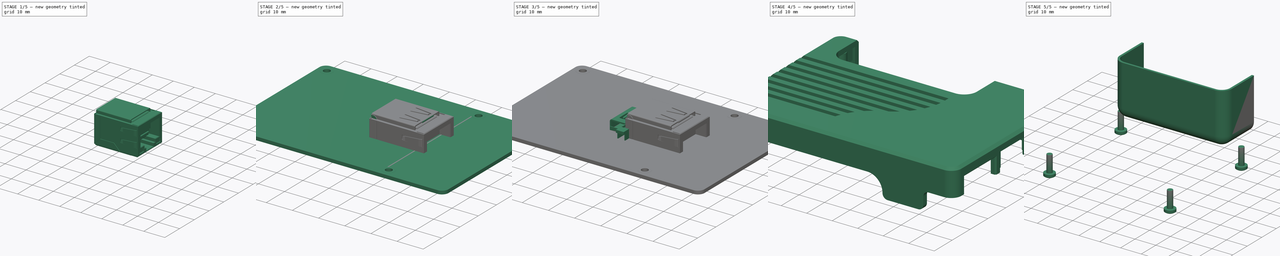
[diagram: build sequence overview — one tinted view per stage of 5, left to right]
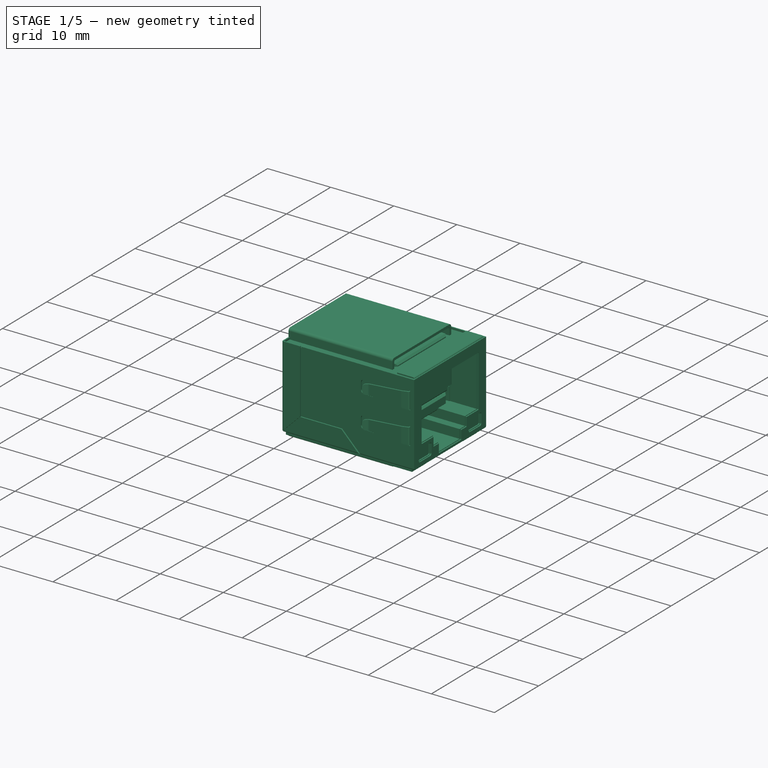
[diagram: stage 1 of 5 — iso view after this stage's code; geometry added in this stage tinted green]
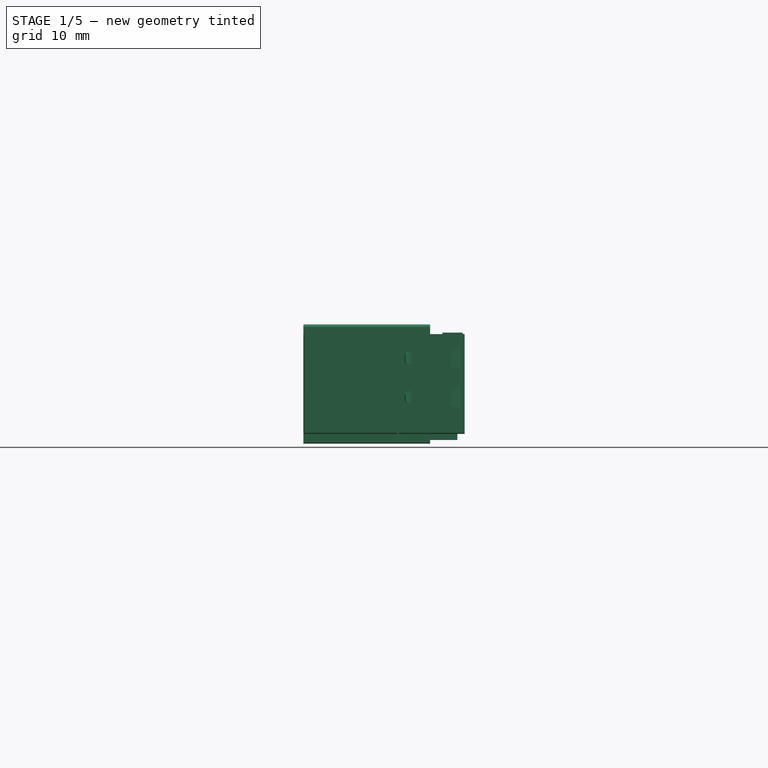
[diagram: stage 1 of 5 — front view after this stage's code; geometry added in this stage tinted green]
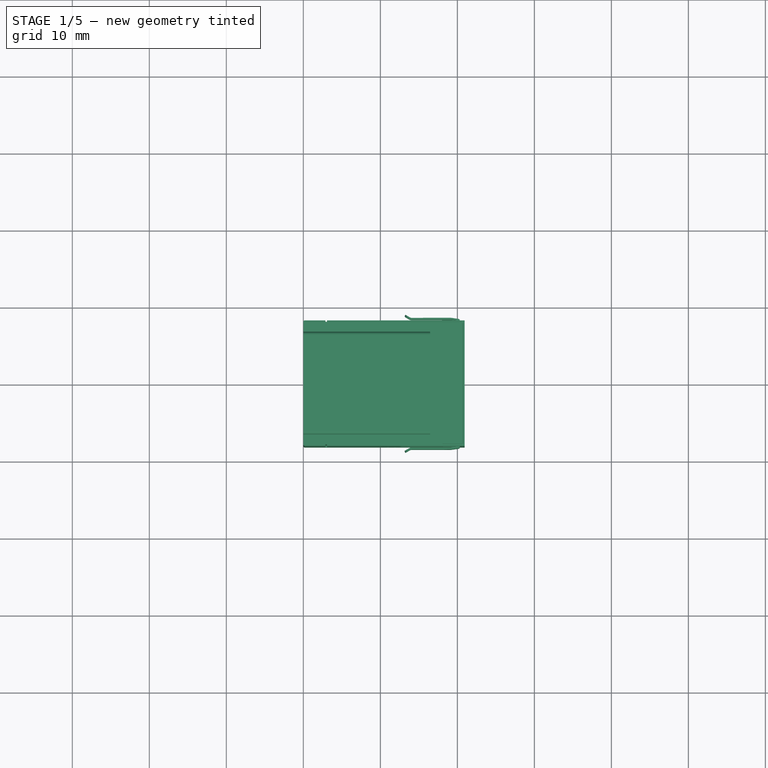
[diagram: stage 1 of 5 — top view after this stage's code; geometry added in this stage tinted green]
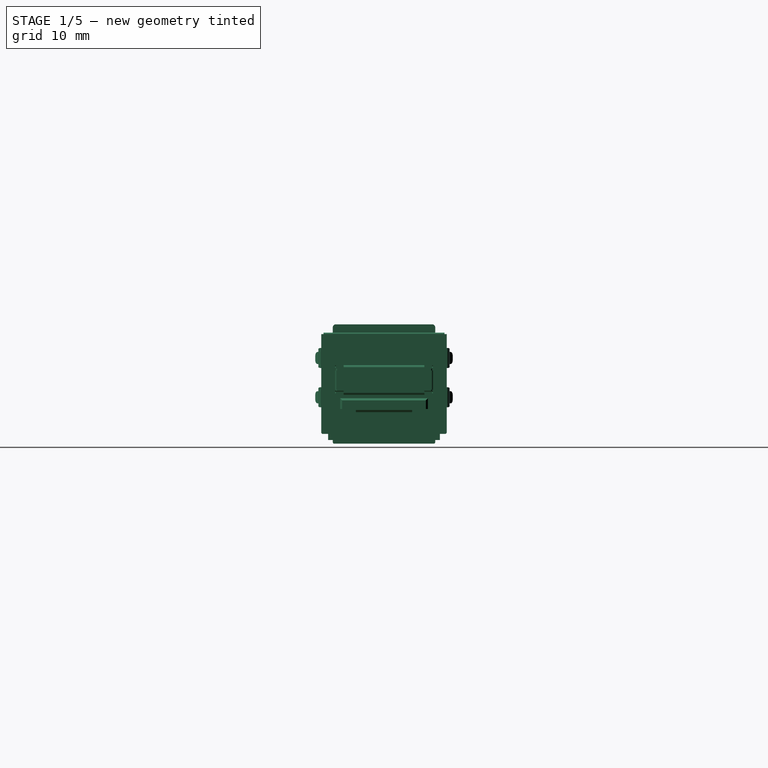
[diagram: stage 1 of 5 — right view after this stage's code; geometry added in this stage tinted green]
FCSTD DOCUMENT  (FreeCAD 2021.519R24301 +3652 (Git))
Label: RasberryPi2
License: All rights reserved
LicenseURL: http://en.wikipedia.org/wiki/All_rights_reserved
objects: Sketcher::SketchObject×102, PartDesign::Pad×70, PartDesign::Pocket×49, PartDesign::Fillet×40, PartDesign::Chamfer×19, PartDesign::Body×19, PartDesign::SubShapeBinder×19, PartDesign::Plane×11, PartDesign::Mirrored×10, PartDesign::Solid×6, PartDesign::Extrusion×4, Part::FeaturePython×4, PartDesign::Thickness×3, PartDesign::LinearPattern×2, App::Part×2, PartDesign::Split×2, PartDesign::Draft×1, PartDesign::Boolean×1
note: 761 computed .brp shape members not serialized (recipe doc carries the construction recipe); baked Part::Feature solids carry a one-line shape summary decoded from their .brp

FEATURE [PartDesign::Body] Body011  label="Usb Double"
  AutoGroupSolids = false
  ExportMode = 0
  Group = -> [Sketch036,Pad029,Pocket013,Fillet009,Fillet010,Sketch037,Pad030,Chamfer006,Sketch038,Pocket014,Sketch039,Pad031,DatumPlane,Sketch040,Pad032,Mirrored002,Pocket015,Fillet012,Sketch041,Pad033,Fillet011,Sketch042,Pad034,Sketch043,Pocket016,Fillet013,Fillet014,Sketch044,Pocket017,Sketch045,Pocket018,Sketch046,Pocket019,Fillet015,Sketch047,Pocket020,Mirrored003,Sketch048,Pad035,Sketch049,Pad036,+2 more]
  Origin = -> Origin013
  Placement = pos=(27.6,18.8,7.77) rot=(0,0,1;0rad)
  Tip = -> Fillet017
  _ExportChildren = -> [Pad029,Pocket013,Fillet009,Fillet010,Pad030,Chamfer006,Pocket014,Pad031,DatumPlane,Pad032,Mirrored002,Pocket015,Fillet012,Pad033,Fillet011,Pad034,Pocket016,Fillet013,Fillet014,Pocket017,Pocket018,Pocket019,Fillet015,Pocket020,Mirrored003,Pad035,Pad036,Fillet016,Fillet017]
  _GroupVersion = 1
FEATURE [Sketcher::SketchObject] Sketch050
  FullyConstrained = true
  MapMode = 5
  Placement = pos=(0,0,0) rot=(0.57735,0.57735,0.57735;2.0944rad)
  Support = -> [YZ_Plane013]
  sketch-geometry (4):
    g0: LineSegment StartX=-6.65 StartY=7.75 StartZ=0 EndX=6.65 EndY=7.75 EndZ=0
    g1: LineSegment StartX=6.65 StartY=7.75 StartZ=0 EndX=6.65 EndY=-7.75 EndZ=0
    g2: LineSegment StartX=6.65 StartY=-7.75 StartZ=0 EndX=-6.65 EndY=-7.75 EndZ=0
    g3: LineSegment StartX=-6.65 StartY=-7.75 StartZ=0 EndX=-6.65 EndY=7.75 EndZ=0
  constraints (11):
    c: Coincident(g0,g1)
    c: Coincident(g1,g2)
    c: Coincident(g2,g3)
    c: Coincident(g3,g0)
    c: Horizontal(g0)
    c: Horizontal(g2)
    c: Vertical(g1)
    c: Vertical(g3)
    c: Symmetric(g0,g1,g-1)
    c: DistanceX(g0,g0) = 13.3
    c: DistanceY(g1,g1) = 15.5
FEATURE [PartDesign::Pad] Pad037
  ClaimChildren = false
  Direction = (1,1,1)
  Fit = 0
  FitJoin = 0
  InnerFit = 0
  InnerFitJoin = 0
  InnerTaperAngle = 0
  InnerTaperAngleRev = 0
  Length = 16.9
  Length2 = 100
  NewSolid = false
  Placement = pos=(0,0,0) rot=(0.57735,0.57735,0.57735;2.0944rad)
  Profile = -> Sketch050
  Refine = true
  Suppress = false
  Type = 0
FEATURE [PartDesign::Pocket] Pocket021
  BaseFeature = -> Pad037
  ClaimChildren = false
  Fit = -0.4
  FitJoin = 2
  InnerFit = 0
  InnerFitJoin = 0
  InnerTaperAngle = 0
  InnerTaperAngleRev = 0
  Length = 8.3
  Length2 = 100
  NewSolid = false
  Placement = pos=(0,0,0) rot=(0.57735,0.57735,0.57735;2.0944rad)
  Profile = -> Pad037 [Face6]
  Refine = true
  Reversed = true
  Suppress = false
  Type = 0
FEATURE [PartDesign::Fillet] Fillet018
  Base = -> Pocket021 [Edge18,Edge22]
  BaseFeature = -> Pocket021
  NewSolid = false
  Placement = pos=(0,0,0) rot=(0.57735,0.57735,0.57735;2.0944rad)
  Radius = 0.2
  Refine = true
  SupportTransform = false
  Suppress = false
FEATURE [PartDesign::Fillet] Fillet019
  Base = -> Fillet018 [Edge24,Edge23]
  BaseFeature = -> Fillet018
  NewSolid = false
  Placement = pos=(0,0,0) rot=(0.57735,0.57735,0.57735;2.0944rad)
  Radius = 0.4
  Refine = true
  SupportTransform = false
  Suppress = false
FEATURE [Sketcher::SketchObject] Sketch051
  ExternalGeometry = -> [Fillet019]
  FullyConstrained = true
  MapMode = 5
  Placement = pos=(8.6,-2.3e-15,5.9e-15) rot=(0.57735,0.57735,0.57735;2.0944rad)
  Support = -> [Fillet019]
  sketch-geometry (12):
    g0: LineSegment StartX=-5.7 StartY=6.6 StartZ=0 EndX=5.7 EndY=6.6 EndZ=0
    g1: LineSegment StartX=5.7 StartY=6.6 StartZ=0 EndX=5.7 EndY=4.8 EndZ=0
    g2: LineSegment StartX=5.7 StartY=4.8 StartZ=0 EndX=-5.7 EndY=4.8 EndZ=0
    g3: LineSegment StartX=-5.7 StartY=4.8 StartZ=0 EndX=-5.7 EndY=6.6 EndZ=0
    g4: LineSegment StartX=-6.25 StartY=2 StartZ=0 EndX=6.25 EndY=2 EndZ=0
    g5: LineSegment StartX=6.25 StartY=2 StartZ=0 EndX=6.25 EndY=-1 EndZ=0
    g6: LineSegment StartX=6.25 StartY=-1 StartZ=0 EndX=-6.25 EndY=-1 EndZ=0
    g7: LineSegment StartX=-6.25 StartY=-1 StartZ=0 EndX=-6.25 EndY=2 EndZ=0
    g8: LineSegment StartX=-5.7 StartY=-1.85 StartZ=0 EndX=5.7 EndY=-1.85 EndZ=0
    g9: LineSegment StartX=5.7 StartY=-1.85 StartZ=0 EndX=5.7 EndY=-3.65 EndZ=0
    g10: LineSegment StartX=5.7 StartY=-3.65 StartZ=0 EndX=-5.7 EndY=-3.65 EndZ=0
    g11: LineSegment StartX=-5.7 StartY=-3.65 StartZ=0 EndX=-5.7 EndY=-1.85 EndZ=0
  constraints (34):
    c: Coincident(g0,g1)
    c: Coincident(g1,g2)
    c: Coincident(g2,g3)
    c: Coincident(g3,g0)
    c: Horizontal(g2)
    c: Vertical(g1)
    c: Vertical(g3)
    c: Coincident(g4,g5)
    c: Coincident(g5,g6)
    c: Coincident(g6,g7)
    c: Coincident(g7,g4)
    c: Horizontal(g4)
    c: Horizontal(g6)
    c: Vertical(g5)
    c: Vertical(g7)
    c: Coincident(g8,g9)
    c: Coincident(g9,g10)
    c: Coincident(g10,g11)
    c: Coincident(g11,g8)
    c: Horizontal(g10)
    c: Vertical(g9)
    c: Vertical(g11)
    c: PointOnObject(g4,g-4)
    c: PointOnObject(g4,g-3)
    c: Symmetric(g0,g0,g-2)
    c: Symmetric(g8,g8,g-2)
    c: Equal(g0,g8)
    c: Equal(g3,g11)
    c: DistanceX(g0,g0) = 11.4
    c: DistanceY(g3,g3) = 1.8
    c: DistanceY(g-1,g2) = 4.8
    c: DistanceY(g8,g-1) = 1.85
    c: DistanceY(g5,g5) = 3
    c: DistanceY(g-1,g4) = 2
FEATURE [PartDesign::Pad] Pad038
  BaseFeature = -> Fillet019
  ClaimChildren = false
  Direction = (1,1,1)
  Fit = 0
  FitJoin = 0
  InnerFit = 0
  InnerFitJoin = 0
  InnerTaperAngle = 0
  InnerTaperAngleRev = 0
  Length = 8
  Length2 = 100
  NewSolid = false
  Placement = pos=(0,0,0) rot=(0.57735,0.57735,0.57735;2.0944rad)
  Profile = -> Sketch051
  Refine = true
  Suppress = false
  Type = 0
FEATURE [PartDesign::Chamfer] Chamfer007
  Angle = 45
  Base = -> Pad038 [Edge59,Edge64,Edge63,Edge61,Edge72,Edge67,Edge69,Edge71]
  BaseFeature = -> Pad038
  ChamferType = 0
  FlipDirection = false
  NewSolid = false
  Placement = pos=(0,0,0) rot=(0.57735,0.57735,0.57735;2.0944rad)
  Refine = true
  Size = 0.4
  Size2 = 1
  SupportTransform = false
  Suppress = false
FEATURE [Sketcher::SketchObject] Sketch052
  ExternalGeometry = -> [Chamfer007]
  FullyConstrained = true
  MapMode = 5
  Placement = pos=(0,0,0) rot=(1,0,0;1.5708rad)
  Support = -> [XZ_Plane013]
  sketch-geometry (12):
    g0: LineSegment StartX=16.47 StartY=8 StartZ=0 EndX=17.97 EndY=8 EndZ=0
    g1: LineSegment StartX=17.97 StartY=8 StartZ=0 EndX=17.97 EndY=-8 EndZ=0
    g2: LineSegment StartX=17.97 StartY=-8 StartZ=0 EndX=16.47 EndY=-8 EndZ=0
    g3: LineSegment StartX=16.47 StartY=-8 StartZ=0 EndX=16.47 EndY=-1.18 EndZ=0
    g4: LineSegment StartX=16.47 StartY=-1.18 StartZ=0 EndX=16.13 EndY=-1.18 EndZ=0
    g5: ArcOfCircle CenterX=16.13 CenterY=-1.03 CenterZ=0 NormalX=0 NormalY=0 NormalZ=1 AngleXU=0 Radius=0.15 StartAngle=1.5708 EndAngle=4.71239
    g6: LineSegment StartX=16.13 StartY=-0.88 StartZ=0 EndX=16.9 EndY=-0.88 EndZ=0
    g7: LineSegment StartX=16.9 StartY=-0.88 StartZ=0 EndX=16.9 EndY=2.12 EndZ=0
    g8: LineSegment StartX=16.9 StartY=2.12 StartZ=0 EndX=16.13 EndY=2.12 EndZ=0
    g9: ArcOfCircle CenterX=16.13 CenterY=2.27 CenterZ=0 NormalX=0 NormalY=0 NormalZ=1 AngleXU=0 Radius=0.15 StartAngle=1.5708 EndAngle=4.71239
    g10: LineSegment StartX=16.13 StartY=2.42 StartZ=0 EndX=16.47 EndY=2.42 EndZ=0
    g11: LineSegment StartX=16.47 StartY=2.42 StartZ=0 EndX=16.47 EndY=8 EndZ=0
  constraints (33):
    c: Horizontal(g0)
    c: Coincident(g0,g1)
    c: Coincident(g1,g2)
    c: Horizontal(g2)
    c: Coincident(g2,g3)
    c: Vertical(g3)
    c: Coincident(g3,g4)
    c: Horizontal(g4)
    c: Tangent(g4,g5) = 1.5708
    c: Tangent(g5,g6) = 1.5708
    c: Coincident(g6,g7)
    c: Vertical(g7)
    c: Coincident(g7,g8)
    c: Horizontal(g8)
    c: Tangent(g8,g9) = 1.5708
    c: Tangent(g9,g10) = 1.5708
    c: Coincident(g10,g11)
    c: Coincident(g11,g0)
    c: Vertical(g11)
    c: Vertical(g8,g9)
    c: Vertical(g4,g5)
    c: Vertical(g5,g8)
    c: Equal(g5,g9)
    c: Radius(g9) = 0.15
    c: PointOnObject(g7,g-3)
    c: DistanceY(g7,g-3) = 5.23
    c: DistanceY(g-3,g6) = 6.87
    c: DistanceX(g5,g6) = 0.77
    c: Vertical(g10,g3)
    c: DistanceX(g3,g6) = 0.43
    c: DistanceX(g2,g2) = 1.5
    c: Symmetric(g0,g1,g-1)
    c: DistanceY(g1,g1) = 16
FEATURE [PartDesign::Pocket] Pocket022
  BaseFeature = -> Chamfer007
  ClaimChildren = false
  Fit = 0
  FitJoin = 0
  InnerFit = 0
  InnerFitJoin = 0
  InnerTaperAngle = 0
  InnerTaperAngleRev = 0
  Length = 5
  Length2 = 100
  Midplane = true
  NewSolid = false
  Placement = pos=(0,0,0) rot=(0.57735,0.57735,0.57735;2.0944rad)
  Profile = -> Sketch052
  Refine = true
  Suppress = false
  Type = 1
FEATURE [Sketcher::SketchObject] Sketch053
  ExternalGeometry = -> [Pocket022]
  FullyConstrained = true
  MapMode = 5
  Placement = pos=(0,0,0) rot=(1,0,0;1.5708rad)
  Support = -> [XZ_Plane013]
  sketch-geometry (12):
    g0: ArcOfCircle CenterX=16.48 CenterY=2.12 CenterZ=0 NormalX=0 NormalY=0 NormalZ=1 AngleXU=0 Radius=0.32 StartAngle=-9e-16 EndAngle=1.5708
    g1: ArcOfCircle CenterX=16.48 CenterY=2.12 CenterZ=0 NormalX=0 NormalY=0 NormalZ=1 AngleXU=0 Radius=0.12 StartAngle=-1.8e-15 EndAngle=1.5708
    g2: ArcOfCircle CenterX=16.48 CenterY=-1.08 CenterZ=0 NormalX=0 NormalY=0 NormalZ=1 AngleXU=0 Radius=0.32 StartAngle=4.71239 EndAngle=6.28318
    g3: ArcOfCircle CenterX=16.48 CenterY=-1.08 CenterZ=0 NormalX=0 NormalY=0 NormalZ=1 AngleXU=0 Radius=0.12 StartAngle=4.71239 EndAngle=6.28319
    g4: LineSegment StartX=16.6 StartY=2.12 StartZ=0 EndX=16.6 EndY=-1.08 EndZ=0
    g5: LineSegment StartX=16.8 StartY=2.12 StartZ=0 EndX=16.8 EndY=-1.08 EndZ=0
    g6: LineSegment StartX=16.48 StartY=-1.2 StartZ=0 EndX=9.2 EndY=-1.2 EndZ=0
    g7: LineSegment StartX=9.2 StartY=-1.2 StartZ=0 EndX=9.2 EndY=-1.4 EndZ=0
    g8: LineSegment StartX=9.2 StartY=-1.4 StartZ=0 EndX=16.48 EndY=-1.4 EndZ=0
    g9: LineSegment StartX=16.48 StartY=2.44 StartZ=0 EndX=9.2 EndY=2.44 EndZ=0
    g10: LineSegment StartX=9.2 StartY=2.44 StartZ=0 EndX=9.2 EndY=2.24 EndZ=0
    g11: LineSegment StartX=9.2 StartY=2.24 StartZ=0 EndX=16.48 EndY=2.24 EndZ=0
  constraints (34):
    c: Vertical(g4)
    c: Coincident(g5,g2)
    c: Vertical(g5)
    c: Tangent(g5,g2)
    c: PointOnObject(g-3,g4)
    c: DistanceX(g-4,g2) = 0.2
    c: Horizontal(g6)
    c: Coincident(g6,g7)
    c: Vertical(g7)
    c: Coincident(g7,g8)
    c: Horizontal(g8)
    c: Coincident(g0,g9)
    c: Horizontal(g9)
    c: Coincident(g9,g10)
    c: Vertical(g10)
    c: Coincident(g10,g11)
    c: Horizontal(g11)
    c: Equal(g10,g7)
    c: DistanceY(g10,g10) = 0.2
    c: Vertical(g6,g10)
    c: DistanceY(g-1,g10) = 2.24
    c: DistanceX(g-1,g10) = 9.2
    c: DistanceY(g6,g-1) = 1.2
    c: Tangent(g9,g0,g0) = -1.5708
    c: Tangent(g11,g1) = 1.5708
    c: Tangent(g5,g0) = 1.5708
    c: DistanceX(g9,g9) = 7.28
    c: Vertical(g0,g1)
    c: Tangent(g4,g1) = 1.5708
    c: Tangent(g8,g2) = -1.5708
    c: Vertical(g1,g2)
    c: Vertical(g2,g3)
    c: Tangent(g4,g3) = 1.5708
    c: Tangent(g3,g6) = 1.5708
FEATURE [PartDesign::Pad] Pad039
  BaseFeature = -> Pocket022
  ClaimChildren = false
  Direction = (1,1,1)
  Fit = 0
  FitJoin = 0
  InnerFit = 0
  InnerFitJoin = 0
  InnerTaperAngle = 0
  InnerTaperAngleRev = 0
  Length = 10.5
  Length2 = 100
  Midplane = true
  NewSolid = false
  Placement = pos=(0,0,0) rot=(0.57735,0.57735,0.57735;2.0944rad)
  Profile = -> Sketch053
  Refine = true
  Suppress = false
  Type = 0
FEATURE [PartDesign::Plane] DatumPlane001
  Length = 16.515
  MapMode = 45
  MinimumLength = 10
  MinimumWidth = 10
  Placement = pos=(16.515,-5.37e-14,2.12) rot=(0,0,1;0rad)
  ResizeMode = 0
  Support = -> [Pad039]
  Width = 10
FEATURE [Sketcher::SketchObject] Sketch054
  ExternalGeometry = -> [Pad039]
  FullyConstrained = true
  MapMode = 5
  Placement = pos=(16.515,-5.37e-14,2.12) rot=(0,0,1;0rad)
  Support = -> [DatumPlane001]
  sketch-geometry (8):
    g0: ArcOfCircle CenterX=0.585 CenterY=-6.87 CenterZ=0 NormalX=0 NormalY=0 NormalZ=1 AngleXU=0 Radius=0.22 StartAngle=2e-15 EndAngle=1.5708
    g1: ArcOfCircle CenterX=0.585 CenterY=-6.87 CenterZ=0 NormalX=0 NormalY=0 NormalZ=1 AngleXU=0 Radius=0.42 StartAngle=1e-16 EndAngle=1.5708
    g2: LineSegment StartX=0.805 StartY=-6.87 StartZ=0 EndX=0.805 EndY=-7.5 EndZ=0
    g3: LineSegment StartX=0.805 StartY=-7.5 StartZ=0 EndX=1.005 EndY=-7.5 EndZ=0
    g4: LineSegment StartX=1.005 StartY=-7.5 StartZ=0 EndX=1.005 EndY=-6.87 EndZ=0
    g5: LineSegment StartX=0.585 StartY=-6.65 StartZ=0 EndX=0.385 EndY=-6.65 EndZ=0
    g6: LineSegment StartX=0.385 StartY=-6.65 StartZ=0 EndX=0.385 EndY=-6.45 EndZ=0
    g7: LineSegment StartX=0.385 StartY=-6.45 StartZ=0 EndX=0.585 EndY=-6.45 EndZ=0
  constraints (20):
    c: Coincident(g1,g0)
    c: Tangent(g0,g2) = 1.5708
    c: Coincident(g2,g3)
    c: Horizontal(g3)
    c: Coincident(g3,g4)
    c: Vertical(g4)
    c: Tangent(g0,g5) = -1.5708
    c: Coincident(g5,g6)
    c: Vertical(g6)
    c: Coincident(g6,g7)
    c: Coincident(g5,g-3)
    c: Horizontal(g7)
    c: DistanceY(g6,g6) = 0.2
    c: Tangent(g7,g1) = 1.5708
    c: Tangent(g4,g1) = -1.5708
    c: Horizontal(g5)
    c: Equal(g3,g6)
    c: DistanceX(g5,g2) = 0.42
    c: DistanceY(g2,g5) = 0.85
    c: DistanceX(g5,g5) = 0.2
FEATURE [PartDesign::Pad] Pad040
  BaseFeature = -> Pad039
  ClaimChildren = false
  Direction = (1,1,1)
  Fit = 0
  FitJoin = 0
  InnerFit = 0
  InnerFitJoin = 0
  InnerTaperAngle = 0
  InnerTaperAngleRev = 0
  Length = 3
  Length2 = 100
  NewSolid = false
  Placement = pos=(0,0,0) rot=(0.57735,0.57735,0.57735;2.0944rad)
  Profile = -> Sketch054
  Refine = true
  Reversed = true
  Suppress = false
  Type = 0
FEATURE [PartDesign::Mirrored] Mirrored004
  BaseFeature = -> Pad040
  CopyShape = false
  MirrorPlane = -> XZ_Plane013
  NewSolid = false
  OriginalSubs = -> [Pad040]
  Originals = -> [Pad040]
  ParallelTransform = true
  Placement = pos=(0,0,0) rot=(0.57735,0.57735,0.57735;2.0944rad)
  Refine = true
  SubTransform = true
  Suppress = false
FEATURE [PartDesign::Pocket] Pocket023
  BaseFeature = -> Mirrored004
  ClaimChildren = false
  Fit = 0
  FitJoin = 0
  InnerFit = 0
  InnerFitJoin = 0
  InnerTaperAngle = 0
  InnerTaperAngleRev = 0
  Length = 1
  Length2 = 100
  NewSolid = false
  Placement = pos=(0,0,0) rot=(0.57735,0.57735,0.57735;2.0944rad)
  Profile = -> Mirrored004 [Face12,Face24]
  Refine = true
  Suppress = false
  Type = 0
FEATURE [Sketcher::SketchObject] Sketch055
  AttachmentOffset = pos=(0,0.5,0) rot=(1,0,0;1.5708rad)
  ExternalGeometry = -> [Pocket023]
  FullyConstrained = true
  MapMode = 5
  Placement = pos=(16.8,1e-16,0.5) rot=(0.707107,0.707107,0;3.14159rad)
  Support = -> [Pocket023]
  sketch-geometry (8):
    g0: LineSegment StartX=-6.43 StartY=0 StartZ=0 EndX=6.43 EndY=0 EndZ=0
    g1: LineSegment StartX=6.43 StartY=0 StartZ=0 EndX=6.43 EndY=-0.9 EndZ=0
    g2: LineSegment StartX=6.43 StartY=-0.9 StartZ=0 EndX=6.25 EndY=-0.9 EndZ=0
    g3: LineSegment StartX=6.25 StartY=-0.9 StartZ=0 EndX=6.25 EndY=-0.18 EndZ=0
    g4: LineSegment StartX=6.25 StartY=-0.18 StartZ=0 EndX=-6.25 EndY=-0.18 EndZ=0
    g5: LineSegment StartX=-6.25 StartY=-0.18 StartZ=0 EndX=-6.25 EndY=-0.9 EndZ=0
    g6: LineSegment StartX=-6.25 StartY=-0.9 StartZ=0 EndX=-6.43 EndY=-0.9 EndZ=0
    g7: LineSegment StartX=-6.43 StartY=-0.9 StartZ=0 EndX=-6.43 EndY=0 EndZ=0
  constraints (22):
    c: PointOnObject(g0,g-1)
    c: PointOnObject(g0,g-1)
    c: Coincident(g0,g1)
    c: Coincident(g1,g2)
    c: Coincident(g2,g3)
    c: Vertical(g3)
    c: Coincident(g3,g4)
    c: Horizontal(g4)
    c: Coincident(g4,g5)
    c: Coincident(g5,g6)
    c: Coincident(g6,g7)
    c: Coincident(g7,g0)
    c: Vertical(g7)
    c: Horizontal(g6)
    c: Vertical(g5)
    c: Vertical(g1)
    c: Horizontal(g2)
    c: Equal(g6,g2)
    c: DistanceX(g2,g2) = 0.18
    c: Coincident(g5,g-4)
    c: Coincident(g2,g-3)
    c: DistanceY(g3,g0) = 0.18
FEATURE [PartDesign::Fillet] Fillet021
  Base = -> Pocket023 [Edge156,Edge129]
  BaseFeature = -> Pocket023
  NewSolid = false
  Placement = pos=(0,0,0) rot=(0.57735,0.57735,0.57735;2.0944rad)
  Radius = 0.2
  Refine = true
  SupportTransform = false
  Suppress = false
FEATURE [PartDesign::Pad] Pad041
  BaseFeature = -> Fillet021
  ClaimChildren = false
  Direction = (1,1,1)
  Fit = 0
  FitJoin = 0
  InnerFit = 0
  InnerFitJoin = 0
  InnerTaperAngle = 0
  InnerTaperAngleRev = 0
  Length = 2.5
  Length2 = 100
  Midplane = true
  NewSolid = false
  Placement = pos=(0,0,0) rot=(0.57735,0.57735,0.57735;2.0944rad)
  Profile = -> Sketch055
  Refine = true
  Suppress = false
  Type = 0
FEATURE [PartDesign::Fillet] Fillet020
  Base = -> Pad041 [Edge161,Edge245]
  BaseFeature = -> Pad041
  NewSolid = false
  Placement = pos=(0,0,0) rot=(0.57735,0.57735,0.57735;2.0944rad)
  Radius = 0.3
  Refine = true
  SupportTransform = false
  Suppress = false
FEATURE [Sketcher::SketchObject] Sketch056
  ExternalGeometry = -> [Fillet020]
  FullyConstrained = true
  MapMode = 5
  Placement = pos=(8.6,-2.3e-15,5.9e-15) rot=(0.57735,0.57735,0.57735;2.0944rad)
  Support = -> [Fillet020]
  sketch-geometry (4):
    g0: LineSegment StartX=-6.25 StartY=-6.35 StartZ=0 EndX=6.25 EndY=-6.35 EndZ=0
    g1: LineSegment StartX=6.25 StartY=-6.35 StartZ=0 EndX=6.25 EndY=-7.35 EndZ=0
    g2: LineSegment StartX=6.25 StartY=-7.35 StartZ=0 EndX=-6.25 EndY=-7.35 EndZ=0
    g3: LineSegment StartX=-6.25 StartY=-7.35 StartZ=0 EndX=-6.25 EndY=-6.35 EndZ=0
  constraints (10):
    c: Coincident(g0,g1)
    c: Coincident(g1,g2)
    c: Coincident(g2,g3)
    c: Coincident(g3,g0)
    c: Horizontal(g0)
    c: Vertical(g1)
    c: Vertical(g3)
    c: Coincident(g2,g-3)
    c: Coincident(g1,g-3)
    c: DistanceY(g1,g1) = 1
FEATURE [PartDesign::Pad] Pad042
  BaseFeature = -> Fillet020
  ClaimChildren = false
  Direction = (1,1,1)
  Fit = 0
  FitJoin = 0
  InnerFit = 0
  InnerFitJoin = 0
  InnerTaperAngle = 0
  InnerTaperAngleRev = 0
  Length = 10
  Length2 = 100
  NewSolid = false
  Placement = pos=(0,0,0) rot=(0.57735,0.57735,0.57735;2.0944rad)
  Profile = -> Sketch056
  Refine = true
  Suppress = false
  Type = 3
  UpToFace = -> Fillet020 [Face81]
FEATURE [Sketcher::SketchObject] Sketch057
  ExternalGeometry = -> [Pad042]
  FullyConstrained = true
  MapMode = 5
  Placement = pos=(16.47,-3.1e-15,4.18e-14) rot=(0.57735,0.57735,0.57735;2.0944rad)
  Support = -> [Pad042]
  sketch-geometry (16):
    g0: LineSegment StartX=-4.45 StartY=-6.55 StartZ=0 EndX=-1.55 EndY=-6.55 EndZ=0
    g1: LineSegment StartX=-1.55 StartY=-6.55 StartZ=0 EndX=-1.55 EndY=-7.95 EndZ=0
    g2: LineSegment StartX=-1.55 StartY=-7.95 StartZ=0 EndX=1.55 EndY=-7.95 EndZ=0
    g3: LineSegment StartX=1.55 StartY=-7.95 StartZ=0 EndX=1.55 EndY=-6.55 EndZ=0
    g4: LineSegment StartX=1.55 StartY=-6.55 StartZ=0 EndX=4.45 EndY=-6.55 EndZ=0
    g5: LineSegment StartX=4.45 StartY=-6.55 StartZ=0 EndX=4.45 EndY=-9.55 EndZ=0
    g6: LineSegment StartX=4.45 StartY=-9.55 StartZ=0 EndX=-4.45 EndY=-9.55 EndZ=0
    g7: LineSegment StartX=-4.45 StartY=-9.55 StartZ=0 EndX=-4.45 EndY=-6.55 EndZ=0
    g8: LineSegment StartX=-5.45 StartY=-7.05 StartZ=0 EndX=-5.05 EndY=-7.05 EndZ=0
    g9: LineSegment StartX=-5.05 StartY=-7.05 StartZ=0 EndX=-5.05 EndY=-9.55 EndZ=0
    g10: LineSegment StartX=-5.05 StartY=-9.55 StartZ=0 EndX=-5.45 EndY=-9.55 EndZ=0
    g11: LineSegment StartX=-5.45 StartY=-9.55 StartZ=0 EndX=-5.45 EndY=-7.05 EndZ=0
    g12: LineSegment StartX=5.05 StartY=-7.05 StartZ=0 EndX=5.45 EndY=-7.05 EndZ=0
    g13: LineSegment StartX=5.45 StartY=-7.05 StartZ=0 EndX=5.45 EndY=-9.55 EndZ=0
    g14: LineSegment StartX=5.45 StartY=-9.55 StartZ=0 EndX=5.05 EndY=-9.55 EndZ=0
    g15: LineSegment StartX=5.05 StartY=-9.55 StartZ=0 EndX=5.05 EndY=-7.05 EndZ=0
  constraints (46):
    c: Horizontal(g0)
    c: Coincident(g0,g1)
    c: Vertical(g1)
    c: Coincident(g1,g2)
    c: Horizontal(g2)
    c: Coincident(g2,g3)
    c: Vertical(g3)
    c: Coincident(g3,g4)
    c: Coincident(g4,g5)
    c: Vertical(g5)
    c: Coincident(g5,g6)
    c: Horizontal(g6)
    c: Coincident(g6,g7)
    c: Coincident(g7,g0)
    c: Vertical(g7)
    c: DistanceY(g4,g-3) = 0.2
    c: Symmetric(g0,g3,g-2)
    c: Symmetric(g0,g4,g-2)
    c: DistanceX(g4,g-3) = 1.8
    c: DistanceY(g3,g3) = 1.4
    c: DistanceX(g4,g4) = 2.9
    c: DistanceY(g5,g5) = 3
    c: Coincident(g8,g9)
    c: Coincident(g9,g10)
    c: Coincident(g10,g11)
    c: Coincident(g11,g8)
    c: Horizontal(g8)
    c: Horizontal(g10)
    c: Vertical(g9)
    c: Vertical(g11)
    c: Coincident(g12,g13)
    c: Coincident(g13,g14)
    c: Coincident(g14,g15)
    c: Coincident(g15,g12)
    c: Horizontal(g12)
    c: Horizontal(g14)
    c: Vertical(g13)
    c: Vertical(g15)
    c: Equal(g10,g14)
    c: Equal(g15,g11)
    c: Horizontal(g9,g6)
    c: Horizontal(g6,g14)
    c: DistanceX(g10,g10) = 0.4
    c: DistanceX(g9,g6) = 0.6
    c: DistanceY(g15,g15) = 2.5
    c: DistanceX(g5,g14) = 0.6
FEATURE [PartDesign::Pocket] Pocket024
  BaseFeature = -> Pad042
  ClaimChildren = false
  Fit = 0
  FitJoin = 0
  InnerFit = 0
  InnerFitJoin = 0
  InnerTaperAngle = 0
  InnerTaperAngleRev = 0
  Length = 5
  Length2 = 100
  NewSolid = false
  Placement = pos=(0,0,0) rot=(0.57735,0.57735,0.57735;2.0944rad)
  Profile = -> Sketch057
  Refine = true
  Suppress = false
  Type = 0
FEATURE [PartDesign::Fillet] Fillet022
  Base = -> Pocket024 [Edge249,Edge187,Edge263,Edge218]
  BaseFeature = -> Pocket024
  NewSolid = false
  Placement = pos=(0,0,0) rot=(0.57735,0.57735,0.57735;2.0944rad)
  Radius = 0.2
  Refine = true
  SupportTransform = false
  Suppress = false
FEATURE [PartDesign::Fillet] Fillet023
  Base = -> Fillet022 [Edge121,Edge115]
  BaseFeature = -> Fillet022
  NewSolid = false
  Placement = pos=(0,0,0) rot=(0.57735,0.57735,0.57735;2.0944rad)
  Radius = 0.2
  Refine = true
  SupportTransform = false
  Suppress = false
FEATURE [Sketcher::SketchObject] Sketch058
  FullyConstrained = true
  MapMode = 5
  Placement = pos=(9.1e-15,-7e-16,-6.35) rot=(0,0,-1;1.5708rad)
  Support = -> [Fillet023]
  sketch-geometry (18):
    g0: LineSegment StartX=-3.45 StartY=15 StartZ=0 EndX=-2.55 EndY=15 EndZ=0
    g1: LineSegment StartX=-2.55 StartY=15 StartZ=0 EndX=-1.74813 EndY=9.17274 EndZ=0
    g2: ArcOfCircle CenterX=-1.55 CenterY=9.2 CenterZ=0 NormalX=0 NormalY=0 NormalZ=1 AngleXU=0 Radius=0.2 StartAngle=3.27834 EndAngle=6.40778
    g3: LineSegment StartX=-1.35155 StartY=9.22485 StartZ=0 EndX=-2.15 EndY=15.6 EndZ=0
    g4: LineSegment StartX=-2.15 StartY=15.6 StartZ=0 EndX=-3.85 EndY=15.6 EndZ=0
    g5: LineSegment StartX=-3.85 StartY=15.6 StartZ=0 EndX=-4.64845 EndY=9.22485 EndZ=0
    g6: ArcOfCircle CenterX=-4.45 CenterY=9.2 CenterZ=0 NormalX=0 NormalY=0 NormalZ=1 AngleXU=0 Radius=0.2 StartAngle=3.017 EndAngle=6.14644
    g7: LineSegment StartX=-4.25187 StartY=9.17274 StartZ=0 EndX=-3.45 EndY=15 EndZ=0
    g8: LineSegment [constr] StartX=-3 StartY=15.6 StartZ=0 EndX=-3 EndY=9.2 EndZ=0
    g9: LineSegment StartX=3.45 StartY=15 StartZ=0 EndX=2.55 EndY=15 EndZ=0
    g10: LineSegment StartX=2.55 StartY=15 StartZ=0 EndX=1.74813 EndY=9.17274 EndZ=0
    g11: ArcOfCircle CenterX=1.55 CenterY=9.2 CenterZ=0 NormalX=0 NormalY=0 NormalZ=1 AngleXU=0 Radius=0.2 StartAngle=3.017 EndAngle=6.14644
    g12: LineSegment StartX=1.35155 StartY=9.22485 StartZ=0 EndX=2.15 EndY=15.6 EndZ=0
    g13: LineSegment StartX=2.15 StartY=15.6 StartZ=0 EndX=3.85 EndY=15.6 EndZ=0
    g14: LineSegment StartX=3.85 StartY=15.6 StartZ=0 EndX=4.64845 EndY=9.22485 EndZ=0
    g15: ArcOfCircle CenterX=4.45 CenterY=9.2 CenterZ=0 NormalX=0 NormalY=0 NormalZ=1 AngleXU=0 Radius=0.2 StartAngle=3.27834 EndAngle=6.40778
    g16: LineSegment StartX=4.25187 StartY=9.17274 StartZ=0 EndX=3.45 EndY=15 EndZ=0
    g17: LineSegment [constr] StartX=3 StartY=15.6 StartZ=0 EndX=3 EndY=9.2 EndZ=0
  constraints (45):
    c: Coincident(g0,g1)
    c: Tangent(g1,g2) = -1.5708
    c: Coincident(g3,g4)
    c: Horizontal(g4)
    c: Coincident(g4,g5)
    c: Tangent(g5,g6) = -1.5708
    c: Tangent(g6,g7) = -1.5708
    c: Coincident(g7,g0)
    c: Horizontal(g0)
    c: Symmetric(g4,g3,g8)
    c: Symmetric(g6,g2,g8)
    c: Tangent(g2,g3) = -1.5708
    c: Equal(g6,g2)
    c: Radius(g6) = 0.2
    c: Symmetric(g0,g0,g8)
    c: DistanceY(g8,g8) = 6.4
    c: DistanceX(g8,g-1) = 3
    c: DistanceY(g8,g-1) = -15.6
    c: DistanceX(g0,g0) = 0.9
    c: DistanceX(g4,g4) = 1.7
    c: DistanceY(g0,g3) = 0.6
    c: Horizontal(g8,g2)
    c: DistanceX(g8,g2) = 1.45
    c: Coincident(g9,g10)
    c: Tangent(g10,g11) = 1.5708
    c: Coincident(g12,g13)
    c: Horizontal(g13)
    c: Coincident(g13,g14)
    c: Tangent(g14,g15) = 1.5708
    c: Tangent(g15,g16) = 1.5708
    c: Coincident(g16,g9)
    c: Horizontal(g9)
    c: Symmetric(g13,g12,g17)
    c: Symmetric(g15,g11,g17)
    c: Tangent(g11,g12) = 1.5708
    c: Equal(g15,g11)
    c: Radius(g15) = 0.2
    c: Symmetric(g9,g9,g17)
    c: DistanceX(g13,g13) = 1.7
    c: DistanceX(g9,g9) = 0.9
    c: DistanceY(g17,g17) = 6.4
    c: DistanceX(g17,g15) = 1.45
    c: Symmetric(g17,g8,g-2)
    c: DistanceY(g9,g13) = 0.6
    c: Horizontal(g17,g15)
FEATURE [PartDesign::Pocket] Pocket025
  BaseFeature = -> Fillet023
  ClaimChildren = false
  Fit = 0
  FitJoin = 0
  InnerFit = 0
  InnerFitJoin = 0
  InnerTaperAngle = 0
  InnerTaperAngleRev = 0
  Length = 0.2
  Length2 = 100
  NewSolid = false
  Placement = pos=(0,0,0) rot=(0.57735,0.57735,0.57735;2.0944rad)
  Profile = -> Sketch058
  Refine = true
  Suppress = false
  Type = 0
FEATURE [Sketcher::SketchObject] Sketch059
  FullyConstrained = true
  MapMode = 5
  Placement = pos=(0,0,2.44) rot=(0,0,-1;1.5708rad)
  Support = -> [Pocket025]
  expr: .Constraints[13] = Sketch058.Constraints[13]
  expr: .Constraints[15] = Sketch058.Constraints[15]
  expr: .Constraints[16] = Sketch058.Constraints[16]
  expr: .Constraints[17] = Sketch058.Constraints[17]
  expr: .Constraints[18] = Sketch058.Constraints[18]
  expr: .Constraints[19] = Sketch058.Constraints[19]
  expr: .Constraints[20] = Sketch058.Constraints[20]
  expr: .Constraints[22] = Sketch058.Constraints[22]
  expr: .Constraints[36] = Sketch058.Constraints[36]
  expr: .Constraints[38] = Sketch058.Constraints[38]
  expr: .Constraints[39] = Sketch058.Constraints[39]
  expr: .Constraints[40] = Sketch058.Constraints[40]
  expr: .Constraints[41] = Sketch058.Constraints[41]
  expr: .Constraints[43] = Sketch058.Constraints[43]
  sketch-geometry (18):
    g0: LineSegment StartX=-3.45 StartY=15 StartZ=0 EndX=-2.55 EndY=15 EndZ=0
    g1: LineSegment StartX=-2.55 StartY=15 StartZ=0 EndX=-1.74813 EndY=9.17274 EndZ=0
    g2: ArcOfCircle CenterX=-1.55 CenterY=9.2 CenterZ=0 NormalX=0 NormalY=0 NormalZ=1 AngleXU=0 Radius=0.2 StartAngle=3.27834 EndAngle=6.40778
    g3: LineSegment StartX=-1.35155 StartY=9.22485 StartZ=0 EndX=-2.15 EndY=15.6 EndZ=0
    g4: LineSegment StartX=-2.15 StartY=15.6 StartZ=0 EndX=-3.85 EndY=15.6 EndZ=0
    g5: LineSegment StartX=-3.85 StartY=15.6 StartZ=0 EndX=-4.64845 EndY=9.22485 EndZ=0
    g6: ArcOfCircle CenterX=-4.45 CenterY=9.2 CenterZ=0 NormalX=0 NormalY=0 NormalZ=1 AngleXU=0 Radius=0.2 StartAngle=3.017 EndAngle=6.14644
    g7: LineSegment StartX=-4.25187 StartY=9.17274 StartZ=0 EndX=-3.45 EndY=15 EndZ=0
    g8: LineSegment [constr] StartX=-3 StartY=15.6 StartZ=0 EndX=-3 EndY=9.2 EndZ=0
    g9: LineSegment StartX=3.45 StartY=15 StartZ=0 EndX=2.55 EndY=15 EndZ=0
    g10: LineSegment StartX=2.55 StartY=15 StartZ=0 EndX=1.74813 EndY=9.17274 EndZ=0
    g11: ArcOfCircle CenterX=1.55 CenterY=9.2 CenterZ=0 NormalX=0 NormalY=0 NormalZ=1 AngleXU=0 Radius=0.2 StartAngle=3.017 EndAngle=6.14644
    g12: LineSegment StartX=1.35155 StartY=9.22485 StartZ=0 EndX=2.15 EndY=15.6 EndZ=0
    g13: LineSegment StartX=2.15 StartY=15.6 StartZ=0 EndX=3.85 EndY=15.6 EndZ=0
    g14: LineSegment StartX=3.85 StartY=15.6 StartZ=0 EndX=4.64845 EndY=9.22485 EndZ=0
    g15: ArcOfCircle CenterX=4.45 CenterY=9.2 CenterZ=0 NormalX=0 NormalY=0 NormalZ=1 AngleXU=0 Radius=0.2 StartAngle=3.27834 EndAngle=6.40778
    g16: LineSegment StartX=4.25187 StartY=9.17274 StartZ=0 EndX=3.45 EndY=15 EndZ=0
    g17: LineSegment [constr] StartX=3 StartY=15.6 StartZ=0 EndX=3 EndY=9.2 EndZ=0
  constraints (45):
    c: Coincident(g0,g1)
    c: Tangent(g1,g2) = -1.5708
    c: Coincident(g3,g4)
    c: Horizontal(g4)
    c: Coincident(g4,g5)
    c: Tangent(g5,g6) = -1.5708
    c: Tangent(g6,g7) = -1.5708
    c: Coincident(g7,g0)
    c: Horizontal(g0)
    c: Symmetric(g4,g3,g8)
    c: Symmetric(g6,g2,g8)
    c: Tangent(g2,g3) = -1.5708
    c: Equal(g6,g2)
    c: Radius(g6) = 0.2
    c: Symmetric(g0,g0,g8)
    c: DistanceY(g8,g8) = 6.4
    c: DistanceX(g8,g-1) = 3
    c: DistanceY(g8,g-1) = -15.6
    c: DistanceX(g0,g0) = 0.9
    c: DistanceX(g4,g4) = 1.7
    c: DistanceY(g0,g3) = 0.6
    c: Horizontal(g8,g2)
    c: DistanceX(g8,g2) = 1.45
    c: Coincident(g9,g10)
    c: Tangent(g10,g11) = 1.5708
    c: Coincident(g12,g13)
    c: Horizontal(g13)
    c: Coincident(g13,g14)
    c: Tangent(g14,g15) = 1.5708
    c: Tangent(g15,g16) = 1.5708
    c: Coincident(g16,g9)
    c: Horizontal(g9)
    c: Symmetric(g13,g12,g17)
    c: Symmetric(g15,g11,g17)
    c: Tangent(g11,g12) = 1.5708
    c: Equal(g15,g11)
    c: Radius(g15) = 0.2
    c: Symmetric(g9,g9,g17)
    c: DistanceX(g13,g13) = 1.7
    c: DistanceX(g9,g9) = 0.9
    c: DistanceY(g17,g17) = 6.4
    c: DistanceX(g17,g15) = 1.45
    c: Symmetric(g17,g8,g-2)
    c: DistanceY(g9,g13) = 0.6
    c: Horizontal(g17,g15)
FEATURE [PartDesign::Pocket] Pocket026
  BaseFeature = -> Pocket025
  ClaimChildren = false
  Fit = 0
  FitJoin = 0
  InnerFit = 0
  InnerFitJoin = 0
  InnerTaperAngle = 0
  InnerTaperAngleRev = 0
  Length = 0.2
  Length2 = 100
  NewSolid = false
  Placement = pos=(0,0,0) rot=(0.57735,0.57735,0.57735;2.0944rad)
  Profile = -> Sketch059
  Refine = true
  Suppress = false
  Type = 0
FEATURE [PartDesign::Body] Body012  label="Usb Double001"
  AutoGroupSolids = false
  ExportMode = 0
  Group = -> [Sketch050,Pad037,Pocket021,Fillet018,Fillet019,Sketch051,Pad038,Chamfer007,Sketch052,Pocket022,Sketch053,Pad039,DatumPlane001,Sketch054,Pad040,Mirrored004,Pocket023,Fillet021,Sketch055,Pad041,Fillet020,Sketch056,Pad042,Sketch057,Pocket024,Fillet022,Fillet023,Sketch058,Pocket025,Sketch059,Pocket026,Sketch060,Pocket027,Fillet024,Sketch061,Pocket028,Mirrored005,Sketch062,Pad043,Sketch063,Pad044,+2 more]
  Origin = -> Origin014
  Placement = pos=(27.6,1.3,7.77) rot=(0,0,1;0rad)
  Tip = -> Fillet026
  _ExportChildren = -> [Pad037,Pocket021,Fillet018,Fillet019,Pad038,Chamfer007,Pocket022,Pad039,DatumPlane001,Pad040,Mirrored004,Pocket023,Fillet021,Pad041,Fillet020,Pad042,Pocket024,Fillet022,Fillet023,Pocket025,Pocket026,Pocket027,Fillet024,Pocket028,Mirrored005,Pad043,Pad044,Fillet025,Fillet026]
  _GroupVersion = 1
FEATURE [Sketcher::SketchObject] Sketch064
  FullyConstrained = true
  MapMode = 5
  Placement = pos=(0,0,0) rot=(0.57735,0.57735,0.57735;2.0944rad)
  Support = -> [YZ_Plane014]
  sketch-geometry (4):
    g0: LineSegment StartX=-8.15 StartY=6.475 StartZ=0 EndX=8.15 EndY=6.475 EndZ=0
    g1: LineSegment StartX=8.15 StartY=6.475 StartZ=0 EndX=8.15 EndY=-6.475 EndZ=0
    g2: LineSegment StartX=8.15 StartY=-6.475 StartZ=0 EndX=-8.15 EndY=-6.475 EndZ=0
    g3: LineSegment StartX=-8.15 StartY=-6.475 StartZ=0 EndX=-8.15 EndY=6.475 EndZ=0
  constraints (11):
    c: Coincident(g0,g1)
    c: Coincident(g1,g2)
    c: Coincident(g2,g3)
    c: Coincident(g3,g0)
    c: Horizontal(g0)
    c: Horizontal(g2)
    c: Vertical(g1)
    c: Vertical(g3)
    c: Symmetric(g0,g1,g-1)
    c: DistanceX(g0,g0) = 16.3
    c: DistanceY(g1,g1) = 12.95
FEATURE [PartDesign::Pad] Pad045
  ClaimChildren = false
  Direction = (1,1,1)
  Fit = 0
  FitJoin = 0
  InnerFit = 0
  InnerFitJoin = 0
  InnerTaperAngle = 0
  InnerTaperAngleRev = 0
  Length = 20.75
  Length2 = 100
  NewSolid = false
  Placement = pos=(0,0,0) rot=(0.57735,0.57735,0.57735;2.0944rad)
  Profile = -> Sketch064
  Refine = true
  Suppress = false
  Type = 0
FEATURE [Sketcher::SketchObject] Sketch065
  AttachmentOffset = pos=(0,0,9) rot=(0,0,1;0rad)
  FullyConstrained = true
  MapMode = 5
  Placement = pos=(9,-3e-15,3e-15) rot=(0.57735,0.57735,0.57735;2.0944rad)
  Support = -> [YZ_Plane014]
  sketch-geometry (12):
    g0: LineSegment StartX=-6.35 StartY=4.75 StartZ=0 EndX=6.35 EndY=4.75 EndZ=0
    g1: LineSegment StartX=6.35 StartY=4.75 StartZ=0 EndX=6.35 EndY=-3.25 EndZ=0
    g2: LineSegment StartX=6.35 StartY=-3.25 StartZ=0 EndX=3.65 EndY=-3.25 EndZ=0
    g3: LineSegment StartX=3.65 StartY=-3.25 StartZ=0 EndX=3.65 EndY=-4.65 EndZ=0
    g4: LineSegment StartX=3.65 StartY=-4.65 StartZ=0 EndX=2.45 EndY=-4.65 EndZ=0
    g5: LineSegment StartX=2.45 StartY=-4.65 StartZ=0 EndX=2.45 EndY=-6.05 EndZ=0
    g6: LineSegment StartX=2.45 StartY=-6.05 StartZ=0 EndX=-2.45 EndY=-6.05 EndZ=0
    g7: LineSegment StartX=-2.45 StartY=-6.05 StartZ=0 EndX=-2.45 EndY=-4.65 EndZ=0
    g8: LineSegment StartX=-2.45 StartY=-4.65 StartZ=0 EndX=-3.65 EndY=-4.65 EndZ=0
    g9: LineSegment StartX=-3.65 StartY=-4.65 StartZ=0 EndX=-3.65 EndY=-3.25 EndZ=0
    g10: LineSegment StartX=-3.65 StartY=-3.25 StartZ=0 EndX=-6.35 EndY=-3.25 EndZ=0
    g11: LineSegment StartX=-6.35 StartY=-3.25 StartZ=0 EndX=-6.35 EndY=4.75 EndZ=0
  constraints (33):
    c: Horizontal(g0)
    c: Coincident(g0,g1)
    c: Vertical(g1)
    c: Coincident(g1,g2)
    c: Horizontal(g2)
    c: Coincident(g2,g3)
    c: Vertical(g3)
    c: Coincident(g3,g4)
    c: Horizontal(g4)
    c: Coincident(g4,g5)
    c: Coincident(g5,g6)
    c: Coincident(g6,g7)
    c: Coincident(g7,g8)
    c: Coincident(g8,g9)
    c: Vertical(g9)
    c: Coincident(g9,g10)
    c: Coincident(g10,g11)
    c: Coincident(g11,g0)
    c: Vertical(g11)
    c: Horizontal(g10)
    c: Vertical(g7)
    c: Vertical(g5)
    c: Horizontal(g8)
    c: Symmetric(g6,g5,g-2)
    c: Symmetric(g8,g3,g-2)
    c: Symmetric(g1,g10,g-2)
    c: DistanceX(g0,g0) = 12.7
    c: DistanceY(g1,g1) = 8
    c: DistanceX(g2,g2) = 2.7
    c: DistanceY(g3,g3) = 1.4
    c: DistanceX(g4,g4) = 1.2
    c: DistanceY(g5,g5) = 1.4
    c: DistanceY(g0) = 4.75
FEATURE [PartDesign::Pocket] Pocket029
  BaseFeature = -> Pad045
  ClaimChildren = false
  Fit = 0
  FitJoin = 0
  InnerFit = 0
  InnerFitJoin = 0
  InnerTaperAngle = 0
  InnerTaperAngleRev = 0
  Length = 5
  Length2 = 100
  NewSolid = false
  Placement = pos=(0,0,0) rot=(0.57735,0.57735,0.57735;2.0944rad)
  Profile = -> Sketch065
  Refine = true
  Reversed = true
  Suppress = false
  Type = 1
FEATURE [PartDesign::Pocket] Pocket030
  BaseFeature = -> Pocket029
  ClaimChildren = false
  Fit = -0.2
  FitJoin = 2
  InnerFit = 0
  InnerFitJoin = 0
  InnerTaperAngle = 0
  InnerTaperAngleRev = 0
  Length = 0.3
  Length2 = 100
  NewSolid = false
  Placement = pos=(0,0,0) rot=(0.57735,0.57735,0.57735;2.0944rad)
  Profile = -> Pocket029 [Face1]
  Refine = true
  Suppress = false
  Type = 0
FEATURE [PartDesign::Fillet] Fillet027
  Base = -> Pocket030 [Edge10,Edge9,Edge28,Edge12,Edge13]
  BaseFeature = -> Pocket030
  NewSolid = false
  Placement = pos=(0,0,0) rot=(0.57735,0.57735,0.57735;2.0944rad)
  Radius = 0.2
  Refine = true
  SupportTransform = false
  Suppress = false
FEATURE [Sketcher::SketchObject] Sketch066
  FullyConstrained = true
  MapMode = 5
  Placement = pos=(20.75,-4.6e-15,4.6e-15) rot=(0.57735,0.57735,0.57735;2.0944rad)
  Support = -> [Fillet027]
  sketch-geometry (8):
    g0: LineSegment StartX=-7 StartY=-4 StartZ=0 EndX=-4.3 EndY=-4 EndZ=0
    g1: LineSegment StartX=-4.3 StartY=-4 StartZ=0 EndX=-4.3 EndY=-5.7 EndZ=0
    g2: LineSegment StartX=-4.3 StartY=-5.7 StartZ=0 EndX=-7 EndY=-5.7 EndZ=0
    g3: LineSegment StartX=-7 StartY=-5.7 StartZ=0 EndX=-7 EndY=-4 EndZ=0
    g4: LineSegment StartX=4.3 StartY=-4 StartZ=0 EndX=7 EndY=-4 EndZ=0
    g5: LineSegment StartX=7 StartY=-4 StartZ=0 EndX=7 EndY=-5.7 EndZ=0
    g6: LineSegment StartX=7 StartY=-5.7 StartZ=0 EndX=4.3 EndY=-5.7 EndZ=0
    g7: LineSegment StartX=4.3 StartY=-5.7 StartZ=0 EndX=4.3 EndY=-4 EndZ=0
  constraints (23):
    c: Coincident(g0,g1)
    c: Coincident(g1,g2)
    c: Coincident(g2,g3)
    c: Coincident(g3,g0)
    c: Horizontal(g0)
    c: Horizontal(g2)
    c: Vertical(g1)
    c: Vertical(g3)
    c: Coincident(g4,g5)
    c: Coincident(g5,g6)
    c: Coincident(g6,g7)
    c: Coincident(g7,g4)
    c: Horizontal(g4)
    c: Horizontal(g6)
    c: Vertical(g5)
    c: Vertical(g7)
    c: Equal(g0,g4)
    c: Equal(g7,g1)
    c: Symmetric(g0,g4,g-2)
    c: DistanceX(g0,g0) = 2.7
    c: DistanceY(g1,g1) = 1.7
    c: DistanceY(g0,g-1) = 4
    c: DistanceX(g0,g-1) = 4.3
FEATURE [PartDesign::Pocket] Pocket031
  BaseFeature = -> Fillet027
  ClaimChildren = false
  Fit = 0
  FitJoin = 0
  InnerFit = 0
  InnerFitJoin = 0
  InnerTaperAngle = 0
  InnerTaperAngleRev = 0
  Length = 0.2
  Length2 = 100
  NewSolid = false
  Placement = pos=(0,0,0) rot=(0.57735,0.57735,0.57735;2.0944rad)
  Profile = -> Sketch066
  Refine = true
  Suppress = false
  Type = 0
FEATURE [PartDesign::Fillet] Fillet028
  Base = -> Pocket031 [Edge63,Edge65,Edge61,Edge60,Edge97,Edge95,Edge92,Edge93]
  BaseFeature = -> Pocket031
  NewSolid = false
  Placement = pos=(0,0,0) rot=(0.57735,0.57735,0.57735;2.0944rad)
  Radius = 0.2
  Refine = true
  SupportTransform = false
  Suppress = false
FEATURE [Sketcher::SketchObject] Sketch067
  FullyConstrained = false
  MapMode = 5
  Placement = pos=(-3.6e-15,-8.15,1.8e-15) rot=(0.57735,0.57735,-0.57735;2.0944rad)
  Support = -> [Fillet028]
  sketch-geometry (13):
    g0: LineSegment StartX=6.52287 StartY=12.2639 StartZ=0 EndX=3.63037 EndY=9.40628 EndZ=0
    g1: LineSegment StartX=3.63037 StartY=9.40628 StartZ=0 EndX=3.63037 EndY=2.90237 EndZ=0
    g2: LineSegment StartX=3.63037 StartY=2.90237 StartZ=0 EndX=7.47901 EndY=-0.946281 EndZ=0
    g3: LineSegment StartX=7.47901 StartY=-0.946281 StartZ=0 EndX=7.44366 EndY=-0.981637 EndZ=0
    g4: LineSegment StartX=7.44366 StartY=-0.981637 StartZ=0 EndX=3.59501 EndY=2.86701 EndZ=0
    g5: LineSegment StartX=3.59501 StartY=2.86701 StartZ=0 EndX=-6.81098 EndY=2.86701 EndZ=0
    g6: LineSegment StartX=-6.81098 StartY=2.86701 StartZ=0 EndX=-6.81098 EndY=3.06701 EndZ=0
    g7: LineSegment StartX=-6.81098 StartY=3.06701 StartZ=0 EndX=3.44375 EndY=3.06701 EndZ=0
    g8: LineSegment StartX=3.44375 StartY=3.06701 StartZ=0 EndX=3.44375 EndY=9.4782 EndZ=0
    g9: LineSegment StartX=3.44375 StartY=9.4782 StartZ=0 EndX=6.52287 EndY=12.5201 EndZ=0
    g10: LineSegment StartX=6.52287 StartY=12.5201 StartZ=0 EndX=6.52287 EndY=12.2639 EndZ=0
    g11: LineSegment [constr] StartX=3.59501 StartY=2.86701 StartZ=0 EndX=3.63037 EndY=2.90237 EndZ=0
    g12: LineSegment [constr] StartX=3.44375 StartY=9.4782 StartZ=0 EndX=3.63037 EndY=9.40628 EndZ=0
  constraints (31):
    c: Coincident(g0,g1)
    c: Vertical(g1)
    c: Coincident(g1,g2)
    c: Coincident(g2,g3)
    c: Coincident(g3,g4)
    c: Coincident(g4,g5)
    c: Horizontal(g5)
    c: Coincident(g5,g6)
    c: Vertical(g6)
    c: Coincident(g6,g7)
    c: Horizontal(g7)
    c: Coincident(g7,g8)
    c: Vertical(g8)
    c: Coincident(g8,g9)
    c: Coincident(g9,g10)
    c: Coincident(g10,g0)
    c: Perpendicular(g3,g2)
    c: Angle(g2,g1) = 2.35619
    c: Parallel(g4,g2)
    c: Coincident(g11,g4)
    c: Coincident(g11,g1)
    c: Perpendicular(g2,g11)
    c: Distance(g11) = 0.05
    c: Coincident(g12,g8)
    c: Coincident(g12,g0)
    c: Distance(g12) = 0.2
    c: DistanceY(g6,g6) = 0.2
    c: DistanceX(g7,g-1) = -3.44375
    c: DistanceY(g7,g-1) = -3.06701
    c: Parallel(g0,g9)
    c: Vertical(g10)
FEATURE [PartDesign::Pocket] Pocket032
  BaseFeature = -> Fillet028
  ClaimChildren = false
  Fit = 0
  FitJoin = 0
  InnerFit = 0
  InnerFitJoin = 0
  InnerTaperAngle = 0
  InnerTaperAngleRev = 0
  Length = 0.2
  Length2 = 100
  NewSolid = false
  Placement = pos=(0,0,0) rot=(0.57735,0.57735,0.57735;2.0944rad)
  Profile = -> Sketch067
  Refine = true
  Suppress = false
  Type = 0
FEATURE [PartDesign::Mirrored] Mirrored006
  BaseFeature = -> Pocket032
  CopyShape = false
  MirrorPlane = -> XZ_Plane014
  NewSolid = false
  OriginalSubs = -> [Pocket032]
  Originals = -> [Pocket032]
  ParallelTransform = true
  Placement = pos=(0,0,0) rot=(0.57735,0.57735,0.57735;2.0944rad)
  Refine = true
  SubTransform = true
  Suppress = false
FEATURE [Sketcher::SketchObject] Sketch068
  ExternalGeometry = -> [Mirrored006]
  FullyConstrained = true
  MapMode = 5
  Placement = pos=(0,0,0) rot=(1,0,0;1.5708rad)
  Support = -> [XZ_Plane014]
  sketch-geometry (4):
    g0: LineSegment StartX=18.05 StartY=6.675 StartZ=0 EndX=20.75 EndY=6.675 EndZ=0
    g1: LineSegment StartX=20.75 StartY=6.675 StartZ=0 EndX=20.75 EndY=6.475 EndZ=0
    g2: LineSegment StartX=20.75 StartY=6.475 StartZ=0 EndX=18.05 EndY=6.475 EndZ=0
    g3: LineSegment StartX=18.05 StartY=6.475 StartZ=0 EndX=18.05 EndY=6.675 EndZ=0
  constraints (11):
    c: Coincident(g0,g1)
    c: Coincident(g1,g2)
    c: Coincident(g2,g3)
    c: Coincident(g3,g0)
    c: Horizontal(g0)
    c: Horizontal(g2)
    c: Vertical(g1)
    c: Vertical(g3)
    c: Coincident(g1,g-3)
    c: DistanceY(g1,g1) = 0.2
    c: DistanceX(g0,g0) = 2.7
FEATURE [PartDesign::Pad] Pad046
  BaseFeature = -> Mirrored006
  ClaimChildren = false
  Direction = (1,1,1)
  Fit = 0
  FitJoin = 0
  InnerFit = 0
  InnerFitJoin = 0
  InnerTaperAngle = 0
  InnerTaperAngleRev = 0
  Length = 15.7
  Length2 = 100
  Midplane = true
  NewSolid = false
  Placement = pos=(0,0,0) rot=(0.57735,0.57735,0.57735;2.0944rad)
  Profile = -> Sketch068
  Refine = true
  Suppress = false
  Type = 0
FEATURE [PartDesign::Fillet] Fillet029
  Base = -> Pad046 [Edge51]
  BaseFeature = -> Pad046
  NewSolid = false
  Placement = pos=(0,0,0) rot=(0.57735,0.57735,0.57735;2.0944rad)
  Radius = 0.2
  Refine = true
  SupportTransform = false
  Suppress = false
FEATURE [PartDesign::Pad] Pad047
  BaseFeature = -> Fillet029
  ClaimChildren = false
  Direction = (1,1,1)
  Fit = 0
  FitJoin = 1
  InnerFit = 0.1
  InnerFitJoin = 0
  InnerTaperAngle = 0
  InnerTaperAngleRev = 0
  Length = 0.2
  Length2 = 100
  NewSolid = false
  Placement = pos=(0,0,0) rot=(0.57735,0.57735,0.57735;2.0944rad)
  Profile = -> Fillet029 [Face8]
  Refine = true
  Suppress = false
  Type = 0
FEATURE [Sketcher::SketchObject] Sketch069
  FullyConstrained = true
  MapMode = 5
  Placement = pos=(-1.62e-14,-8.15,6.6e-15) rot=(-0.57735,-0.57735,0.57735;4.18879rad)
  Support = -> [Pad047]
  sketch-geometry (10):
    g0: LineSegment StartX=-4.77871 StartY=20.3193 StartZ=0 EndX=-1.97871 EndY=20.3193 EndZ=0
    g1: LineSegment StartX=-1.97871 StartY=20.3193 StartZ=0 EndX=-2.40371 EndY=12.5193 EndZ=0
    g2: LineSegment StartX=-2.40371 StartY=12.5193 StartZ=0 EndX=-4.35371 EndY=12.5193 EndZ=0
    g3: LineSegment StartX=-4.35371 StartY=12.5193 StartZ=0 EndX=-4.77871 EndY=20.3193 EndZ=0
    g4: LineSegment [constr] StartX=-3.37871 StartY=20.3193 StartZ=0 EndX=-3.37871 EndY=12.5193 EndZ=0
    g5: LineSegment StartX=3.12129 StartY=20.3193 StartZ=0 EndX=0.321289 EndY=20.3193 EndZ=0
    g6: LineSegment StartX=0.321289 StartY=20.3193 StartZ=0 EndX=0.746289 EndY=12.5193 EndZ=0
    g7: LineSegment StartX=0.746289 StartY=12.5193 StartZ=0 EndX=2.69629 EndY=12.5193 EndZ=0
    g8: LineSegment StartX=2.69629 StartY=12.5193 StartZ=0 EndX=3.12129 EndY=20.3193 EndZ=0
    g9: LineSegment [constr] StartX=1.72129 StartY=20.3193 StartZ=0 EndX=1.72129 EndY=12.5193 EndZ=0
  constraints (28):
    c: Horizontal(g0)
    c: Coincident(g0,g1)
    c: Coincident(g1,g2)
    c: Horizontal(g2)
    c: Coincident(g2,g3)
    c: Coincident(g3,g0)
    c: Vertical(g4)
    c: Symmetric(g0,g0,g4)
    c: Symmetric(g2,g1,g4)
    c: DistanceY(g4,g4) = 7.8
    c: DistanceX(g0,g0) = 2.8
    c: DistanceX(g2,g2) = 1.95
    c: Horizontal(g5)
    c: Coincident(g5,g6)
    c: Coincident(g6,g7)
    c: Horizontal(g7)
    c: Coincident(g7,g8)
    c: Coincident(g8,g5)
    c: Vertical(g9)
    c: Symmetric(g5,g5,g9)
    c: Symmetric(g7,g6,g9)
    c: Horizontal(g0,g5)
    c: DistanceX(g0,g5) = 2.3
    c: Equal(g9,g4)
    c: Equal(g5,g0)
    c: Equal(g7,g2)
    c: DistanceX(g6) = 0.746289
    c: DistanceY(g6) = 12.5193
FEATURE [PartDesign::Pocket] Pocket033
  BaseFeature = -> Pad047
  ClaimChildren = false
  Fit = 0
  FitJoin = 0
  InnerFit = 0
  InnerFitJoin = 0
  InnerTaperAngle = 0
  InnerTaperAngleRev = 0
  Length = 0.2
  Length2 = 100
  NewSolid = false
  Placement = pos=(0,0,0) rot=(0.57735,0.57735,0.57735;2.0944rad)
  Profile = -> Sketch069
  Refine = true
  Suppress = false
  Type = 0
FEATURE [PartDesign::Mirrored] Mirrored007
  BaseFeature = -> Pocket033
  CopyShape = false
  MirrorPlane = -> XZ_Plane014
  NewSolid = false
  OriginalSubs = -> [Pocket033]
  Originals = -> [Pocket033]
  ParallelTransform = true
  Placement = pos=(0,0,0) rot=(0.57735,0.57735,0.57735;2.0944rad)
  Refine = true
  SubTransform = true
  Suppress = false
FEATURE [PartDesign::Fillet] Fillet030
  Base = -> Mirrored007 [Edge205,Edge202,Edge213,Edge215,Edge188,Edge186,Edge194,Edge191]
  BaseFeature = -> Mirrored007
  NewSolid = false
  Placement = pos=(0,0,0) rot=(0.57735,0.57735,0.57735;2.0944rad)
  Radius = 0.5
  Refine = true
  SupportTransform = false
  Suppress = false
FEATURE [PartDesign::Plane] DatumPlane002
  AttachmentOffset = pos=(0,0,0) rot=(0,1,0;1.5708rad)
  Length = 20.3193
  MapMode = 45
  MinimumLength = 10
  MinimumWidth = 10
  Placement = pos=(20.3193,0,3.37871) rot=(0,0,1;3.14159rad)
  ResizeMode = 0
  Support = -> [Fillet030]
  Width = 10
FEATURE [Sketcher::SketchObject] Sketch070
  ExternalGeometry = -> [Fillet030]
  FullyConstrained = false
  MapMode = 5
  Placement = pos=(20.3193,0,3.37871) rot=(0,0,1;3.14159rad)
  Support = -> [DatumPlane002]
  sketch-geometry (28):
    g0: LineSegment StartX=1.8e-15 StartY=8.15 StartZ=0 EndX=-1.8e-15 EndY=7.95 EndZ=0
    g1: LineSegment StartX=-1.8e-15 StartY=7.95 StartZ=0 EndX=0.2 EndY=7.95 EndZ=0
    g2: LineSegment StartX=0.2 StartY=7.95 StartZ=0 EndX=0.2 EndY=8.15 EndZ=0
    g3: LineSegment StartX=0.2 StartY=8.15 StartZ=0 EndX=1.16363 EndY=8.32092 EndZ=0
    g4: LineSegment StartX=1.16363 StartY=8.32092 StartZ=0 EndX=6.23647 EndY=8.32092 EndZ=0
    g5: ArcOfCircle CenterX=6.23647 CenterY=9.03661 CenterZ=0 NormalX=0 NormalY=0 NormalZ=1 AngleXU=0 Radius=0.715689 StartAngle=4.71239 EndAngle=5.24464
    g6: LineSegment StartX=6.59966 StartY=8.41992 StartZ=0 EndX=7.15984 EndY=8.74984 EndZ=0
    g7: LineSegment StartX=7.15984 StartY=8.74984 StartZ=0 EndX=7.05835 EndY=8.92217 EndZ=0
    g8: LineSegment StartX=7.05835 StartY=8.92217 StartZ=0 EndX=6.49817 EndY=8.59226 EndZ=0
    g9: ArcOfCircle CenterX=6.23647 CenterY=9.03661 CenterZ=0 NormalX=0 NormalY=0 NormalZ=1 AngleXU=0 Radius=0.515689 StartAngle=4.71239 EndAngle=5.24464
    g10: LineSegment StartX=6.23647 StartY=8.52092 StartZ=0 EndX=1.24819 EndY=8.52092 EndZ=0
    g11: ArcOfCircle CenterX=1.24819 CenterY=6.87539 CenterZ=0 NormalX=0 NormalY=0 NormalZ=1 AngleXU=0 Radius=1.64553 StartAngle=1.5708 EndAngle=1.72173
    g12: LineSegment StartX=1.00076 StartY=8.50221 StartZ=0 EndX=1.8e-15 EndY=8.35 EndZ=0
    g13: LineSegment StartX=1.8e-15 StartY=8.35 StartZ=0 EndX=1.8e-15 EndY=8.15 EndZ=0
    g14: LineSegment StartX=1.8e-15 StartY=-8.15 StartZ=0 EndX=-1.8e-15 EndY=-7.95 EndZ=0
    g15: LineSegment StartX=-1.8e-15 StartY=-7.95 StartZ=0 EndX=0.2 EndY=-7.95 EndZ=0
    g16: LineSegment StartX=0.2 StartY=-7.95 StartZ=0 EndX=0.2 EndY=-8.15 EndZ=0
    g17: LineSegment StartX=0.2 StartY=-8.15 StartZ=0 EndX=1.16363 EndY=-8.32092 EndZ=0
    g18: LineSegment StartX=1.16363 StartY=-8.32092 StartZ=0 EndX=6.23647 EndY=-8.32092 EndZ=0
    g19: ArcOfCircle CenterX=6.23647 CenterY=-9.03661 CenterZ=0 NormalX=0 NormalY=0 NormalZ=1 AngleXU=0 Radius=0.715689 StartAngle=1.03854 EndAngle=1.5708
    g20: LineSegment StartX=6.59966 StartY=-8.41992 StartZ=0 EndX=7.15984 EndY=-8.74984 EndZ=0
    g21: LineSegment StartX=7.15984 StartY=-8.74984 StartZ=0 EndX=7.05835 EndY=-8.92217 EndZ=0
    g22: LineSegment StartX=7.05835 StartY=-8.92217 StartZ=0 EndX=6.49817 EndY=-8.59226 EndZ=0
    g23: ArcOfCircle CenterX=6.23647 CenterY=-9.03661 CenterZ=0 NormalX=0 NormalY=0 NormalZ=1 AngleXU=0 Radius=0.515689 StartAngle=1.03854 EndAngle=1.5708
    g24: LineSegment StartX=6.23647 StartY=-8.52092 StartZ=0 EndX=1.24819 EndY=-8.52092 EndZ=0
    g25: ArcOfCircle CenterX=1.24819 CenterY=-6.87539 CenterZ=0 NormalX=0 NormalY=0 NormalZ=1 AngleXU=0 Radius=1.64553 StartAngle=4.56145 EndAngle=4.71239
    g26: LineSegment StartX=1.00076 StartY=-8.50221 StartZ=0 EndX=1.8e-15 EndY=-8.35 EndZ=0
    g27: LineSegment StartX=1.8e-15 StartY=-8.35 StartZ=0 EndX=1.8e-15 EndY=-8.15 EndZ=0
  constraints (54):
    c: Coincident(g0,g-3)
    c: Coincident(g0,g-5)
    c: Coincident(g0,g1)
    c: Horizontal(g1)
    c: Coincident(g1,g2)
    c: Vertical(g2)
    c: Coincident(g2,g3)
    c: Coincident(g3,g4)
    c: Horizontal(g4)
    c: Tangent(g4,g5) = -1.5708
    c: Tangent(g5,g6) = -1.5708
    c: Coincident(g6,g7)
    c: Coincident(g7,g8)
    c: Tangent(g8,g9) = 1.5708
    c: Horizontal(g10)
    c: Tangent(g10,g11) = -1.5708
    c: Tangent(g11,g12) = -1.5708
    c: Coincident(g12,g13)
    c: Coincident(g13,g0)
    c: Vertical(g13)
    c: Equal(g1,g2)
    c: Equal(g2,g0)
    c: Equal(g0,g13)
    c: Equal(g13,g7)
    c: Perpendicular(g7,g6)
    c: Tangent(g9,g10) = 1.5708
    c: Coincident(g9,g5)
    c: Perpendicular(g7,g8)
    c: Coincident(g14,g15)
    c: Horizontal(g15)
    c: Coincident(g15,g16)
    c: Vertical(g16)
    c: Coincident(g16,g17)
    c: Coincident(g17,g18)
    c: Horizontal(g18)
    c: Tangent(g18,g19) = 1.5708
    c: Tangent(g19,g20) = 1.5708
    c: Coincident(g20,g21)
    c: Coincident(g21,g22)
    c: Tangent(g22,g23) = -1.5708
    c: Horizontal(g24)
    c: Tangent(g24,g25) = 1.5708
    c: Tangent(g25,g26) = 1.5708
    c: Coincident(g26,g27)
    c: Coincident(g27,g14)
    c: Vertical(g27)
    c: Equal(g15,g16)
    c: Equal(g16,g14)
    c: Equal(g14,g27)
    c: Equal(g27,g21)
    c: Perpendicular(g21,g20)
    c: Tangent(g23,g24) = -1.5708
    c: Coincident(g23,g19)
    c: Perpendicular(g21,g22)
FEATURE [PartDesign::Pad] Pad048
  BaseFeature = -> Fillet030
  ClaimChildren = false
  Direction = (1,1,1)
  Fit = 0
  FitJoin = 0
  InnerFit = 0
  InnerFitJoin = 0
  InnerTaperAngle = 0
  InnerTaperAngleRev = 0
  Length = 2.7
  Length2 = 100
  Midplane = true
  NewSolid = false
  Placement = pos=(0,0,0) rot=(0.57735,0.57735,0.57735;2.0944rad)
  Profile = -> Sketch070
  Refine = true
  Suppress = false
  Type = 0
FEATURE [PartDesign::Fillet] Fillet031
  Base = -> Pad048 [Edge313,Edge30]
  BaseFeature = -> Pad048
  NewSolid = false
  Placement = pos=(0,0,0) rot=(0.57735,0.57735,0.57735;2.0944rad)
  Radius = 0.2
  Refine = true
  SupportTransform = false
  Suppress = false
FEATURE [PartDesign::Draft] Draft
  Angle = 4.5
  Base = -> Fillet031 [Face136,Face137]
  BaseFeature = -> Fillet031
  NeutralPlane = -> Fillet031 [Face27]
  NewSolid = false
  Placement = pos=(0,0,0) rot=(0.57735,0.57735,0.57735;2.0944rad)
  Refine = true
  Reversed = true
  SupportTransform = false
  Suppress = false
FEATURE [PartDesign::Fillet] Fillet032
  Base = -> Draft [Edge409,Edge424]
  BaseFeature = -> Draft
  NewSolid = false
  Placement = pos=(0,0,0) rot=(0.57735,0.57735,0.57735;2.0944rad)
  Radius = 0.5
  Refine = true
  SupportTransform = false
  Suppress = false
FEATURE [PartDesign::Mirrored] Mirrored008
  BaseFeature = -> Fillet032
  CopyShape = false
  MirrorPlane = -> XZ_Plane014
  NewSolid = false
  OriginalSubs = -> [Fillet032,Fillet031,Draft]
  Originals = -> [Fillet032,Fillet031,Draft]
  ParallelTransform = true
  Placement = pos=(0,0,0) rot=(0.57735,0.57735,0.57735;2.0944rad)
  Refine = true
  SubTransform = true
  Suppress = false
FEATURE [PartDesign::Plane] DatumPlane003
  AttachmentOffset = pos=(0,0,0) rot=(0,1,0;1.5708rad)
  Length = 20.3193
  MapMode = 45
  MinimumLength = 10
  MinimumWidth = 10
  Placement = pos=(20.3193,0.1,0.828711) rot=(0,0,1;3.14159rad)
  ResizeMode = 0
  Support = -> [Mirrored008]
  Width = 10
FEATURE [PartDesign::Mirrored] Mirrored009
  BaseFeature = -> Mirrored008
  CopyShape = false
  MirrorPlane = -> DatumPlane003
  NewSolid = false
  OriginalSubs = -> [Mirrored008,Fillet032,Draft,Fillet031,Pad048]
  Originals = -> [Mirrored008,Fillet032,Draft,Fillet031,Pad048]
  ParallelTransform = true
  Placement = pos=(0,0,0) rot=(0.57735,0.57735,0.57735;2.0944rad)
  Refine = true
  SubTransform = true
  Suppress = false
FEATURE [Sketcher::SketchObject] Sketch071
  ExternalGeometry = -> [Mirrored009]
  FullyConstrained = true
  MapMode = 5
  Placement = pos=(0,0,0) rot=(0.57735,0.57735,0.57735;2.0944rad)
  Support = -> [YZ_Plane014]
  sketch-geometry (8):
    g0: LineSegment StartX=-7.25 StartY=-6.475 StartZ=0 EndX=-4.25 EndY=-6.475 EndZ=0
    g1: LineSegment StartX=-4.25 StartY=-6.475 StartZ=0 EndX=-4.25 EndY=-7.275 EndZ=0
    g2: LineSegment StartX=-4.25 StartY=-7.275 StartZ=0 EndX=-7.25 EndY=-7.275 EndZ=0
    g3: LineSegment StartX=-7.25 StartY=-7.275 StartZ=0 EndX=-7.25 EndY=-6.475 EndZ=0
    g4: LineSegment StartX=4.25 StartY=-6.475 StartZ=0 EndX=7.25 EndY=-6.475 EndZ=0
    g5: LineSegment StartX=7.25 StartY=-6.475 StartZ=0 EndX=7.25 EndY=-7.275 EndZ=0
    g6: LineSegment StartX=7.25 StartY=-7.275 StartZ=0 EndX=4.25 EndY=-7.275 EndZ=0
    g7: LineSegment StartX=4.25 StartY=-7.275 StartZ=0 EndX=4.25 EndY=-6.475 EndZ=0
  constraints (23):
    c: Coincident(g0,g1)
    c: Coincident(g1,g2)
    c: Coincident(g2,g3)
    c: Coincident(g3,g0)
    c: Horizontal(g0)
    c: Horizontal(g2)
    c: Vertical(g1)
    c: Vertical(g3)
    c: Coincident(g4,g5)
    c: Coincident(g5,g6)
    c: Coincident(g6,g7)
    c: Coincident(g7,g4)
    c: Horizontal(g4)
    c: Horizontal(g6)
    c: Vertical(g5)
    c: Vertical(g7)
    c: Equal(g0,g4)
    c: Equal(g7,g1)
    c: Symmetric(g1,g6,g-2)
    c: PointOnObject(g4,g-3)
    c: DistanceY(g3,g3) = 0.8
    c: DistanceX(g4,g4) = 3
    c: DistanceX(g4,g-3) = 0.7
FEATURE [PartDesign::Pad] Pad049
  BaseFeature = -> Mirrored009
  ClaimChildren = false
  Direction = (1,1,1)
  Fit = 0
  FitJoin = 0
  InnerFit = 0
  InnerFitJoin = 0
  InnerTaperAngle = 0
  InnerTaperAngleRev = 0
  Length = 20
  Length2 = 100
  NewSolid = false
  Placement = pos=(0,0,0) rot=(0.57735,0.57735,0.57735;2.0944rad)
  Profile = -> Sketch071
  Refine = true
  Suppress = false
  Type = 0
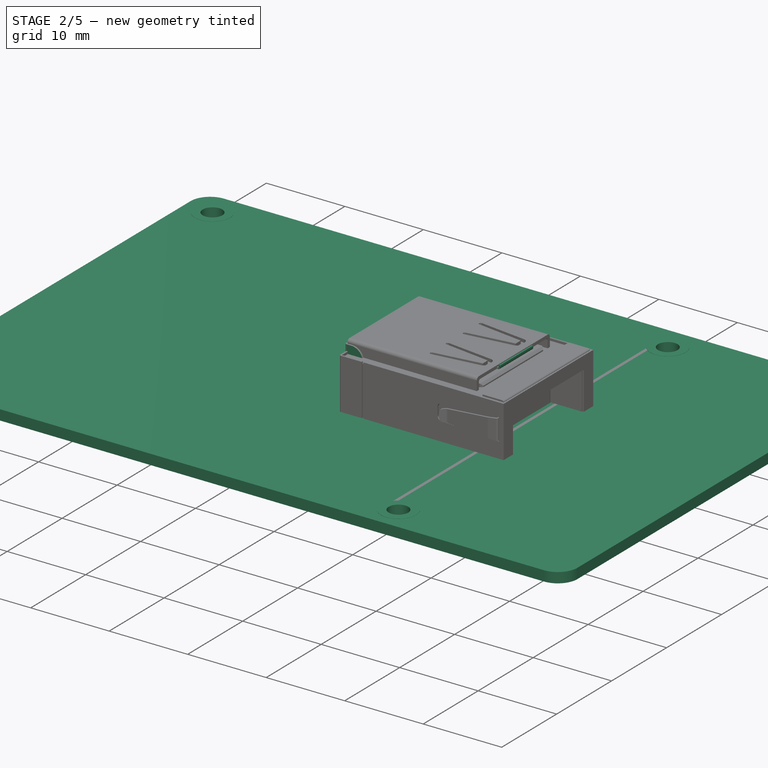
[diagram: stage 2 of 5 — iso view after this stage's code; geometry added in this stage tinted green]
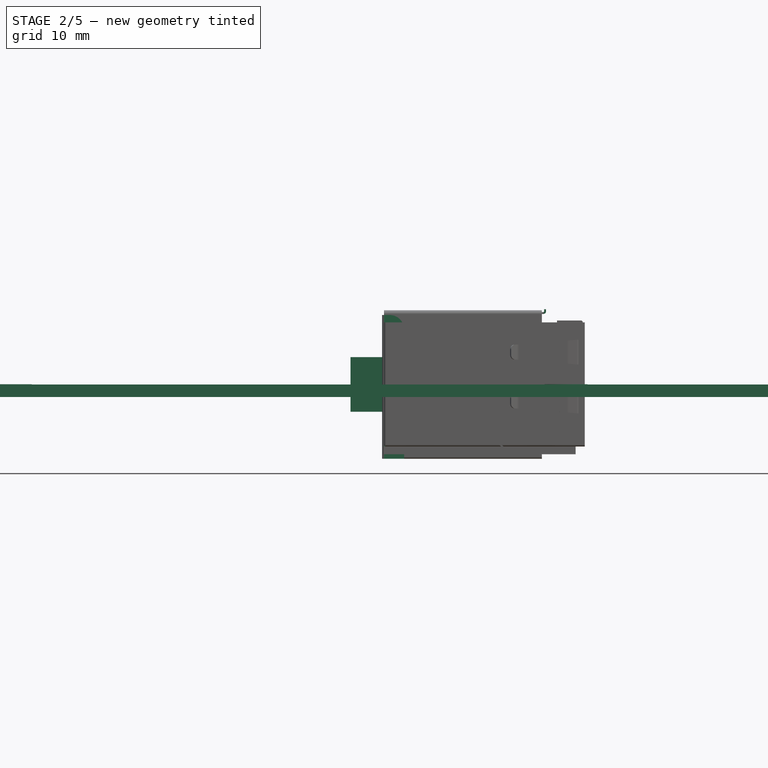
[diagram: stage 2 of 5 — front view after this stage's code; geometry added in this stage tinted green]
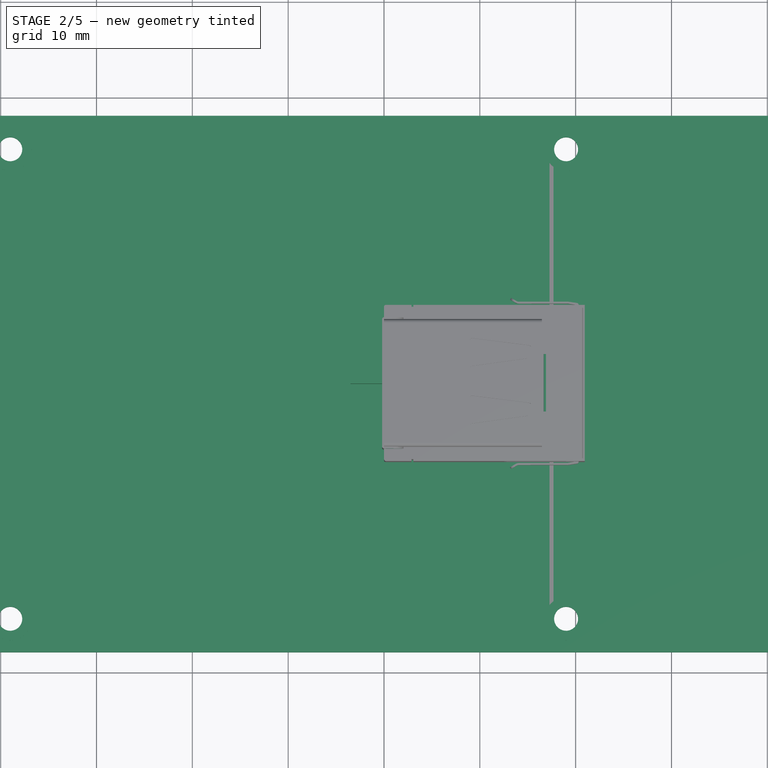
[diagram: stage 2 of 5 — top view after this stage's code; geometry added in this stage tinted green]
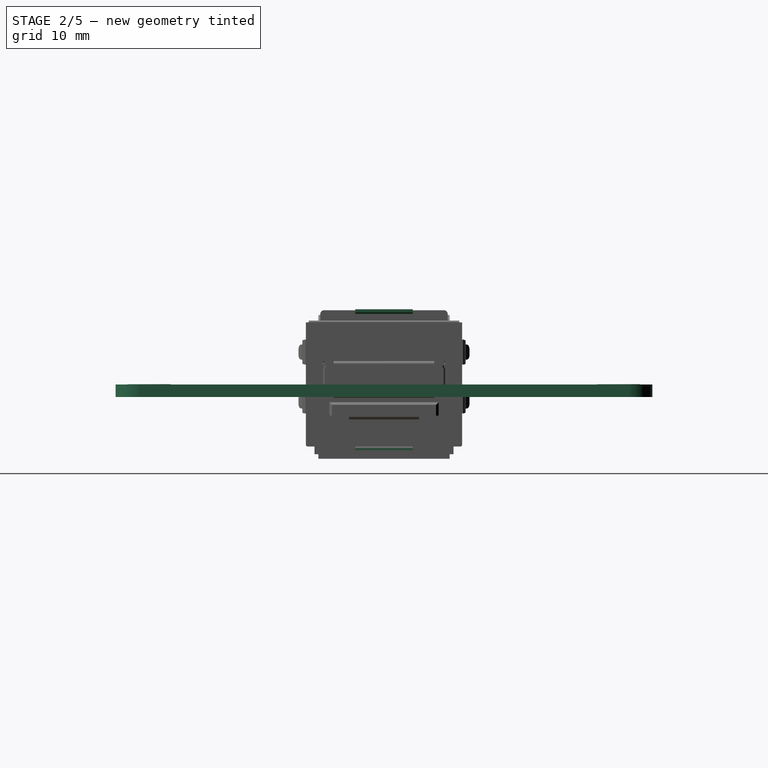
[diagram: stage 2 of 5 — right view after this stage's code; geometry added in this stage tinted green]
FEATURE [Sketcher::SketchObject] Sketch
  FullyConstrained = true
  MapMode = 5
  Support = -> [XY_Plane]
  sketch-geometry (12):
    g0: LineSegment StartX=-42.5 StartY=28 StartZ=0 EndX=42.5 EndY=28 EndZ=0
    g1: LineSegment StartX=42.5 StartY=28 StartZ=0 EndX=42.5 EndY=-28 EndZ=0
    g2: LineSegment StartX=42.5 StartY=-28 StartZ=0 EndX=-42.5 EndY=-28 EndZ=0
    g3: LineSegment StartX=-42.5 StartY=-28 StartZ=0 EndX=-42.5 EndY=28 EndZ=0
    g4: LineSegment [constr] StartX=-39 StartY=24.5 StartZ=0 EndX=19 EndY=24.5 EndZ=0
    g5: LineSegment [constr] StartX=19 StartY=24.5 StartZ=0 EndX=19 EndY=-24.5 EndZ=0
    g6: LineSegment [constr] StartX=19 StartY=-24.5 StartZ=0 EndX=-39 EndY=-24.5 EndZ=0
    g7: LineSegment [constr] StartX=-39 StartY=-24.5 StartZ=0 EndX=-39 EndY=24.5 EndZ=0
    g8: Circle CenterX=-39 CenterY=24.5 CenterZ=0 NormalX=0 NormalY=0 NormalZ=1 AngleXU=0 Radius=1.25
    g9: Circle CenterX=19 CenterY=24.5 CenterZ=0 NormalX=0 NormalY=0 NormalZ=1 AngleXU=0 Radius=1.25
    g10: Circle CenterX=19 CenterY=-24.5 CenterZ=0 NormalX=0 NormalY=0 NormalZ=1 AngleXU=0 Radius=1.25
    g11: Circle CenterX=-39 CenterY=-24.5 CenterZ=0 NormalX=0 NormalY=0 NormalZ=1 AngleXU=0 Radius=1.25
  constraints (31):
    c: Coincident(g0,g1)
    c: Coincident(g1,g2)
    c: Coincident(g2,g3)
    c: Coincident(g3,g0)
    c: Horizontal(g0)
    c: Horizontal(g2)
    c: Vertical(g1)
    c: Vertical(g3)
    c: Symmetric(g0,g1,g-1)
    c: DistanceX(g2,g2) = 85
    c: DistanceY(g1,g1) = 56
    c: Coincident(g4,g5)
    c: Coincident(g5,g6)
    c: Coincident(g6,g7)
    c: Coincident(g7,g4)
    c: Horizontal(g4)
    c: Horizontal(g6)
    c: Vertical(g5)
    c: Vertical(g7)
    c: DistanceX(g4,g4) = 58
    c: DistanceY(g7,g7) = 49
    c: DistanceY(g4,g0) = 3.5
    c: DistanceX(g0,g4) = 3.5
    c: Coincident(g8,g4)
    c: Coincident(g9,g4)
    c: Coincident(g10,g5)
    c: Coincident(g11,g6)
    c: Equal(g11,g10)
    c: Equal(g10,g9)
    c: Equal(g9,g8)
    c: Radius(g8) = 1.25
FEATURE [PartDesign::Pad] Pad
  ClaimChildren = false
  Direction = (1,1,1)
  Fit = 0
  FitJoin = 0
  InnerFit = 0
  InnerFitJoin = 0
  InnerTaperAngle = 0
  InnerTaperAngleRev = 0
  Length = 1.3
  Length2 = 100
  NewSolid = false
  Profile = -> Sketch
  Refine = true
  Reversed = true
  Suppress = false
  Type = 0
FEATURE [PartDesign::Fillet] Fillet
  Base = -> Pad [Edge5,Edge2,Edge1,Edge8]
  BaseFeature = -> Pad
  NewSolid = false
  Radius = 2.5
  Refine = true
  SupportTransform = false
  Suppress = false
FEATURE [PartDesign::Body] Body007  label="RAM"
  AutoGroupSolids = false
  ExportMode = 0
  Group = -> [Sketch020,Pad016,Chamfer004]
  Origin = -> Origin009
  Placement = pos=(0.5,6,0) rot=(0,0,1;0rad)
  Tip = -> Chamfer004
  _ExportChildren = -> [Pad016,Chamfer004]
  _GroupVersion = 1
FEATURE [Sketcher::SketchObject] Sketch021
  FullyConstrained = true
  MapMode = 5
  Placement = pos=(0,0,0) rot=(1,0,0;1.5708rad)
  Support = -> [XZ_Plane009]
  sketch-geometry (4):
    g0: LineSegment StartX=-3.5 StartY=2.85 StartZ=0 EndX=3.5 EndY=2.85 EndZ=0
    g1: LineSegment StartX=3.5 StartY=2.85 StartZ=0 EndX=3.5 EndY=-2.85 EndZ=0
    g2: LineSegment StartX=3.5 StartY=-2.85 StartZ=0 EndX=-3.5 EndY=-2.85 EndZ=0
    g3: LineSegment StartX=-3.5 StartY=-2.85 StartZ=0 EndX=-3.5 EndY=2.85 EndZ=0
  constraints (11):
    c: Coincident(g0,g1)
    c: Coincident(g1,g2)
    c: Coincident(g2,g3)
    c: Coincident(g3,g0)
    c: Horizontal(g0)
    c: Horizontal(g2)
    c: Vertical(g1)
    c: Vertical(g3)
    c: Symmetric(g0,g1,g-1)
    c: DistanceX(g0,g0) = 7
    c: DistanceY(g1,g1) = 5.7
FEATURE [PartDesign::Pad] Pad017
  ClaimChildren = false
  Direction = (1,1,1)
  Fit = 0
  FitJoin = 0
  InnerFit = 0
  InnerFitJoin = 0
  InnerTaperAngle = 0
  InnerTaperAngleRev = 0
  Length = 0.3
  Length2 = 100
  NewSolid = false
  Placement = pos=(0,0,0) rot=(1,0,0;1.5708rad)
  Profile = -> Sketch021
  Refine = true
  Reversed = true
  Suppress = false
  Type = 0
FEATURE [PartDesign::Body] Body008  label="Audio"
  AutoGroupSolids = false
  ExportMode = 0
  Group = -> [Sketch021,Pad017,Sketch022,Pad018,Sketch023,Pad019,Sketch024,Pad020,Pocket011]
  Origin = -> Origin010
  Placement = pos=(10.9,-28,2.85) rot=(0,0,1;0rad)
  Tip = -> Pocket011
  _ExportChildren = -> [Pad017,Pad018,Pad019,Pad020,Pocket011]
  _GroupVersion = 1
FEATURE [PartDesign::SubShapeBinder] Binder  label="Binder(Fillet)..."
  BindCopyOnChange = 0
  BindMode = 0
  ClaimChildren = false
  Context = -> Part [Part001.Body.Binder.]
  FillStyle = 0
  Fuse = false
  MakeFace = true
  PartialLoad = false
  Relative = true
  Support = -> [Fillet[Edge12,Edge15,Edge14,Edge13]]
  _Version = 7
FEATURE [PartDesign::Pad] Pad028
  BaseFeature = -> Fillet
  ClaimChildren = false
  Direction = (1,1,1)
  Fit = 1
  FitJoin = 0
  InnerFit = 0
  InnerFitJoin = 0
  InnerTaperAngle = 0
  InnerTaperAngleRev = 0
  Length = 0.02
  Length2 = 100
  NewSolid = false
  Profile = -> Binder
  Refine = true
  Suppress = false
  Type = 0
FEATURE [PartDesign::Pocket] Pocket012
  BaseFeature = -> Pad028
  ClaimChildren = false
  ColoredElements = -> Pocket012 [Face15,Face16,Face17,Face18]
  Fit = 0
  FitJoin = 0
  InnerFit = 0
  InnerFitJoin = 0
  InnerTaperAngle = 0
  InnerTaperAngleRev = 0
  Length = 5
  Length2 = 100
  NewSolid = false
  Profile = -> Binder
  Refine = true
  Reversed = true
  Suppress = false
  Type = 0
FEATURE [PartDesign::Body] Body  label="Mainboard"
  AutoGroupSolids = false
  ExportMode = 0
  Group = -> [Sketch,Pad,Fillet,Binder,Pad028,Pocket012]
  Origin = -> Origin002
  Tip = -> Pocket012
  _ExportChildren = -> [Pad,Fillet,Pad028,Pocket012]
  _GroupVersion = 1
FEATURE [Sketcher::SketchObject] Sketch036
  FullyConstrained = true
  MapMode = 5
  Placement = pos=(0,0,0) rot=(0.57735,0.57735,0.57735;2.0944rad)
  Support = -> [YZ_Plane012]
  sketch-geometry (4):
    g0: LineSegment StartX=-6.65 StartY=7.75 StartZ=0 EndX=6.65 EndY=7.75 EndZ=0
    g1: LineSegment StartX=6.65 StartY=7.75 StartZ=0 EndX=6.65 EndY=-7.75 EndZ=0
    g2: LineSegment StartX=6.65 StartY=-7.75 StartZ=0 EndX=-6.65 EndY=-7.75 EndZ=0
    g3: LineSegment StartX=-6.65 StartY=-7.75 StartZ=0 EndX=-6.65 EndY=7.75 EndZ=0
  constraints (11):
    c: Coincident(g0,g1)
    c: Coincident(g1,g2)
    c: Coincident(g2,g3)
    c: Coincident(g3,g0)
    c: Horizontal(g0)
    c: Horizontal(g2)
    c: Vertical(g1)
    c: Vertical(g3)
    c: Symmetric(g0,g1,g-1)
    c: DistanceX(g0,g0) = 13.3
    c: DistanceY(g1,g1) = 15.5
FEATURE [PartDesign::Pad] Pad029
  ClaimChildren = false
  Direction = (1,1,1)
  Fit = 0
  FitJoin = 0
  InnerFit = 0
  InnerFitJoin = 0
  InnerTaperAngle = 0
  InnerTaperAngleRev = 0
  Length = 16.9
  Length2 = 100
  NewSolid = false
  Placement = pos=(0,0,0) rot=(0.57735,0.57735,0.57735;2.0944rad)
  Profile = -> Sketch036
  Refine = true
  Suppress = false
  Type = 0
FEATURE [PartDesign::Pocket] Pocket013
  BaseFeature = -> Pad029
  ClaimChildren = false
  Fit = -0.4
  FitJoin = 2
  InnerFit = 0
  InnerFitJoin = 0
  InnerTaperAngle = 0
  InnerTaperAngleRev = 0
  Length = 8.3
  Length2 = 100
  NewSolid = false
  Placement = pos=(0,0,0) rot=(0.57735,0.57735,0.57735;2.0944rad)
  Profile = -> Pad029 [Face6]
  Refine = true
  Reversed = true
  Suppress = false
  Type = 0
FEATURE [PartDesign::Fillet] Fillet009
  Base = -> Pocket013 [Edge18,Edge22]
  BaseFeature = -> Pocket013
  NewSolid = false
  Placement = pos=(0,0,0) rot=(0.57735,0.57735,0.57735;2.0944rad)
  Radius = 0.2
  Refine = true
  SupportTransform = false
  Suppress = false
FEATURE [PartDesign::Fillet] Fillet010
  Base = -> Fillet009 [Edge24,Edge23]
  BaseFeature = -> Fillet009
  NewSolid = false
  Placement = pos=(0,0,0) rot=(0.57735,0.57735,0.57735;2.0944rad)
  Radius = 0.4
  Refine = true
  SupportTransform = false
  Suppress = false
FEATURE [Sketcher::SketchObject] Sketch037
  ExternalGeometry = -> [Fillet010]
  FullyConstrained = true
  MapMode = 5
  Placement = pos=(8.6,-2.3e-15,5.9e-15) rot=(0.57735,0.57735,0.57735;2.0944rad)
  Support = -> [Fillet010]
  sketch-geometry (12):
    g0: LineSegment StartX=-5.7 StartY=6.6 StartZ=0 EndX=5.7 EndY=6.6 EndZ=0
    g1: LineSegment StartX=5.7 StartY=6.6 StartZ=0 EndX=5.7 EndY=4.8 EndZ=0
    g2: LineSegment StartX=5.7 StartY=4.8 StartZ=0 EndX=-5.7 EndY=4.8 EndZ=0
    g3: LineSegment StartX=-5.7 StartY=4.8 StartZ=0 EndX=-5.7 EndY=6.6 EndZ=0
    g4: LineSegment StartX=-6.25 StartY=2 StartZ=0 EndX=6.25 EndY=2 EndZ=0
    g5: LineSegment StartX=6.25 StartY=2 StartZ=0 EndX=6.25 EndY=-1 EndZ=0
    g6: LineSegment StartX=6.25 StartY=-1 StartZ=0 EndX=-6.25 EndY=-1 EndZ=0
    g7: LineSegment StartX=-6.25 StartY=-1 StartZ=0 EndX=-6.25 EndY=2 EndZ=0
    g8: LineSegment StartX=-5.7 StartY=-1.85 StartZ=0 EndX=5.7 EndY=-1.85 EndZ=0
    g9: LineSegment StartX=5.7 StartY=-1.85 StartZ=0 EndX=5.7 EndY=-3.65 EndZ=0
    g10: LineSegment StartX=5.7 StartY=-3.65 StartZ=0 EndX=-5.7 EndY=-3.65 EndZ=0
    g11: LineSegment StartX=-5.7 StartY=-3.65 StartZ=0 EndX=-5.7 EndY=-1.85 EndZ=0
  constraints (34):
    c: Coincident(g0,g1)
    c: Coincident(g1,g2)
    c: Coincident(g2,g3)
    c: Coincident(g3,g0)
    c: Horizontal(g2)
    c: Vertical(g1)
    c: Vertical(g3)
    c: Coincident(g4,g5)
    c: Coincident(g5,g6)
    c: Coincident(g6,g7)
    c: Coincident(g7,g4)
    c: Horizontal(g4)
    c: Horizontal(g6)
    c: Vertical(g5)
    c: Vertical(g7)
    c: Coincident(g8,g9)
    c: Coincident(g9,g10)
    c: Coincident(g10,g11)
    c: Coincident(g11,g8)
    c: Horizontal(g10)
    c: Vertical(g9)
    c: Vertical(g11)
    c: PointOnObject(g4,g-4)
    c: PointOnObject(g4,g-3)
    c: Symmetric(g0,g0,g-2)
    c: Symmetric(g8,g8,g-2)
    c: Equal(g0,g8)
    c: Equal(g3,g11)
    c: DistanceX(g0,g0) = 11.4
    c: DistanceY(g3,g3) = 1.8
    c: DistanceY(g-1,g2) = 4.8
    c: DistanceY(g8,g-1) = 1.85
    c: DistanceY(g5,g5) = 3
    c: DistanceY(g-1,g4) = 2
FEATURE [PartDesign::Pad] Pad030
  BaseFeature = -> Fillet010
  ClaimChildren = false
  Direction = (1,1,1)
  Fit = 0
  FitJoin = 0
  InnerFit = 0
  InnerFitJoin = 0
  InnerTaperAngle = 0
  InnerTaperAngleRev = 0
  Length = 8
  Length2 = 100
  NewSolid = false
  Placement = pos=(0,0,0) rot=(0.57735,0.57735,0.57735;2.0944rad)
  Profile = -> Sketch037
  Refine = true
  Suppress = false
  Type = 0
FEATURE [PartDesign::Chamfer] Chamfer006
  Angle = 45
  Base = -> Pad030 [Edge59,Edge64,Edge63,Edge61,Edge72,Edge67,Edge69,Edge71]
  BaseFeature = -> Pad030
  ChamferType = 0
  FlipDirection = false
  NewSolid = false
  Placement = pos=(0,0,0) rot=(0.57735,0.57735,0.57735;2.0944rad)
  Refine = true
  Size = 0.4
  Size2 = 1
  SupportTransform = false
  Suppress = false
FEATURE [Sketcher::SketchObject] Sketch038
  ExternalGeometry = -> [Chamfer006]
  FullyConstrained = true
  MapMode = 5
  Placement = pos=(0,0,0) rot=(1,0,0;1.5708rad)
  Support = -> [XZ_Plane012]
  sketch-geometry (12):
    g0: LineSegment StartX=16.47 StartY=8 StartZ=0 EndX=17.97 EndY=8 EndZ=0
    g1: LineSegment StartX=17.97 StartY=8 StartZ=0 EndX=17.97 EndY=-8 EndZ=0
    g2: LineSegment StartX=17.97 StartY=-8 StartZ=0 EndX=16.47 EndY=-8 EndZ=0
    g3: LineSegment StartX=16.47 StartY=-8 StartZ=0 EndX=16.47 EndY=-1.18 EndZ=0
    g4: LineSegment StartX=16.47 StartY=-1.18 StartZ=0 EndX=16.13 EndY=-1.18 EndZ=0
    g5: ArcOfCircle CenterX=16.13 CenterY=-1.03 CenterZ=0 NormalX=0 NormalY=0 NormalZ=1 AngleXU=0 Radius=0.15 StartAngle=1.5708 EndAngle=4.71239
    g6: LineSegment StartX=16.13 StartY=-0.88 StartZ=0 EndX=16.9 EndY=-0.88 EndZ=0
    g7: LineSegment StartX=16.9 StartY=-0.88 StartZ=0 EndX=16.9 EndY=2.12 EndZ=0
    g8: LineSegment StartX=16.9 StartY=2.12 StartZ=0 EndX=16.13 EndY=2.12 EndZ=0
    g9: ArcOfCircle CenterX=16.13 CenterY=2.27 CenterZ=0 NormalX=0 NormalY=0 NormalZ=1 AngleXU=0 Radius=0.15 StartAngle=1.5708 EndAngle=4.71239
    g10: LineSegment StartX=16.13 StartY=2.42 StartZ=0 EndX=16.47 EndY=2.42 EndZ=0
    g11: LineSegment StartX=16.47 StartY=2.42 StartZ=0 EndX=16.47 EndY=8 EndZ=0
  constraints (33):
    c: Horizontal(g0)
    c: Coincident(g0,g1)
    c: Coincident(g1,g2)
    c: Horizontal(g2)
    c: Coincident(g2,g3)
    c: Vertical(g3)
    c: Coincident(g3,g4)
    c: Horizontal(g4)
    c: Tangent(g4,g5) = 1.5708
    c: Tangent(g5,g6) = 1.5708
    c: Coincident(g6,g7)
    c: Vertical(g7)
    c: Coincident(g7,g8)
    c: Horizontal(g8)
    c: Tangent(g8,g9) = 1.5708
    c: Tangent(g9,g10) = 1.5708
    c: Coincident(g10,g11)
    c: Coincident(g11,g0)
    c: Vertical(g11)
    c: Vertical(g8,g9)
    c: Vertical(g4,g5)
    c: Vertical(g5,g8)
    c: Equal(g5,g9)
    c: Radius(g9) = 0.15
    c: PointOnObject(g7,g-3)
    c: DistanceY(g7,g-3) = 5.23
    c: DistanceY(g-3,g6) = 6.87
    c: DistanceX(g5,g6) = 0.77
    c: Vertical(g10,g3)
    c: DistanceX(g3,g6) = 0.43
    c: DistanceX(g2,g2) = 1.5
    c: Symmetric(g0,g1,g-1)
    c: DistanceY(g1,g1) = 16
FEATURE [PartDesign::Pocket] Pocket014
  BaseFeature = -> Chamfer006
  ClaimChildren = false
  Fit = 0
  FitJoin = 0
  InnerFit = 0
  InnerFitJoin = 0
  InnerTaperAngle = 0
  InnerTaperAngleRev = 0
  Length = 5
  Length2 = 100
  Midplane = true
  NewSolid = false
  Placement = pos=(0,0,0) rot=(0.57735,0.57735,0.57735;2.0944rad)
  Profile = -> Sketch038
  Refine = true
  Suppress = false
  Type = 1
FEATURE [Sketcher::SketchObject] Sketch039
  ExternalGeometry = -> [Pocket014]
  FullyConstrained = true
  MapMode = 5
  Placement = pos=(0,0,0) rot=(1,0,0;1.5708rad)
  Support = -> [XZ_Plane012]
  sketch-geometry (12):
    g0: ArcOfCircle CenterX=16.48 CenterY=2.12 CenterZ=0 NormalX=0 NormalY=0 NormalZ=1 AngleXU=0 Radius=0.32 StartAngle=-9e-16 EndAngle=1.5708
    g1: ArcOfCircle CenterX=16.48 CenterY=2.12 CenterZ=0 NormalX=0 NormalY=0 NormalZ=1 AngleXU=0 Radius=0.12 StartAngle=-1.8e-15 EndAngle=1.5708
    g2: ArcOfCircle CenterX=16.48 CenterY=-1.08 CenterZ=0 NormalX=0 NormalY=0 NormalZ=1 AngleXU=0 Radius=0.32 StartAngle=4.71239 EndAngle=6.28318
    g3: ArcOfCircle CenterX=16.48 CenterY=-1.08 CenterZ=0 NormalX=0 NormalY=0 NormalZ=1 AngleXU=0 Radius=0.12 StartAngle=4.71239 EndAngle=6.28319
    g4: LineSegment StartX=16.6 StartY=2.12 StartZ=0 EndX=16.6 EndY=-1.08 EndZ=0
    g5: LineSegment StartX=16.8 StartY=2.12 StartZ=0 EndX=16.8 EndY=-1.08 EndZ=0
    g6: LineSegment StartX=16.48 StartY=-1.2 StartZ=0 EndX=9.2 EndY=-1.2 EndZ=0
    g7: LineSegment StartX=9.2 StartY=-1.2 StartZ=0 EndX=9.2 EndY=-1.4 EndZ=0
    g8: LineSegment StartX=9.2 StartY=-1.4 StartZ=0 EndX=16.48 EndY=-1.4 EndZ=0
    g9: LineSegment StartX=16.48 StartY=2.44 StartZ=0 EndX=9.2 EndY=2.44 EndZ=0
    g10: LineSegment StartX=9.2 StartY=2.44 StartZ=0 EndX=9.2 EndY=2.24 EndZ=0
    g11: LineSegment StartX=9.2 StartY=2.24 StartZ=0 EndX=16.48 EndY=2.24 EndZ=0
  constraints (34):
    c: Vertical(g4)
    c: Coincident(g5,g2)
    c: Vertical(g5)
    c: Tangent(g5,g2)
    c: PointOnObject(g-3,g4)
    c: DistanceX(g-4,g2) = 0.2
    c: Horizontal(g6)
    c: Coincident(g6,g7)
    c: Vertical(g7)
    c: Coincident(g7,g8)
    c: Horizontal(g8)
    c: Coincident(g0,g9)
    c: Horizontal(g9)
    c: Coincident(g9,g10)
    c: Vertical(g10)
    c: Coincident(g10,g11)
    c: Horizontal(g11)
    c: Equal(g10,g7)
    c: DistanceY(g10,g10) = 0.2
    c: Vertical(g6,g10)
    c: DistanceY(g-1,g10) = 2.24
    c: DistanceX(g-1,g10) = 9.2
    c: DistanceY(g6,g-1) = 1.2
    c: Tangent(g9,g0,g0) = -1.5708
    c: Tangent(g11,g1) = 1.5708
    c: Tangent(g5,g0) = 1.5708
    c: DistanceX(g9,g9) = 7.28
    c: Vertical(g0,g1)
    c: Tangent(g4,g1) = 1.5708
    c: Tangent(g8,g2) = -1.5708
    c: Vertical(g1,g2)
    c: Vertical(g2,g3)
    c: Tangent(g4,g3) = 1.5708
    c: Tangent(g3,g6) = 1.5708
FEATURE [PartDesign::Pad] Pad031
  BaseFeature = -> Pocket014
  ClaimChildren = false
  Direction = (1,1,1)
  Fit = 0
  FitJoin = 0
  InnerFit = 0
  InnerFitJoin = 0
  InnerTaperAngle = 0
  InnerTaperAngleRev = 0
  Length = 10.5
  Length2 = 100
  Midplane = true
  NewSolid = false
  Placement = pos=(0,0,0) rot=(0.57735,0.57735,0.57735;2.0944rad)
  Profile = -> Sketch039
  Refine = true
  Suppress = false
  Type = 0
FEATURE [PartDesign::Plane] DatumPlane
  Length = 16.515
  MapMode = 45
  MinimumLength = 10
  MinimumWidth = 10
  Placement = pos=(16.515,-5.37e-14,2.12) rot=(0,0,1;0rad)
  ResizeMode = 0
  Support = -> [Pad031]
  Width = 10
FEATURE [Sketcher::SketchObject] Sketch040
  ExternalGeometry = -> [Pad031]
  FullyConstrained = true
  MapMode = 5
  Placement = pos=(16.515,-5.37e-14,2.12) rot=(0,0,1;0rad)
  Support = -> [DatumPlane]
  sketch-geometry (8):
    g0: ArcOfCircle CenterX=0.585 CenterY=-6.87 CenterZ=0 NormalX=0 NormalY=0 NormalZ=1 AngleXU=0 Radius=0.22 StartAngle=2e-15 EndAngle=1.5708
    g1: ArcOfCircle CenterX=0.585 CenterY=-6.87 CenterZ=0 NormalX=0 NormalY=0 NormalZ=1 AngleXU=0 Radius=0.42 StartAngle=1e-16 EndAngle=1.5708
    g2: LineSegment StartX=0.805 StartY=-6.87 StartZ=0 EndX=0.805 EndY=-7.5 EndZ=0
    g3: LineSegment StartX=0.805 StartY=-7.5 StartZ=0 EndX=1.005 EndY=-7.5 EndZ=0
    g4: LineSegment StartX=1.005 StartY=-7.5 StartZ=0 EndX=1.005 EndY=-6.87 EndZ=0
    g5: LineSegment StartX=0.585 StartY=-6.65 StartZ=0 EndX=0.385 EndY=-6.65 EndZ=0
    g6: LineSegment StartX=0.385 StartY=-6.65 StartZ=0 EndX=0.385 EndY=-6.45 EndZ=0
    g7: LineSegment StartX=0.385 StartY=-6.45 StartZ=0 EndX=0.585 EndY=-6.45 EndZ=0
  constraints (20):
    c: Coincident(g1,g0)
    c: Tangent(g0,g2) = 1.5708
    c: Coincident(g2,g3)
    c: Horizontal(g3)
    c: Coincident(g3,g4)
    c: Vertical(g4)
    c: Tangent(g0,g5) = -1.5708
    c: Coincident(g5,g6)
    c: Vertical(g6)
    c: Coincident(g6,g7)
    c: Coincident(g5,g-3)
    c: Horizontal(g7)
    c: DistanceY(g6,g6) = 0.2
    c: Tangent(g7,g1) = 1.5708
    c: Tangent(g4,g1) = -1.5708
    c: Horizontal(g5)
    c: Equal(g3,g6)
    c: DistanceX(g5,g2) = 0.42
    c: DistanceY(g2,g5) = 0.85
    c: DistanceX(g5,g5) = 0.2
FEATURE [PartDesign::Pad] Pad032
  BaseFeature = -> Pad031
  ClaimChildren = false
  Direction = (1,1,1)
  Fit = 0
  FitJoin = 0
  InnerFit = 0
  InnerFitJoin = 0
  InnerTaperAngle = 0
  InnerTaperAngleRev = 0
  Length = 3
  Length2 = 100
  NewSolid = false
  Placement = pos=(0,0,0) rot=(0.57735,0.57735,0.57735;2.0944rad)
  Profile = -> Sketch040
  Refine = true
  Reversed = true
  Suppress = false
  Type = 0
FEATURE [PartDesign::Mirrored] Mirrored002
  BaseFeature = -> Pad032
  CopyShape = false
  MirrorPlane = -> XZ_Plane012
  NewSolid = false
  OriginalSubs = -> [Pad032]
  Originals = -> [Pad032]
  ParallelTransform = true
  Placement = pos=(0,0,0) rot=(0.57735,0.57735,0.57735;2.0944rad)
  Refine = true
  SubTransform = true
  Suppress = false
FEATURE [PartDesign::Pocket] Pocket015
  BaseFeature = -> Mirrored002
  ClaimChildren = false
  Fit = 0
  FitJoin = 0
  InnerFit = 0
  InnerFitJoin = 0
  InnerTaperAngle = 0
  InnerTaperAngleRev = 0
  Length = 1
  Length2 = 100
  NewSolid = false
  Placement = pos=(0,0,0) rot=(0.57735,0.57735,0.57735;2.0944rad)
  Profile = -> Mirrored002 [Face12,Face24]
  Refine = true
  Suppress = false
  Type = 0
FEATURE [Sketcher::SketchObject] Sketch041
  AttachmentOffset = pos=(0,0.5,0) rot=(1,0,0;1.5708rad)
  ExternalGeometry = -> [Pocket015]
  FullyConstrained = true
  MapMode = 5
  Placement = pos=(16.8,1e-16,0.5) rot=(0.707107,0.707107,0;3.14159rad)
  Support = -> [Pocket015]
  sketch-geometry (8):
    g0: LineSegment StartX=-6.43 StartY=0 StartZ=0 EndX=6.43 EndY=0 EndZ=0
    g1: LineSegment StartX=6.43 StartY=0 StartZ=0 EndX=6.43 EndY=-0.9 EndZ=0
    g2: LineSegment StartX=6.43 StartY=-0.9 StartZ=0 EndX=6.25 EndY=-0.9 EndZ=0
    g3: LineSegment StartX=6.25 StartY=-0.9 StartZ=0 EndX=6.25 EndY=-0.18 EndZ=0
    g4: LineSegment StartX=6.25 StartY=-0.18 StartZ=0 EndX=-6.25 EndY=-0.18 EndZ=0
    g5: LineSegment StartX=-6.25 StartY=-0.18 StartZ=0 EndX=-6.25 EndY=-0.9 EndZ=0
    g6: LineSegment StartX=-6.25 StartY=-0.9 StartZ=0 EndX=-6.43 EndY=-0.9 EndZ=0
    g7: LineSegment StartX=-6.43 StartY=-0.9 StartZ=0 EndX=-6.43 EndY=0 EndZ=0
  constraints (22):
    c: PointOnObject(g0,g-1)
    c: PointOnObject(g0,g-1)
    c: Coincident(g0,g1)
    c: Coincident(g1,g2)
    c: Coincident(g2,g3)
    c: Vertical(g3)
    c: Coincident(g3,g4)
    c: Horizontal(g4)
    c: Coincident(g4,g5)
    c: Coincident(g5,g6)
    c: Coincident(g6,g7)
    c: Coincident(g7,g0)
    c: Vertical(g7)
    c: Horizontal(g6)
    c: Vertical(g5)
    c: Vertical(g1)
    c: Horizontal(g2)
    c: Equal(g6,g2)
    c: DistanceX(g2,g2) = 0.18
    c: Coincident(g5,g-4)
    c: Coincident(g2,g-3)
    c: DistanceY(g3,g0) = 0.18
FEATURE [PartDesign::Fillet] Fillet012
  Base = -> Pocket015 [Edge156,Edge129]
  BaseFeature = -> Pocket015
  NewSolid = false
  Placement = pos=(0,0,0) rot=(0.57735,0.57735,0.57735;2.0944rad)
  Radius = 0.2
  Refine = true
  SupportTransform = false
  Suppress = false
FEATURE [PartDesign::Pad] Pad033
  BaseFeature = -> Fillet012
  ClaimChildren = false
  Direction = (1,1,1)
  Fit = 0
  FitJoin = 0
  InnerFit = 0
  InnerFitJoin = 0
  InnerTaperAngle = 0
  InnerTaperAngleRev = 0
  Length = 2.5
  Length2 = 100
  Midplane = true
  NewSolid = false
  Placement = pos=(0,0,0) rot=(0.57735,0.57735,0.57735;2.0944rad)
  Profile = -> Sketch041
  Refine = true
  Suppress = false
  Type = 0
FEATURE [PartDesign::Fillet] Fillet011
  Base = -> Pad033 [Edge161,Edge245]
  BaseFeature = -> Pad033
  NewSolid = false
  Placement = pos=(0,0,0) rot=(0.57735,0.57735,0.57735;2.0944rad)
  Radius = 0.3
  Refine = true
  SupportTransform = false
  Suppress = false
FEATURE [Sketcher::SketchObject] Sketch042
  ExternalGeometry = -> [Fillet011]
  FullyConstrained = true
  MapMode = 5
  Placement = pos=(8.6,-2.3e-15,5.9e-15) rot=(0.57735,0.57735,0.57735;2.0944rad)
  Support = -> [Fillet011]
  sketch-geometry (4):
    g0: LineSegment StartX=-6.25 StartY=-6.35 StartZ=0 EndX=6.25 EndY=-6.35 EndZ=0
    g1: LineSegment StartX=6.25 StartY=-6.35 StartZ=0 EndX=6.25 EndY=-7.35 EndZ=0
    g2: LineSegment StartX=6.25 StartY=-7.35 StartZ=0 EndX=-6.25 EndY=-7.35 EndZ=0
    g3: LineSegment StartX=-6.25 StartY=-7.35 StartZ=0 EndX=-6.25 EndY=-6.35 EndZ=0
  constraints (10):
    c: Coincident(g0,g1)
    c: Coincident(g1,g2)
    c: Coincident(g2,g3)
    c: Coincident(g3,g0)
    c: Horizontal(g0)
    c: Vertical(g1)
    c: Vertical(g3)
    c: Coincident(g2,g-3)
    c: Coincident(g1,g-3)
    c: DistanceY(g1,g1) = 1
FEATURE [PartDesign::Pad] Pad034
  BaseFeature = -> Fillet011
  ClaimChildren = false
  Direction = (1,1,1)
  Fit = 0
  FitJoin = 0
  InnerFit = 0
  InnerFitJoin = 0
  InnerTaperAngle = 0
  InnerTaperAngleRev = 0
  Length = 10
  Length2 = 100
  NewSolid = false
  Placement = pos=(0,0,0) rot=(0.57735,0.57735,0.57735;2.0944rad)
  Profile = -> Sketch042
  Refine = true
  Suppress = false
  Type = 3
  UpToFace = -> Fillet011 [Face81]
FEATURE [Sketcher::SketchObject] Sketch043
  ExternalGeometry = -> [Pad034]
  FullyConstrained = true
  MapMode = 5
  Placement = pos=(16.47,-2.1e-15,1.47e-14) rot=(0.57735,0.57735,0.57735;2.0944rad)
  Support = -> [Pad034]
  sketch-geometry (16):
    g0: LineSegment StartX=-4.45 StartY=-6.55 StartZ=0 EndX=-1.55 EndY=-6.55 EndZ=0
    g1: LineSegment StartX=-1.55 StartY=-6.55 StartZ=0 EndX=-1.55 EndY=-7.95 EndZ=0
    g2: LineSegment StartX=-1.55 StartY=-7.95 StartZ=0 EndX=1.55 EndY=-7.95 EndZ=0
    g3: LineSegment StartX=1.55 StartY=-7.95 StartZ=0 EndX=1.55 EndY=-6.55 EndZ=0
    g4: LineSegment StartX=1.55 StartY=-6.55 StartZ=0 EndX=4.45 EndY=-6.55 EndZ=0
    g5: LineSegment StartX=4.45 StartY=-6.55 StartZ=0 EndX=4.45 EndY=-9.55 EndZ=0
    g6: LineSegment StartX=4.45 StartY=-9.55 StartZ=0 EndX=-4.45 EndY=-9.55 EndZ=0
    g7: LineSegment StartX=-4.45 StartY=-9.55 StartZ=0 EndX=-4.45 EndY=-6.55 EndZ=0
    g8: LineSegment StartX=-5.45 StartY=-7.05 StartZ=0 EndX=-5.05 EndY=-7.05 EndZ=0
    g9: LineSegment StartX=-5.05 StartY=-7.05 StartZ=0 EndX=-5.05 EndY=-9.55 EndZ=0
    g10: LineSegment StartX=-5.05 StartY=-9.55 StartZ=0 EndX=-5.45 EndY=-9.55 EndZ=0
    g11: LineSegment StartX=-5.45 StartY=-9.55 StartZ=0 EndX=-5.45 EndY=-7.05 EndZ=0
    g12: LineSegment StartX=5.05 StartY=-7.05 StartZ=0 EndX=5.45 EndY=-7.05 EndZ=0
    g13: LineSegment StartX=5.45 StartY=-7.05 StartZ=0 EndX=5.45 EndY=-9.55 EndZ=0
    g14: LineSegment StartX=5.45 StartY=-9.55 StartZ=0 EndX=5.05 EndY=-9.55 EndZ=0
    g15: LineSegment StartX=5.05 StartY=-9.55 StartZ=0 EndX=5.05 EndY=-7.05 EndZ=0
  constraints (46):
    c: Horizontal(g0)
    c: Coincident(g0,g1)
    c: Vertical(g1)
    c: Coincident(g1,g2)
    c: Horizontal(g2)
    c: Coincident(g2,g3)
    c: Vertical(g3)
    c: Coincident(g3,g4)
    c: Coincident(g4,g5)
    c: Vertical(g5)
    c: Coincident(g5,g6)
    c: Horizontal(g6)
    c: Coincident(g6,g7)
    c: Coincident(g7,g0)
    c: Vertical(g7)
    c: DistanceY(g4,g-3) = 0.2
    c: Symmetric(g0,g3,g-2)
    c: Symmetric(g0,g4,g-2)
    c: DistanceX(g4,g-3) = 1.8
    c: DistanceY(g3,g3) = 1.4
    c: DistanceX(g4,g4) = 2.9
    c: DistanceY(g5,g5) = 3
    c: Coincident(g8,g9)
    c: Coincident(g9,g10)
    c: Coincident(g10,g11)
    c: Coincident(g11,g8)
    c: Horizontal(g8)
    c: Horizontal(g10)
    c: Vertical(g9)
    c: Vertical(g11)
    c: Coincident(g12,g13)
    c: Coincident(g13,g14)
    c: Coincident(g14,g15)
    c: Coincident(g15,g12)
    c: Horizontal(g12)
    c: Horizontal(g14)
    c: Vertical(g13)
    c: Vertical(g15)
    c: Equal(g10,g14)
    c: Equal(g15,g11)
    c: Horizontal(g9,g6)
    c: Horizontal(g6,g14)
    c: DistanceX(g10,g10) = 0.4
    c: DistanceX(g9,g6) = 0.6
    c: DistanceY(g15,g15) = 2.5
    c: DistanceX(g5,g14) = 0.6
FEATURE [PartDesign::Pocket] Pocket016
  BaseFeature = -> Pad034
  ClaimChildren = false
  Fit = 0
  FitJoin = 0
  InnerFit = 0
  InnerFitJoin = 0
  InnerTaperAngle = 0
  InnerTaperAngleRev = 0
  Length = 5
  Length2 = 100
  NewSolid = false
  Placement = pos=(0,0,0) rot=(0.57735,0.57735,0.57735;2.0944rad)
  Profile = -> Sketch043
  Refine = true
  Suppress = false
  Type = 0
FEATURE [PartDesign::Fillet] Fillet013
  Base = -> Pocket016 [Edge249,Edge187,Edge263,Edge218]
  BaseFeature = -> Pocket016
  NewSolid = false
  Placement = pos=(0,0,0) rot=(0.57735,0.57735,0.57735;2.0944rad)
  Radius = 0.2
  Refine = true
  SupportTransform = false
  Suppress = false
FEATURE [PartDesign::Fillet] Fillet014
  Base = -> Fillet013 [Edge121,Edge115]
  BaseFeature = -> Fillet013
  NewSolid = false
  Placement = pos=(0,0,0) rot=(0.57735,0.57735,0.57735;2.0944rad)
  Radius = 0.2
  Refine = true
  SupportTransform = false
  Suppress = false
FEATURE [Sketcher::SketchObject] Sketch044
  FullyConstrained = true
  MapMode = 5
  Placement = pos=(5.7e-15,-1.4e-15,-6.35) rot=(0,0,-1;1.5708rad)
  Support = -> [Fillet014]
  sketch-geometry (18):
    g0: LineSegment StartX=-3.45 StartY=15 StartZ=0 EndX=-2.55 EndY=15 EndZ=0
    g1: LineSegment StartX=-2.55 StartY=15 StartZ=0 EndX=-1.74813 EndY=9.17274 EndZ=0
    g2: ArcOfCircle CenterX=-1.55 CenterY=9.2 CenterZ=0 NormalX=0 NormalY=0 NormalZ=1 AngleXU=0 Radius=0.2 StartAngle=3.27834 EndAngle=6.40778
    g3: LineSegment StartX=-1.35155 StartY=9.22485 StartZ=0 EndX=-2.15 EndY=15.6 EndZ=0
    g4: LineSegment StartX=-2.15 StartY=15.6 StartZ=0 EndX=-3.85 EndY=15.6 EndZ=0
    g5: LineSegment StartX=-3.85 StartY=15.6 StartZ=0 EndX=-4.64845 EndY=9.22485 EndZ=0
    g6: ArcOfCircle CenterX=-4.45 CenterY=9.2 CenterZ=0 NormalX=0 NormalY=0 NormalZ=1 AngleXU=0 Radius=0.2 StartAngle=3.017 EndAngle=6.14644
    g7: LineSegment StartX=-4.25187 StartY=9.17274 StartZ=0 EndX=-3.45 EndY=15 EndZ=0
    g8: LineSegment [constr] StartX=-3 StartY=15.6 StartZ=0 EndX=-3 EndY=9.2 EndZ=0
    g9: LineSegment StartX=3.45 StartY=15 StartZ=0 EndX=2.55 EndY=15 EndZ=0
    g10: LineSegment StartX=2.55 StartY=15 StartZ=0 EndX=1.74813 EndY=9.17274 EndZ=0
    g11: ArcOfCircle CenterX=1.55 CenterY=9.2 CenterZ=0 NormalX=0 NormalY=0 NormalZ=1 AngleXU=0 Radius=0.2 StartAngle=3.017 EndAngle=6.14644
    g12: LineSegment StartX=1.35155 StartY=9.22485 StartZ=0 EndX=2.15 EndY=15.6 EndZ=0
    g13: LineSegment StartX=2.15 StartY=15.6 StartZ=0 EndX=3.85 EndY=15.6 EndZ=0
    g14: LineSegment StartX=3.85 StartY=15.6 StartZ=0 EndX=4.64845 EndY=9.22485 EndZ=0
    g15: ArcOfCircle CenterX=4.45 CenterY=9.2 CenterZ=0 NormalX=0 NormalY=0 NormalZ=1 AngleXU=0 Radius=0.2 StartAngle=3.27834 EndAngle=6.40778
    g16: LineSegment StartX=4.25187 StartY=9.17274 StartZ=0 EndX=3.45 EndY=15 EndZ=0
    g17: LineSegment [constr] StartX=3 StartY=15.6 StartZ=0 EndX=3 EndY=9.2 EndZ=0
  constraints (45):
    c: Coincident(g0,g1)
    c: Tangent(g1,g2) = -1.5708
    c: Coincident(g3,g4)
    c: Horizontal(g4)
    c: Coincident(g4,g5)
    c: Tangent(g5,g6) = -1.5708
    c: Tangent(g6,g7) = -1.5708
    c: Coincident(g7,g0)
    c: Horizontal(g0)
    c: Symmetric(g4,g3,g8)
    c: Symmetric(g6,g2,g8)
    c: Tangent(g2,g3) = -1.5708
    c: Equal(g6,g2)
    c: Radius(g6) = 0.2
    c: Symmetric(g0,g0,g8)
    c: DistanceY(g8,g8) = 6.4
    c: DistanceX(g8,g-1) = 3
    c: DistanceY(g8,g-1) = -15.6
    c: DistanceX(g0,g0) = 0.9
    c: DistanceX(g4,g4) = 1.7
    c: DistanceY(g0,g3) = 0.6
    c: Horizontal(g8,g2)
    c: DistanceX(g8,g2) = 1.45
    c: Coincident(g9,g10)
    c: Tangent(g10,g11) = 1.5708
    c: Coincident(g12,g13)
    c: Horizontal(g13)
    c: Coincident(g13,g14)
    c: Tangent(g14,g15) = 1.5708
    c: Tangent(g15,g16) = 1.5708
    c: Coincident(g16,g9)
    c: Horizontal(g9)
    c: Symmetric(g13,g12,g17)
    c: Symmetric(g15,g11,g17)
    c: Tangent(g11,g12) = 1.5708
    c: Equal(g15,g11)
    c: Radius(g15) = 0.2
    c: Symmetric(g9,g9,g17)
    c: DistanceX(g13,g13) = 1.7
    c: DistanceX(g9,g9) = 0.9
    c: DistanceY(g17,g17) = 6.4
    c: DistanceX(g17,g15) = 1.45
    c: Symmetric(g17,g8,g-2)
    c: DistanceY(g9,g13) = 0.6
    c: Horizontal(g17,g15)
FEATURE [PartDesign::Pocket] Pocket017
  BaseFeature = -> Fillet014
  ClaimChildren = false
  Fit = 0
  FitJoin = 0
  InnerFit = 0
  InnerFitJoin = 0
  InnerTaperAngle = 0
  InnerTaperAngleRev = 0
  Length = 0.2
  Length2 = 100
  NewSolid = false
  Placement = pos=(0,0,0) rot=(0.57735,0.57735,0.57735;2.0944rad)
  Profile = -> Sketch044
  Refine = true
  Suppress = false
  Type = 0
FEATURE [Sketcher::SketchObject] Sketch045
  FullyConstrained = true
  MapMode = 5
  Placement = pos=(0,1.1e-15,2.44) rot=(0,0,-1;1.5708rad)
  Support = -> [Pocket017]
  expr: .Constraints[13] = Sketch044.Constraints[13]
  expr: .Constraints[15] = Sketch044.Constraints[15]
  expr: .Constraints[16] = Sketch044.Constraints[16]
  expr: .Constraints[17] = Sketch044.Constraints[17]
  expr: .Constraints[18] = Sketch044.Constraints[18]
  expr: .Constraints[19] = Sketch044.Constraints[19]
  expr: .Constraints[20] = Sketch044.Constraints[20]
  expr: .Constraints[22] = Sketch044.Constraints[22]
  expr: .Constraints[36] = Sketch044.Constraints[36]
  expr: .Constraints[38] = Sketch044.Constraints[38]
  expr: .Constraints[39] = Sketch044.Constraints[39]
  expr: .Constraints[40] = Sketch044.Constraints[40]
  expr: .Constraints[41] = Sketch044.Constraints[41]
  expr: .Constraints[43] = Sketch044.Constraints[43]
  sketch-geometry (18):
    g0: LineSegment StartX=-3.45 StartY=15 StartZ=0 EndX=-2.55 EndY=15 EndZ=0
    g1: LineSegment StartX=-2.55 StartY=15 StartZ=0 EndX=-1.74813 EndY=9.17274 EndZ=0
    g2: ArcOfCircle CenterX=-1.55 CenterY=9.2 CenterZ=0 NormalX=0 NormalY=0 NormalZ=1 AngleXU=0 Radius=0.2 StartAngle=3.27834 EndAngle=6.40778
    g3: LineSegment StartX=-1.35155 StartY=9.22485 StartZ=0 EndX=-2.15 EndY=15.6 EndZ=0
    g4: LineSegment StartX=-2.15 StartY=15.6 StartZ=0 EndX=-3.85 EndY=15.6 EndZ=0
    g5: LineSegment StartX=-3.85 StartY=15.6 StartZ=0 EndX=-4.64845 EndY=9.22485 EndZ=0
    g6: ArcOfCircle CenterX=-4.45 CenterY=9.2 CenterZ=0 NormalX=0 NormalY=0 NormalZ=1 AngleXU=0 Radius=0.2 StartAngle=3.017 EndAngle=6.14644
    g7: LineSegment StartX=-4.25187 StartY=9.17274 StartZ=0 EndX=-3.45 EndY=15 EndZ=0
    g8: LineSegment [constr] StartX=-3 StartY=15.6 StartZ=0 EndX=-3 EndY=9.2 EndZ=0
    g9: LineSegment StartX=3.45 StartY=15 StartZ=0 EndX=2.55 EndY=15 EndZ=0
    g10: LineSegment StartX=2.55 StartY=15 StartZ=0 EndX=1.74813 EndY=9.17274 EndZ=0
    g11: ArcOfCircle CenterX=1.55 CenterY=9.2 CenterZ=0 NormalX=0 NormalY=0 NormalZ=1 AngleXU=0 Radius=0.2 StartAngle=3.017 EndAngle=6.14644
    g12: LineSegment StartX=1.35155 StartY=9.22485 StartZ=0 EndX=2.15 EndY=15.6 EndZ=0
    g13: LineSegment StartX=2.15 StartY=15.6 StartZ=0 EndX=3.85 EndY=15.6 EndZ=0
    g14: LineSegment StartX=3.85 StartY=15.6 StartZ=0 EndX=4.64845 EndY=9.22485 EndZ=0
    g15: ArcOfCircle CenterX=4.45 CenterY=9.2 CenterZ=0 NormalX=0 NormalY=0 NormalZ=1 AngleXU=0 Radius=0.2 StartAngle=3.27834 EndAngle=6.40778
    g16: LineSegment StartX=4.25187 StartY=9.17274 StartZ=0 EndX=3.45 EndY=15 EndZ=0
    g17: LineSegment [constr] StartX=3 StartY=15.6 StartZ=0 EndX=3 EndY=9.2 EndZ=0
  constraints (45):
    c: Coincident(g0,g1)
    c: Tangent(g1,g2) = -1.5708
    c: Coincident(g3,g4)
    c: Horizontal(g4)
    c: Coincident(g4,g5)
    c: Tangent(g5,g6) = -1.5708
    c: Tangent(g6,g7) = -1.5708
    c: Coincident(g7,g0)
    c: Horizontal(g0)
    c: Symmetric(g4,g3,g8)
    c: Symmetric(g6,g2,g8)
    c: Tangent(g2,g3) = -1.5708
    c: Equal(g6,g2)
    c: Radius(g6) = 0.2
    c: Symmetric(g0,g0,g8)
    c: DistanceY(g8,g8) = 6.4
    c: DistanceX(g8,g-1) = 3
    c: DistanceY(g8,g-1) = -15.6
    c: DistanceX(g0,g0) = 0.9
    c: DistanceX(g4,g4) = 1.7
    c: DistanceY(g0,g3) = 0.6
    c: Horizontal(g8,g2)
    c: DistanceX(g8,g2) = 1.45
    c: Coincident(g9,g10)
    c: Tangent(g10,g11) = 1.5708
    c: Coincident(g12,g13)
    c: Horizontal(g13)
    c: Coincident(g13,g14)
    c: Tangent(g14,g15) = 1.5708
    c: Tangent(g15,g16) = 1.5708
    c: Coincident(g16,g9)
    c: Horizontal(g9)
    c: Symmetric(g13,g12,g17)
    c: Symmetric(g15,g11,g17)
    c: Tangent(g11,g12) = 1.5708
    c: Equal(g15,g11)
    c: Radius(g15) = 0.2
    c: Symmetric(g9,g9,g17)
    c: DistanceX(g13,g13) = 1.7
    c: DistanceX(g9,g9) = 0.9
    c: DistanceY(g17,g17) = 6.4
    c: DistanceX(g17,g15) = 1.45
    c: Symmetric(g17,g8,g-2)
    c: DistanceY(g9,g13) = 0.6
    c: Horizontal(g17,g15)
FEATURE [PartDesign::Pocket] Pocket018
  BaseFeature = -> Pocket017
  ClaimChildren = false
  Fit = 0
  FitJoin = 0
  InnerFit = 0
  InnerFitJoin = 0
  InnerTaperAngle = 0
  InnerTaperAngleRev = 0
  Length = 0.2
  Length2 = 100
  NewSolid = false
  Placement = pos=(0,0,0) rot=(0.57735,0.57735,0.57735;2.0944rad)
  Profile = -> Sketch045
  Refine = true
  Suppress = false
  Type = 0
FEATURE [Sketcher::SketchObject] Sketch046
  FullyConstrained = true
  MapMode = 5
  Placement = pos=(-2.2e-15,3.4e-15,7.75) rot=(0,0,-1;1.5708rad)
  Support = -> [Pocket018]
  expr: .Constraints[13] = Sketch044.Constraints[13]
  expr: .Constraints[15] = Sketch044.Constraints[15]
  expr: .Constraints[16] = Sketch044.Constraints[16]
  expr: .Constraints[17] = Sketch044.Constraints[17]
  expr: .Constraints[18] = Sketch044.Constraints[18]
  expr: .Constraints[19] = Sketch044.Constraints[19]
  expr: .Constraints[20] = Sketch044.Constraints[20]
  expr: .Constraints[22] = Sketch044.Constraints[22]
  expr: .Constraints[36] = Sketch044.Constraints[36]
  expr: .Constraints[38] = Sketch044.Constraints[38]
  expr: .Constraints[39] = Sketch044.Constraints[39]
  expr: .Constraints[40] = Sketch044.Constraints[40]
  expr: .Constraints[41] = Sketch044.Constraints[41]
  expr: .Constraints[43] = Sketch044.Constraints[43]
  sketch-geometry (18):
    g0: LineSegment StartX=-3.45 StartY=15 StartZ=0 EndX=-2.55 EndY=15 EndZ=0
    g1: LineSegment StartX=-2.55 StartY=15 StartZ=0 EndX=-1.74813 EndY=9.17274 EndZ=0
    g2: ArcOfCircle CenterX=-1.55 CenterY=9.2 CenterZ=0 NormalX=0 NormalY=0 NormalZ=1 AngleXU=0 Radius=0.2 StartAngle=3.27834 EndAngle=6.40778
    g3: LineSegment StartX=-1.35155 StartY=9.22485 StartZ=0 EndX=-2.15 EndY=15.6 EndZ=0
    g4: LineSegment StartX=-2.15 StartY=15.6 StartZ=0 EndX=-3.85 EndY=15.6 EndZ=0
    g5: LineSegment StartX=-3.85 StartY=15.6 StartZ=0 EndX=-4.64845 EndY=9.22485 EndZ=0
    g6: ArcOfCircle CenterX=-4.45 CenterY=9.2 CenterZ=0 NormalX=0 NormalY=0 NormalZ=1 AngleXU=0 Radius=0.2 StartAngle=3.017 EndAngle=6.14644
    g7: LineSegment StartX=-4.25187 StartY=9.17274 StartZ=0 EndX=-3.45 EndY=15 EndZ=0
    g8: LineSegment [constr] StartX=-3 StartY=15.6 StartZ=0 EndX=-3 EndY=9.2 EndZ=0
    g9: LineSegment StartX=3.45 StartY=15 StartZ=0 EndX=2.55 EndY=15 EndZ=0
    g10: LineSegment StartX=2.55 StartY=15 StartZ=0 EndX=1.74813 EndY=9.17274 EndZ=0
    g11: ArcOfCircle CenterX=1.55 CenterY=9.2 CenterZ=0 NormalX=0 NormalY=0 NormalZ=1 AngleXU=0 Radius=0.2 StartAngle=3.017 EndAngle=6.14644
    g12: LineSegment StartX=1.35155 StartY=9.22485 StartZ=0 EndX=2.15 EndY=15.6 EndZ=0
    g13: LineSegment StartX=2.15 StartY=15.6 StartZ=0 EndX=3.85 EndY=15.6 EndZ=0
    g14: LineSegment StartX=3.85 StartY=15.6 StartZ=0 EndX=4.64845 EndY=9.22485 EndZ=0
    g15: ArcOfCircle CenterX=4.45 CenterY=9.2 CenterZ=0 NormalX=0 NormalY=0 NormalZ=1 AngleXU=0 Radius=0.2 StartAngle=3.27834 EndAngle=6.40778
    g16: LineSegment StartX=4.25187 StartY=9.17274 StartZ=0 EndX=3.45 EndY=15 EndZ=0
    g17: LineSegment [constr] StartX=3 StartY=15.6 StartZ=0 EndX=3 EndY=9.2 EndZ=0
  constraints (45):
    c: Coincident(g0,g1)
    c: Tangent(g1,g2) = -1.5708
    c: Coincident(g3,g4)
    c: Horizontal(g4)
    c: Coincident(g4,g5)
    c: Tangent(g5,g6) = -1.5708
    c: Tangent(g6,g7) = -1.5708
    c: Coincident(g7,g0)
    c: Horizontal(g0)
    c: Symmetric(g4,g3,g8)
    c: Symmetric(g6,g2,g8)
    c: Tangent(g2,g3) = -1.5708
    c: Equal(g6,g2)
    c: Radius(g6) = 0.2
    c: Symmetric(g0,g0,g8)
    c: DistanceY(g8,g8) = 6.4
    c: DistanceX(g8,g-1) = 3
    c: DistanceY(g8,g-1) = -15.6
    c: DistanceX(g0,g0) = 0.9
    c: DistanceX(g4,g4) = 1.7
    c: DistanceY(g0,g3) = 0.6
    c: Horizontal(g8,g2)
    c: DistanceX(g8,g2) = 1.45
    c: Coincident(g9,g10)
    c: Tangent(g10,g11) = 1.5708
    c: Coincident(g12,g13)
    c: Horizontal(g13)
    c: Coincident(g13,g14)
    c: Tangent(g14,g15) = 1.5708
    c: Tangent(g15,g16) = 1.5708
    c: Coincident(g16,g9)
    c: Horizontal(g9)
    c: Symmetric(g13,g12,g17)
    c: Symmetric(g15,g11,g17)
    c: Tangent(g11,g12) = 1.5708
    c: Equal(g15,g11)
    c: Radius(g15) = 0.2
    c: Symmetric(g9,g9,g17)
    c: DistanceX(g13,g13) = 1.7
    c: DistanceX(g9,g9) = 0.9
    c: DistanceY(g17,g17) = 6.4
    c: DistanceX(g17,g15) = 1.45
    c: Symmetric(g17,g8,g-2)
    c: DistanceY(g9,g13) = 0.6
    c: Horizontal(g17,g15)
FEATURE [PartDesign::Pocket] Pocket019
  BaseFeature = -> Pocket018
  ClaimChildren = false
  Fit = 0
  FitJoin = 0
  InnerFit = 0
  InnerFitJoin = 0
  InnerTaperAngle = 0
  InnerTaperAngleRev = 0
  Length = 5
  Length2 = 100
  NewSolid = false
  Placement = pos=(0,0,0) rot=(0.57735,0.57735,0.57735;2.0944rad)
  Profile = -> Sketch046
  Refine = true
  Suppress = false
  Type = 2
FEATURE [PartDesign::Fillet] Fillet015
  Base = -> Pocket019 [Edge154,Edge156,Edge175,Edge173,Edge496,Edge497,Edge502,Edge503,Edge371,Edge370,Edge364,Edge362]
  BaseFeature = -> Pocket019
  NewSolid = false
  Placement = pos=(0,0,0) rot=(0.57735,0.57735,0.57735;2.0944rad)
  Radius = 0.6
  Refine = true
  SupportTransform = false
  Suppress = false
FEATURE [Sketcher::SketchObject] Sketch047
  FullyConstrained = true
  MapMode = 5
  Placement = pos=(7.1e-15,6.65,-6.6e-15) rot=(0.57735,0.57735,0.57735;4.18879rad)
  Support = -> [Fillet015]
  sketch-geometry (34):
    g0: LineSegment StartX=-4.7 StartY=12 StartZ=0 EndX=-4.39043 EndY=9.42021 EndZ=0
    g1: LineSegment StartX=-4.14221 StartY=9.2 StartZ=0 EndX=-3.05779 EndY=9.2 EndZ=0
    g2: LineSegment StartX=-2.80957 StartY=9.42021 StartZ=0 EndX=-2.5 EndY=12 EndZ=0
    g3: LineSegment [constr] StartX=-2.5 StartY=12 StartZ=0 EndX=-4.7 EndY=12 EndZ=0
    g4: LineSegment StartX=-1.35 StartY=14.5 StartZ=0 EndX=-1.35 EndY=12.45 EndZ=0
    g5: LineSegment StartX=-1.1 StartY=12.2 StartZ=0 EndX=1.1 EndY=12.2 EndZ=0
    g6: LineSegment StartX=1.35 StartY=12.45 StartZ=0 EndX=1.35 EndY=14.5 EndZ=0
    g7: LineSegment StartX=1.35 StartY=14.5 StartZ=0 EndX=0.95 EndY=14.5 EndZ=0
    g8: LineSegment StartX=0.95 StartY=14.5 StartZ=0 EndX=0.95 EndY=14.1 EndZ=0
    g9: LineSegment StartX=0.95 StartY=14.1 StartZ=0 EndX=-0.95 EndY=14.1 EndZ=0
    g10: LineSegment StartX=-0.95 StartY=14.1 StartZ=0 EndX=-0.95 EndY=14.5 EndZ=0
    g11: LineSegment StartX=-0.95 StartY=14.5 StartZ=0 EndX=-1.35 EndY=14.5 EndZ=0
    g12: LineSegment [constr] StartX=-3.6 StartY=12 StartZ=0 EndX=-3.6 EndY=9.2 EndZ=0
    g13: LineSegment StartX=-4.7 StartY=12 StartZ=0 EndX=-4.4 EndY=12 EndZ=0
    g14: LineSegment StartX=-4.4 StartY=12 StartZ=0 EndX=-4.1 EndY=9.5 EndZ=0
    g15: LineSegment StartX=-4.1 StartY=9.5 StartZ=0 EndX=-3.1 EndY=9.5 EndZ=0
    g16: LineSegment StartX=-3.1 StartY=9.5 StartZ=0 EndX=-2.8 EndY=12 EndZ=0
    g17: LineSegment StartX=-2.8 StartY=12 StartZ=0 EndX=-2.5 EndY=12 EndZ=0
    g18: LineSegment StartX=4.7 StartY=12 StartZ=0 EndX=4.39043 EndY=9.42021 EndZ=0
    g19: LineSegment StartX=4.14221 StartY=9.2 StartZ=0 EndX=3.05779 EndY=9.2 EndZ=0
    g20: LineSegment StartX=2.80957 StartY=9.42021 StartZ=0 EndX=2.5 EndY=12 EndZ=0
    g21: LineSegment [constr] StartX=2.5 StartY=12 StartZ=0 EndX=4.7 EndY=12 EndZ=0
    g22: LineSegment [constr] StartX=3.6 StartY=12 StartZ=0 EndX=3.6 EndY=9.2 EndZ=0
    g23: LineSegment StartX=4.7 StartY=12 StartZ=0 EndX=4.4 EndY=12 EndZ=0
    g24: LineSegment StartX=4.4 StartY=12 StartZ=0 EndX=4.1 EndY=9.5 EndZ=0
    g25: LineSegment StartX=4.1 StartY=9.5 StartZ=0 EndX=3.1 EndY=9.5 EndZ=0
    g26: LineSegment StartX=3.1 StartY=9.5 StartZ=0 EndX=2.8 EndY=12 EndZ=0
    g27: LineSegment StartX=2.8 StartY=12 StartZ=0 EndX=2.5 EndY=12 EndZ=0
    g28: ArcOfCircle CenterX=-1.1 CenterY=12.45 CenterZ=0 NormalX=0 NormalY=0 NormalZ=1 AngleXU=0 Radius=0.25 StartAngle=3.14159 EndAngle=4.71239
    g29: ArcOfCircle CenterX=1.1 CenterY=12.45 CenterZ=0 NormalX=0 NormalY=0 NormalZ=1 AngleXU=0 Radius=0.25 StartAngle=4.71239 EndAngle=6.28319
    g30: ArcOfCircle CenterX=-4.14221 CenterY=9.45 CenterZ=0 NormalX=0 NormalY=0 NormalZ=1 AngleXU=0 Radius=0.25 StartAngle=3.26102 EndAngle=4.71239
    g31: ArcOfCircle CenterX=-3.05779 CenterY=9.45 CenterZ=0 NormalX=0 NormalY=0 NormalZ=1 AngleXU=0 Radius=0.25 StartAngle=4.71239 EndAngle=6.16376
    g32: ArcOfCircle CenterX=3.05779 CenterY=9.45 CenterZ=0 NormalX=0 NormalY=0 NormalZ=1 AngleXU=0 Radius=0.25 StartAngle=3.26102 EndAngle=4.71239
    g33: ArcOfCircle CenterX=4.14221 CenterY=9.45 CenterZ=0 NormalX=0 NormalY=0 NormalZ=1 AngleXU=0 Radius=0.25 StartAngle=4.71239 EndAngle=6.16376
  constraints (86):
    c: Horizontal(g1)
    c: Coincident(g2,g3)
    c: Coincident(g3,g0)
    c: Horizontal(g3)
    c: Vertical(g4)
    c: Horizontal(g5)
    c: Vertical(g6)
    c: Coincident(g6,g7)
    c: Coincident(g7,g8)
    c: Vertical(g8)
    c: Coincident(g8,g9)
    c: Coincident(g9,g10)
    c: Vertical(g10)
    c: Coincident(g10,g11)
    c: Coincident(g11,g4)
    c: Symmetric(g0,g2,g12)
    c: DistanceY(g12,g12) = 2.8
    c: Coincident(g0,g13)
    c: PointOnObject(g13,g3)
    c: Coincident(g13,g14)
    c: Coincident(g14,g15)
    c: Coincident(g15,g16)
    c: Coincident(g16,g17)
    c: Coincident(g17,g2)
    c: Symmetric(g14,g15,g12)
    c: Symmetric(g13,g16,g12)
    c: DistanceX(g17,g17) = 0.3
    c: DistanceX(g15,g15) = 1
    c: Parallel(g0,g14)
    c: DistanceX(g0,g2) = 2.2
    c: Horizontal(g19)
    c: Coincident(g20,g21)
    c: Coincident(g21,g18)
    c: Horizontal(g21)
    c: Symmetric(g18,g20,g22)
    c: Coincident(g18,g23)
    c: PointOnObject(g23,g21)
    c: Coincident(g23,g24)
    c: Coincident(g24,g25)
    c: Coincident(g25,g26)
    c: Coincident(g26,g27)
    c: Coincident(g27,g20)
    c: Symmetric(g24,g25,g22)
    c: Symmetric(g23,g26,g22)
    c: Parallel(g18,g24)
    c: DistanceX(g20,g18) = 2.2
    c: DistanceX(g23,g23) = 0.3
    c: DistanceY(g22,g22) = 2.8
    c: DistanceX(g25,g25) = 1
    c: Horizontal(g11)
    c: Horizontal(g7)
    c: DistanceX(g9,g9) = 1.9
    c: Equal(g11,g7)
    c: DistanceX(g7,g7) = 0.4
    c: Equal(g4,g6)
    c: DistanceY(g8,g8) = 0.4
    c: Symmetric(g9,g8,g-2)
    c: Tangent(g4,g28) = -1.5708
    c: Tangent(g5,g28) = -1.5708
    c: Tangent(g5,g29) = -1.5708
    c: Tangent(g6,g29) = -1.5708
    c: Tangent(g0,g30) = -1.5708
    c: Tangent(g1,g30) = -1.5708
    c: Tangent(g1,g31) = -1.5708
    c: Tangent(g2,g31) = -1.5708
    c: Tangent(g19,g32) = 1.5708
    c: Tangent(g20,g32) = 1.5708
    c: Tangent(g18,g33) = 1.5708
    c: Tangent(g19,g33) = 1.5708
    c: Equal(g33,g32)
    c: Equal(g32,g29)
    c: Equal(g29,g28)
    c: Equal(g28,g31)
    c: Equal(g31,g30)
    c: Radius(g33) = 0.25
    c: DistanceY(g19,g24) = 0.3
    c: Symmetric(g19,g19,g22)
    c: DistanceY(g1,g15) = 0.3
    c: Symmetric(g1,g1,g12)
    c: Symmetric(g2,g20,g-2)
    c: DistanceX(g2) = -2.5
    c: DistanceY(g2) = 12
    c: DistanceY(g5,g6) = 2.3
    c: DistanceY(g6,g-1) = -14.5
    c: PointOnObject(g22,g19)
    c: PointOnObject(g12,g1)
FEATURE [PartDesign::Pocket] Pocket020
  BaseFeature = -> Fillet015
  ClaimChildren = false
  Fit = 0
  FitJoin = 0
  InnerFit = 0
  InnerFitJoin = 0
  InnerTaperAngle = 0
  InnerTaperAngleRev = 0
  Length = 0.4
  Length2 = 100
  NewSolid = false
  Placement = pos=(0,0,0) rot=(0.57735,0.57735,0.57735;2.0944rad)
  Profile = -> Sketch047
  Refine = true
  Suppress = false
  Type = 0
FEATURE [PartDesign::Mirrored] Mirrored003
  BaseFeature = -> Pocket020
  CopyShape = false
  MirrorPlane = -> XZ_Plane012
  NewSolid = false
  OriginalSubs = -> [Pocket020]
  Originals = -> [Pocket020]
  ParallelTransform = true
  Placement = pos=(0,0,0) rot=(0.57735,0.57735,0.57735;2.0944rad)
  Refine = true
  SubTransform = true
  Suppress = false
FEATURE [Sketcher::SketchObject] Sketch048
  ExternalGeometry = -> [Mirrored003]
  FullyConstrained = true
  MapMode = 5
  Placement = pos=(0,0,0) rot=(1,0,0;1.5708rad)
  Support = -> [XZ_Plane012]
  sketch-geometry (16):
    g0: ArcOfCircle CenterX=16.61 CenterY=7.65 CenterZ=0 NormalX=0 NormalY=0 NormalZ=1 AngleXU=0 Radius=0.1 StartAngle=4.71239 EndAngle=6.28319
    g1: ArcOfCircle CenterX=16.61 CenterY=7.65 CenterZ=0 NormalX=0 NormalY=0 NormalZ=1 AngleXU=0 Radius=0.3 StartAngle=4.71239 EndAngle=6.28319
    g2: LineSegment StartX=16.61 StartY=7.55 StartZ=0 EndX=16.47 EndY=7.55 EndZ=0
    g3: LineSegment StartX=16.47 StartY=7.35 StartZ=0 EndX=16.61 EndY=7.35 EndZ=0
    g4: LineSegment StartX=16.47 StartY=7.55 StartZ=0 EndX=16.47 EndY=7.35 EndZ=0
    g5: LineSegment StartX=16.71 StartY=7.65 StartZ=0 EndX=16.71 EndY=7.85 EndZ=0
    g6: LineSegment StartX=16.71 StartY=7.85 StartZ=0 EndX=16.91 EndY=7.85 EndZ=0
    g7: LineSegment StartX=16.91 StartY=7.85 StartZ=0 EndX=16.91 EndY=7.65 EndZ=0
    g8: ArcOfCircle CenterX=16.61 CenterY=-6.65 CenterZ=0 NormalX=0 NormalY=0 NormalZ=1 AngleXU=0 Radius=0.1 StartAngle=2.9e-15 EndAngle=1.5708
    g9: ArcOfCircle CenterX=16.61 CenterY=-6.65 CenterZ=0 NormalX=0 NormalY=0 NormalZ=1 AngleXU=0 Radius=0.3 StartAngle=1e-16 EndAngle=1.5708
    g10: LineSegment StartX=16.61 StartY=-6.55 StartZ=0 EndX=16.47 EndY=-6.55 EndZ=0
    g11: LineSegment StartX=16.47 StartY=-6.35 StartZ=0 EndX=16.61 EndY=-6.35 EndZ=0
    g12: LineSegment StartX=16.47 StartY=-6.55 StartZ=0 EndX=16.47 EndY=-6.35 EndZ=0
    g13: LineSegment StartX=16.71 StartY=-6.65 StartZ=0 EndX=16.71 EndY=-6.85 EndZ=0
    g14: LineSegment StartX=16.71 StartY=-6.85 StartZ=0 EndX=16.91 EndY=-6.85 EndZ=0
    g15: LineSegment StartX=16.91 StartY=-6.85 StartZ=0 EndX=16.91 EndY=-6.65 EndZ=0
  constraints (40):
    c: Coincident(g1,g0)
    c: Tangent(g0,g2) = 1.5708
    c: Tangent(g3,g1) = -1.5708
    c: Horizontal(g3)
    c: Horizontal(g2)
    c: Equal(g2,g3)
    c: Coincident(g3,g-3)
    c: Coincident(g4,g2)
    c: Coincident(g4,g3)
    c: DistanceY(g4,g4) = 0.2
    c: Tangent(g0,g5) = -1.5708
    c: Coincident(g5,g6)
    c: Horizontal(g6)
    c: Coincident(g6,g7)
    c: Vertical(g7)
    c: Tangent(g7,g1) = 1.5708
    c: Vertical(g5)
    c: DistanceX(g3,g3) = 0.14
    c: Radius(g0) = 0.1
    c: DistanceY(g5,g5) = 0.2
    c: Coincident(g9,g8)
    c: Tangent(g8,g10) = -1.5708
    c: Tangent(g11,g9) = 1.5708
    c: Horizontal(g11)
    c: Horizontal(g10)
    c: Equal(g10,g11)
    c: Coincident(g12,g10)
    c: Coincident(g12,g11)
    c: Tangent(g8,g13) = 1.5708
    c: Coincident(g13,g14)
    c: Horizontal(g14)
    c: Coincident(g14,g15)
    c: Vertical(g15)
    c: Tangent(g15,g9) = -1.5708
    c: Vertical(g13)
    c: Radius(g8) = 0.1
    c: DistanceX(g14,g14) = 0.2
    c: DistanceY(g15,g15) = 0.2
    c: DistanceX(g11,g11) = 0.14
    c: Coincident(g11,g-4)
FEATURE [PartDesign::Pad] Pad035
  BaseFeature = -> Mirrored003
  ClaimChildren = false
  Direction = (1,1,1)
  Fit = 0
  FitJoin = 0
  InnerFit = 0
  InnerFitJoin = 0
  InnerTaperAngle = 0
  InnerTaperAngleRev = 0
  Length = 6
  Length2 = 100
  Midplane = true
  NewSolid = false
  Placement = pos=(0,0,0) rot=(0.57735,0.57735,0.57735;2.0944rad)
  Profile = -> Sketch048
  Refine = true
  Suppress = false
  Type = 0
FEATURE [Sketcher::SketchObject] Sketch049
  ExternalGeometry = -> [Pad035]
  FullyConstrained = true
  MapMode = 5
  Placement = pos=(2.2e-15,-3.4e-15,-7.75) rot=(0.707107,0.707107,0;3.14159rad)
  Support = -> [Pad035]
  sketch-geometry (8):
    g0: LineSegment StartX=-6.85 StartY=2.1 StartZ=0 EndX=-6.65 EndY=2.1 EndZ=0
    g1: LineSegment StartX=-6.65 StartY=2.1 StartZ=0 EndX=-6.65 EndY=0 EndZ=0
    g2: LineSegment StartX=-6.65 StartY=0 StartZ=0 EndX=6.65 EndY=0 EndZ=0
    g3: LineSegment StartX=6.65 StartY=0 StartZ=0 EndX=6.65 EndY=2.1 EndZ=0
    g4: LineSegment StartX=6.65 StartY=2.1 StartZ=0 EndX=6.85 EndY=2.1 EndZ=0
    g5: LineSegment StartX=6.85 StartY=2.1 StartZ=0 EndX=6.85 EndY=-0.2 EndZ=0
    g6: LineSegment StartX=6.85 StartY=-0.2 StartZ=0 EndX=-6.85 EndY=-0.2 EndZ=0
    g7: LineSegment StartX=-6.85 StartY=-0.2 StartZ=0 EndX=-6.85 EndY=2.1 EndZ=0
  constraints (24):
    c: Horizontal(g0)
    c: Coincident(g0,g1)
    c: PointOnObject(g1,g-1)
    c: Vertical(g1)
    c: Coincident(g1,g2)
    c: PointOnObject(g2,g-1)
    c: Coincident(g2,g3)
    c: Vertical(g3)
    c: Coincident(g3,g4)
    c: Horizontal(g4)
    c: Coincident(g4,g5)
    c: Vertical(g5)
    c: Coincident(g5,g6)
    c: Horizontal(g6)
    c: Coincident(g6,g7)
    c: Coincident(g7,g0)
    c: Vertical(g7)
    c: Equal(g4,g0)
    c: DistanceX(g0,g0) = 0.2
    c: PointOnObject(g0,g-3)
    c: PointOnObject(g3,g-4)
    c: DistanceY(g5,g2) = 0.2
    c: Equal(g5,g7)
    c: DistanceY(g7,g7) = 2.3
FEATURE [PartDesign::Pad] Pad036
  BaseFeature = -> Pad035
  ClaimChildren = false
  Direction = (1,1,1)
  Fit = 0
  FitJoin = 0
  InnerFit = 0
  InnerFitJoin = 0
  InnerTaperAngle = 0
  InnerTaperAngleRev = 0
  Length = 15
  Length2 = 100
  NewSolid = false
  Placement = pos=(0,0,0) rot=(0.57735,0.57735,0.57735;2.0944rad)
  Profile = -> Sketch049
  Refine = true
  Reversed = true
  Suppress = false
  Type = 0
FEATURE [PartDesign::Fillet] Fillet016
  Base = -> Pad036 [Edge562,Edge564]
  BaseFeature = -> Pad036
  NewSolid = false
  Placement = pos=(0,0,0) rot=(0.57735,0.57735,0.57735;2.0944rad)
  Radius = 0.2
  Refine = true
  SupportTransform = false
  Suppress = false
FEATURE [PartDesign::Fillet] Fillet017
  Base = -> Fillet016 [Edge10,Edge3]
  BaseFeature = -> Fillet016
  NewSolid = false
  Placement = pos=(0,0,0) rot=(0.57735,0.57735,0.57735;2.0944rad)
  Radius = 1.5
  Refine = true
  SupportTransform = false
  Suppress = false
FEATURE [Sketcher::SketchObject] Sketch060
  FullyConstrained = true
  MapMode = 5
  Placement = pos=(-2.2e-15,3.4e-15,7.75) rot=(0,0,-1;1.5708rad)
  Support = -> [Pocket026]
  expr: .Constraints[13] = Sketch058.Constraints[13]
  expr: .Constraints[15] = Sketch058.Constraints[15]
  expr: .Constraints[16] = Sketch058.Constraints[16]
  expr: .Constraints[17] = Sketch058.Constraints[17]
  expr: .Constraints[18] = Sketch058.Constraints[18]
  expr: .Constraints[19] = Sketch058.Constraints[19]
  expr: .Constraints[20] = Sketch058.Constraints[20]
  expr: .Constraints[22] = Sketch058.Constraints[22]
  expr: .Constraints[36] = Sketch058.Constraints[36]
  expr: .Constraints[38] = Sketch058.Constraints[38]
  expr: .Constraints[39] = Sketch058.Constraints[39]
  expr: .Constraints[40] = Sketch058.Constraints[40]
  expr: .Constraints[41] = Sketch058.Constraints[41]
  expr: .Constraints[43] = Sketch058.Constraints[43]
  sketch-geometry (18):
    g0: LineSegment StartX=-3.45 StartY=15 StartZ=0 EndX=-2.55 EndY=15 EndZ=0
    g1: LineSegment StartX=-2.55 StartY=15 StartZ=0 EndX=-1.74813 EndY=9.17274 EndZ=0
    g2: ArcOfCircle CenterX=-1.55 CenterY=9.2 CenterZ=0 NormalX=0 NormalY=0 NormalZ=1 AngleXU=0 Radius=0.2 StartAngle=3.27834 EndAngle=6.40778
    g3: LineSegment StartX=-1.35155 StartY=9.22485 StartZ=0 EndX=-2.15 EndY=15.6 EndZ=0
    g4: LineSegment StartX=-2.15 StartY=15.6 StartZ=0 EndX=-3.85 EndY=15.6 EndZ=0
    g5: LineSegment StartX=-3.85 StartY=15.6 StartZ=0 EndX=-4.64845 EndY=9.22485 EndZ=0
    g6: ArcOfCircle CenterX=-4.45 CenterY=9.2 CenterZ=0 NormalX=0 NormalY=0 NormalZ=1 AngleXU=0 Radius=0.2 StartAngle=3.017 EndAngle=6.14644
    g7: LineSegment StartX=-4.25187 StartY=9.17274 StartZ=0 EndX=-3.45 EndY=15 EndZ=0
    g8: LineSegment [constr] StartX=-3 StartY=15.6 StartZ=0 EndX=-3 EndY=9.2 EndZ=0
    g9: LineSegment StartX=3.45 StartY=15 StartZ=0 EndX=2.55 EndY=15 EndZ=0
    g10: LineSegment StartX=2.55 StartY=15 StartZ=0 EndX=1.74813 EndY=9.17274 EndZ=0
    g11: ArcOfCircle CenterX=1.55 CenterY=9.2 CenterZ=0 NormalX=0 NormalY=0 NormalZ=1 AngleXU=0 Radius=0.2 StartAngle=3.017 EndAngle=6.14644
    g12: LineSegment StartX=1.35155 StartY=9.22485 StartZ=0 EndX=2.15 EndY=15.6 EndZ=0
    g13: LineSegment StartX=2.15 StartY=15.6 StartZ=0 EndX=3.85 EndY=15.6 EndZ=0
    g14: LineSegment StartX=3.85 StartY=15.6 StartZ=0 EndX=4.64845 EndY=9.22485 EndZ=0
    g15: ArcOfCircle CenterX=4.45 CenterY=9.2 CenterZ=0 NormalX=0 NormalY=0 NormalZ=1 AngleXU=0 Radius=0.2 StartAngle=3.27834 EndAngle=6.40778
    g16: LineSegment StartX=4.25187 StartY=9.17274 StartZ=0 EndX=3.45 EndY=15 EndZ=0
    g17: LineSegment [constr] StartX=3 StartY=15.6 StartZ=0 EndX=3 EndY=9.2 EndZ=0
  constraints (45):
    c: Coincident(g0,g1)
    c: Tangent(g1,g2) = -1.5708
    c: Coincident(g3,g4)
    c: Horizontal(g4)
    c: Coincident(g4,g5)
    c: Tangent(g5,g6) = -1.5708
    c: Tangent(g6,g7) = -1.5708
    c: Coincident(g7,g0)
    c: Horizontal(g0)
    c: Symmetric(g4,g3,g8)
    c: Symmetric(g6,g2,g8)
    c: Tangent(g2,g3) = -1.5708
    c: Equal(g6,g2)
    c: Radius(g6) = 0.2
    c: Symmetric(g0,g0,g8)
    c: DistanceY(g8,g8) = 6.4
    c: DistanceX(g8,g-1) = 3
    c: DistanceY(g8,g-1) = -15.6
    c: DistanceX(g0,g0) = 0.9
    c: DistanceX(g4,g4) = 1.7
    c: DistanceY(g0,g3) = 0.6
    c: Horizontal(g8,g2)
    c: DistanceX(g8,g2) = 1.45
    c: Coincident(g9,g10)
    c: Tangent(g10,g11) = 1.5708
    c: Coincident(g12,g13)
    c: Horizontal(g13)
    c: Coincident(g13,g14)
    c: Tangent(g14,g15) = 1.5708
    c: Tangent(g15,g16) = 1.5708
    c: Coincident(g16,g9)
    c: Horizontal(g9)
    c: Symmetric(g13,g12,g17)
    c: Symmetric(g15,g11,g17)
    c: Tangent(g11,g12) = 1.5708
    c: Equal(g15,g11)
    c: Radius(g15) = 0.2
    c: Symmetric(g9,g9,g17)
    c: DistanceX(g13,g13) = 1.7
    c: DistanceX(g9,g9) = 0.9
    c: DistanceY(g17,g17) = 6.4
    c: DistanceX(g17,g15) = 1.45
    c: Symmetric(g17,g8,g-2)
    c: DistanceY(g9,g13) = 0.6
    c: Horizontal(g17,g15)
FEATURE [PartDesign::Pocket] Pocket027
  BaseFeature = -> Pocket026
  ClaimChildren = false
  Fit = 0
  FitJoin = 0
  InnerFit = 0
  InnerFitJoin = 0
  InnerTaperAngle = 0
  InnerTaperAngleRev = 0
  Length = 5
  Length2 = 100
  NewSolid = false
  Placement = pos=(0,0,0) rot=(0.57735,0.57735,0.57735;2.0944rad)
  Profile = -> Sketch060
  Refine = true
  Suppress = false
  Type = 2
FEATURE [PartDesign::Fillet] Fillet024
  Base = -> Pocket027 [Edge154,Edge156,Edge175,Edge173,Edge496,Edge497,Edge502,Edge503,Edge371,Edge370,Edge364,Edge362]
  BaseFeature = -> Pocket027
  NewSolid = false
  Placement = pos=(0,0,0) rot=(0.57735,0.57735,0.57735;2.0944rad)
  Radius = 0.6
  Refine = true
  SupportTransform = false
  Suppress = false
FEATURE [Sketcher::SketchObject] Sketch061
  FullyConstrained = true
  MapMode = 5
  Placement = pos=(1.9e-15,6.65,-7.1e-15) rot=(0.57735,0.57735,0.57735;4.18879rad)
  Support = -> [Fillet024]
  sketch-geometry (34):
    g0: LineSegment StartX=-4.7 StartY=12 StartZ=0 EndX=-4.39043 EndY=9.42021 EndZ=0
    g1: LineSegment StartX=-4.14221 StartY=9.2 StartZ=0 EndX=-3.05779 EndY=9.2 EndZ=0
    g2: LineSegment StartX=-2.80957 StartY=9.42021 StartZ=0 EndX=-2.5 EndY=12 EndZ=0
    g3: LineSegment [constr] StartX=-2.5 StartY=12 StartZ=0 EndX=-4.7 EndY=12 EndZ=0
    g4: LineSegment StartX=-1.35 StartY=14.5 StartZ=0 EndX=-1.35 EndY=12.45 EndZ=0
    g5: LineSegment StartX=-1.1 StartY=12.2 StartZ=0 EndX=1.1 EndY=12.2 EndZ=0
    g6: LineSegment StartX=1.35 StartY=12.45 StartZ=0 EndX=1.35 EndY=14.5 EndZ=0
    g7: LineSegment StartX=1.35 StartY=14.5 StartZ=0 EndX=0.95 EndY=14.5 EndZ=0
    g8: LineSegment StartX=0.95 StartY=14.5 StartZ=0 EndX=0.95 EndY=14.1 EndZ=0
    g9: LineSegment StartX=0.95 StartY=14.1 StartZ=0 EndX=-0.95 EndY=14.1 EndZ=0
    g10: LineSegment StartX=-0.95 StartY=14.1 StartZ=0 EndX=-0.95 EndY=14.5 EndZ=0
    g11: LineSegment StartX=-0.95 StartY=14.5 StartZ=0 EndX=-1.35 EndY=14.5 EndZ=0
    g12: LineSegment [constr] StartX=-3.6 StartY=12 StartZ=0 EndX=-3.6 EndY=9.2 EndZ=0
    g13: LineSegment StartX=-4.7 StartY=12 StartZ=0 EndX=-4.4 EndY=12 EndZ=0
    g14: LineSegment StartX=-4.4 StartY=12 StartZ=0 EndX=-4.1 EndY=9.5 EndZ=0
    g15: LineSegment StartX=-4.1 StartY=9.5 StartZ=0 EndX=-3.1 EndY=9.5 EndZ=0
    g16: LineSegment StartX=-3.1 StartY=9.5 StartZ=0 EndX=-2.8 EndY=12 EndZ=0
    g17: LineSegment StartX=-2.8 StartY=12 StartZ=0 EndX=-2.5 EndY=12 EndZ=0
    g18: LineSegment StartX=4.7 StartY=12 StartZ=0 EndX=4.39043 EndY=9.42021 EndZ=0
    g19: LineSegment StartX=4.14221 StartY=9.2 StartZ=0 EndX=3.05779 EndY=9.2 EndZ=0
    g20: LineSegment StartX=2.80957 StartY=9.42021 StartZ=0 EndX=2.5 EndY=12 EndZ=0
    g21: LineSegment [constr] StartX=2.5 StartY=12 StartZ=0 EndX=4.7 EndY=12 EndZ=0
    g22: LineSegment [constr] StartX=3.6 StartY=12 StartZ=0 EndX=3.6 EndY=9.2 EndZ=0
    g23: LineSegment StartX=4.7 StartY=12 StartZ=0 EndX=4.4 EndY=12 EndZ=0
    g24: LineSegment StartX=4.4 StartY=12 StartZ=0 EndX=4.1 EndY=9.5 EndZ=0
    g25: LineSegment StartX=4.1 StartY=9.5 StartZ=0 EndX=3.1 EndY=9.5 EndZ=0
    g26: LineSegment StartX=3.1 StartY=9.5 StartZ=0 EndX=2.8 EndY=12 EndZ=0
    g27: LineSegment StartX=2.8 StartY=12 StartZ=0 EndX=2.5 EndY=12 EndZ=0
    g28: ArcOfCircle CenterX=-1.1 CenterY=12.45 CenterZ=0 NormalX=0 NormalY=0 NormalZ=1 AngleXU=0 Radius=0.25 StartAngle=3.14159 EndAngle=4.71239
    g29: ArcOfCircle CenterX=1.1 CenterY=12.45 CenterZ=0 NormalX=0 NormalY=0 NormalZ=1 AngleXU=0 Radius=0.25 StartAngle=4.71239 EndAngle=6.28319
    g30: ArcOfCircle CenterX=-4.14221 CenterY=9.45 CenterZ=0 NormalX=0 NormalY=0 NormalZ=1 AngleXU=0 Radius=0.25 StartAngle=3.26102 EndAngle=4.71239
    g31: ArcOfCircle CenterX=-3.05779 CenterY=9.45 CenterZ=0 NormalX=0 NormalY=0 NormalZ=1 AngleXU=0 Radius=0.25 StartAngle=4.71239 EndAngle=6.16376
    g32: ArcOfCircle CenterX=3.05779 CenterY=9.45 CenterZ=0 NormalX=0 NormalY=0 NormalZ=1 AngleXU=0 Radius=0.25 StartAngle=3.26102 EndAngle=4.71239
    g33: ArcOfCircle CenterX=4.14221 CenterY=9.45 CenterZ=0 NormalX=0 NormalY=0 NormalZ=1 AngleXU=0 Radius=0.25 StartAngle=4.71239 EndAngle=6.16376
  constraints (86):
    c: Horizontal(g1)
    c: Coincident(g2,g3)
    c: Coincident(g3,g0)
    c: Horizontal(g3)
    c: Vertical(g4)
    c: Horizontal(g5)
    c: Vertical(g6)
    c: Coincident(g6,g7)
    c: Coincident(g7,g8)
    c: Vertical(g8)
    c: Coincident(g8,g9)
    c: Coincident(g9,g10)
    c: Vertical(g10)
    c: Coincident(g10,g11)
    c: Coincident(g11,g4)
    c: Symmetric(g0,g2,g12)
    c: DistanceY(g12,g12) = 2.8
    c: Coincident(g0,g13)
    c: PointOnObject(g13,g3)
    c: Coincident(g13,g14)
    c: Coincident(g14,g15)
    c: Coincident(g15,g16)
    c: Coincident(g16,g17)
    c: Coincident(g17,g2)
    c: Symmetric(g14,g15,g12)
    c: Symmetric(g13,g16,g12)
    c: DistanceX(g17,g17) = 0.3
    c: DistanceX(g15,g15) = 1
    c: Parallel(g0,g14)
    c: DistanceX(g0,g2) = 2.2
    c: Horizontal(g19)
    c: Coincident(g20,g21)
    c: Coincident(g21,g18)
    c: Horizontal(g21)
    c: Symmetric(g18,g20,g22)
    c: Coincident(g18,g23)
    c: PointOnObject(g23,g21)
    c: Coincident(g23,g24)
    c: Coincident(g24,g25)
    c: Coincident(g25,g26)
    c: Coincident(g26,g27)
    c: Coincident(g27,g20)
    c: Symmetric(g24,g25,g22)
    c: Symmetric(g23,g26,g22)
    c: Parallel(g18,g24)
    c: DistanceX(g20,g18) = 2.2
    c: DistanceX(g23,g23) = 0.3
    c: DistanceY(g22,g22) = 2.8
    c: DistanceX(g25,g25) = 1
    c: Horizontal(g11)
    c: Horizontal(g7)
    c: DistanceX(g9,g9) = 1.9
    c: Equal(g11,g7)
    c: DistanceX(g7,g7) = 0.4
    c: Equal(g4,g6)
    c: DistanceY(g8,g8) = 0.4
    c: Symmetric(g9,g8,g-2)
    c: Tangent(g4,g28) = -1.5708
    c: Tangent(g5,g28) = -1.5708
    c: Tangent(g5,g29) = -1.5708
    c: Tangent(g6,g29) = -1.5708
    c: Tangent(g0,g30) = -1.5708
    c: Tangent(g1,g30) = -1.5708
    c: Tangent(g1,g31) = -1.5708
    c: Tangent(g2,g31) = -1.5708
    c: Tangent(g19,g32) = 1.5708
    c: Tangent(g20,g32) = 1.5708
    c: Tangent(g18,g33) = 1.5708
    c: Tangent(g19,g33) = 1.5708
    c: Equal(g33,g32)
    c: Equal(g32,g29)
    c: Equal(g29,g28)
    c: Equal(g28,g31)
    c: Equal(g31,g30)
    c: Radius(g33) = 0.25
    c: DistanceY(g19,g24) = 0.3
    c: Symmetric(g19,g19,g22)
    c: DistanceY(g1,g15) = 0.3
    c: Symmetric(g1,g1,g12)
    c: Symmetric(g2,g20,g-2)
    c: DistanceX(g2) = -2.5
    c: DistanceY(g2) = 12
    c: DistanceY(g5,g6) = 2.3
    c: DistanceY(g6,g-1) = -14.5
    c: PointOnObject(g22,g19)
    c: PointOnObject(g12,g1)
FEATURE [PartDesign::Pocket] Pocket028
  BaseFeature = -> Fillet024
  ClaimChildren = false
  Fit = 0
  FitJoin = 0
  InnerFit = 0
  InnerFitJoin = 0
  InnerTaperAngle = 0
  InnerTaperAngleRev = 0
  Length = 0.4
  Length2 = 100
  NewSolid = false
  Placement = pos=(0,0,0) rot=(0.57735,0.57735,0.57735;2.0944rad)
  Profile = -> Sketch061
  Refine = true
  Suppress = false
  Type = 0
FEATURE [PartDesign::Mirrored] Mirrored005
  BaseFeature = -> Pocket028
  CopyShape = false
  MirrorPlane = -> XZ_Plane013
  NewSolid = false
  OriginalSubs = -> [Pocket028]
  Originals = -> [Pocket028]
  ParallelTransform = true
  Placement = pos=(0,0,0) rot=(0.57735,0.57735,0.57735;2.0944rad)
  Refine = true
  SubTransform = true
  Suppress = false
FEATURE [Sketcher::SketchObject] Sketch062
  ExternalGeometry = -> [Mirrored005]
  FullyConstrained = true
  MapMode = 5
  Placement = pos=(0,0,0) rot=(1,0,0;1.5708rad)
  Support = -> [XZ_Plane013]
  sketch-geometry (16):
    g0: ArcOfCircle CenterX=16.61 CenterY=7.65 CenterZ=0 NormalX=0 NormalY=0 NormalZ=1 AngleXU=0 Radius=0.1 StartAngle=4.71239 EndAngle=6.28319
    g1: ArcOfCircle CenterX=16.61 CenterY=7.65 CenterZ=0 NormalX=0 NormalY=0 NormalZ=1 AngleXU=0 Radius=0.3 StartAngle=4.71239 EndAngle=6.28319
    g2: LineSegment StartX=16.61 StartY=7.55 StartZ=0 EndX=16.47 EndY=7.55 EndZ=0
    g3: LineSegment StartX=16.47 StartY=7.35 StartZ=0 EndX=16.61 EndY=7.35 EndZ=0
    g4: LineSegment StartX=16.47 StartY=7.55 StartZ=0 EndX=16.47 EndY=7.35 EndZ=0
    g5: LineSegment StartX=16.71 StartY=7.65 StartZ=0 EndX=16.71 EndY=7.85 EndZ=0
    g6: LineSegment StartX=16.71 StartY=7.85 StartZ=0 EndX=16.91 EndY=7.85 EndZ=0
    g7: LineSegment StartX=16.91 StartY=7.85 StartZ=0 EndX=16.91 EndY=7.65 EndZ=0
    g8: ArcOfCircle CenterX=16.61 CenterY=-6.65 CenterZ=0 NormalX=0 NormalY=0 NormalZ=1 AngleXU=0 Radius=0.1 StartAngle=2.9e-15 EndAngle=1.5708
    g9: ArcOfCircle CenterX=16.61 CenterY=-6.65 CenterZ=0 NormalX=0 NormalY=0 NormalZ=1 AngleXU=0 Radius=0.3 StartAngle=1e-16 EndAngle=1.5708
    g10: LineSegment StartX=16.61 StartY=-6.55 StartZ=0 EndX=16.47 EndY=-6.55 EndZ=0
    g11: LineSegment StartX=16.47 StartY=-6.35 StartZ=0 EndX=16.61 EndY=-6.35 EndZ=0
    g12: LineSegment StartX=16.47 StartY=-6.55 StartZ=0 EndX=16.47 EndY=-6.35 EndZ=0
    g13: LineSegment StartX=16.71 StartY=-6.65 StartZ=0 EndX=16.71 EndY=-6.85 EndZ=0
    g14: LineSegment StartX=16.71 StartY=-6.85 StartZ=0 EndX=16.91 EndY=-6.85 EndZ=0
    g15: LineSegment StartX=16.91 StartY=-6.85 StartZ=0 EndX=16.91 EndY=-6.65 EndZ=0
  constraints (40):
    c: Coincident(g1,g0)
    c: Tangent(g0,g2) = 1.5708
    c: Tangent(g3,g1) = -1.5708
    c: Horizontal(g3)
    c: Horizontal(g2)
    c: Equal(g2,g3)
    c: Coincident(g3,g-3)
    c: Coincident(g4,g2)
    c: Coincident(g4,g3)
    c: DistanceY(g4,g4) = 0.2
    c: Tangent(g0,g5) = -1.5708
    c: Coincident(g5,g6)
    c: Horizontal(g6)
    c: Coincident(g6,g7)
    c: Vertical(g7)
    c: Tangent(g7,g1) = 1.5708
    c: Vertical(g5)
    c: DistanceX(g3,g3) = 0.14
    c: Radius(g0) = 0.1
    c: DistanceY(g5,g5) = 0.2
    c: Coincident(g9,g8)
    c: Tangent(g8,g10) = -1.5708
    c: Tangent(g11,g9) = 1.5708
    c: Horizontal(g11)
    c: Horizontal(g10)
    c: Equal(g10,g11)
    c: Coincident(g12,g10)
    c: Coincident(g12,g11)
    c: Tangent(g8,g13) = 1.5708
    c: Coincident(g13,g14)
    c: Horizontal(g14)
    c: Coincident(g14,g15)
    c: Vertical(g15)
    c: Tangent(g15,g9) = -1.5708
    c: Vertical(g13)
    c: Radius(g8) = 0.1
    c: DistanceX(g14,g14) = 0.2
    c: DistanceY(g15,g15) = 0.2
    c: DistanceX(g11,g11) = 0.14
    c: Coincident(g11,g-4)
FEATURE [PartDesign::Pad] Pad043
  BaseFeature = -> Mirrored005
  ClaimChildren = false
  Direction = (1,1,1)
  Fit = 0
  FitJoin = 0
  InnerFit = 0
  InnerFitJoin = 0
  InnerTaperAngle = 0
  InnerTaperAngleRev = 0
  Length = 6
  Length2 = 100
  Midplane = true
  NewSolid = false
  Placement = pos=(0,0,0) rot=(0.57735,0.57735,0.57735;2.0944rad)
  Profile = -> Sketch062
  Refine = true
  Suppress = false
  Type = 0
FEATURE [Sketcher::SketchObject] Sketch063
  ExternalGeometry = -> [Pad043]
  FullyConstrained = true
  MapMode = 5
  Placement = pos=(2.2e-15,-3.4e-15,-7.75) rot=(0.707107,0.707107,0;3.14159rad)
  Support = -> [Pad043]
  sketch-geometry (8):
    g0: LineSegment StartX=-6.85 StartY=2.1 StartZ=0 EndX=-6.65 EndY=2.1 EndZ=0
    g1: LineSegment StartX=-6.65 StartY=2.1 StartZ=0 EndX=-6.65 EndY=0 EndZ=0
    g2: LineSegment StartX=-6.65 StartY=0 StartZ=0 EndX=6.65 EndY=0 EndZ=0
    g3: LineSegment StartX=6.65 StartY=0 StartZ=0 EndX=6.65 EndY=2.1 EndZ=0
    g4: LineSegment StartX=6.65 StartY=2.1 StartZ=0 EndX=6.85 EndY=2.1 EndZ=0
    g5: LineSegment StartX=6.85 StartY=2.1 StartZ=0 EndX=6.85 EndY=-0.2 EndZ=0
    g6: LineSegment StartX=6.85 StartY=-0.2 StartZ=0 EndX=-6.85 EndY=-0.2 EndZ=0
    g7: LineSegment StartX=-6.85 StartY=-0.2 StartZ=0 EndX=-6.85 EndY=2.1 EndZ=0
  constraints (24):
    c: Horizontal(g0)
    c: Coincident(g0,g1)
    c: PointOnObject(g1,g-1)
    c: Vertical(g1)
    c: Coincident(g1,g2)
    c: PointOnObject(g2,g-1)
    c: Coincident(g2,g3)
    c: Vertical(g3)
    c: Coincident(g3,g4)
    c: Horizontal(g4)
    c: Coincident(g4,g5)
    c: Vertical(g5)
    c: Coincident(g5,g6)
    c: Horizontal(g6)
    c: Coincident(g6,g7)
    c: Coincident(g7,g0)
    c: Vertical(g7)
    c: Equal(g4,g0)
    c: DistanceX(g0,g0) = 0.2
    c: PointOnObject(g0,g-3)
    c: PointOnObject(g3,g-4)
    c: DistanceY(g5,g2) = 0.2
    c: Equal(g5,g7)
    c: DistanceY(g7,g7) = 2.3
FEATURE [PartDesign::Pad] Pad044
  BaseFeature = -> Pad043
  ClaimChildren = false
  Direction = (1,1,1)
  Fit = 0
  FitJoin = 0
  InnerFit = 0
  InnerFitJoin = 0
  InnerTaperAngle = 0
  InnerTaperAngleRev = 0
  Length = 15
  Length2 = 100
  NewSolid = false
  Placement = pos=(0,0,0) rot=(0.57735,0.57735,0.57735;2.0944rad)
  Profile = -> Sketch063
  Refine = true
  Reversed = true
  Suppress = false
  Type = 0
FEATURE [PartDesign::Fillet] Fillet025
  Base = -> Pad044 [Edge562,Edge564]
  BaseFeature = -> Pad044
  NewSolid = false
  Placement = pos=(0,0,0) rot=(0.57735,0.57735,0.57735;2.0944rad)
  Radius = 0.2
  Refine = true
  SupportTransform = false
  Suppress = false
FEATURE [PartDesign::Fillet] Fillet026
  Base = -> Fillet025 [Edge10,Edge3]
  BaseFeature = -> Fillet025
  NewSolid = false
  Placement = pos=(0,0,0) rot=(0.57735,0.57735,0.57735;2.0944rad)
  Radius = 1.5
  Refine = true
  SupportTransform = false
  Suppress = false
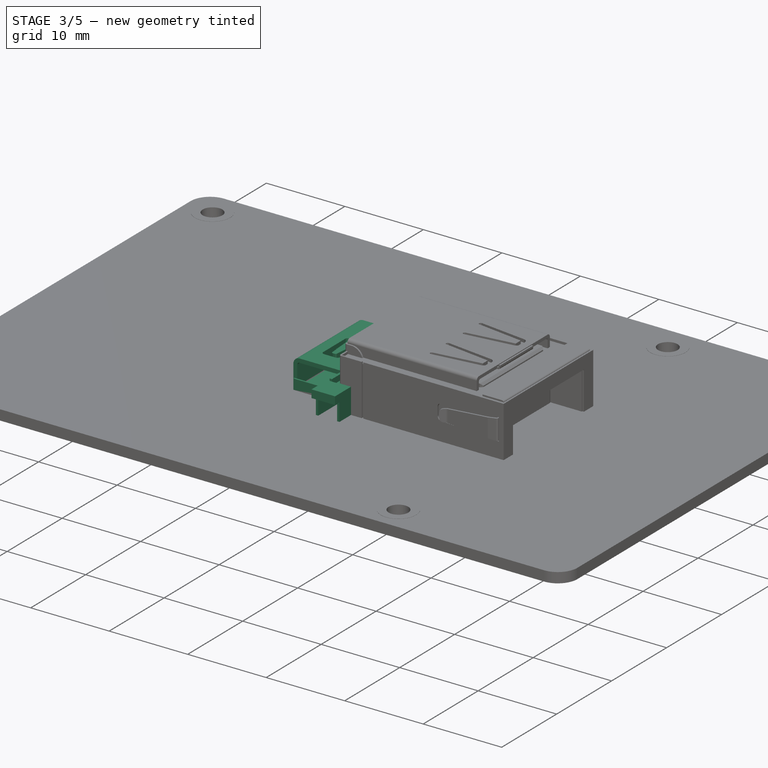
[diagram: stage 3 of 5 — iso view after this stage's code; geometry added in this stage tinted green]
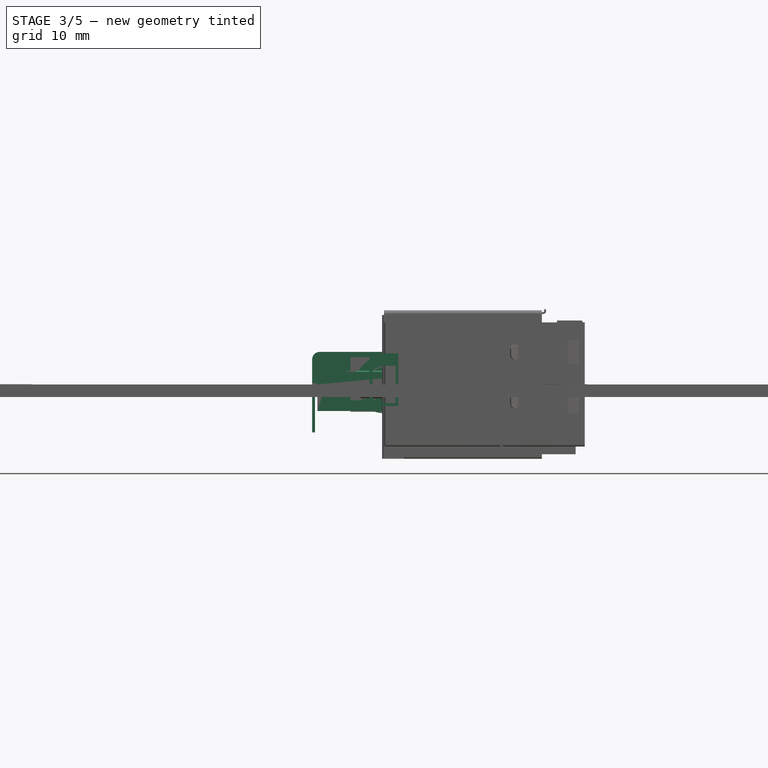
[diagram: stage 3 of 5 — front view after this stage's code; geometry added in this stage tinted green]
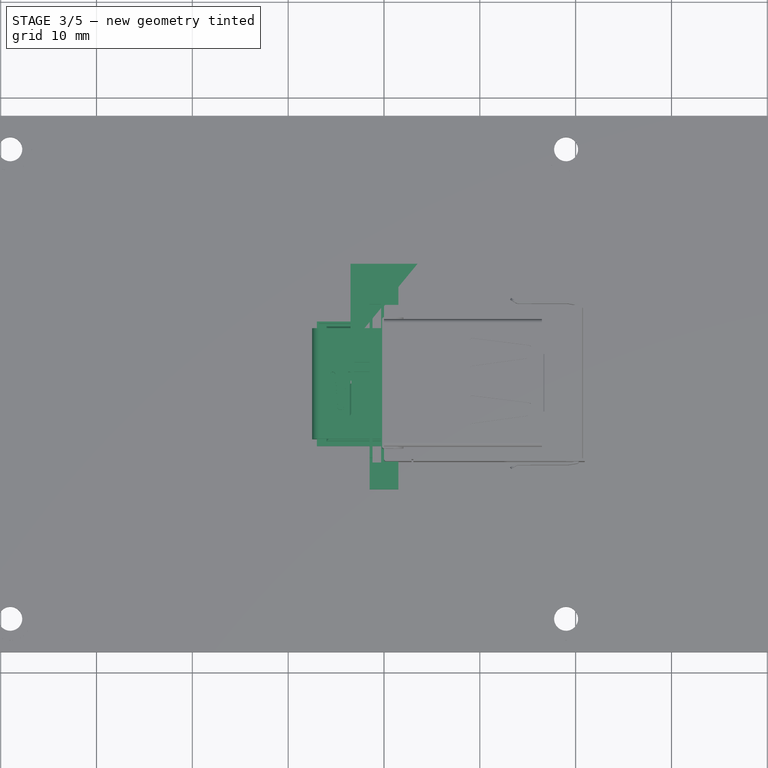
[diagram: stage 3 of 5 — top view after this stage's code; geometry added in this stage tinted green]
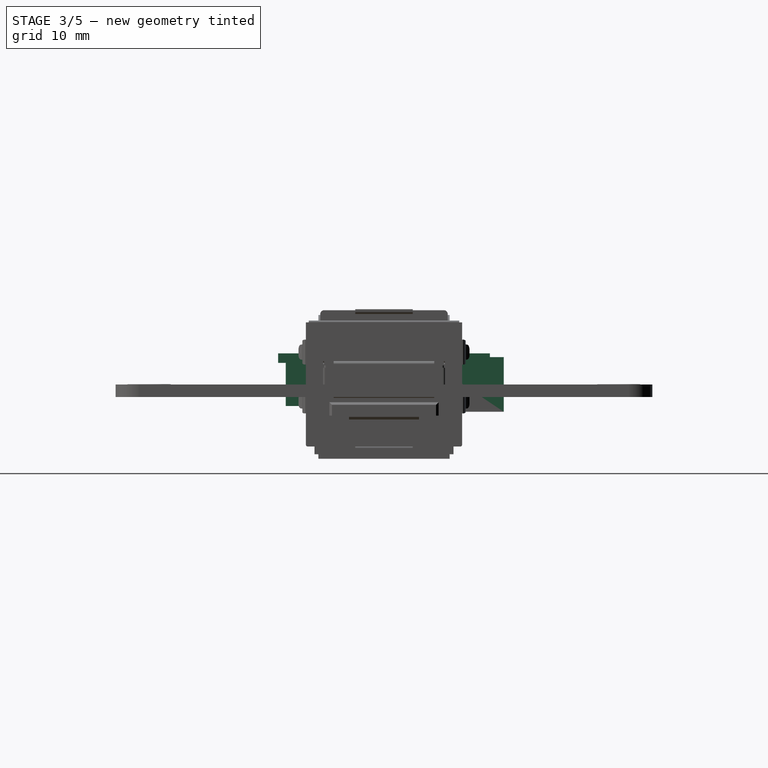
[diagram: stage 3 of 5 — right view after this stage's code; geometry added in this stage tinted green]
FEATURE [PartDesign::Body] Body004  label="CameraAssembly"
  AutoGroupSolids = false
  ExportMode = 0
  Group = -> [Sketch005,Pad006,Sketch006,Pocket,Sketch007,Pocket001,Sketch008,Pad007,Sketch009,Pad008]
  Origin = -> Origin006
  Placement = pos=(2.7,-16.55,2.25) rot=(0,0,1;0rad)
  Tip = -> Pad008
  _ExportChildren = -> [Pad006,Pocket,Pocket001,Pad007,Pad008]
  _GroupVersion = 1
FEATURE [Sketcher::SketchObject] Sketch010
  FullyConstrained = true
  MapMode = 5
  Placement = pos=(0,0,0) rot=(1,0,0;1.5708rad)
  Support = -> [XZ_Plane006]
  sketch-geometry (4):
    g0: LineSegment StartX=-1.5 StartY=2.25 StartZ=0 EndX=1.5 EndY=2.25 EndZ=0
    g1: LineSegment StartX=1.5 StartY=2.25 StartZ=0 EndX=1.5 EndY=-2.25 EndZ=0
    g2: LineSegment StartX=1.5 StartY=-2.25 StartZ=0 EndX=-1.5 EndY=-2.25 EndZ=0
    g3: LineSegment StartX=-1.5 StartY=-2.25 StartZ=0 EndX=-1.5 EndY=2.25 EndZ=0
  constraints (11):
    c: Coincident(g0,g1)
    c: Coincident(g1,g2)
    c: Coincident(g2,g3)
    c: Coincident(g3,g0)
    c: Horizontal(g0)
    c: Horizontal(g2)
    c: Vertical(g1)
    c: Vertical(g3)
    c: Symmetric(g0,g1,g-1)
    c: DistanceX(g0,g0) = 3
    c: DistanceY(g1,g1) = 4.5
FEATURE [Sketcher::SketchObject] Sketch011
  AttachmentOffset = pos=(0,0,-2.25) rot=(0,0,1;0rad)
  FullyConstrained = true
  MapMode = 5
  Placement = pos=(0,0,-2.25) rot=(0,0,1;0rad)
  Support = -> [XY_Plane006]
  sketch-geometry (74):
    g0: LineSegment StartX=-2.5 StartY=-7.15 StartZ=0 EndX=2.5 EndY=-7.15 EndZ=0
    g1: LineSegment StartX=2.5 StartY=-7.15 StartZ=0 EndX=2.5 EndY=-7.45 EndZ=0
    g2: LineSegment StartX=2.5 StartY=-7.45 StartZ=0 EndX=-2.5 EndY=-7.45 EndZ=0
    g3: LineSegment StartX=-2.5 StartY=-7.45 StartZ=0 EndX=-2.5 EndY=-7.15 EndZ=0
    g4: LineSegment StartX=-2.5 StartY=-6.10055 StartZ=0 EndX=2.5 EndY=-6.10055 EndZ=0
    g5: LineSegment StartX=2.5 StartY=-6.10055 StartZ=0 EndX=2.5 EndY=-6.40055 EndZ=0
    g6: LineSegment StartX=2.5 StartY=-6.40055 StartZ=0 EndX=-2.5 EndY=-6.40055 EndZ=0
    g7: LineSegment StartX=-2.5 StartY=-6.40055 StartZ=0 EndX=-2.5 EndY=-6.10055 EndZ=0
    g8: LineSegment [constr] StartX=-2.5 StartY=-7.15 StartZ=0 EndX=-2.5 EndY=-6.10055 EndZ=0
    g9: LineSegment StartX=-2.5 StartY=-5.0511 StartZ=0 EndX=2.5 EndY=-5.0511 EndZ=0
    g10: LineSegment StartX=2.5 StartY=-5.0511 StartZ=0 EndX=2.5 EndY=-5.3511 EndZ=0
    g11: LineSegment StartX=2.5 StartY=-5.3511 StartZ=0 EndX=-2.5 EndY=-5.3511 EndZ=0
    g12: LineSegment StartX=-2.5 StartY=-5.3511 StartZ=0 EndX=-2.5 EndY=-5.0511 EndZ=0
    g13: LineSegment [constr] StartX=-2.5 StartY=-6.10055 StartZ=0 EndX=-2.5 EndY=-5.0511 EndZ=0
    g14: LineSegment StartX=-2.5 StartY=-4.00165 StartZ=0 EndX=2.5 EndY=-4.00165 EndZ=0
    g15: LineSegment StartX=2.5 StartY=-4.00165 StartZ=0 EndX=2.5 EndY=-4.30165 EndZ=0
    g16: LineSegment StartX=2.5 StartY=-4.30165 StartZ=0 EndX=-2.5 EndY=-4.30165 EndZ=0
    g17: LineSegment StartX=-2.5 StartY=-4.30165 StartZ=0 EndX=-2.5 EndY=-4.00165 EndZ=0
    g18: LineSegment [constr] StartX=-2.5 StartY=-5.0511 StartZ=0 EndX=-2.5 EndY=-4.00165 EndZ=0
    g19: LineSegment StartX=-2.5 StartY=-2.95221 StartZ=0 EndX=2.5 EndY=-2.95221 EndZ=0
    g20: LineSegment StartX=2.5 StartY=-2.95221 StartZ=0 EndX=2.5 EndY=-3.25221 EndZ=0
    g21: LineSegment StartX=2.5 StartY=-3.25221 StartZ=0 EndX=-2.5 EndY=-3.25221 EndZ=0
    g22: LineSegment StartX=-2.5 StartY=-3.25221 StartZ=0 EndX=-2.5 EndY=-2.95221 EndZ=0
    g23: LineSegment [constr] StartX=-2.5 StartY=-4.00165 StartZ=0 EndX=-2.5 EndY=-2.95221 EndZ=0
    g24: LineSegment StartX=-2.5 StartY=-1.90276 StartZ=0 EndX=2.5 EndY=-1.90276 EndZ=0
    g25: LineSegment StartX=2.5 StartY=-1.90276 StartZ=0 EndX=2.5 EndY=-2.20276 EndZ=0
    g26: LineSegment StartX=2.5 StartY=-2.20276 StartZ=0 EndX=-2.5 EndY=-2.20276 EndZ=0
    g27: LineSegment StartX=-2.5 StartY=-2.20276 StartZ=0 EndX=-2.5 EndY=-1.90276 EndZ=0
    g28: LineSegment [constr] StartX=-2.5 StartY=-2.95221 StartZ=0 EndX=-2.5 EndY=-1.90276 EndZ=0
    g29: LineSegment StartX=-2.5 StartY=-0.853309 StartZ=0 EndX=2.5 EndY=-0.853309 EndZ=0
    g30: LineSegment StartX=2.5 StartY=-0.853309 StartZ=0 EndX=2.5 EndY=-1.15331 EndZ=0
    g31: LineSegment StartX=2.5 StartY=-1.15331 StartZ=0 EndX=-2.5 EndY=-1.15331 EndZ=0
    g32: LineSegment StartX=-2.5 StartY=-1.15331 StartZ=0 EndX=-2.5 EndY=-0.853309 EndZ=0
    g33: LineSegment [constr] StartX=-2.5 StartY=-1.90276 StartZ=0 EndX=-2.5 EndY=-0.853309 EndZ=0
    g34: LineSegment StartX=-2.5 StartY=0.196139 StartZ=0 EndX=2.5 EndY=0.196139 EndZ=0
    g35: LineSegment StartX=2.5 StartY=0.196139 StartZ=0 EndX=2.5 EndY=-0.103861 EndZ=0
    g36: LineSegment StartX=2.5 StartY=-0.103861 StartZ=0 EndX=-2.5 EndY=-0.103861 EndZ=0
    g37: LineSegment StartX=-2.5 StartY=-0.103861 StartZ=0 EndX=-2.5 EndY=0.196139 EndZ=0
    g38: LineSegment [constr] StartX=-2.5 StartY=-0.853309 StartZ=0 EndX=-2.5 EndY=0.196139 EndZ=0
    g39: LineSegment StartX=-2.5 StartY=1.24559 StartZ=0 EndX=2.5 EndY=1.24559 EndZ=0
    g40: LineSegment StartX=2.5 StartY=1.24559 StartZ=0 EndX=2.5 EndY=0.945587 EndZ=0
    g41: LineSegment StartX=2.5 StartY=0.945587 StartZ=0 EndX=-2.5 EndY=0.945587 EndZ=0
    g42: LineSegment StartX=-2.5 StartY=0.945587 StartZ=0 EndX=-2.5 EndY=1.24559 EndZ=0
    g43: LineSegment [constr] StartX=-2.5 StartY=0.196139 StartZ=0 EndX=-2.5 EndY=1.24559 EndZ=0
    g44: LineSegment StartX=-2.5 StartY=2.29504 StartZ=0 EndX=2.5 EndY=2.29504 EndZ=0
    g45: LineSegment StartX=2.5 StartY=2.29504 StartZ=0 EndX=2.5 EndY=1.99504 EndZ=0
    g46: LineSegment StartX=2.5 StartY=1.99504 StartZ=0 EndX=-2.5 EndY=1.99504 EndZ=0
    g47: LineSegment StartX=-2.5 StartY=1.99504 StartZ=0 EndX=-2.5 EndY=2.29504 EndZ=0
    g48: LineSegment [constr] StartX=-2.5 StartY=1.24559 StartZ=0 EndX=-2.5 EndY=2.29504 EndZ=0
    g49: LineSegment StartX=-2.5 StartY=3.34448 StartZ=0 EndX=2.5 EndY=3.34448 EndZ=0
    g50: LineSegment StartX=2.5 StartY=3.34448 StartZ=0 EndX=2.5 EndY=3.04448 EndZ=0
    g51: LineSegment StartX=2.5 StartY=3.04448 StartZ=0 EndX=-2.5 EndY=3.04448 EndZ=0
    g52: LineSegment StartX=-2.5 StartY=3.04448 StartZ=0 EndX=-2.5 EndY=3.34448 EndZ=0
    g53: LineSegment [constr] StartX=-2.5 StartY=2.29504 StartZ=0 EndX=-2.5 EndY=3.34448 EndZ=0
    g54: LineSegment StartX=-2.5 StartY=4.39393 StartZ=0 EndX=2.5 EndY=4.39393 EndZ=0
    g55: LineSegment StartX=2.5 StartY=4.39393 StartZ=0 EndX=2.5 EndY=4.09393 EndZ=0
    g56: LineSegment StartX=2.5 StartY=4.09393 StartZ=0 EndX=-2.5 EndY=4.09393 EndZ=0
    g57: LineSegment StartX=-2.5 StartY=4.09393 StartZ=0 EndX=-2.5 EndY=4.39393 EndZ=0
    g58: LineSegment [constr] StartX=-2.5 StartY=3.34448 StartZ=0 EndX=-2.5 EndY=4.39393 EndZ=0
    g59: LineSegment StartX=-2.5 StartY=5.44338 StartZ=0 EndX=2.5 EndY=5.44338 EndZ=0
    g60: LineSegment StartX=2.5 StartY=5.44338 StartZ=0 EndX=2.5 EndY=5.14338 EndZ=0
    g61: LineSegment StartX=2.5 StartY=5.14338 StartZ=0 EndX=-2.5 EndY=5.14338 EndZ=0
    g62: LineSegment StartX=-2.5 StartY=5.14338 StartZ=0 EndX=-2.5 EndY=5.44338 EndZ=0
    g63: LineSegment [constr] StartX=-2.5 StartY=4.39393 StartZ=0 EndX=-2.5 EndY=5.44338 EndZ=0
    g64: LineSegment StartX=-2.5 StartY=6.49283 StartZ=0 EndX=2.5 EndY=6.49283 EndZ=0
    g65: LineSegment StartX=2.5 StartY=6.49283 StartZ=0 EndX=2.5 EndY=6.19283 EndZ=0
    g66: LineSegment StartX=2.5 StartY=6.19283 StartZ=0 EndX=-2.5 EndY=6.19283 EndZ=0
    g67: LineSegment StartX=-2.5 StartY=6.19283 StartZ=0 EndX=-2.5 EndY=6.49283 EndZ=0
    g68: LineSegment [constr] StartX=-2.5 StartY=5.44338 StartZ=0 EndX=-2.5 EndY=6.49283 EndZ=0
    g69: LineSegment StartX=-2.5 StartY=7.54228 StartZ=0 EndX=2.5 EndY=7.54228 EndZ=0
    g70: LineSegment StartX=2.5 StartY=7.54228 StartZ=0 EndX=2.5 EndY=7.24228 EndZ=0
    g71: LineSegment StartX=2.5 StartY=7.24228 StartZ=0 EndX=-2.5 EndY=7.24228 EndZ=0
    g72: LineSegment StartX=-2.5 StartY=7.24228 StartZ=0 EndX=-2.5 EndY=7.54228 EndZ=0
    g73: LineSegment [constr] StartX=-2.5 StartY=6.49283 StartZ=0 EndX=-2.5 EndY=7.54228 EndZ=0
  constraints (207):
    c: Coincident(g0,g1)
    c: Coincident(g1,g2)
    c: Coincident(g2,g3)
    c: Coincident(g3,g0)
    c: Horizontal(g2)
    c: Vertical(g1)
    c: Vertical(g3)
    c: Symmetric(g0,g0,g-2)
    c: DistanceY(g1,g1) = 0.3
    c: DistanceX(g0,g0) = 5
    c: DistanceY(g0,g-1) = 7.15
    c: Coincident(g4,g5)
    c: Coincident(g5,g6)
    c: Coincident(g6,g7)
    c: Coincident(g7,g4)
    c: Horizontal(g6)
    c: Vertical(g5)
    c: Vertical(g7)
    c: Equal(g1,g5) = 0.3
    c: Equal(g0,g4) = 5
    c: Coincident(g0,g8)
    c: Coincident(g4,g8)
    c: Distance(g8) = 1.04945
    c: Angle(g8) = 1.5708
    c: Coincident(g9,g10)
    c: Coincident(g10,g11)
    c: Coincident(g11,g12)
    c: Coincident(g12,g9)
    c: Horizontal(g11)
    c: Vertical(g10)
    c: Vertical(g12)
    c: Equal(g1,g10) = 0.3
    c: Equal(g0,g9) = 5
    c: Coincident(g4,g13)
    c: Coincident(g9,g13)
    c: Equal(g8,g13)
    c: Parallel(g13,g8)
    c: Coincident(g14,g15)
    c: Coincident(g15,g16)
    c: Coincident(g16,g17)
    c: Coincident(g17,g14)
    c: Horizontal(g16)
    c: Vertical(g15)
    c: Vertical(g17)
    c: Equal(g1,g15) = 0.3
    c: Equal(g0,g14) = 5
    c: Coincident(g9,g18)
    c: Coincident(g14,g18)
    c: Equal(g8,g18)
    c: Parallel(g18,g8)
    c: Coincident(g19,g20)
    c: Coincident(g20,g21)
    c: Coincident(g21,g22)
    c: Coincident(g22,g19)
    c: Horizontal(g21)
    c: Vertical(g20)
    c: Vertical(g22)
    c: Equal(g1,g20) = 0.3
    c: Equal(g0,g19) = 5
    c: Coincident(g14,g23)
    c: Coincident(g19,g23)
    c: Equal(g8,g23)
    c: Parallel(g23,g8)
    c: Coincident(g24,g25)
    c: Coincident(g25,g26)
    c: Coincident(g26,g27)
    c: Coincident(g27,g24)
    c: Horizontal(g26)
    c: Vertical(g25)
    c: Vertical(g27)
    c: Equal(g1,g25) = 0.3
    c: Equal(g0,g24) = 5
    c: Coincident(g19,g28)
    c: Coincident(g24,g28)
    c: Equal(g8,g28)
    c: Parallel(g28,g8)
    c: Coincident(g29,g30)
    c: Coincident(g30,g31)
    c: Coincident(g31,g32)
    c: Coincident(g32,g29)
    c: Horizontal(g31)
    c: Vertical(g30)
    c: Vertical(g32)
    c: Equal(g1,g30) = 0.3
    c: Equal(g0,g29) = 5
    c: Coincident(g24,g33)
    c: Coincident(g29,g33)
    c: Equal(g8,g33)
    c: Parallel(g33,g8)
    c: Coincident(g34,g35)
    c: Coincident(g35,g36)
    c: Coincident(g36,g37)
    c: Coincident(g37,g34)
    c: Horizontal(g36)
    c: Vertical(g35)
    c: Vertical(g37)
    c: Equal(g1,g35) = 0.3
    c: Equal(g0,g34) = 5
    c: Coincident(g29,g38)
    c: Coincident(g34,g38)
    c: Equal(g8,g38)
    c: Parallel(g38,g8)
    c: Coincident(g39,g40)
    c: Coincident(g40,g41)
    c: Coincident(g41,g42)
    c: Coincident(g42,g39)
    c: Horizontal(g41)
    c: Vertical(g40)
    c: Vertical(g42)
    c: Equal(g1,g40) = 0.3
    c: Equal(g0,g39) = 5
    c: Coincident(g34,g43)
    c: Coincident(g39,g43)
    c: Equal(g8,g43)
    c: Parallel(g43,g8)
    c: Coincident(g44,g45)
    c: Coincident(g45,g46)
    c: Coincident(g46,g47)
    c: Coincident(g47,g44)
    c: Horizontal(g46)
    c: Vertical(g45)
    c: Vertical(g47)
    c: Equal(g1,g45) = 0.3
    c: Equal(g0,g44) = 5
    c: Coincident(g39,g48)
    c: Coincident(g44,g48)
    c: Equal(g8,g48)
    c: Parallel(g48,g8)
    c: Coincident(g49,g50)
    c: Coincident(g50,g51)
    c: Coincident(g51,g52)
    c: Coincident(g52,g49)
    c: Horizontal(g51)
    c: Vertical(g50)
    c: Vertical(g52)
    c: Equal(g1,g50) = 0.3
    c: Equal(g0,g49) = 5
    c: Coincident(g44,g53)
    c: Coincident(g49,g53)
    c: Equal(g8,g53)
    c: Parallel(g53,g8)
    c: Coincident(g54,g55)
    c: Coincident(g55,g56)
    c: Coincident(g56,g57)
    c: Coincident(g57,g54)
    c: Horizontal(g56)
    c: Vertical(g55)
    c: Vertical(g57)
    c: Equal(g1,g55) = 0.3
    c: Equal(g0,g54) = 5
    c: Coincident(g49,g58)
    c: Coincident(g54,g58)
    c: Equal(g8,g58)
    c: Parallel(g58,g8)
    c: Coincident(g59,g60)
    c: Coincident(g60,g61)
    c: Coincident(g61,g62)
    c: Coincident(g62,g59)
    c: Horizontal(g61)
    c: Vertical(g60)
    c: Vertical(g62)
    c: Equal(g1,g60) = 0.3
    c: Equal(g0,g59) = 5
    c: Coincident(g54,g63)
    c: Coincident(g59,g63)
    c: Equal(g8,g63)
    c: Parallel(g63,g8)
    c: Coincident(g64,g65)
    c: Coincident(g65,g66)
    c: Coincident(g66,g67)
    c: Coincident(g67,g64)
    c: Horizontal(g66)
    c: Vertical(g65)
    c: Vertical(g67)
    c: Equal(g1,g65) = 0.3
    c: Equal(g0,g64) = 5
    c: Coincident(g59,g68)
    c: Coincident(g64,g68)
    c: Equal(g8,g68)
    c: Parallel(g68,g8)
    c: Coincident(g69,g70)
    c: Coincident(g70,g71)
    c: Coincident(g71,g72)
    c: Coincident(g72,g69)
    c: Horizontal(g71)
    c: Vertical(g70)
    c: Vertical(g72)
    c: Equal(g1,g70) = 0.3
    c: Equal(g0,g69) = 5
    c: Coincident(g64,g73)
    c: Coincident(g69,g73)
    c: Equal(g8,g73)
    c: Parallel(g73,g8)
    c: Horizontal(g4)
    c: Horizontal(g9)
    c: Horizontal(g14)
    c: Horizontal(g19)
    c: Horizontal(g24)
    c: Horizontal(g29)
    c: Horizontal(g34)
    c: Horizontal(g39)
    c: Horizontal(g44)
    c: Horizontal(g49)
    c: Horizontal(g54)
    c: Horizontal(g59)
    c: Horizontal(g64)
    c: Horizontal(g69)
FEATURE [PartDesign::Pad] Pad009
  ClaimChildren = false
  Direction = (1,1,1)
  Fit = 0
  FitJoin = 0
  InnerFit = 0
  InnerFitJoin = 0
  InnerTaperAngle = 0
  InnerTaperAngleRev = 0
  Length = 20.5
  Length2 = 100
  Midplane = true
  NewSolid = false
  Placement = pos=(0,0,0) rot=(1,0,0;1.5708rad)
  Profile = -> Sketch010
  Refine = true
  Suppress = false
  Type = 0
FEATURE [Sketcher::SketchObject] Sketch012
  ExternalGeometry = -> [Pad009]
  FullyConstrained = true
  MapMode = 5
  Placement = pos=(0,0,0) rot=(1,0,0;1.5708rad)
  Support = -> [XZ_Plane006]
  sketch-geometry (4):
    g0: LineSegment StartX=-1.2 StartY=1.95 StartZ=0 EndX=1.2 EndY=1.95 EndZ=0
    g1: LineSegment StartX=1.2 StartY=1.95 StartZ=0 EndX=1.2 EndY=-1.95 EndZ=0
    g2: LineSegment StartX=1.2 StartY=-1.95 StartZ=0 EndX=-1.2 EndY=-1.95 EndZ=0
    g3: LineSegment StartX=-1.2 StartY=-1.95 StartZ=0 EndX=-1.2 EndY=1.95 EndZ=0
  constraints (10):
    c: Coincident(g0,g1)
    c: Coincident(g1,g2)
    c: Coincident(g2,g3)
    c: Coincident(g3,g0)
    c: Horizontal(g2)
    c: Vertical(g3)
    c: Symmetric(g0,g0,g-2)
    c: Symmetric(g0,g1,g-1)
    c: DistanceY(g0,g-4) = 0.3
    c: DistanceX(g0,g-4) = 0.3
FEATURE [PartDesign::Pocket] Pocket002
  BaseFeature = -> Pad009
  ClaimChildren = false
  Fit = 0
  FitJoin = 0
  InnerFit = 0
  InnerFitJoin = 0
  InnerTaperAngle = 0
  InnerTaperAngleRev = 0
  Length = 5
  Length2 = 100
  Midplane = true
  NewSolid = false
  Placement = pos=(0,0,0) rot=(1,0,0;1.5708rad)
  Profile = -> Sketch012
  Refine = true
  Suppress = false
  Type = 1
FEATURE [Sketcher::SketchObject] Sketch013
  AttachmentOffset = pos=(0,0,2.25) rot=(0,0,1;0rad)
  FullyConstrained = true
  MapMode = 5
  Placement = pos=(0,0,2.25) rot=(0,0,1;0rad)
  Support = -> [XY_Plane006]
  sketch-geometry (16):
    g0: LineSegment StartX=-1.5 StartY=7.75 StartZ=0 EndX=-1.2 EndY=7.75 EndZ=0
    g1: LineSegment StartX=-1.2 StartY=7.75 StartZ=0 EndX=-1.2 EndY=-7.75 EndZ=0
    g2: LineSegment StartX=-1.2 StartY=-7.75 StartZ=0 EndX=-1.5 EndY=-7.75 EndZ=0
    g3: LineSegment StartX=-1.5 StartY=-7.75 StartZ=0 EndX=-1.5 EndY=7.75 EndZ=0
    g4: LineSegment StartX=-1.5 StartY=8.25 StartZ=0 EndX=-0.3 EndY=8.25 EndZ=0
    g5: LineSegment StartX=-0.3 StartY=8.25 StartZ=0 EndX=-0.3 EndY=-8.25 EndZ=0
    g6: LineSegment StartX=-0.3 StartY=-8.25 StartZ=0 EndX=-1.5 EndY=-8.25 EndZ=0
    g7: LineSegment StartX=-1.5 StartY=-8.25 StartZ=0 EndX=-1.5 EndY=-11.05 EndZ=0
    g8: LineSegment StartX=-1.5 StartY=-11.05 StartZ=0 EndX=1.5 EndY=-11.05 EndZ=0
    g9: LineSegment StartX=1.5 StartY=-11.05 StartZ=0 EndX=1.5 EndY=-6.5 EndZ=0
    g10: LineSegment StartX=1.5 StartY=-6.5 StartZ=0 EndX=2.5 EndY=-5.5 EndZ=0
    g11: LineSegment StartX=2.5 StartY=-5.5 StartZ=0 EndX=2.5 EndY=5.5 EndZ=0
    g12: LineSegment StartX=2.5 StartY=5.5 StartZ=0 EndX=1.5 EndY=6.5 EndZ=0
    g13: LineSegment StartX=1.5 StartY=6.5 StartZ=0 EndX=1.5 EndY=11.05 EndZ=0
    g14: LineSegment StartX=1.5 StartY=11.05 StartZ=0 EndX=-1.5 EndY=11.05 EndZ=0
    g15: LineSegment StartX=-1.5 StartY=11.05 StartZ=0 EndX=-1.5 EndY=8.25 EndZ=0
  constraints (42):
    c: Coincident(g0,g1)
    c: Coincident(g1,g2)
    c: Coincident(g2,g3)
    c: Coincident(g3,g0)
    c: Horizontal(g0)
    c: Horizontal(g2)
    c: Vertical(g1)
    c: Symmetric(g0,g2,g-1)
    c: DistanceX(g0,g0) = 0.3
    c: DistanceY(g3,g3) = 15.5
    c: DistanceX(g0,g-1) = 1.5
    c: Horizontal(g4)
    c: Coincident(g4,g5)
    c: Coincident(g5,g6)
    c: Coincident(g6,g7)
    c: Vertical(g7)
    c: Coincident(g7,g8)
    c: Horizontal(g8)
    c: Coincident(g8,g9)
    c: Vertical(g9)
    c: Coincident(g9,g10)
    c: Coincident(g10,g11)
    c: Coincident(g11,g12)
    c: Coincident(g12,g13)
    c: Coincident(g13,g14)
    c: Horizontal(g14)
    c: Coincident(g14,g15)
    c: Coincident(g15,g4)
    c: Vertical(g15)
    c: DistanceX(g4,g-1) = 1.5
    c: DistanceY(g15,g15) = 2.8
    c: Symmetric(g6,g4,g-1)
    c: Symmetric(g4,g5,g-1)
    c: DistanceX(g4,g4) = 1.2
    c: DistanceY(g-1,g4) = 8.25
    c: Symmetric(g13,g8,g-1)
    c: DistanceX(g14,g14) = 3
    c: Symmetric(g12,g9,g-1)
    c: DistanceY(g13,g13) = 4.55
    c: Symmetric(g11,g10,g-1)
    c: DistanceX(g-1,g11) = 2.5
    c: DistanceY(g-1,g11) = 5.5
FEATURE [Sketcher::SketchObject] Sketch014
  ExternalGeometry = -> [Pocket002]
  FullyConstrained = true
  MapMode = 5
  Placement = pos=(0,0,2.25) rot=(0,0,1;3.14159rad)
  Support = -> [Pocket002]
  sketch-geometry (4):
    g0: LineSegment StartX=-1.2 StartY=9.95 StartZ=0 EndX=1.2 EndY=9.95 EndZ=0
    g1: LineSegment StartX=1.2 StartY=9.95 StartZ=0 EndX=1.2 EndY=-9.95 EndZ=0
    g2: LineSegment StartX=1.2 StartY=-9.95 StartZ=0 EndX=-1.2 EndY=-9.95 EndZ=0
    g3: LineSegment StartX=-1.2 StartY=-9.95 StartZ=0 EndX=-1.2 EndY=9.95 EndZ=0
  constraints (10):
    c: Coincident(g0,g1)
    c: Coincident(g1,g2)
    c: Coincident(g2,g3)
    c: Coincident(g3,g0)
    c: Horizontal(g2)
    c: Vertical(g3)
    c: Symmetric(g0,g0,g-2)
    c: Symmetric(g0,g1,g-1)
    c: DistanceX(g0,g-3) = 0.3
    c: DistanceY(g0,g-3) = 0.3
FEATURE [PartDesign::Pocket] Pocket003
  BaseFeature = -> Pocket002
  ClaimChildren = false
  Fit = 0
  FitJoin = 0
  InnerFit = 0
  InnerFitJoin = 0
  InnerTaperAngle = 0
  InnerTaperAngleRev = 0
  Length = 5
  Length2 = 100
  NewSolid = false
  Placement = pos=(0,0,0) rot=(1,0,0;1.5708rad)
  Profile = -> Sketch014
  Refine = true
  Suppress = false
  Type = 2
FEATURE [PartDesign::Pad] Pad010
  BaseFeature = -> Pocket003
  ClaimChildren = false
  Direction = (1,1,1)
  Fit = 0
  FitJoin = 0
  InnerFit = 0
  InnerFitJoin = 0
  InnerTaperAngle = 0
  InnerTaperAngleRev = 0
  Length = 1
  Length2 = 100
  NewSolid = false
  Placement = pos=(0,0,0) rot=(1,0,0;1.5708rad)
  Profile = -> Sketch013
  Refine = true
  Suppress = false
  Type = 0
FEATURE [PartDesign::Body] Body005  label="CameraAssembly1"
  AutoGroupSolids = false
  ExportMode = 0
  Group = -> [Sketch010,Pad009,Sketch012,Pocket002,Sketch014,Pocket003,Sketch013,Pad010,Sketch011,Pad011]
  Origin = -> Origin007
  Placement = pos=(-39,0.05,2.25) rot=(0,0,1;3.14159rad)
  Tip = -> Pad011
  _ExportChildren = -> [Pad009,Pocket002,Pocket003,Pad010,Pad011]
  _GroupVersion = 1
FEATURE [Sketcher::SketchObject] Sketch015
  FullyConstrained = true
  MapMode = 5
  Placement = pos=(0,0,0) rot=(1,0,0;1.5708rad)
  Support = -> [XZ_Plane007]
  sketch-geometry (12):
    g0: LineSegment StartX=-6.7 StartY=3.4 StartZ=0 EndX=6.7 EndY=3.4 EndZ=0
    g1: LineSegment StartX=7.5 StartY=2.6 StartZ=0 EndX=7.5 EndY=0.15 EndZ=0
    g2: LineSegment StartX=-7.5 StartY=0.15 StartZ=0 EndX=-7.5 EndY=2.6 EndZ=0
    g3: ArcOfCircle CenterX=6.7 CenterY=2.6 CenterZ=0 NormalX=0 NormalY=0 NormalZ=1 AngleXU=0 Radius=0.8 StartAngle=0 EndAngle=1.5708
    g4: ArcOfCircle CenterX=-6.7 CenterY=2.6 CenterZ=0 NormalX=0 NormalY=0 NormalZ=1 AngleXU=0 Radius=0.8 StartAngle=1.5708 EndAngle=3.14159
    g5: ArcOfCircle CenterX=6.7 CenterY=0.15 CenterZ=0 NormalX=0 NormalY=0 NormalZ=1 AngleXU=0 Radius=0.8 StartAngle=5.02655 EndAngle=6.28319
    g6: ArcOfCircle CenterX=-6.7 CenterY=0.15 CenterZ=0 NormalX=0 NormalY=0 NormalZ=1 AngleXU=0 Radius=0.8 StartAngle=3.14159 EndAngle=4.39823
    g7: LineSegment StartX=6.94721 StartY=-0.610845 StartZ=0 EndX=6.32069 EndY=-0.814416 EndZ=0
    g8: LineSegment StartX=6.32069 StartY=-0.814416 StartZ=0 EndX=5.2 EndY=-2.15 EndZ=0
    g9: LineSegment StartX=5.2 StartY=-2.15 StartZ=0 EndX=-5.2 EndY=-2.15 EndZ=0
    g10: LineSegment StartX=-5.2 StartY=-2.15 StartZ=0 EndX=-6.32069 EndY=-0.814416 EndZ=0
    g11: LineSegment StartX=-6.32069 StartY=-0.814416 StartZ=0 EndX=-6.94721 EndY=-0.610845 EndZ=0
  constraints (28):
    c: Horizontal(g0)
    c: Vertical(g1)
    c: Tangent(g0,g3) = 1.5708
    c: Tangent(g1,g3) = 1.5708
    c: Tangent(g0,g4) = 1.5708
    c: Tangent(g2,g4) = 1.5708
    c: Tangent(g1,g5) = 1.5708
    c: Tangent(g2,g6) = 1.5708
    c: Symmetric(g5,g6,g-2)
    c: Symmetric(g2,g1,g-2)
    c: DistanceX(g2,g1) = 15
    c: Tangent(g5,g7) = 1.5708
    c: Coincident(g7,g8)
    c: Coincident(g8,g9)
    c: Coincident(g9,g10)
    c: Coincident(g10,g11)
    c: Symmetric(g10,g7,g-2)
    c: Symmetric(g8,g9,g-2)
    c: Tangent(g11,g6) = 1.5708
    c: Vertical(g2)
    c: DistanceY(g-1,g0) = 3.4
    c: Radius(g3) = 0.8
    c: DistanceY(g1,g1) = 2.45
    c: Radius(g5) = 0.8
    c: DistanceY(g8,g-1) = 2.15
    c: DistanceX(g9,g9) = 10.4
    c: Angle(g8,g9) = 2.26893
    c: Angle(g8,g7) = 2.58309
FEATURE [PartDesign::Pad] Pad012
  ClaimChildren = false
  Direction = (1,1,1)
  Fit = 0
  FitJoin = 0
  InnerFit = 0
  InnerFitJoin = 0
  InnerTaperAngle = 0
  InnerTaperAngleRev = 0
  Length = 11.55
  Length2 = 100
  Midplane = true
  NewSolid = false
  Placement = pos=(0,0,0) rot=(1,0,0;1.5708rad)
  Profile = -> Sketch015
  Refine = true
  Suppress = false
  Type = 0
FEATURE [PartDesign::Pocket] Pocket004
  BaseFeature = -> Pad012
  ClaimChildren = false
  Fit = -0.5
  FitJoin = 0
  InnerFit = 0
  InnerFitJoin = 0
  InnerTaperAngle = 0
  InnerTaperAngleRev = 0
  Length = 7
  Length2 = 100
  NewSolid = false
  Placement = pos=(0,0,0) rot=(1,0,0;1.5708rad)
  Profile = -> Pad012 [Face14]
  Refine = true
  Reversed = true
  Suppress = false
  Type = 0
FEATURE [Sketcher::SketchObject] Sketch016
  FullyConstrained = true
  MapMode = 5
  Placement = pos=(0,1.225,-1e-15) rot=(1,0,0;1.5708rad)
  Support = -> [Pocket004]
  sketch-geometry (6):
    g0: LineSegment StartX=-4.4 StartY=0 StartZ=0 EndX=4.4 EndY=0 EndZ=0
    g1: LineSegment StartX=4.4 StartY=0 StartZ=0 EndX=5.4 EndY=0.57735 EndZ=0
    g2: LineSegment StartX=5.4 StartY=0.57735 StartZ=0 EndX=5.4 EndY=0.97735 EndZ=0
    g3: LineSegment StartX=5.4 StartY=0.97735 StartZ=0 EndX=-5.4 EndY=0.97735 EndZ=0
    g4: LineSegment StartX=-5.4 StartY=0.97735 StartZ=0 EndX=-5.4 EndY=0.57735 EndZ=0
    g5: LineSegment StartX=-5.4 StartY=0.57735 StartZ=0 EndX=-4.4 EndY=0 EndZ=0
  constraints (16):
    c: PointOnObject(g0,g-1)
    c: Coincident(g0,g1)
    c: Coincident(g1,g2)
    c: Vertical(g2)
    c: Coincident(g2,g3)
    c: Coincident(g3,g4)
    c: Vertical(g4)
    c: Coincident(g4,g5)
    c: Coincident(g5,g0)
    c: DistanceX(g3,g3) = 10.8
    c: Symmetric(g3,g2,g-2)
    c: Symmetric(g0,g0,g-2)
    c: DistanceX(g0,g0) = 8.8
    c: DistanceY(g2,g2) = 0.4
    c: Angle(g1,g0) = 2.61799
    c: Equal(g4,g2)
FEATURE [PartDesign::Pad] Pad013
  BaseFeature = -> Pocket004
  ClaimChildren = false
  Direction = (1,1,1)
  Fit = 0
  FitJoin = 0
  InnerFit = 0
  InnerFitJoin = 0
  InnerTaperAngle = 0
  InnerTaperAngleRev = 0
  Length = 5
  Length2 = 100
  NewSolid = false
  Placement = pos=(0,0,0) rot=(1,0,0;1.5708rad)
  Profile = -> Sketch016
  Refine = true
  Suppress = false
  Type = 0
FEATURE [PartDesign::Fillet] Fillet001
  Base = -> Pad013 [Edge88,Edge90,Edge92,Edge94,Edge86,Edge85]
  BaseFeature = -> Pad013
  NewSolid = false
  Placement = pos=(0,0,0) rot=(1,0,0;1.5708rad)
  Radius = 0.1
  Refine = true
  SupportTransform = false
  Suppress = false
FEATURE [PartDesign::Chamfer] Chamfer003
  Angle = 45
  Base = -> Fillet001 [Edge47]
  BaseFeature = -> Fillet001
  ChamferType = 0
  FlipDirection = false
  NewSolid = false
  Placement = pos=(0,0,0) rot=(1,0,0;1.5708rad)
  Refine = true
  Size = 0.1
  Size2 = 1
  SupportTransform = false
  Suppress = false
FEATURE [Sketcher::SketchObject] Sketch017
  AttachmentOffset = pos=(0,0,-6.4) rot=(0,0,1;0rad)
  ExternalGeometry = -> [Chamfer003]
  FullyConstrained = true
  MapMode = 5
  Placement = pos=(0,6.4,2.8e-15) rot=(1,0,0;1.5708rad)
  Support = -> [XZ_Plane007]
  sketch-geometry (8):
    g0: LineSegment StartX=-6.94721 StartY=-0.610845 StartZ=0 EndX=-6.32069 EndY=-0.814416 EndZ=0
    g1: LineSegment StartX=-6.32069 StartY=-0.814416 StartZ=0 EndX=-5.2 EndY=-2.15 EndZ=0
    g2: LineSegment StartX=-5.2 StartY=-2.15 StartZ=0 EndX=5.2 EndY=-2.15 EndZ=0
    g3: LineSegment StartX=5.2 StartY=-2.15 StartZ=0 EndX=6.32069 EndY=-0.814416 EndZ=0
    g4: LineSegment StartX=6.32069 StartY=-0.814416 StartZ=0 EndX=6.94721 EndY=-0.610845 EndZ=0
    g5: LineSegment StartX=6.94721 StartY=-0.610845 StartZ=0 EndX=6.94721 EndY=-2.76085 EndZ=0
    g6: LineSegment StartX=6.94721 StartY=-2.76085 StartZ=0 EndX=-6.94721 EndY=-2.76085 EndZ=0
    g7: LineSegment StartX=-6.94721 StartY=-2.76085 StartZ=0 EndX=-6.94721 EndY=-0.610845 EndZ=0
  constraints (18):
    c: Coincident(g-5,g0)
    c: Coincident(g0,g-5)
    c: Coincident(g0,g1)
    c: Coincident(g1,g-4)
    c: Coincident(g1,g2)
    c: Coincident(g2,g-3)
    c: Coincident(g2,g3)
    c: Coincident(g3,g-6)
    c: Coincident(g3,g4)
    c: Coincident(g4,g-6)
    c: Coincident(g4,g5)
    c: Vertical(g5)
    c: Coincident(g5,g6)
    c: Horizontal(g6)
    c: Coincident(g6,g7)
    c: Coincident(g7,g0)
    c: Vertical(g7)
    c: DistanceY(g5,g5) = 2.15
FEATURE [PartDesign::Pad] Pad014
  BaseFeature = -> Chamfer003
  ClaimChildren = false
  Direction = (1,1,1)
  Fit = 0
  FitJoin = 0
  InnerFit = 0
  InnerFitJoin = 0
  InnerTaperAngle = 0
  InnerTaperAngleRev = 0
  Length = 10.5
  Length2 = 100
  NewSolid = false
  Placement = pos=(0,0,0) rot=(1,0,0;1.5708rad)
  Profile = -> Sketch017
  Refine = true
  Suppress = false
  Type = 0
FEATURE [Sketcher::SketchObject] Sketch018
  AttachmentOffset = pos=(0,0,0.2) rot=(0,0,1;0rad)
  ExternalGeometry = -> [Pad014]
  FullyConstrained = true
  MapMode = 5
  Placement = pos=(0,0,0.2) rot=(0,0,1;0rad)
  Support = -> [XY_Plane007]
  sketch-geometry (16):
    g0: LineSegment StartX=-7.5 StartY=5.775 StartZ=0 EndX=-7.2 EndY=5.775 EndZ=0
    g1: LineSegment StartX=-7.2 StartY=5.775 StartZ=0 EndX=-7.2 EndY=2.275 EndZ=0
    g2: LineSegment StartX=-7.2 StartY=2.275 StartZ=0 EndX=-7.5 EndY=2.275 EndZ=0
    g3: LineSegment StartX=-7.5 StartY=2.275 StartZ=0 EndX=-7.5 EndY=5.775 EndZ=0
    g4: LineSegment StartX=-7.5 StartY=-0.525 StartZ=0 EndX=-7.2 EndY=-0.525 EndZ=0
    g5: LineSegment StartX=-7.2 StartY=-0.525 StartZ=0 EndX=-7.2 EndY=-1.725 EndZ=0
    g6: LineSegment StartX=-7.2 StartY=-1.725 StartZ=0 EndX=-7.5 EndY=-1.725 EndZ=0
    g7: LineSegment StartX=-7.5 StartY=-1.725 StartZ=0 EndX=-7.5 EndY=-0.525 EndZ=0
    g8: LineSegment StartX=7.5 StartY=5.775 StartZ=0 EndX=7.2 EndY=5.775 EndZ=0
    g9: LineSegment StartX=7.2 StartY=5.775 StartZ=0 EndX=7.2 EndY=2.275 EndZ=0
    g10: LineSegment StartX=7.2 StartY=2.275 StartZ=0 EndX=7.5 EndY=2.275 EndZ=0
    g11: LineSegment StartX=7.5 StartY=2.275 StartZ=0 EndX=7.5 EndY=5.775 EndZ=0
    g12: LineSegment StartX=7.5 StartY=-0.525 StartZ=0 EndX=7.2 EndY=-0.525 EndZ=0
    g13: LineSegment StartX=7.2 StartY=-0.525 StartZ=0 EndX=7.2 EndY=-1.725 EndZ=0
    g14: LineSegment StartX=7.2 StartY=-1.725 StartZ=0 EndX=7.5 EndY=-1.725 EndZ=0
    g15: LineSegment StartX=7.5 StartY=-1.725 StartZ=0 EndX=7.5 EndY=-0.525 EndZ=0
  constraints (47):
    c: Coincident(g0,g1)
    c: Coincident(g1,g2)
    c: Coincident(g2,g3)
    c: Coincident(g3,g0)
    c: Horizontal(g0)
    c: Horizontal(g2)
    c: Vertical(g1)
    c: Vertical(g3)
    c: Coincident(g4,g5)
    c: Coincident(g5,g6)
    c: Coincident(g6,g7)
    c: Coincident(g7,g4)
    c: Horizontal(g4)
    c: Horizontal(g6)
    c: Vertical(g5)
    c: Vertical(g7)
    c: PointOnObject(g4,g-3)
    c: Coincident(g8,g9)
    c: Coincident(g9,g10)
    c: Coincident(g10,g11)
    c: Coincident(g11,g8)
    c: Horizontal(g8)
    c: Horizontal(g10)
    c: Vertical(g9)
    c: Vertical(g11)
    c: PointOnObject(g8,g-4)
    c: Coincident(g12,g13)
    c: Coincident(g13,g14)
    c: Coincident(g14,g15)
    c: Coincident(g15,g12)
    c: Horizontal(g12)
    c: Horizontal(g14)
    c: Vertical(g13)
    c: Vertical(g15)
    c: PointOnObject(g12,g-4)
    c: Horizontal(g0,g8)
    c: Horizontal(g4,g12)
    c: Equal(g4,g12)
    c: Equal(g12,g8)
    c: Equal(g8,g0)
    c: Equal(g1,g9)
    c: Equal(g5,g13)
    c: DistanceX(g0,g0) = 0.3
    c: Coincident(g0,g-3)
    c: DistanceY(g1,g1) = 3.5
    c: DistanceY(g7,g7) = 1.2
    c: DistanceY(g4,g2) = 2.8
FEATURE [PartDesign::Pad] Pad015
  BaseFeature = -> Pad014
  ClaimChildren = false
  Direction = (1,1,1)
  Fit = 0
  FitJoin = 0
  InnerFit = 0
  InnerFitJoin = 0
  InnerTaperAngle = 0
  InnerTaperAngleRev = 0
  Length = 5.2
  Length2 = 100
  NewSolid = false
  Placement = pos=(0,0,0) rot=(1,0,0;1.5708rad)
  Profile = -> Sketch018
  Refine = true
  Reversed = true
  Suppress = false
  Type = 0
FEATURE [Sketcher::SketchObject] Sketch019
  FullyConstrained = true
  MapMode = 5
  Placement = pos=(0,1.5e-15,3.4) rot=(0,0,1;3.14159rad)
  Support = -> [Pad015]
  sketch-geometry (13):
    g0: LineSegment StartX=-4.8 StartY=2.73058 StartZ=0 EndX=-4.2 EndY=2.73058 EndZ=0
    g1: LineSegment StartX=-4.2 StartY=2.73058 StartZ=0 EndX=-3.89919 EndY=-0.989573 EndZ=0
    g2: ArcOfCircle CenterX=-3.65 CenterY=-0.969424 CenterZ=0 NormalX=0 NormalY=0 NormalZ=1 AngleXU=0 Radius=0.25 StartAngle=3.22228 EndAngle=6.28319
    g3: LineSegment StartX=-3.4 StartY=-0.969424 StartZ=0 EndX=-3.4 EndY=3.43058 EndZ=0
    g4: LineSegment StartX=-3.4 StartY=3.43058 StartZ=0 EndX=-5.6 EndY=3.43058 EndZ=0
    g5: LineSegment StartX=-5.6 StartY=3.43058 StartZ=0 EndX=-5.6 EndY=-0.969424 EndZ=0
    g6: ArcOfCircle CenterX=-5.35 CenterY=-0.969424 CenterZ=0 NormalX=0 NormalY=0 NormalZ=1 AngleXU=0 Radius=0.25 StartAngle=3.14159 EndAngle=6.2025
    g7: LineSegment StartX=-5.10081 StartY=-0.989573 StartZ=0 EndX=-4.8 EndY=2.73058 EndZ=0
    g8: LineSegment [constr] StartX=-4.5 StartY=3.43058 StartZ=0 EndX=-4.5 EndY=-1.56942 EndZ=0
    g9: LineSegment StartX=-3.1 StartY=-1.1 StartZ=0 EndX=-1.5 EndY=-1.1 EndZ=0
    g10: LineSegment StartX=-1.5 StartY=-1.1 StartZ=0 EndX=-1.5 EndY=-2.2 EndZ=0
    g11: LineSegment StartX=-1.5 StartY=-2.2 StartZ=0 EndX=-3.1 EndY=-2.2 EndZ=0
    g12: LineSegment StartX=-3.1 StartY=-2.2 StartZ=0 EndX=-3.1 EndY=-1.1 EndZ=0
  constraints (37):
    c: Horizontal(g0)
    c: Coincident(g0,g1)
    c: Tangent(g1,g2) = -1.5708
    c: Coincident(g3,g4)
    c: Horizontal(g4)
    c: Coincident(g4,g5)
    c: Coincident(g7,g0)
    c: Tangent(g6,g7) = -1.5708
    c: Tangent(g2,g3) = -1.5708
    c: Equal(g6,g2)
    c: Radius(g6) = 0.25
    c: Vertical(g3)
    c: DistanceY(g8,g8) = 5
    c: DistanceX(g3) = -3.4
    c: DistanceY(g3) = 3.43058
    c: DistanceY(g3,g3) = 4.4
    c: Symmetric(g3,g4,g8)
    c: Symmetric(g0,g0,g8)
    c: Vertical(g5)
    c: Coincident(g5,g6)
    c: Horizontal(g6,g2)
    c: DistanceX(g0,g0) = 0.6
    c: DistanceY(g0,g3) = 0.7
    c: DistanceX(g4,g4) = 2.2
    c: Horizontal(g6,g5)
    c: Coincident(g9,g10)
    c: Coincident(g10,g11)
    c: Coincident(g11,g12)
    c: Coincident(g12,g9)
    c: Horizontal(g9)
    c: Horizontal(g11)
    c: Vertical(g10)
    c: Vertical(g12)
    c: DistanceX(g11,g11) = 1.6
    c: DistanceY(g10,g10) = 1.1
    c: DistanceX(g9,g-1) = 1.5
    c: DistanceY(g9,g-1) = 1.1
FEATURE [PartDesign::Pocket] Pocket005
  BaseFeature = -> Pad015
  ClaimChildren = false
  Fit = 0
  FitJoin = 0
  InnerFit = 0
  InnerFitJoin = 0
  InnerTaperAngle = 0
  InnerTaperAngleRev = 0
  Length = 5
  Length2 = 100
  NewSolid = false
  Placement = pos=(0,0,0) rot=(1,0,0;1.5708rad)
  Profile = -> Sketch019
  Refine = true
  Suppress = false
  Type = 2
FEATURE [PartDesign::Mirrored] Mirrored
  BaseFeature = -> Pocket005
  CopyShape = false
  MirrorPlane = -> Sketch019 [V_Axis]
  NewSolid = false
  OriginalSubs = -> [Pocket005]
  Originals = -> [Pocket005]
  ParallelTransform = true
  Placement = pos=(0,0,0) rot=(1,0,0;1.5708rad)
  Refine = true
  SubTransform = true
  Suppress = false
FEATURE [PartDesign::Fillet] Fillet002
  Base = -> Mirrored [Edge185,Edge189,Edge171,Edge173]
  BaseFeature = -> Mirrored
  NewSolid = false
  Placement = pos=(0,0,0) rot=(1,0,0;1.5708rad)
  Radius = 0.4
  Refine = true
  SupportTransform = false
  Suppress = false
FEATURE [PartDesign::Fillet] Fillet003
  Base = -> Fillet002 [Edge139,Edge135,Edge47,Edge43]
  BaseFeature = -> Fillet002
  NewSolid = false
  Placement = pos=(0,0,0) rot=(1,0,0;1.5708rad)
  Radius = 0.2
  Refine = true
  SupportTransform = false
  Suppress = false
FEATURE [PartDesign::Body] Body006  label="HDMI"
  AutoGroupSolids = false
  ExportMode = 0
  Group = -> [Sketch015,Pad012,Pocket004,Sketch016,Pad013,Fillet001,Chamfer003,Sketch017,Pad014,Sketch018,Pad015,Sketch019,Pocket005,Mirrored,Fillet002,Fillet003]
  Origin = -> Origin008
  Placement = pos=(-10.2,-23.53,3.1) rot=(0,0,1;0rad)
  Tip = -> Fillet003
  _ExportChildren = -> [Pad012,Pocket004,Pad013,Fillet001,Chamfer003,Pad014,Pad015,Pocket005,Mirrored,Fillet002,Fillet003]
  _GroupVersion = 1
FEATURE [Sketcher::SketchObject] Sketch020
  FullyConstrained = true
  MapMode = 5
  Support = -> [XY_Plane008]
  sketch-geometry (4):
    g0: LineSegment StartX=-6 StartY=6 StartZ=0 EndX=6 EndY=6 EndZ=0
    g1: LineSegment StartX=6 StartY=6 StartZ=0 EndX=6 EndY=-6 EndZ=0
    g2: LineSegment StartX=6 StartY=-6 StartZ=0 EndX=-6 EndY=-6 EndZ=0
    g3: LineSegment StartX=-6 StartY=-6 StartZ=0 EndX=-6 EndY=6 EndZ=0
  constraints (11):
    c: Coincident(g0,g1)
    c: Coincident(g1,g2)
    c: Coincident(g2,g3)
    c: Coincident(g3,g0)
    c: Horizontal(g0)
    c: Horizontal(g2)
    c: Vertical(g1)
    c: Vertical(g3)
    c: Equal(g0,g1)
    c: Symmetric(g0,g2,g-1)
    c: DistanceX(g0,g0) = 12
FEATURE [PartDesign::Pad] Pad016
  ClaimChildren = false
  Direction = (1,1,1)
  Fit = 0
  FitJoin = 0
  InnerFit = 0
  InnerFitJoin = 0
  InnerTaperAngle = 0
  InnerTaperAngleRev = 0
  Length = 1
  Length2 = 100
  NewSolid = false
  Profile = -> Sketch020
  Refine = true
  Suppress = false
  Type = 0
FEATURE [PartDesign::Chamfer] Chamfer004
  Angle = 45
  Base = -> Pad016 [Edge7,Edge4,Edge12,Edge10]
  BaseFeature = -> Pad016
  ChamferType = 0
  FlipDirection = false
  NewSolid = false
  Refine = true
  Size = 0.2
  Size2 = 1
  SupportTransform = false
  Suppress = false
FEATURE [Sketcher::SketchObject] Sketch022
  FullyConstrained = true
  MapMode = 5
  Placement = pos=(0,0,0) rot=(1,0,0;1.5708rad)
  Support = -> [XZ_Plane009]
  sketch-geometry (2):
    g0: Circle CenterX=0 CenterY=0 CenterZ=0 NormalX=0 NormalY=0 NormalZ=1 AngleXU=0 Radius=3
    g1: Circle CenterX=0 CenterY=0 CenterZ=0 NormalX=0 NormalY=0 NormalZ=1 AngleXU=0 Radius=1.9
  constraints (4):
    c: Coincident(g0,g-1)
    c: Coincident(g1,g0)
    c: Radius(g1) = 1.9
    c: Radius(g0) = 3
FEATURE [PartDesign::Pad] Pad018
  BaseFeature = -> Pad017
  ClaimChildren = false
  Direction = (1,1,1)
  Fit = 0
  FitJoin = 0
  InnerFit = 0
  InnerFitJoin = 0
  InnerTaperAngle = 0
  InnerTaperAngleRev = 0
  Length = 2.3
  Length2 = 100
  NewSolid = false
  Placement = pos=(0,0,0) rot=(1,0,0;1.5708rad)
  Profile = -> Sketch022
  Refine = true
  Suppress = false
  Type = 0
FEATURE [Sketcher::SketchObject] Sketch023
  FullyConstrained = true
  MapMode = 5
  Placement = pos=(0,0,0) rot=(1,0,0;1.5708rad)
  Support = -> [XZ_Plane009]
  sketch-geometry (4):
    g0: LineSegment StartX=-3.25 StartY=2.55 StartZ=0 EndX=3.25 EndY=2.55 EndZ=0
    g1: LineSegment StartX=3.25 StartY=2.55 StartZ=0 EndX=3.25 EndY=-2.85 EndZ=0
    g2: LineSegment StartX=3.25 StartY=-2.85 StartZ=0 EndX=-3.25 EndY=-2.85 EndZ=0
    g3: LineSegment StartX=-3.25 StartY=-2.85 StartZ=0 EndX=-3.25 EndY=2.55 EndZ=0
  constraints (11):
    c: Coincident(g0,g1)
    c: Coincident(g1,g2)
    c: Coincident(g2,g3)
    c: Coincident(g3,g0)
    c: Horizontal(g2)
    c: Vertical(g1)
    c: Vertical(g3)
    c: DistanceY(g1,g-1) = 2.85
    c: Symmetric(g0,g0,g-2)
    c: DistanceX(g0,g0) = 6.5
    c: DistanceY(g1,g1) = 5.4
FEATURE [PartDesign::Pad] Pad019
  BaseFeature = -> Pad018
  ClaimChildren = false
  Direction = (1,1,1)
  Fit = 0
  FitJoin = 0
  InnerFit = 0
  InnerFitJoin = 0
  InnerTaperAngle = 0
  InnerTaperAngleRev = 0
  Length = 4
  Length2 = 100
  NewSolid = false
  Placement = pos=(0,0,0) rot=(1,0,0;1.5708rad)
  Profile = -> Sketch023
  Refine = true
  Reversed = true
  Suppress = false
  Type = 0
FEATURE [Sketcher::SketchObject] Sketch024
  ExternalGeometry = -> [Pad019]
  FullyConstrained = true
  MapMode = 5
  Placement = pos=(0,4,-9e-16) rot=(-1,0,0;1.5708rad)
  Support = -> [Pad019]
  sketch-geometry (4):
    g0: LineSegment StartX=-3.5 StartY=2.85 StartZ=0 EndX=3.5 EndY=2.85 EndZ=0
    g1: LineSegment StartX=3.5 StartY=2.85 StartZ=0 EndX=3.5 EndY=-2.85 EndZ=0
    g2: LineSegment StartX=3.5 StartY=-2.85 StartZ=0 EndX=-3.5 EndY=-2.85 EndZ=0
    g3: LineSegment StartX=-3.5 StartY=-2.85 StartZ=0 EndX=-3.5 EndY=2.85 EndZ=0
  constraints (10):
    c: Coincident(g0,g1)
    c: Coincident(g1,g2)
    c: Coincident(g2,g3)
    c: Coincident(g3,g0)
    c: Horizontal(g0)
    c: Horizontal(g2)
    c: Vertical(g1)
    c: Vertical(g3)
    c: Coincident(g0,g-4)
    c: Coincident(g1,g-3)
FEATURE [PartDesign::Pad] Pad020
  BaseFeature = -> Pad019
  ClaimChildren = false
  Direction = (1,1,1)
  Fit = 0
  FitJoin = 0
  InnerFit = 0
  InnerFitJoin = 0
  InnerTaperAngle = 0
  InnerTaperAngleRev = 0
  Length = 8.5
  Length2 = 100
  NewSolid = false
  Placement = pos=(0,0,0) rot=(1,0,0;1.5708rad)
  Profile = -> Sketch024
  Refine = true
  Suppress = false
  Type = 0
FEATURE [Sketcher::SketchObject] Sketch025
  FullyConstrained = true
  MapMode = 5
  Support = -> [XY_Plane010]
  sketch-geometry (4):
    g0: LineSegment StartX=-7 StartY=6.5 StartZ=0 EndX=7 EndY=6.5 EndZ=0
    g1: LineSegment StartX=7 StartY=6.5 StartZ=0 EndX=7 EndY=-6.5 EndZ=0
    g2: LineSegment StartX=7 StartY=-6.5 StartZ=0 EndX=-7 EndY=-6.5 EndZ=0
    g3: LineSegment StartX=-7 StartY=-6.5 StartZ=0 EndX=-7 EndY=6.5 EndZ=0
  constraints (11):
    c: Coincident(g0,g1)
    c: Coincident(g1,g2)
    c: Coincident(g2,g3)
    c: Coincident(g3,g0)
    c: Horizontal(g0)
    c: Horizontal(g2)
    c: Vertical(g1)
    c: Vertical(g3)
    c: Symmetric(g0,g1,g-1)
    c: DistanceX(g0,g0) = 14
    c: DistanceY(g1,g1) = 13
FEATURE [PartDesign::Pad] Pad021
  ClaimChildren = false
  Direction = (1,1,1)
  Fit = 0
  FitJoin = 0
  InnerFit = 0
  InnerFitJoin = 0
  InnerTaperAngle = 0
  InnerTaperAngleRev = 0
  Length = 1.3
  Length2 = 100
  NewSolid = false
  Profile = -> Sketch025
  Refine = true
  Suppress = false
  Type = 0
FEATURE [PartDesign::Thickness] Thickness
  Base = -> Pad021 [Face6]
  BaseFeature = -> Pad021
  Intersection = false
  Join = 0
  Mode = 0
  NewSolid = false
  Refine = true
  Reversed = true
  SupportTransform = false
  Suppress = false
  Value = 0.2
FEATURE [Sketcher::SketchObject] Sketch026
  ExternalGeometry = -> [Thickness]
  FullyConstrained = true
  MapMode = 5
  Placement = pos=(0,0,0) rot=(0.57735,0.57735,0.57735;2.0944rad)
  Support = -> [YZ_Plane010]
  sketch-geometry (4):
    g0: LineSegment StartX=-6.3 StartY=1.3 StartZ=0 EndX=4.7 EndY=1.3 EndZ=0
    g1: LineSegment StartX=4.7 StartY=1.3 StartZ=0 EndX=4.7 EndY=0.2 EndZ=0
    g2: LineSegment StartX=4.7 StartY=0.2 StartZ=0 EndX=-6.3 EndY=0.2 EndZ=0
    g3: LineSegment StartX=-6.3 StartY=0.2 StartZ=0 EndX=-6.3 EndY=1.3 EndZ=0
  constraints (10):
    c: Coincident(g0,g1)
    c: Coincident(g1,g2)
    c: Coincident(g2,g3)
    c: Coincident(g3,g0)
    c: Horizontal(g0)
    c: Horizontal(g2)
    c: Vertical(g1)
    c: Coincident(g0,g-5)
    c: Coincident(g2,g-5)
    c: DistanceX(g0,g-3) = 1.8
FEATURE [PartDesign::Pocket] Pocket006
  BaseFeature = -> Thickness
  ClaimChildren = false
  Fit = 0
  FitJoin = 0
  InnerFit = 0
  InnerFitJoin = 0
  InnerTaperAngle = 0
  InnerTaperAngleRev = 0
  Length = 5
  Length2 = 100
  NewSolid = false
  Profile = -> Sketch026
  Refine = true
  Suppress = false
  Type = 1
FEATURE [Sketcher::SketchObject] Sketch027
  ExternalGeometry = -> [Pocket006]
  FullyConstrained = true
  MapMode = 5
  Support = -> [XY_Plane010]
  sketch-geometry (4):
    g0: LineSegment StartX=-9 StartY=-5.6 StartZ=0 EndX=-4 EndY=-5.6 EndZ=0
    g1: LineSegment StartX=-4 StartY=-5.6 StartZ=0 EndX=-4 EndY=3.1 EndZ=0
    g2: LineSegment StartX=-4 StartY=3.1 StartZ=0 EndX=-9 EndY=4.43975 EndZ=0
    g3: LineSegment StartX=-9 StartY=4.43975 StartZ=0 EndX=-9 EndY=-5.6 EndZ=0
  constraints (12):
    c: Horizontal(g0)
    c: Coincident(g0,g1)
    c: Vertical(g1)
    c: Coincident(g1,g2)
    c: Coincident(g2,g3)
    c: Coincident(g3,g0)
    c: Vertical(g3)
    c: DistanceY(g-4,g0) = 0.7
    c: DistanceX(g-4,g0) = 3
    c: DistanceY(g1,g1) = 8.7
    c: Angle(g2,g1) = 1.8326
    c: DistanceX(g0,g0) = 5
FEATURE [PartDesign::Pocket] Pocket007
  BaseFeature = -> Pocket006
  ClaimChildren = false
  Fit = 0
  FitJoin = 0
  InnerFit = 0
  InnerFitJoin = 0
  InnerTaperAngle = 0
  InnerTaperAngleRev = 0
  Length = 5
  Length2 = 100
  NewSolid = false
  Profile = -> Sketch027
  Refine = true
  Reversed = true
  Suppress = false
  Type = 0
FEATURE [PartDesign::Body] Body009  label="MicroSDSocket"
  AutoGroupSolids = false
  ExportMode = 0
  Group = -> [Sketch025,Pad021,Thickness,Sketch026,Pocket006,Sketch027,Pocket007]
  Origin = -> Origin011
  Placement = pos=(-34.5,0.7,-2.6) rot=(0,0,1;0rad)
  Tip = -> Pocket007
  _ExportChildren = -> [Pad021,Thickness,Pocket006,Pocket007]
  _GroupVersion = 1
FEATURE [Sketcher::SketchObject] Sketch028
  FullyConstrained = true
  MapMode = 5
  Placement = pos=(0,0,0) rot=(1,0,0;1.5708rad)
  Support = -> [XZ_Plane011]
  sketch-geometry (10):
    g0: LineSegment [constr] StartX=-3.75 StartY=1.215 StartZ=0 EndX=3.75 EndY=1.215 EndZ=0
    g1: LineSegment [constr] StartX=3.75 StartY=1.215 StartZ=0 EndX=3.75 EndY=-1.215 EndZ=0
    g2: LineSegment [constr] StartX=3.75 StartY=-1.215 StartZ=0 EndX=-3.75 EndY=-1.215 EndZ=0
    g3: LineSegment [constr] StartX=-3.75 StartY=-1.215 StartZ=0 EndX=-3.75 EndY=1.215 EndZ=0
    g4: LineSegment StartX=-3.75 StartY=1.215 StartZ=0 EndX=3.75 EndY=1.215 EndZ=0
    g5: LineSegment StartX=3.75 StartY=1.215 StartZ=0 EndX=3.75 EndY=-0.285 EndZ=0
    g6: LineSegment StartX=3.75 StartY=-0.285 StartZ=0 EndX=2.8 EndY=-1.215 EndZ=0
    g7: LineSegment StartX=2.8 StartY=-1.215 StartZ=0 EndX=-2.8 EndY=-1.215 EndZ=0
    g8: LineSegment StartX=-2.8 StartY=-1.215 StartZ=0 EndX=-3.75 EndY=-0.285 EndZ=0
    g9: LineSegment StartX=-3.75 StartY=-0.285 StartZ=0 EndX=-3.75 EndY=1.215 EndZ=0
  constraints (26):
    c: Coincident(g0,g1)
    c: Coincident(g1,g2)
    c: Coincident(g2,g3)
    c: Coincident(g3,g0)
    c: Horizontal(g0)
    c: Horizontal(g2)
    c: Vertical(g1)
    c: Vertical(g3)
    c: Symmetric(g0,g1,g-1)
    c: DistanceY(g1,g1) = 2.43
    c: DistanceX(g0,g0) = 7.5
    c: Coincident(g0,g4)
    c: Coincident(g4,g0)
    c: Coincident(g4,g5)
    c: PointOnObject(g5,g1)
    c: Coincident(g5,g6)
    c: PointOnObject(g6,g2)
    c: Coincident(g6,g7)
    c: Coincident(g7,g8)
    c: PointOnObject(g8,g3)
    c: Coincident(g8,g9)
    c: Coincident(g9,g4)
    c: Symmetric(g7,g6,g-2)
    c: DistanceX(g7,g7) = 5.6
    c: DistanceY(g5,g5) = 1.5
    c: Equal(g9,g5)
FEATURE [PartDesign::Pad] Pad022
  ClaimChildren = false
  Direction = (1,1,1)
  Fit = 0
  FitJoin = 0
  InnerFit = 0
  InnerFitJoin = 0
  InnerTaperAngle = 0
  InnerTaperAngleRev = 0
  Length = 4.67
  Length2 = 100
  NewSolid = false
  Placement = pos=(0,0,0) rot=(1,0,0;1.5708rad)
  Profile = -> Sketch028
  Refine = true
  Suppress = false
  Type = 0
FEATURE [PartDesign::Fillet] Fillet004
  Base = -> Pad022 [Edge2,Edge5,Edge8,Edge11,Edge14,Edge1]
  BaseFeature = -> Pad022
  NewSolid = false
  Placement = pos=(0,0,0) rot=(1,0,0;1.5708rad)
  Radius = 0.7
  Refine = true
  SupportTransform = false
  Suppress = false
FEATURE [PartDesign::Pocket] Pocket008
  BaseFeature = -> Fillet004
  ClaimChildren = false
  Fit = -0.3
  FitJoin = 0
  InnerFit = 0
  InnerFitJoin = 0
  InnerTaperAngle = 0
  InnerTaperAngleRev = 0
  Length = 3.5
  Length2 = 100
  NewSolid = false
  Placement = pos=(0,0,0) rot=(1,0,0;1.5708rad)
  Profile = -> Fillet004 [Face5]
  Refine = true
  Reversed = true
  Suppress = false
  Type = 0
FEATURE [Sketcher::SketchObject] Sketch029
  FullyConstrained = true
  MapMode = 5
  Placement = pos=(0,-1.17,7e-16) rot=(1,0,0;1.5708rad)
  Support = -> [Pocket008]
  sketch-geometry (4):
    g0: LineSegment StartX=-1.75 StartY=0.62 StartZ=0 EndX=1.75 EndY=0.62 EndZ=0
    g1: LineSegment StartX=1.75 StartY=0.62 StartZ=0 EndX=1.75 EndY=0 EndZ=0
    g2: LineSegment StartX=1.75 StartY=0 StartZ=0 EndX=-1.75 EndY=0 EndZ=0
    g3: LineSegment StartX=-1.75 StartY=0 StartZ=0 EndX=-1.75 EndY=0.62 EndZ=0
  constraints (11):
    c: Coincident(g0,g1)
    c: Coincident(g1,g2)
    c: Coincident(g2,g3)
    c: Coincident(g3,g0)
    c: Horizontal(g2)
    c: Vertical(g1)
    c: Vertical(g3)
    c: PointOnObject(g1,g-1)
    c: Symmetric(g0,g0,g-2)
    c: DistanceX(g0,g0) = 3.5
    c: DistanceY(g1,g1) = 0.62
FEATURE [PartDesign::Pad] Pad023
  BaseFeature = -> Pocket008
  ClaimChildren = false
  Direction = (1,1,1)
  Fit = 0
  FitJoin = 0
  InnerFit = 0
  InnerFitJoin = 0
  InnerTaperAngle = 0
  InnerTaperAngleRev = 0
  Length = 2.8
  Length2 = 100
  NewSolid = false
  Placement = pos=(0,0,0) rot=(1,0,0;1.5708rad)
  Profile = -> Sketch029
  Refine = true
  Suppress = false
  Type = 0
FEATURE [PartDesign::Fillet] Fillet005
  Base = -> Pad023 [Edge80,Edge78,Edge77,Edge82]
  BaseFeature = -> Pad023
  NewSolid = false
  Placement = pos=(0,0,0) rot=(1,0,0;1.5708rad)
  Radius = 0.2
  Refine = true
  SupportTransform = false
  Suppress = false
FEATURE [PartDesign::Chamfer] Chamfer005
  Angle = 45
  Base = -> Fillet005 [Edge27]
  BaseFeature = -> Fillet005
  ChamferType = 0
  FlipDirection = false
  NewSolid = false
  Placement = pos=(0,0,0) rot=(1,0,0;1.5708rad)
  Refine = true
  Size = 0.1
  Size2 = 1
  SupportTransform = false
  Suppress = false
FEATURE [Sketcher::SketchObject] Sketch030
  ExternalGeometry = -> [Chamfer005]
  FullyConstrained = true
  MapMode = 5
  Placement = pos=(0,0,0) rot=(0.57735,0.57735,0.57735;2.0944rad)
  Support = -> [YZ_Plane011]
  sketch-geometry (6):
    g0: LineSegment StartX=-4.67 StartY=1.215 StartZ=0 EndX=-4.7105 EndY=1.215 EndZ=0
    g1: LineSegment StartX=-4.7105 StartY=1.215 StartZ=0 EndX=-4.90334 EndY=1.44481 EndZ=0
    g2: LineSegment StartX=-4.90334 StartY=1.44481 StartZ=0 EndX=-5.13315 EndY=1.25198 EndZ=0
    g3: LineSegment StartX=-5.13315 StartY=1.25198 StartZ=0 EndX=-4.94031 EndY=1.02216 EndZ=0
    g4: ArcOfCircle CenterX=-4.70595 CenterY=1.21881 CenterZ=0 NormalX=0 NormalY=0 NormalZ=1 AngleXU=0 Radius=0.305935 StartAngle=3.83972 EndAngle=4.83018
    g5: LineSegment StartX=-4.67 StartY=0.915 StartZ=0 EndX=-4.67 EndY=1.215 EndZ=0
  constraints (16):
    c: Coincident(g0,g-3)
    c: Horizontal(g0)
    c: Coincident(g0,g1)
    c: Coincident(g1,g2)
    c: Coincident(g2,g3)
    c: Tangent(g3,g4) = -1.5708
    c: Coincident(g4,g5)
    c: Coincident(g5,g0)
    c: Perpendicular(g1,g2)
    c: Perpendicular(g2,g3)
    c: Coincident(g4,g-4)
    c: DistanceX(g0,g0) = 0.0405
    c: Distance(g1) = 0.3
    c: Distance(g2) = 0.3
    c: Angle(g1,g5) = 2.44346
    c: Distance(g3) = 0.3
FEATURE [PartDesign::Pad] Pad024
  BaseFeature = -> Chamfer005
  ClaimChildren = false
  Direction = (1,1,1)
  Fit = 0
  FitJoin = 0
  InnerFit = 0
  InnerFitJoin = 0
  InnerTaperAngle = 0
  InnerTaperAngleRev = 0
  Length = 6
  Length2 = 100
  Midplane = true
  NewSolid = false
  Placement = pos=(0,0,0) rot=(1,0,0;1.5708rad)
  Profile = -> Sketch030
  Refine = true
  Suppress = false
  Type = 0
FEATURE [PartDesign::Fillet] Fillet006
  Base = -> Pad024 [Edge122,Edge126]
  BaseFeature = -> Pad024
  NewSolid = false
  Placement = pos=(0,0,0) rot=(1,0,0;1.5708rad)
  Radius = 0.2
  Refine = true
  SupportTransform = false
  Suppress = false
FEATURE [Sketcher::SketchObject] Sketch031
  ExternalGeometry = -> [Chamfer005,Fillet006]
  FullyConstrained = true
  MapMode = 5
  Placement = pos=(0,0,0) rot=(0.57735,0.57735,0.57735;2.0944rad)
  Support = -> [YZ_Plane011]
  expr: .Constraints[11] = Sketch030.Constraints[11]
  expr: .Constraints[12] = Sketch030.Constraints[12]
  expr: .Constraints[13] = Sketch030.Constraints[13]
  expr: .Constraints[14] = Sketch030.Constraints[14]
  expr: .Constraints[15] = Sketch030.Constraints[15]
  sketch-geometry (12):
    g0: LineSegment [constr] StartX=-4.67 StartY=1.215 StartZ=0 EndX=-4.7105 EndY=1.215 EndZ=0
    g1: LineSegment [constr] StartX=-4.7105 StartY=1.215 StartZ=0 EndX=-4.90334 EndY=1.44481 EndZ=0
    g2: LineSegment [constr] StartX=-4.90334 StartY=1.44481 StartZ=0 EndX=-5.13315 EndY=1.25198 EndZ=0
    g3: LineSegment [constr] StartX=-5.13315 StartY=1.25198 StartZ=0 EndX=-4.94031 EndY=1.02216 EndZ=0
    g4: ArcOfCircle [constr] CenterX=-4.70595 CenterY=1.21881 CenterZ=0 NormalX=0 NormalY=0 NormalZ=1 AngleXU=0 Radius=0.305935 StartAngle=3.83972 EndAngle=4.83018
    g5: LineSegment [constr] StartX=-4.67 StartY=0.915 StartZ=0 EndX=-4.67 EndY=1.215 EndZ=0
    g6: LineSegment StartX=-4.67 StartY=-1.215 StartZ=0 EndX=-4.7105 EndY=-1.215 EndZ=0
    g7: LineSegment StartX=-4.7105 StartY=-1.215 StartZ=0 EndX=-4.90334 EndY=-1.44481 EndZ=0
    g8: LineSegment StartX=-4.90334 StartY=-1.44481 StartZ=0 EndX=-5.13315 EndY=-1.25198 EndZ=0
    g9: LineSegment StartX=-5.13315 StartY=-1.25198 StartZ=0 EndX=-4.94031 EndY=-1.02216 EndZ=0
    g10: ArcOfCircle CenterX=-4.70595 CenterY=-1.21881 CenterZ=0 NormalX=0 NormalY=0 NormalZ=1 AngleXU=0 Radius=0.305935 StartAngle=1.453 EndAngle=2.44346
    g11: LineSegment StartX=-4.67 StartY=-0.915 StartZ=0 EndX=-4.67 EndY=-1.215 EndZ=0
  constraints (32):
    c: Coincident(g0,g-3)
    c: Horizontal(g0)
    c: Coincident(g0,g1)
    c: Coincident(g1,g2)
    c: Coincident(g2,g3)
    c: Tangent(g3,g4) = -1.5708
    c: Coincident(g4,g5)
    c: Coincident(g5,g0)
    c: Perpendicular(g1,g2)
    c: Perpendicular(g2,g3)
    c: Coincident(g4,g-4)
    c: DistanceX(g0,g0) = 0.0405
    c: Distance(g1) = 0.3
    c: Distance(g2) = 0.3
    c: Angle(g1,g5) = 2.44346
    c: Distance(g3) = 0.3
    c: Horizontal(g6)
    c: Coincident(g6,g7)
    c: Coincident(g7,g8)
    c: Coincident(g8,g9)
    c: Tangent(g9,g10) = 1.5708
    c: Coincident(g10,g11)
    c: Coincident(g11,g6)
    c: Perpendicular(g7,g8)
    c: Perpendicular(g8,g9)
    c: Coincident(g10,g-5)
    c: Coincident(g6,g-6)
    c: Distance(g9) = 0.3
    c: Distance(g8) = 0.3
    c: Distance(g7) = 0.3
    c: Equal(g6,g0)
    c: Angle(g11,g7) = 2.44346
FEATURE [PartDesign::Pad] Pad025
  BaseFeature = -> Fillet006
  ClaimChildren = false
  Direction = (1,1,1)
  Fit = 0
  FitJoin = 0
  InnerFit = 0
  InnerFitJoin = 0
  InnerTaperAngle = 0
  InnerTaperAngleRev = 0
  Length = 5
  Length2 = 100
  Midplane = true
  NewSolid = false
  Placement = pos=(0,0,0) rot=(1,0,0;1.5708rad)
  Profile = -> Sketch031
  Refine = true
  Suppress = false
  Type = 0
FEATURE [PartDesign::Fillet] Fillet007
  Base = -> Pad025 [Edge92,Edge101]
  BaseFeature = -> Pad025
  NewSolid = false
  Placement = pos=(0,0,0) rot=(1,0,0;1.5708rad)
  Radius = 0.2
  Refine = true
  SupportTransform = false
  Suppress = false
FEATURE [Sketcher::SketchObject] Sketch032
  ExternalGeometry = -> [Fillet007]
  FullyConstrained = true
  MapMode = 5
  Support = -> [XY_Plane011]
  sketch-geometry (6):
    g0: LineSegment StartX=3.45 StartY=-4.67 StartZ=0 EndX=3.75 EndY=-4.67 EndZ=0
    g1: LineSegment StartX=3.75 StartY=-4.67 StartZ=0 EndX=3.75 EndY=-4.71 EndZ=0
    g2: LineSegment StartX=3.75 StartY=-4.71 StartZ=0 EndX=3.97981 EndY=-4.90284 EndZ=0
    g3: LineSegment StartX=3.97981 StartY=-4.90284 StartZ=0 EndX=3.78698 EndY=-5.13265 EndZ=0
    g4: LineSegment StartX=3.78698 StartY=-5.13265 StartZ=0 EndX=3.55716 EndY=-4.93981 EndZ=0
    g5: ArcOfCircle CenterX=3.75373 CenterY=-4.70555 CenterZ=0 NormalX=0 NormalY=0 NormalZ=1 AngleXU=0 Radius=0.305805 StartAngle=3.02507 EndAngle=4.01426
  constraints (16):
    c: Coincident(g0,g-3)
    c: Coincident(g0,g-4)
    c: Coincident(g0,g1)
    c: Vertical(g1)
    c: Coincident(g1,g2)
    c: Coincident(g2,g3)
    c: Coincident(g3,g4)
    c: Tangent(g4,g5) = 1.5708
    c: Coincident(g5,g0)
    c: Distance(g3) = 0.3
    c: Perpendicular(g3,g2)
    c: Perpendicular(g3,g4)
    c: Distance(g4) = 0.3
    c: Distance(g2) = 0.3
    c: Angle(g2,g0) = 0.698132
    c: DistanceY(g1,g1) = 0.04
FEATURE [PartDesign::Pad] Pad026
  BaseFeature = -> Fillet007
  ClaimChildren = false
  Direction = (1,1,1)
  Fit = 0
  FitJoin = 0
  InnerFit = 0
  InnerFitJoin = 0
  InnerTaperAngle = 0
  InnerTaperAngleRev = 0
  Length = 0.51
  Length2 = 100
  NewSolid = false
  Placement = pos=(0,0,0) rot=(1,0,0;1.5708rad)
  Profile = -> Sketch032
  Refine = true
  Suppress = false
  Type = 0
FEATURE [PartDesign::Fillet] Fillet008
  Base = -> Pad026 [Edge120,Edge71]
  BaseFeature = -> Pad026
  NewSolid = false
  Placement = pos=(0,0,0) rot=(1,0,0;1.5708rad)
  Radius = 0.1
  Refine = true
  SupportTransform = false
  Suppress = false
FEATURE [PartDesign::Mirrored] Mirrored001
  BaseFeature = -> Fillet008
  CopyShape = false
  MirrorPlane = -> YZ_Plane011
  NewSolid = false
  OriginalSubs = -> [Fillet008,Pad026]
  Originals = -> [Fillet008,Pad026]
  ParallelTransform = true
  Placement = pos=(0,0,0) rot=(1,0,0;1.5708rad)
  Refine = true
  SubTransform = true
  Suppress = false
FEATURE [Sketcher::SketchObject] Sketch033
  ExternalGeometry = -> [Mirrored001]
  FullyConstrained = true
  MapMode = 5
  Placement = pos=(0,0,0) rot=(0.57735,0.57735,0.57735;2.0944rad)
  Support = -> [YZ_Plane011]
  sketch-geometry (6):
    g0: LineSegment StartX=-3.27 StartY=-0.485 StartZ=0 EndX=-3.27 EndY=-0.915 EndZ=0
    g1: LineSegment StartX=-3.27 StartY=-0.915 StartZ=0 EndX=-1.77 EndY=-0.915 EndZ=0
    g2: LineSegment StartX=-1.77 StartY=-0.915 StartZ=0 EndX=-1.77 EndY=-0.485 EndZ=0
    g3: LineSegment StartX=-2.7 StartY=0.085 StartZ=0 EndX=-2.34 EndY=0.085 EndZ=0
    g4: ArcOfCircle CenterX=-2.34 CenterY=-0.485 CenterZ=0 NormalX=0 NormalY=0 NormalZ=1 AngleXU=0 Radius=0.57 StartAngle=0 EndAngle=1.5708
    g5: ArcOfCircle CenterX=-2.7 CenterY=-0.485 CenterZ=0 NormalX=0 NormalY=0 NormalZ=1 AngleXU=0 Radius=0.57 StartAngle=1.5708 EndAngle=3.14159
  constraints (16):
    c: Coincident(g0,g1)
    c: Horizontal(g1)
    c: Coincident(g1,g2)
    c: Vertical(g2)
    c: Vertical(g0)
    c: Equal(g0,g2)
    c: Horizontal(g3)
    c: Tangent(g4,g3) = 1.5708
    c: Tangent(g5,g3) = 1.5708
    c: Tangent(g5,g0) = -1.5708
    c: Tangent(g4,g2) = -1.5708
    c: Radius(g4) = 0.57
    c: Distance(g1) = 1.5
    c: PointOnObject(g1,g-3)
    c: DistanceX(g1,g-3) = 0.6
    c: DistanceY(g-3,g3) = 1
FEATURE [PartDesign::Pocket] Pocket009
  BaseFeature = -> Mirrored001
  ClaimChildren = false
  Fit = 0
  FitJoin = 0
  InnerFit = 0
  InnerFitJoin = 0
  InnerTaperAngle = 0
  InnerTaperAngleRev = 0
  Length = 5
  Length2 = 100
  Midplane = true
  NewSolid = false
  Placement = pos=(0,0,0) rot=(1,0,0;1.5708rad)
  Profile = -> Sketch033
  Refine = true
  Suppress = false
  Type = 1
FEATURE [Sketcher::SketchObject] Sketch034
  FullyConstrained = true
  MapMode = 5
  Placement = pos=(1e-16,-2.7e-15,-0.915) rot=(0,0,1;3.14159rad)
  Support = -> [Pocket009]
  sketch-geometry (8):
    g0: LineSegment StartX=-3.75 StartY=3 StartZ=0 EndX=3.75 EndY=3 EndZ=0
    g1: LineSegment StartX=3.95 StartY=2.8 StartZ=0 EndX=3.95 EndY=2.3 EndZ=0
    g2: LineSegment StartX=3.75 StartY=2.1 StartZ=0 EndX=-3.75 EndY=2.1 EndZ=0
    g3: LineSegment StartX=-3.95 StartY=2.3 StartZ=0 EndX=-3.95 EndY=2.8 EndZ=0
    g4: ArcOfCircle CenterX=-3.75 CenterY=2.8 CenterZ=0 NormalX=0 NormalY=0 NormalZ=1 AngleXU=0 Radius=0.2 StartAngle=1.5708 EndAngle=3.14159
    g5: ArcOfCircle CenterX=-3.75 CenterY=2.3 CenterZ=0 NormalX=0 NormalY=0 NormalZ=1 AngleXU=0 Radius=0.2 StartAngle=3.14159 EndAngle=4.71239
    g6: ArcOfCircle CenterX=3.75 CenterY=2.3 CenterZ=0 NormalX=0 NormalY=0 NormalZ=1 AngleXU=0 Radius=0.2 StartAngle=4.71239 EndAngle=6.28319
    g7: ArcOfCircle CenterX=3.75 CenterY=2.8 CenterZ=0 NormalX=0 NormalY=0 NormalZ=1 AngleXU=0 Radius=0.2 StartAngle=0 EndAngle=1.5708
  constraints (19):
    c: Horizontal(g2)
    c: Vertical(g1)
    c: Vertical(g3)
    c: Tangent(g0,g4) = 1.5708
    c: Tangent(g3,g4) = 1.5708
    c: Tangent(g2,g5) = 1.5708
    c: Tangent(g3,g5) = 1.5708
    c: Tangent(g1,g6) = 1.5708
    c: Tangent(g2,g6) = 1.5708
    c: Tangent(g0,g7) = 1.5708
    c: Tangent(g1,g7) = 1.5708
    c: Equal(g4,g5)
    c: Equal(g5,g7)
    c: Equal(g7,g6)
    c: Radius(g6) = 0.2
    c: Symmetric(g0,g0,g-2)
    c: DistanceY(g3,g3) = 0.5
    c: DistanceX(g0,g0) = 7.5
    c: DistanceY(g-1,g2) = 2.1
FEATURE [PartDesign::Pad] Pad027
  BaseFeature = -> Pocket009
  ClaimChildren = false
  Direction = (1,1,1)
  Fit = 0
  FitJoin = 0
  InnerFit = 0
  InnerFitJoin = 0
  InnerTaperAngle = 0
  InnerTaperAngleRev = 0
  Length = 10
  Length2 = 100
  NewSolid = false
  Placement = pos=(0,0,0) rot=(1,0,0;1.5708rad)
  Profile = -> Sketch034
  Refine = true
  Reversed = true
  Suppress = false
  Type = 2
FEATURE [Sketcher::SketchObject] Sketch035
  FullyConstrained = true
  MapMode = 5
  Placement = pos=(-1e-16,2.1e-15,1.215) rot=(0,0,1;3.14159rad)
  Support = -> [Pad027]
  sketch-geometry (20):
    g0: LineSegment StartX=-2.75 StartY=4.1 StartZ=0 EndX=-2 EndY=4.1 EndZ=0
    g1: LineSegment StartX=-2 StartY=4.1 StartZ=0 EndX=-2 EndY=2.4 EndZ=0
    g2: LineSegment StartX=-2.2 StartY=2.2 StartZ=0 EndX=-2.55 EndY=2.2 EndZ=0
    g3: LineSegment StartX=-2.75 StartY=2.4 StartZ=0 EndX=-2.75 EndY=4.1 EndZ=0
    g4: LineSegment StartX=2 StartY=4.1 StartZ=0 EndX=2.75 EndY=4.1 EndZ=0
    g5: LineSegment StartX=2.75 StartY=4.1 StartZ=0 EndX=2.75 EndY=2.4 EndZ=0
    g6: LineSegment StartX=2.55 StartY=2.2 StartZ=0 EndX=2.2 EndY=2.2 EndZ=0
    g7: LineSegment StartX=2 StartY=2.4 StartZ=0 EndX=2 EndY=4.1 EndZ=0
    g8: LineSegment StartX=-3 StartY=0.8 StartZ=0 EndX=-1.8 EndY=0.8 EndZ=0
    g9: LineSegment StartX=-1.8 StartY=0.8 StartZ=0 EndX=-1.8 EndY=-0.4 EndZ=0
    g10: LineSegment StartX=-1.8 StartY=-0.4 StartZ=0 EndX=-3 EndY=-0.4 EndZ=0
    g11: LineSegment StartX=-3 StartY=-0.4 StartZ=0 EndX=-3 EndY=0.8 EndZ=0
    g12: LineSegment StartX=1.8 StartY=0.8 StartZ=0 EndX=3 EndY=0.8 EndZ=0
    g13: LineSegment StartX=3 StartY=0.8 StartZ=0 EndX=3 EndY=-0.4 EndZ=0
    g14: LineSegment StartX=3 StartY=-0.4 StartZ=0 EndX=1.8 EndY=-0.4 EndZ=0
    g15: LineSegment StartX=1.8 StartY=-0.4 StartZ=0 EndX=1.8 EndY=0.8 EndZ=0
    g16: ArcOfCircle CenterX=-2.55 CenterY=2.4 CenterZ=0 NormalX=0 NormalY=0 NormalZ=1 AngleXU=0 Radius=0.2 StartAngle=3.14159 EndAngle=4.71239
    g17: ArcOfCircle CenterX=-2.2 CenterY=2.4 CenterZ=0 NormalX=0 NormalY=0 NormalZ=1 AngleXU=0 Radius=0.2 StartAngle=4.71239 EndAngle=6.28319
    g18: ArcOfCircle CenterX=2.2 CenterY=2.4 CenterZ=0 NormalX=0 NormalY=0 NormalZ=1 AngleXU=0 Radius=0.2 StartAngle=3.14159 EndAngle=4.71239
    g19: ArcOfCircle CenterX=2.55 CenterY=2.4 CenterZ=0 NormalX=0 NormalY=0 NormalZ=1 AngleXU=0 Radius=0.2 StartAngle=4.71239 EndAngle=6.28319
  constraints (54):
    c: Coincident(g0,g1)
    c: Coincident(g3,g0)
    c: Horizontal(g0)
    c: Horizontal(g2)
    c: Vertical(g1)
    c: Vertical(g3)
    c: Coincident(g4,g5)
    c: Coincident(g7,g4)
    c: Horizontal(g4)
    c: Horizontal(g6)
    c: Vertical(g5)
    c: Vertical(g7)
    c: Coincident(g8,g9)
    c: Coincident(g9,g10)
    c: Coincident(g10,g11)
    c: Coincident(g11,g8)
    c: Horizontal(g8)
    c: Horizontal(g10)
    c: Vertical(g9)
    c: Vertical(g11)
    c: Coincident(g12,g13)
    c: Coincident(g13,g14)
    c: Coincident(g14,g15)
    c: Coincident(g15,g12)
    c: Horizontal(g12)
    c: Horizontal(g14)
    c: Vertical(g13)
    c: Vertical(g15)
    c: Equal(g0,g4)
    c: Equal(g3,g7)
    c: Symmetric(g0,g4,g-2)
    c: Equal(g8,g11)
    c: Equal(g11,g12)
    c: Equal(g12,g15)
    c: Symmetric(g8,g12,g-2)
    c: DistanceX(g0,g0) = 0.75
    c: Tangent(g2,g16) = 1.5708
    c: Tangent(g3,g16) = 1.5708
    c: Tangent(g1,g17) = 1.5708
    c: Tangent(g2,g17) = 1.5708
    c: Tangent(g6,g18) = 1.5708
    c: Tangent(g7,g18) = 1.5708
    c: Tangent(g5,g19) = 1.5708
    c: Tangent(g6,g19) = 1.5708
    c: Equal(g19,g18)
    c: Equal(g18,g17)
    c: Equal(g17,g16)
    c: Radius(g16) = 0.2
    c: DistanceY(g3,g0) = 1.7
    c: DistanceX(g8,g8) = 1.2
    c: DistanceY(g-1,g4) = 4.1
    c: DistanceX(g-1,g4) = 2
    c: DistanceY(g-1,g12) = 0.8
    c: DistanceX(g-1,g12) = 1.8
FEATURE [PartDesign::Pocket] Pocket010
  BaseFeature = -> Pad027
  ClaimChildren = false
  Fit = 0
  FitJoin = 0
  InnerFit = 0
  InnerFitJoin = 0
  InnerTaperAngle = 0
  InnerTaperAngleRev = 0
  Length = 5
  Length2 = 100
  NewSolid = false
  Placement = pos=(0,0,0) rot=(1,0,0;1.5708rad)
  Profile = -> Sketch035
  Refine = true
  Suppress = false
  Type = 2
FEATURE [PartDesign::Body] Body010  label="MicroUSB2"
  AutoGroupSolids = false
  ExportMode = 0
  Group = -> [Sketch028,Pad022,Fillet004,Pocket008,Sketch029,Pad023,Fillet005,Chamfer005,Sketch030,Pad024,Fillet006,Sketch031,Pad025,Fillet007,Sketch032,Pad026,Fillet008,Mirrored001,Sketch033,Pocket009,Sketch034,Pad027,Sketch035,Pocket010]
  Origin = -> Origin012
  Placement = pos=(-31.8,-24.2,1.2) rot=(0,0,1;0rad)
  Tip = -> Pocket010
  _ExportChildren = -> [Pad022,Fillet004,Pocket008,Pad023,Fillet005,Chamfer005,Pad024,Fillet006,Pad025,Fillet007,Pad026,Fillet008,Mirrored001,Pocket009,Pad027,Pocket010]
  _GroupVersion = 1
FEATURE [PartDesign::Pocket] Pocket011
  BaseFeature = -> Pad020
  ClaimChildren = false
  Fit = -0.1
  FitJoin = 0
  InnerFit = 0
  InnerFitJoin = 0
  InnerTaperAngle = 0
  InnerTaperAngleRev = 0
  Length = 5
  Length2 = 100
  NewSolid = false
  Placement = pos=(0,0,0) rot=(1,0,0;1.5708rad)
  Profile = -> Pad020 [Face20]
  Refine = true
  Suppress = false
  Type = 0
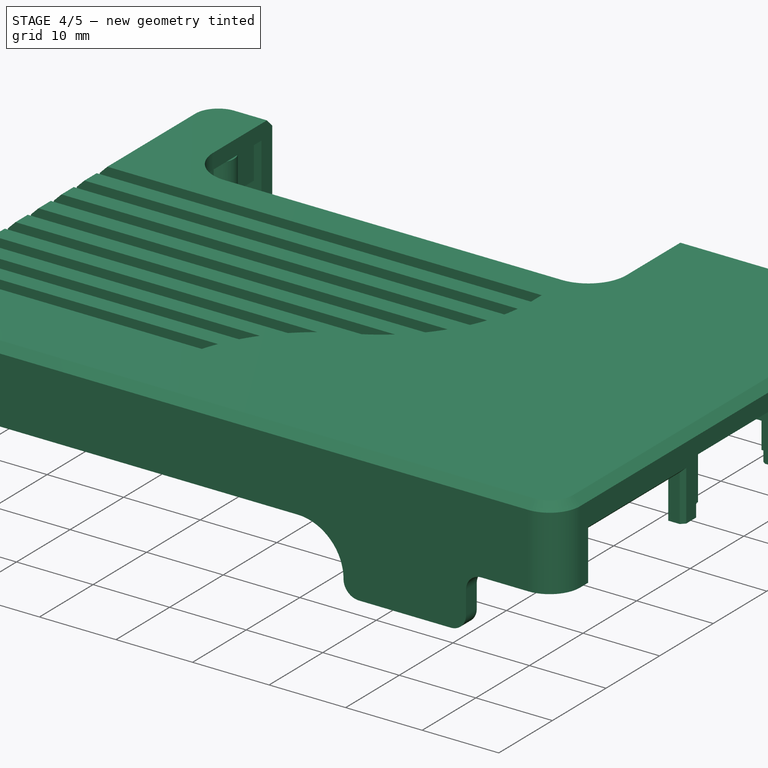
[diagram: stage 4 of 5 — iso view after this stage's code; geometry added in this stage tinted green]
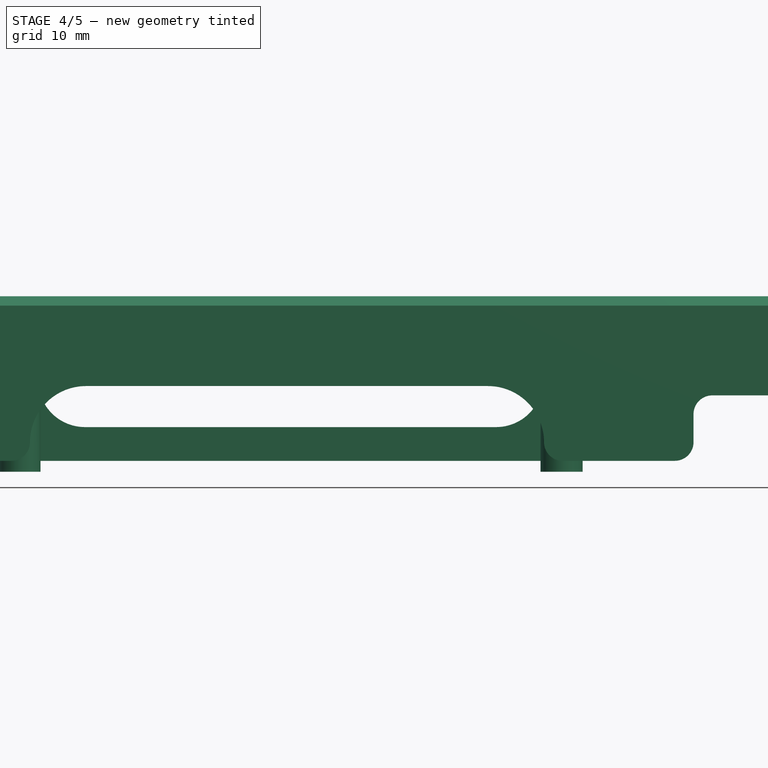
[diagram: stage 4 of 5 — front view after this stage's code; geometry added in this stage tinted green]
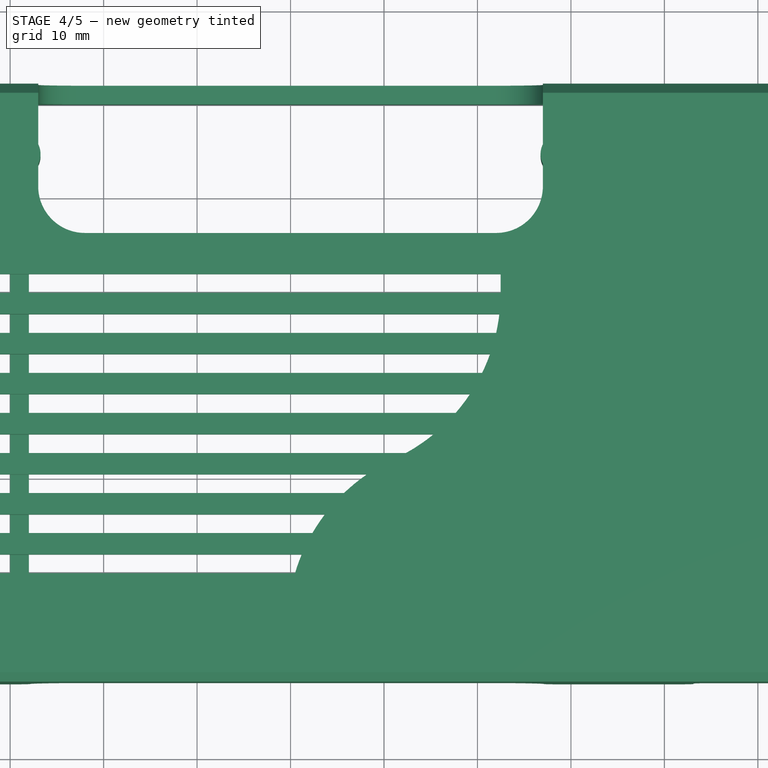
[diagram: stage 4 of 5 — top view after this stage's code; geometry added in this stage tinted green]
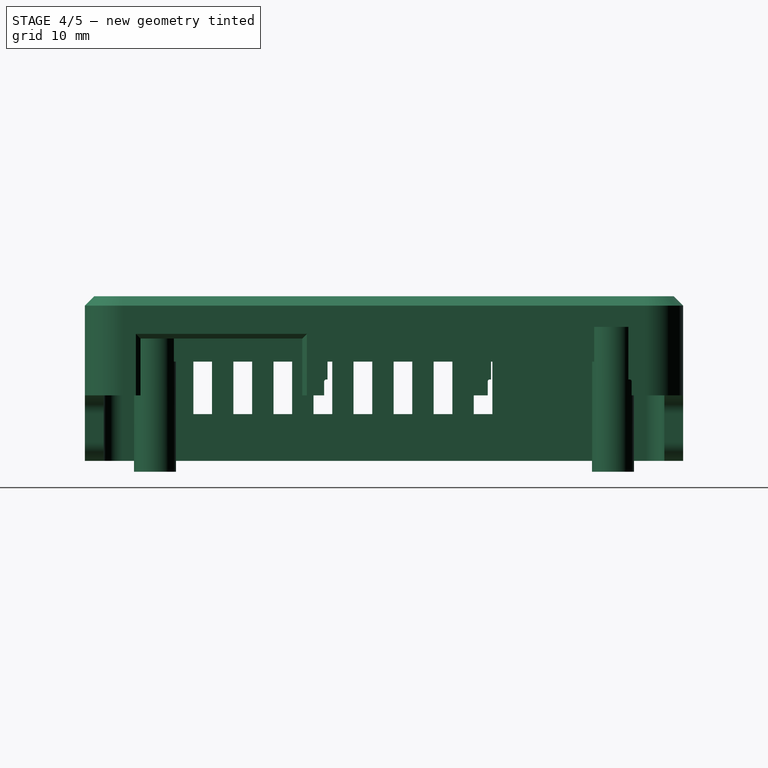
[diagram: stage 4 of 5 — right view after this stage's code; geometry added in this stage tinted green]
FEATURE [Sketcher::SketchObject] Sketch001
  FullyConstrained = true
  MapMode = 5
  Support = -> [XY_Plane002]
  sketch-geometry (8):
    g0: LineSegment StartX=-1.2679 StartY=1.5 StartZ=0 EndX=-0.6 EndY=2.49695 EndZ=0
    g1: LineSegment StartX=-0.6 StartY=2.49695 StartZ=0 EndX=0.6 EndY=2.49695 EndZ=0
    g2: LineSegment StartX=0.6 StartY=2.49695 StartZ=0 EndX=1.2679 EndY=1.5 EndZ=0
    g3: LineSegment StartX=1.2679 StartY=1.5 StartZ=0 EndX=1.2679 EndY=-1.5 EndZ=0
    g4: LineSegment StartX=1.2679 StartY=-1.5 StartZ=0 EndX=0.6 EndY=-2.49695 EndZ=0
    g5: LineSegment StartX=0.6 StartY=-2.49695 StartZ=0 EndX=-0.6 EndY=-2.49695 EndZ=0
    g6: LineSegment StartX=-0.6 StartY=-2.49695 StartZ=0 EndX=-1.2679 EndY=-1.5 EndZ=0
    g7: LineSegment StartX=-1.2679 StartY=-1.5 StartZ=0 EndX=-1.2679 EndY=1.5 EndZ=0
  constraints (22):
    c: Coincident(g0,g1)
    c: Coincident(g1,g2)
    c: Coincident(g2,g3)
    c: Coincident(g3,g4)
    c: Coincident(g4,g5)
    c: Coincident(g5,g6)
    c: Coincident(g6,g7)
    c: Coincident(g7,g0)
    c: Equal(g3,g7)
    c: Vertical(g7)
    c: Equal(g2,g0)
    c: Equal(g0,g4)
    c: Equal(g4,g6)
    c: Symmetric(g0,g1,g-2)
    c: Symmetric(g2,g3,g-1)
    c: Symmetric(g5,g4,g-2)
    c: DistanceX(g1,g1) = 1.2
    c: Distance(g2) = 1.2
    c: Equal(g5,g1)
    c: DistanceY(g3,g3) = 3
    c: Angle(g2,g3) = 2.55132
    c: DistanceX(g0,g2) = 2.53581
FEATURE [PartDesign::Pad] Pad001
  ClaimChildren = false
  Direction = (1,1,1)
  Fit = 0
  FitJoin = 0
  InnerFit = 0
  InnerFitJoin = 0
  InnerTaperAngle = 0
  InnerTaperAngleRev = 0
  Length = 2.5
  Length2 = 100
  NewSolid = false
  Profile = -> Sketch001
  Refine = true
  Suppress = false
  Type = 0
FEATURE [Sketcher::SketchObject] Sketch002
  FullyConstrained = true
  MapMode = 5
  Support = -> [XY_Plane002]
  sketch-geometry (8):
    g0: LineSegment StartX=-0.25 StartY=1.52 StartZ=0 EndX=0.25 EndY=1.52 EndZ=0
    g1: LineSegment StartX=0.25 StartY=1.52 StartZ=0 EndX=0.25 EndY=1.02 EndZ=0
    g2: LineSegment StartX=0.25 StartY=1.02 StartZ=0 EndX=-0.25 EndY=1.02 EndZ=0
    g3: LineSegment StartX=-0.25 StartY=1.02 StartZ=0 EndX=-0.25 EndY=1.52 EndZ=0
    g4: LineSegment StartX=-0.25 StartY=-1.02 StartZ=0 EndX=0.25 EndY=-1.02 EndZ=0
    g5: LineSegment StartX=0.25 StartY=-1.02 StartZ=0 EndX=0.25 EndY=-1.52 EndZ=0
    g6: LineSegment StartX=0.25 StartY=-1.52 StartZ=0 EndX=-0.25 EndY=-1.52 EndZ=0
    g7: LineSegment StartX=-0.25 StartY=-1.52 StartZ=0 EndX=-0.25 EndY=-1.02 EndZ=0
  constraints (22):
    c: Coincident(g0,g1)
    c: Coincident(g1,g2)
    c: Coincident(g2,g3)
    c: Coincident(g3,g0)
    c: Horizontal(g0)
    c: Horizontal(g2)
    c: Vertical(g1)
    c: Vertical(g3)
    c: Coincident(g4,g5)
    c: Coincident(g5,g6)
    c: Coincident(g6,g7)
    c: Coincident(g7,g4)
    c: Horizontal(g6)
    c: Vertical(g5)
    c: Vertical(g7)
    c: Equal(g0,g1)
    c: Equal(g1,g4)
    c: Equal(g4,g5)
    c: Symmetric(g4,g4,g-2)
    c: Symmetric(g2,g4,g-1)
    c: DistanceX(g0,g0) = 0.5
    c: DistanceY(g-1,g2) = 1.02
FEATURE [PartDesign::Pad] Pad002
  BaseFeature = -> Pad001
  ClaimChildren = false
  Direction = (1,1,1)
  Fit = 0
  FitJoin = 0
  InnerFit = 0
  InnerFitJoin = 0
  InnerTaperAngle = 0
  InnerTaperAngleRev = 0
  Length = 3
  Length2 = 100
  NewSolid = false
  Profile = -> Sketch002
  Refine = true
  Reversed = true
  Suppress = false
  Type = 0
FEATURE [PartDesign::Pad] Pad003
  BaseFeature = -> Pad002
  ClaimChildren = false
  ColoredElements = -> Pad003 [Face19,Face20,Face21,Face22,Face23,Face24,Face25,Face26,Face29,Face30]
  Direction = (1,1,1)
  Fit = 0
  FitJoin = 0
  InnerFit = 0
  InnerFitJoin = 0
  InnerTaperAngle = 0
  InnerTaperAngleRev = 0
  Length = 8.5
  Length2 = 100
  NewSolid = false
  Profile = -> Sketch002
  Refine = true
  Suppress = false
  Type = 0
FEATURE [PartDesign::Chamfer] Chamfer
  Angle = 45
  Base = -> Pad003 [Edge64,Edge58,Edge60,Edge62,Edge72,Edge66,Edge68,Edge70]
  BaseFeature = -> Pad003
  ChamferType = 0
  ColoredElements = -> Chamfer [Face1,Face18,Face19,Face2,Face20,Face21,Face22,Face24,Face25,Face26,Face27,Face3,Face36,Face5,Face6,Face7,Face8,Face9]
  FlipDirection = false
  NewSolid = false
  Refine = true
  Size = 0.1
  Size2 = 1
  SupportTransform = false
  Suppress = false
FEATURE [PartDesign::LinearPattern] LinearPattern
  BaseFeature = -> Chamfer
  ColoredElements = -> LinearPattern [Face100,Face101,Face103,Face112,Face117,Face119,Face128,Face129,Face130,Face132,Face133,Face134,Face135,Face137,Face138,Face139,Face14,Face141,Face15,Face150,Face155,Face157,Face16,Face166,Face167,Face168,Face170,Face171,Face172,Face173,Face175,Face176,Face177,Face179,Face18,Face188,Face19,Face193,Face195,Face20,+240 more]
  CopyShape = false
  Direction = -> X_Axis002
  Length = 48.26
  NewSolid = false
  Occurrences = 20
  OriginalSubs = -> [Chamfer,Pad003,Pad002,Pad001]
  Originals = -> [Chamfer,Pad003,Pad002,Pad001]
  ParallelTransform = true
  Refine = true
  Reversed = true
  SubTransform = true
  Suppress = false
FEATURE [PartDesign::Body] Body001  label="GPIO"
  AutoGroupSolids = false
  ExportMode = 0
  Group = -> [Sketch001,Pad001,Sketch002,Pad002,Pad003,Chamfer,LinearPattern]
  Origin = -> Origin003
  Placement = pos=(14.03,24.5,0) rot=(0,0,1;0rad)
  Tip = -> LinearPattern
  _ExportChildren = -> [Pad001,Pad002,Pad003,Chamfer,LinearPattern]
  _GroupVersion = 1
FEATURE [Sketcher::SketchObject] Sketch003
  FullyConstrained = true
  MapMode = 5
  Support = -> [XY_Plane003]
  sketch-geometry (4):
    g0: LineSegment StartX=-7 StartY=7 StartZ=0 EndX=7 EndY=7 EndZ=0
    g1: LineSegment StartX=7 StartY=7 StartZ=0 EndX=7 EndY=-7 EndZ=0
    g2: LineSegment StartX=7 StartY=-7 StartZ=0 EndX=-7 EndY=-7 EndZ=0
    g3: LineSegment StartX=-7 StartY=-7 StartZ=0 EndX=-7 EndY=7 EndZ=0
  constraints (11):
    c: Coincident(g0,g1)
    c: Coincident(g1,g2)
    c: Coincident(g2,g3)
    c: Coincident(g3,g0)
    c: Horizontal(g0)
    c: Horizontal(g2)
    c: Vertical(g1)
    c: Vertical(g3)
    c: Equal(g0,g1)
    c: Symmetric(g0,g1,g-1)
    c: DistanceX(g0,g0) = 14
FEATURE [PartDesign::Pad] Pad004
  ClaimChildren = false
  Direction = (1,1,1)
  Fit = 0
  FitJoin = 0
  InnerFit = 0
  InnerFitJoin = 0
  InnerTaperAngle = 0
  InnerTaperAngleRev = 0
  Length = 1
  Length2 = 100
  NewSolid = false
  Profile = -> Sketch003
  Refine = true
  Suppress = false
  Type = 0
FEATURE [PartDesign::Chamfer] Chamfer001
  Angle = 45
  Base = -> Pad004 [Edge7,Edge10,Edge4,Edge12]
  BaseFeature = -> Pad004
  ChamferType = 0
  FlipDirection = false
  NewSolid = false
  Refine = true
  Size = 0.2
  Size2 = 1
  SupportTransform = false
  Suppress = false
FEATURE [PartDesign::Body] Body002  label="Processor"
  AutoGroupSolids = false
  ExportMode = 0
  Group = -> [Sketch003,Pad004,Chamfer001]
  Origin = -> Origin004
  Placement = pos=(-15.5,3,0) rot=(0,0,1;0rad)
  Tip = -> Chamfer001
  _ExportChildren = -> [Pad004,Chamfer001]
  _GroupVersion = 1
FEATURE [Sketcher::SketchObject] Sketch004
  FullyConstrained = true
  MapMode = 5
  Support = -> [XY_Plane004]
  sketch-geometry (4):
    g0: LineSegment StartX=-4.25 StartY=4.25 StartZ=0 EndX=4.25 EndY=4.25 EndZ=0
    g1: LineSegment StartX=4.25 StartY=4.25 StartZ=0 EndX=4.25 EndY=-4.25 EndZ=0
    g2: LineSegment StartX=4.25 StartY=-4.25 StartZ=0 EndX=-4.25 EndY=-4.25 EndZ=0
    g3: LineSegment StartX=-4.25 StartY=-4.25 StartZ=0 EndX=-4.25 EndY=4.25 EndZ=0
  constraints (11):
    c: Coincident(g0,g1)
    c: Coincident(g1,g2)
    c: Coincident(g2,g3)
    c: Coincident(g3,g0)
    c: Horizontal(g0)
    c: Horizontal(g2)
    c: Vertical(g1)
    c: Vertical(g3)
    c: Symmetric(g2,g0,g-1)
    c: Equal(g0,g1)
    c: DistanceX(g0,g0) = 8.5
FEATURE [PartDesign::Pad] Pad005
  ClaimChildren = false
  Direction = (1,1,1)
  Fit = 0
  FitJoin = 0
  InnerFit = 0
  InnerFitJoin = 0
  InnerTaperAngle = 0
  InnerTaperAngleRev = 0
  Length = 1
  Length2 = 100
  NewSolid = false
  Profile = -> Sketch004
  Refine = true
  Suppress = false
  Type = 0
FEATURE [PartDesign::Chamfer] Chamfer002
  Angle = 45
  Base = -> Pad005 [Edge10,Edge7,Edge4,Edge12]
  BaseFeature = -> Pad005
  ChamferType = 0
  FlipDirection = false
  NewSolid = false
  Refine = true
  Size = 0.2
  Size2 = 1
  SupportTransform = false
  Suppress = false
FEATURE [PartDesign::Body] Body003  label="GPU"
  AutoGroupSolids = false
  ExportMode = 0
  Group = -> [Sketch004,Pad005,Chamfer002]
  Origin = -> Origin005
  Placement = pos=(15.25,5.75,0) rot=(0,0,1;0rad)
  Tip = -> Chamfer002
  _ExportChildren = -> [Pad005,Chamfer002]
  _GroupVersion = 1
FEATURE [Sketcher::SketchObject] Sketch005
  FullyConstrained = true
  MapMode = 5
  Placement = pos=(0,0,0) rot=(1,0,0;1.5708rad)
  Support = -> [XZ_Plane005]
  sketch-geometry (4):
    g0: LineSegment StartX=-1.5 StartY=2.25 StartZ=0 EndX=1.5 EndY=2.25 EndZ=0
    g1: LineSegment StartX=1.5 StartY=2.25 StartZ=0 EndX=1.5 EndY=-2.25 EndZ=0
    g2: LineSegment StartX=1.5 StartY=-2.25 StartZ=0 EndX=-1.5 EndY=-2.25 EndZ=0
    g3: LineSegment StartX=-1.5 StartY=-2.25 StartZ=0 EndX=-1.5 EndY=2.25 EndZ=0
  constraints (11):
    c: Coincident(g0,g1)
    c: Coincident(g1,g2)
    c: Coincident(g2,g3)
    c: Coincident(g3,g0)
    c: Horizontal(g0)
    c: Horizontal(g2)
    c: Vertical(g1)
    c: Vertical(g3)
    c: Symmetric(g0,g1,g-1)
    c: DistanceX(g0,g0) = 3
    c: DistanceY(g1,g1) = 4.5
FEATURE [PartDesign::Pad] Pad006
  ClaimChildren = false
  Direction = (1,1,1)
  Fit = 0
  FitJoin = 0
  InnerFit = 0
  InnerFitJoin = 0
  InnerTaperAngle = 0
  InnerTaperAngleRev = 0
  Length = 20.5
  Length2 = 100
  Midplane = true
  NewSolid = false
  Placement = pos=(0,0,0) rot=(1,0,0;1.5708rad)
  Profile = -> Sketch005
  Refine = true
  Suppress = false
  Type = 0
FEATURE [Sketcher::SketchObject] Sketch006
  ExternalGeometry = -> [Pad006]
  FullyConstrained = true
  MapMode = 5
  Placement = pos=(0,0,0) rot=(1,0,0;1.5708rad)
  Support = -> [XZ_Plane005]
  sketch-geometry (4):
    g0: LineSegment StartX=-1.2 StartY=1.95 StartZ=0 EndX=1.2 EndY=1.95 EndZ=0
    g1: LineSegment StartX=1.2 StartY=1.95 StartZ=0 EndX=1.2 EndY=-1.95 EndZ=0
    g2: LineSegment StartX=1.2 StartY=-1.95 StartZ=0 EndX=-1.2 EndY=-1.95 EndZ=0
    g3: LineSegment StartX=-1.2 StartY=-1.95 StartZ=0 EndX=-1.2 EndY=1.95 EndZ=0
  constraints (10):
    c: Coincident(g0,g1)
    c: Coincident(g1,g2)
    c: Coincident(g2,g3)
    c: Coincident(g3,g0)
    c: Horizontal(g2)
    c: Vertical(g3)
    c: Symmetric(g0,g0,g-2)
    c: Symmetric(g0,g1,g-1)
    c: DistanceY(g0,g-4) = 0.3
    c: DistanceX(g0,g-4) = 0.3
FEATURE [PartDesign::Pocket] Pocket
  BaseFeature = -> Pad006
  ClaimChildren = false
  Fit = 0
  FitJoin = 0
  InnerFit = 0
  InnerFitJoin = 0
  InnerTaperAngle = 0
  InnerTaperAngleRev = 0
  Length = 5
  Length2 = 100
  Midplane = true
  NewSolid = false
  Placement = pos=(0,0,0) rot=(1,0,0;1.5708rad)
  Profile = -> Sketch006
  Refine = true
  Suppress = false
  Type = 1
FEATURE [Sketcher::SketchObject] Sketch007
  ExternalGeometry = -> [Pocket]
  FullyConstrained = true
  MapMode = 5
  Placement = pos=(0,1e-15,2.25) rot=(0,0,1;3.14159rad)
  Support = -> [Pocket]
  sketch-geometry (4):
    g0: LineSegment StartX=-1.2 StartY=9.95 StartZ=0 EndX=1.2 EndY=9.95 EndZ=0
    g1: LineSegment StartX=1.2 StartY=9.95 StartZ=0 EndX=1.2 EndY=-9.95 EndZ=0
    g2: LineSegment StartX=1.2 StartY=-9.95 StartZ=0 EndX=-1.2 EndY=-9.95 EndZ=0
    g3: LineSegment StartX=-1.2 StartY=-9.95 StartZ=0 EndX=-1.2 EndY=9.95 EndZ=0
  constraints (10):
    c: Coincident(g0,g1)
    c: Coincident(g1,g2)
    c: Coincident(g2,g3)
    c: Coincident(g3,g0)
    c: Horizontal(g2)
    c: Vertical(g3)
    c: Symmetric(g0,g0,g-2)
    c: Symmetric(g0,g1,g-1)
    c: DistanceX(g0,g-3) = 0.3
    c: DistanceY(g0,g-3) = 0.3
FEATURE [PartDesign::Pocket] Pocket001
  BaseFeature = -> Pocket
  ClaimChildren = false
  Fit = 0
  FitJoin = 0
  InnerFit = 0
  InnerFitJoin = 0
  InnerTaperAngle = 0
  InnerTaperAngleRev = 0
  Length = 5
  Length2 = 100
  NewSolid = false
  Placement = pos=(0,0,0) rot=(1,0,0;1.5708rad)
  Profile = -> Sketch007
  Refine = true
  Suppress = false
  Type = 2
FEATURE [Sketcher::SketchObject] Sketch008
  AttachmentOffset = pos=(0,0,2.25) rot=(0,0,1;0rad)
  FullyConstrained = true
  MapMode = 5
  Placement = pos=(0,0,2.25) rot=(0,0,1;0rad)
  Support = -> [XY_Plane005]
  sketch-geometry (16):
    g0: LineSegment StartX=-1.5 StartY=7.75 StartZ=0 EndX=-1.2 EndY=7.75 EndZ=0
    g1: LineSegment StartX=-1.2 StartY=7.75 StartZ=0 EndX=-1.2 EndY=-7.75 EndZ=0
    g2: LineSegment StartX=-1.2 StartY=-7.75 StartZ=0 EndX=-1.5 EndY=-7.75 EndZ=0
    g3: LineSegment StartX=-1.5 StartY=-7.75 StartZ=0 EndX=-1.5 EndY=7.75 EndZ=0
    g4: LineSegment StartX=-1.5 StartY=8.25 StartZ=0 EndX=-0.3 EndY=8.25 EndZ=0
    g5: LineSegment StartX=-0.3 StartY=8.25 StartZ=0 EndX=-0.3 EndY=-8.25 EndZ=0
    g6: LineSegment StartX=-0.3 StartY=-8.25 StartZ=0 EndX=-1.5 EndY=-8.25 EndZ=0
    g7: LineSegment StartX=-1.5 StartY=-8.25 StartZ=0 EndX=-1.5 EndY=-11.05 EndZ=0
    g8: LineSegment StartX=-1.5 StartY=-11.05 StartZ=0 EndX=1.5 EndY=-11.05 EndZ=0
    g9: LineSegment StartX=1.5 StartY=-11.05 StartZ=0 EndX=1.5 EndY=-6.5 EndZ=0
    g10: LineSegment StartX=1.5 StartY=-6.5 StartZ=0 EndX=2.5 EndY=-5.5 EndZ=0
    g11: LineSegment StartX=2.5 StartY=-5.5 StartZ=0 EndX=2.5 EndY=5.5 EndZ=0
    g12: LineSegment StartX=2.5 StartY=5.5 StartZ=0 EndX=1.5 EndY=6.5 EndZ=0
    g13: LineSegment StartX=1.5 StartY=6.5 StartZ=0 EndX=1.5 EndY=11.05 EndZ=0
    g14: LineSegment StartX=1.5 StartY=11.05 StartZ=0 EndX=-1.5 EndY=11.05 EndZ=0
    g15: LineSegment StartX=-1.5 StartY=11.05 StartZ=0 EndX=-1.5 EndY=8.25 EndZ=0
  constraints (42):
    c: Coincident(g0,g1)
    c: Coincident(g1,g2)
    c: Coincident(g2,g3)
    c: Coincident(g3,g0)
    c: Horizontal(g0)
    c: Horizontal(g2)
    c: Vertical(g1)
    c: Symmetric(g0,g2,g-1)
    c: DistanceX(g0,g0) = 0.3
    c: DistanceY(g3,g3) = 15.5
    c: DistanceX(g0,g-1) = 1.5
    c: Horizontal(g4)
    c: Coincident(g4,g5)
    c: Coincident(g5,g6)
    c: Coincident(g6,g7)
    c: Vertical(g7)
    c: Coincident(g7,g8)
    c: Horizontal(g8)
    c: Coincident(g8,g9)
    c: Vertical(g9)
    c: Coincident(g9,g10)
    c: Coincident(g10,g11)
    c: Coincident(g11,g12)
    c: Coincident(g12,g13)
    c: Coincident(g13,g14)
    c: Horizontal(g14)
    c: Coincident(g14,g15)
    c: Coincident(g15,g4)
    c: Vertical(g15)
    c: DistanceX(g4,g-1) = 1.5
    c: DistanceY(g15,g15) = 2.8
    c: Symmetric(g6,g4,g-1)
    c: Symmetric(g4,g5,g-1)
    c: DistanceX(g4,g4) = 1.2
    c: DistanceY(g-1,g4) = 8.25
    c: Symmetric(g13,g8,g-1)
    c: DistanceX(g14,g14) = 3
    c: Symmetric(g12,g9,g-1)
    c: DistanceY(g13,g13) = 4.55
    c: Symmetric(g11,g10,g-1)
    c: DistanceX(g-1,g11) = 2.5
    c: DistanceY(g-1,g11) = 5.5
FEATURE [PartDesign::Pad] Pad007
  BaseFeature = -> Pocket001
  ClaimChildren = false
  Direction = (1,1,1)
  Fit = 0
  FitJoin = 0
  InnerFit = 0
  InnerFitJoin = 0
  InnerTaperAngle = 0
  InnerTaperAngleRev = 0
  Length = 1
  Length2 = 100
  NewSolid = false
  Placement = pos=(0,0,0) rot=(1,0,0;1.5708rad)
  Profile = -> Sketch008
  Refine = true
  Suppress = false
  Type = 0
FEATURE [Sketcher::SketchObject] Sketch009
  AttachmentOffset = pos=(0,0,-2.25) rot=(0,0,1;0rad)
  FullyConstrained = true
  MapMode = 5
  Placement = pos=(0,0,-2.25) rot=(0,0,1;0rad)
  Support = -> [XY_Plane005]
  sketch-geometry (74):
    g0: LineSegment StartX=-2.5 StartY=-7.15 StartZ=0 EndX=2.5 EndY=-7.15 EndZ=0
    g1: LineSegment StartX=2.5 StartY=-7.15 StartZ=0 EndX=2.5 EndY=-7.45 EndZ=0
    g2: LineSegment StartX=2.5 StartY=-7.45 StartZ=0 EndX=-2.5 EndY=-7.45 EndZ=0
    g3: LineSegment StartX=-2.5 StartY=-7.45 StartZ=0 EndX=-2.5 EndY=-7.15 EndZ=0
    g4: LineSegment StartX=-2.5 StartY=-6.10055 StartZ=0 EndX=2.5 EndY=-6.10055 EndZ=0
    g5: LineSegment StartX=2.5 StartY=-6.10055 StartZ=0 EndX=2.5 EndY=-6.40055 EndZ=0
    g6: LineSegment StartX=2.5 StartY=-6.40055 StartZ=0 EndX=-2.5 EndY=-6.40055 EndZ=0
    g7: LineSegment StartX=-2.5 StartY=-6.40055 StartZ=0 EndX=-2.5 EndY=-6.10055 EndZ=0
    g8: LineSegment [constr] StartX=-2.5 StartY=-7.15 StartZ=0 EndX=-2.5 EndY=-6.10055 EndZ=0
    g9: LineSegment StartX=-2.5 StartY=-5.0511 StartZ=0 EndX=2.5 EndY=-5.0511 EndZ=0
    g10: LineSegment StartX=2.5 StartY=-5.0511 StartZ=0 EndX=2.5 EndY=-5.3511 EndZ=0
    g11: LineSegment StartX=2.5 StartY=-5.3511 StartZ=0 EndX=-2.5 EndY=-5.3511 EndZ=0
    g12: LineSegment StartX=-2.5 StartY=-5.3511 StartZ=0 EndX=-2.5 EndY=-5.0511 EndZ=0
    g13: LineSegment [constr] StartX=-2.5 StartY=-6.10055 StartZ=0 EndX=-2.5 EndY=-5.0511 EndZ=0
    g14: LineSegment StartX=-2.5 StartY=-4.00165 StartZ=0 EndX=2.5 EndY=-4.00165 EndZ=0
    g15: LineSegment StartX=2.5 StartY=-4.00165 StartZ=0 EndX=2.5 EndY=-4.30165 EndZ=0
    g16: LineSegment StartX=2.5 StartY=-4.30165 StartZ=0 EndX=-2.5 EndY=-4.30165 EndZ=0
    g17: LineSegment StartX=-2.5 StartY=-4.30165 StartZ=0 EndX=-2.5 EndY=-4.00165 EndZ=0
    g18: LineSegment [constr] StartX=-2.5 StartY=-5.0511 StartZ=0 EndX=-2.5 EndY=-4.00165 EndZ=0
    g19: LineSegment StartX=-2.5 StartY=-2.95221 StartZ=0 EndX=2.5 EndY=-2.95221 EndZ=0
    g20: LineSegment StartX=2.5 StartY=-2.95221 StartZ=0 EndX=2.5 EndY=-3.25221 EndZ=0
    g21: LineSegment StartX=2.5 StartY=-3.25221 StartZ=0 EndX=-2.5 EndY=-3.25221 EndZ=0
    g22: LineSegment StartX=-2.5 StartY=-3.25221 StartZ=0 EndX=-2.5 EndY=-2.95221 EndZ=0
    g23: LineSegment [constr] StartX=-2.5 StartY=-4.00165 StartZ=0 EndX=-2.5 EndY=-2.95221 EndZ=0
    g24: LineSegment StartX=-2.5 StartY=-1.90276 StartZ=0 EndX=2.5 EndY=-1.90276 EndZ=0
    g25: LineSegment StartX=2.5 StartY=-1.90276 StartZ=0 EndX=2.5 EndY=-2.20276 EndZ=0
    g26: LineSegment StartX=2.5 StartY=-2.20276 StartZ=0 EndX=-2.5 EndY=-2.20276 EndZ=0
    g27: LineSegment StartX=-2.5 StartY=-2.20276 StartZ=0 EndX=-2.5 EndY=-1.90276 EndZ=0
    g28: LineSegment [constr] StartX=-2.5 StartY=-2.95221 StartZ=0 EndX=-2.5 EndY=-1.90276 EndZ=0
    g29: LineSegment StartX=-2.5 StartY=-0.853309 StartZ=0 EndX=2.5 EndY=-0.853309 EndZ=0
    g30: LineSegment StartX=2.5 StartY=-0.853309 StartZ=0 EndX=2.5 EndY=-1.15331 EndZ=0
    g31: LineSegment StartX=2.5 StartY=-1.15331 StartZ=0 EndX=-2.5 EndY=-1.15331 EndZ=0
    g32: LineSegment StartX=-2.5 StartY=-1.15331 StartZ=0 EndX=-2.5 EndY=-0.853309 EndZ=0
    g33: LineSegment [constr] StartX=-2.5 StartY=-1.90276 StartZ=0 EndX=-2.5 EndY=-0.853309 EndZ=0
    g34: LineSegment StartX=-2.5 StartY=0.196139 StartZ=0 EndX=2.5 EndY=0.196139 EndZ=0
    g35: LineSegment StartX=2.5 StartY=0.196139 StartZ=0 EndX=2.5 EndY=-0.103861 EndZ=0
    g36: LineSegment StartX=2.5 StartY=-0.103861 StartZ=0 EndX=-2.5 EndY=-0.103861 EndZ=0
    g37: LineSegment StartX=-2.5 StartY=-0.103861 StartZ=0 EndX=-2.5 EndY=0.196139 EndZ=0
    g38: LineSegment [constr] StartX=-2.5 StartY=-0.853309 StartZ=0 EndX=-2.5 EndY=0.196139 EndZ=0
    g39: LineSegment StartX=-2.5 StartY=1.24559 StartZ=0 EndX=2.5 EndY=1.24559 EndZ=0
    g40: LineSegment StartX=2.5 StartY=1.24559 StartZ=0 EndX=2.5 EndY=0.945587 EndZ=0
    g41: LineSegment StartX=2.5 StartY=0.945587 StartZ=0 EndX=-2.5 EndY=0.945587 EndZ=0
    g42: LineSegment StartX=-2.5 StartY=0.945587 StartZ=0 EndX=-2.5 EndY=1.24559 EndZ=0
    g43: LineSegment [constr] StartX=-2.5 StartY=0.196139 StartZ=0 EndX=-2.5 EndY=1.24559 EndZ=0
    g44: LineSegment StartX=-2.5 StartY=2.29504 StartZ=0 EndX=2.5 EndY=2.29504 EndZ=0
    g45: LineSegment StartX=2.5 StartY=2.29504 StartZ=0 EndX=2.5 EndY=1.99504 EndZ=0
    g46: LineSegment StartX=2.5 StartY=1.99504 StartZ=0 EndX=-2.5 EndY=1.99504 EndZ=0
    g47: LineSegment StartX=-2.5 StartY=1.99504 StartZ=0 EndX=-2.5 EndY=2.29504 EndZ=0
    g48: LineSegment [constr] StartX=-2.5 StartY=1.24559 StartZ=0 EndX=-2.5 EndY=2.29504 EndZ=0
    g49: LineSegment StartX=-2.5 StartY=3.34448 StartZ=0 EndX=2.5 EndY=3.34448 EndZ=0
    g50: LineSegment StartX=2.5 StartY=3.34448 StartZ=0 EndX=2.5 EndY=3.04448 EndZ=0
    g51: LineSegment StartX=2.5 StartY=3.04448 StartZ=0 EndX=-2.5 EndY=3.04448 EndZ=0
    g52: LineSegment StartX=-2.5 StartY=3.04448 StartZ=0 EndX=-2.5 EndY=3.34448 EndZ=0
    g53: LineSegment [constr] StartX=-2.5 StartY=2.29504 StartZ=0 EndX=-2.5 EndY=3.34448 EndZ=0
    g54: LineSegment StartX=-2.5 StartY=4.39393 StartZ=0 EndX=2.5 EndY=4.39393 EndZ=0
    g55: LineSegment StartX=2.5 StartY=4.39393 StartZ=0 EndX=2.5 EndY=4.09393 EndZ=0
    g56: LineSegment StartX=2.5 StartY=4.09393 StartZ=0 EndX=-2.5 EndY=4.09393 EndZ=0
    g57: LineSegment StartX=-2.5 StartY=4.09393 StartZ=0 EndX=-2.5 EndY=4.39393 EndZ=0
    g58: LineSegment [constr] StartX=-2.5 StartY=3.34448 StartZ=0 EndX=-2.5 EndY=4.39393 EndZ=0
    g59: LineSegment StartX=-2.5 StartY=5.44338 StartZ=0 EndX=2.5 EndY=5.44338 EndZ=0
    g60: LineSegment StartX=2.5 StartY=5.44338 StartZ=0 EndX=2.5 EndY=5.14338 EndZ=0
    g61: LineSegment StartX=2.5 StartY=5.14338 StartZ=0 EndX=-2.5 EndY=5.14338 EndZ=0
    g62: LineSegment StartX=-2.5 StartY=5.14338 StartZ=0 EndX=-2.5 EndY=5.44338 EndZ=0
    g63: LineSegment [constr] StartX=-2.5 StartY=4.39393 StartZ=0 EndX=-2.5 EndY=5.44338 EndZ=0
    g64: LineSegment StartX=-2.5 StartY=6.49283 StartZ=0 EndX=2.5 EndY=6.49283 EndZ=0
    g65: LineSegment StartX=2.5 StartY=6.49283 StartZ=0 EndX=2.5 EndY=6.19283 EndZ=0
    g66: LineSegment StartX=2.5 StartY=6.19283 StartZ=0 EndX=-2.5 EndY=6.19283 EndZ=0
    g67: LineSegment StartX=-2.5 StartY=6.19283 StartZ=0 EndX=-2.5 EndY=6.49283 EndZ=0
    g68: LineSegment [constr] StartX=-2.5 StartY=5.44338 StartZ=0 EndX=-2.5 EndY=6.49283 EndZ=0
    g69: LineSegment StartX=-2.5 StartY=7.54228 StartZ=0 EndX=2.5 EndY=7.54228 EndZ=0
    g70: LineSegment StartX=2.5 StartY=7.54228 StartZ=0 EndX=2.5 EndY=7.24228 EndZ=0
    g71: LineSegment StartX=2.5 StartY=7.24228 StartZ=0 EndX=-2.5 EndY=7.24228 EndZ=0
    g72: LineSegment StartX=-2.5 StartY=7.24228 StartZ=0 EndX=-2.5 EndY=7.54228 EndZ=0
    g73: LineSegment [constr] StartX=-2.5 StartY=6.49283 StartZ=0 EndX=-2.5 EndY=7.54228 EndZ=0
  constraints (207):
    c: Coincident(g0,g1)
    c: Coincident(g1,g2)
    c: Coincident(g2,g3)
    c: Coincident(g3,g0)
    c: Horizontal(g2)
    c: Vertical(g1)
    c: Vertical(g3)
    c: Symmetric(g0,g0,g-2)
    c: DistanceY(g1,g1) = 0.3
    c: DistanceX(g0,g0) = 5
    c: DistanceY(g0,g-1) = 7.15
    c: Coincident(g4,g5)
    c: Coincident(g5,g6)
    c: Coincident(g6,g7)
    c: Coincident(g7,g4)
    c: Horizontal(g6)
    c: Vertical(g5)
    c: Vertical(g7)
    c: Equal(g1,g5) = 0.3
    c: Equal(g0,g4) = 5
    c: Coincident(g0,g8)
    c: Coincident(g4,g8)
    c: Distance(g8) = 1.04945
    c: Angle(g8) = 1.5708
    c: Coincident(g9,g10)
    c: Coincident(g10,g11)
    c: Coincident(g11,g12)
    c: Coincident(g12,g9)
    c: Horizontal(g11)
    c: Vertical(g10)
    c: Vertical(g12)
    c: Equal(g1,g10) = 0.3
    c: Equal(g0,g9) = 5
    c: Coincident(g4,g13)
    c: Coincident(g9,g13)
    c: Equal(g8,g13)
    c: Parallel(g13,g8)
    c: Coincident(g14,g15)
    c: Coincident(g15,g16)
    c: Coincident(g16,g17)
    c: Coincident(g17,g14)
    c: Horizontal(g16)
    c: Vertical(g15)
    c: Vertical(g17)
    c: Equal(g1,g15) = 0.3
    c: Equal(g0,g14) = 5
    c: Coincident(g9,g18)
    c: Coincident(g14,g18)
    c: Equal(g8,g18)
    c: Parallel(g18,g8)
    c: Coincident(g19,g20)
    c: Coincident(g20,g21)
    c: Coincident(g21,g22)
    c: Coincident(g22,g19)
    c: Horizontal(g21)
    c: Vertical(g20)
    c: Vertical(g22)
    c: Equal(g1,g20) = 0.3
    c: Equal(g0,g19) = 5
    c: Coincident(g14,g23)
    c: Coincident(g19,g23)
    c: Equal(g8,g23)
    c: Parallel(g23,g8)
    c: Coincident(g24,g25)
    c: Coincident(g25,g26)
    c: Coincident(g26,g27)
    c: Coincident(g27,g24)
    c: Horizontal(g26)
    c: Vertical(g25)
    c: Vertical(g27)
    c: Equal(g1,g25) = 0.3
    c: Equal(g0,g24) = 5
    c: Coincident(g19,g28)
    c: Coincident(g24,g28)
    c: Equal(g8,g28)
    c: Parallel(g28,g8)
    c: Coincident(g29,g30)
    c: Coincident(g30,g31)
    c: Coincident(g31,g32)
    c: Coincident(g32,g29)
    c: Horizontal(g31)
    c: Vertical(g30)
    c: Vertical(g32)
    c: Equal(g1,g30) = 0.3
    c: Equal(g0,g29) = 5
    c: Coincident(g24,g33)
    c: Coincident(g29,g33)
    c: Equal(g8,g33)
    c: Parallel(g33,g8)
    c: Coincident(g34,g35)
    c: Coincident(g35,g36)
    c: Coincident(g36,g37)
    c: Coincident(g37,g34)
    c: Horizontal(g36)
    c: Vertical(g35)
    c: Vertical(g37)
    c: Equal(g1,g35) = 0.3
    c: Equal(g0,g34) = 5
    c: Coincident(g29,g38)
    c: Coincident(g34,g38)
    c: Equal(g8,g38)
    c: Parallel(g38,g8)
    c: Coincident(g39,g40)
    c: Coincident(g40,g41)
    c: Coincident(g41,g42)
    c: Coincident(g42,g39)
    c: Horizontal(g41)
    c: Vertical(g40)
    c: Vertical(g42)
    c: Equal(g1,g40) = 0.3
    c: Equal(g0,g39) = 5
    c: Coincident(g34,g43)
    c: Coincident(g39,g43)
    c: Equal(g8,g43)
    c: Parallel(g43,g8)
    c: Coincident(g44,g45)
    c: Coincident(g45,g46)
    c: Coincident(g46,g47)
    c: Coincident(g47,g44)
    c: Horizontal(g46)
    c: Vertical(g45)
    c: Vertical(g47)
    c: Equal(g1,g45) = 0.3
    c: Equal(g0,g44) = 5
    c: Coincident(g39,g48)
    c: Coincident(g44,g48)
    c: Equal(g8,g48)
    c: Parallel(g48,g8)
    c: Coincident(g49,g50)
    c: Coincident(g50,g51)
    c: Coincident(g51,g52)
    c: Coincident(g52,g49)
    c: Horizontal(g51)
    c: Vertical(g50)
    c: Vertical(g52)
    c: Equal(g1,g50) = 0.3
    c: Equal(g0,g49) = 5
    c: Coincident(g44,g53)
    c: Coincident(g49,g53)
    c: Equal(g8,g53)
    c: Parallel(g53,g8)
    c: Coincident(g54,g55)
    c: Coincident(g55,g56)
    c: Coincident(g56,g57)
    c: Coincident(g57,g54)
    c: Horizontal(g56)
    c: Vertical(g55)
    c: Vertical(g57)
    c: Equal(g1,g55) = 0.3
    c: Equal(g0,g54) = 5
    c: Coincident(g49,g58)
    c: Coincident(g54,g58)
    c: Equal(g8,g58)
    c: Parallel(g58,g8)
    c: Coincident(g59,g60)
    c: Coincident(g60,g61)
    c: Coincident(g61,g62)
    c: Coincident(g62,g59)
    c: Horizontal(g61)
    c: Vertical(g60)
    c: Vertical(g62)
    c: Equal(g1,g60) = 0.3
    c: Equal(g0,g59) = 5
    c: Coincident(g54,g63)
    c: Coincident(g59,g63)
    c: Equal(g8,g63)
    c: Parallel(g63,g8)
    c: Coincident(g64,g65)
    c: Coincident(g65,g66)
    c: Coincident(g66,g67)
    c: Coincident(g67,g64)
    c: Horizontal(g66)
    c: Vertical(g65)
    c: Vertical(g67)
    c: Equal(g1,g65) = 0.3
    c: Equal(g0,g64) = 5
    c: Coincident(g59,g68)
    c: Coincident(g64,g68)
    c: Equal(g8,g68)
    c: Parallel(g68,g8)
    c: Coincident(g69,g70)
    c: Coincident(g70,g71)
    c: Coincident(g71,g72)
    c: Coincident(g72,g69)
    c: Horizontal(g71)
    c: Vertical(g70)
    c: Vertical(g72)
    c: Equal(g1,g70) = 0.3
    c: Equal(g0,g69) = 5
    c: Coincident(g64,g73)
    c: Coincident(g69,g73)
    c: Equal(g8,g73)
    c: Parallel(g73,g8)
    c: Horizontal(g4)
    c: Horizontal(g9)
    c: Horizontal(g14)
    c: Horizontal(g19)
    c: Horizontal(g24)
    c: Horizontal(g29)
    c: Horizontal(g34)
    c: Horizontal(g39)
    c: Horizontal(g44)
    c: Horizontal(g49)
    c: Horizontal(g54)
    c: Horizontal(g59)
    c: Horizontal(g64)
    c: Horizontal(g69)
FEATURE [PartDesign::Pad] Pad008
  BaseFeature = -> Pad007
  ClaimChildren = false
  ColoredElements = -> Pad008 [Face100,Face101,Face103,Face104,Face106,Face107,Face109,Face110,Face112,Face113,Face115,Face116,Face118,Face119,Face121,Face122,Face124,Face125,Face127,Face128,Face130,Face131,Face133,Face134,Face135,Face136,Face137,Face138,Face139,Face140,Face141,Face142,Face143,Face144,Face145,Face146,Face147,Face148,Face149,Face150,+51 more]
  Direction = (1,1,1)
  Fit = 0
  FitJoin = 0
  InnerFit = 0
  InnerFitJoin = 0
  InnerTaperAngle = 0
  InnerTaperAngleRev = 0
  Length = 0.2
  Length2 = 100
  NewSolid = false
  Placement = pos=(0,0,0) rot=(1,0,0;1.5708rad)
  Profile = -> Sketch009
  Refine = true
  Suppress = false
  Type = 0
FEATURE [PartDesign::Pad] Pad011
  BaseFeature = -> Pad010
  ClaimChildren = false
  ColoredElements = -> Pad011 [Face100,Face101,Face103,Face104,Face106,Face107,Face109,Face110,Face112,Face113,Face115,Face116,Face118,Face119,Face121,Face122,Face124,Face125,Face127,Face128,Face130,Face131,Face133,Face134,Face135,Face136,Face137,Face138,Face139,Face140,Face141,Face142,Face143,Face144,Face145,Face146,Face147,Face148,Face149,Face150,+51 more]
  Direction = (1,1,1)
  Fit = 0
  FitJoin = 0
  InnerFit = 0
  InnerFitJoin = 0
  InnerTaperAngle = 0
  InnerTaperAngleRev = 0
  Length = 0.2
  Length2 = 100
  NewSolid = false
  Placement = pos=(0,0,0) rot=(1,0,0;1.5708rad)
  Profile = -> Sketch011
  Refine = true
  Suppress = false
  Type = 0
FEATURE [PartDesign::Body] Body013  label="RJ45-LED001"
  AutoGroupSolids = false
  ExportMode = 0
  Group = -> [Sketch064,Pad045,Sketch065,Pocket029,Pocket030,Fillet027,Sketch066,Pocket031,Fillet028,Sketch067,Pocket032,Mirrored006,Sketch068,Pad046,Fillet029,Pad047,Sketch069,Pocket033,Mirrored007,Fillet030,DatumPlane002,Sketch070,Pad048,Fillet031,Draft,Fillet032,Mirrored008,DatumPlane003,Mirrored009,Sketch071,Pad049]
  Origin = -> Origin015
  Placement = pos=(23.6,-17.4,7.3) rot=(0,0,1;0rad)
  Tip = -> Pad049
  _ExportChildren = -> [Pad045,Pocket029,Pocket030,Fillet027,Pocket031,Fillet028,Pocket032,Mirrored006,Pad046,Fillet029,Pad047,Pocket033,Mirrored007,Fillet030,DatumPlane002,Pad048,Fillet031,Draft,Fillet032,Mirrored008,DatumPlane003,Mirrored009,Pad049]
  _GroupVersion = 1
FEATURE [App::Part] Part001  label="RasberryPi2"
  ExportMode = 1
  Group = -> [Body,Body001,Body002,Body003,Body004,Body005,Body006,Body007,Body008,Body009,Body010,Body011,Body012,Body013]
  Origin = -> Origin001
  Placement = pos=(0,0,6) rot=(0,0,1;0rad)
  _ExportChildren = -> [Body,Body001,Body002,Body003,Body004,Body005,Body006,Body007,Body008,Body009,Body010,Body011,Body012,Body013]
  _GroupVersion = 1
FEATURE [Sketcher::SketchObject] Sketch072
  FullyConstrained = true
  MapMode = 5
  Support = -> [XY_Plane017]
  sketch-geometry (4):
    g0: LineSegment StartX=-45.25 StartY=32 StartZ=0 EndX=45.25 EndY=32 EndZ=0
    g1: LineSegment StartX=45.25 StartY=32 StartZ=0 EndX=45.25 EndY=-32 EndZ=0
    g2: LineSegment StartX=45.25 StartY=-32 StartZ=0 EndX=-45.25 EndY=-32 EndZ=0
    g3: LineSegment StartX=-45.25 StartY=-32 StartZ=0 EndX=-45.25 EndY=32 EndZ=0
  constraints (11):
    c: Coincident(g0,g1)
    c: Coincident(g1,g2)
    c: Coincident(g2,g3)
    c: Coincident(g3,g0)
    c: Horizontal(g0)
    c: Horizontal(g2)
    c: Vertical(g1)
    c: Vertical(g3)
    c: Symmetric(g1,g0,g-1)
    c: DistanceY(g1,g1) = 64
    c: DistanceX(g0,g0) = 90.5
FEATURE [PartDesign::Pad] Pad050
  ClaimChildren = false
  Direction = (1,1,1)
  Fit = 0
  FitJoin = 0
  InnerFit = 0
  InnerFitJoin = 0
  InnerTaperAngle = 0
  InnerTaperAngleRev = 0
  Length = 25
  Length2 = 100
  NewSolid = false
  Profile = -> Sketch072
  Refine = true
  Suppress = false
  Type = 0
FEATURE [PartDesign::SubShapeBinder] Binder001  label="Main_Board_Reference"
  BindCopyOnChange = 0
  BindMode = 0
  ClaimChildren = false
  Context = -> Part [Body014.Binder001.]
  FillStyle = 0
  Fuse = false
  MakeFace = true
  PartialLoad = false
  Relative = true
  Support = -> [Part001[Body.]]
  _Version = 8
FEATURE [PartDesign::SubShapeBinder] Binder002  label="Binder002(Main_Board_Reference)..."
  BindCopyOnChange = 0
  BindMode = 0
  ClaimChildren = false
  Context = -> Part [Body014.Binder002.]
  FillStyle = 0
  Fuse = false
  MakeFace = true
  PartialLoad = false
  Relative = true
  Support = -> [Binder001[Edge25,Edge26,Edge28,Edge27]]
  _Version = 8
FEATURE [PartDesign::Thickness] Thickness001
  Base = -> Pad050 [Face6]
  BaseFeature = -> Pad050
  Intersection = false
  Join = 1
  Mode = 0
  NewSolid = false
  Refine = true
  Reversed = true
  SupportTransform = false
  Suppress = false
  Value = 2
FEATURE [PartDesign::Pad] Pad051
  BaseFeature = -> Thickness001
  ClaimChildren = false
  Direction = (1,1,1)
  Fit = 1
  FitJoin = 0
  InnerFit = 0
  InnerFitJoin = 0
  InnerTaperAngle = 0
  InnerTaperAngleRev = 0
  Length = 10
  Length2 = 100
  NewSolid = false
  Profile = -> Binder002
  Refine = true
  Reversed = true
  Suppress = false
  Type = 3
  UpToFace = -> Thickness001 [Face5]
FEATURE [PartDesign::SubShapeBinder] Binder003  label="Ports_Reference"
  BindCopyOnChange = 0
  BindMode = 0
  ClaimChildren = false
  Context = -> Part [Body014.Binder003.]
  FillStyle = 0
  Fuse = false
  MakeFace = true
  PartialLoad = false
  Relative = true
  Support = -> [Part001[Body011.Fillet017.Face6,Body012.Fillet026.Face6,Body013.Pad049.Face166,Body008.Pocket011.Face18,Body006.Fillet003.Face14,Body010.Pocket010.Face12,Body009.Pocket007.Face3]]
  _Version = 8
FEATURE [Sketcher::SketchObject] Sketch073
  ExternalGeometry = -> [Binder001,Binder003]
  FullyConstrained = true
  MapMode = 5
  Placement = pos=(0,0,0) rot=(0.57735,0.57735,0.57735;2.0944rad)
  Support = -> [YZ_Plane017]
  sketch-geometry (36):
    g0: LineSegment StartX=-26.05 StartY=20.475 StartZ=0 EndX=-8.75 EndY=20.475 EndZ=0
    g1: LineSegment StartX=-8.75 StartY=20.475 StartZ=0 EndX=-8.75 EndY=6.325 EndZ=0
    g2: LineSegment StartX=-8.75 StartY=6.325 StartZ=0 EndX=-26.05 EndY=6.325 EndZ=0
    g3: LineSegment StartX=-26.05 StartY=6.325 StartZ=0 EndX=-26.05 EndY=20.475 EndZ=0
    g4: LineSegment StartX=-6.05 StartY=21.72 StartZ=0 EndX=8.65 EndY=21.72 EndZ=0
    g5: LineSegment StartX=8.65 StartY=21.72 StartZ=0 EndX=8.65 EndY=6 EndZ=0
    g6: LineSegment StartX=8.65 StartY=6 StartZ=0 EndX=-6.05 EndY=6 EndZ=0
    g7: LineSegment StartX=-6.05 StartY=6 StartZ=0 EndX=-6.05 EndY=21.72 EndZ=0
    g8: LineSegment StartX=11.45 StartY=21.72 StartZ=0 EndX=26.15 EndY=21.72 EndZ=0
    g9: LineSegment StartX=26.15 StartY=21.72 StartZ=0 EndX=26.15 EndY=6 EndZ=0
    g10: LineSegment StartX=26.15 StartY=6 StartZ=0 EndX=11.45 EndY=6 EndZ=0
    g11: LineSegment StartX=11.45 StartY=6 StartZ=0 EndX=11.45 EndY=21.72 EndZ=0
    g12: LineSegment [constr] StartX=-9.45 StartY=19.775 StartZ=0 EndX=-8.75 EndY=19.775 EndZ=0
    g13: LineSegment [constr] StartX=-8.75 StartY=19.775 StartZ=0 EndX=-8.75 EndY=20.475 EndZ=0
    g14: LineSegment [constr] StartX=-8.75 StartY=20.475 StartZ=0 EndX=-9.45 EndY=20.475 EndZ=0
    g15: LineSegment [constr] StartX=-9.45 StartY=20.475 StartZ=0 EndX=-9.45 EndY=19.775 EndZ=0
    g16: LineSegment [constr] StartX=-25.35 StartY=7.025 StartZ=0 EndX=-26.05 EndY=7.025 EndZ=0
    g17: LineSegment [constr] StartX=-26.05 StartY=7.025 StartZ=0 EndX=-26.05 EndY=6.325 EndZ=0
    g18: LineSegment [constr] StartX=-26.05 StartY=6.325 StartZ=0 EndX=-25.35 EndY=6.325 EndZ=0
    g19: LineSegment [constr] StartX=-25.35 StartY=6.325 StartZ=0 EndX=-25.35 EndY=7.025 EndZ=0
    g20: LineSegment [constr] StartX=7.95 StartY=21.02 StartZ=0 EndX=8.65 EndY=21.02 EndZ=0
    g21: LineSegment [constr] StartX=8.65 StartY=21.02 StartZ=0 EndX=8.65 EndY=21.72 EndZ=0
    g22: LineSegment [constr] StartX=8.65 StartY=21.72 StartZ=0 EndX=7.95 EndY=21.72 EndZ=0
    g23: LineSegment [constr] StartX=7.95 StartY=21.72 StartZ=0 EndX=7.95 EndY=21.02 EndZ=0
    g24: LineSegment [constr] StartX=-6.05 StartY=21.72 StartZ=0 EndX=-5.35 EndY=21.72 EndZ=0
    g25: LineSegment [constr] StartX=-5.35 StartY=21.72 StartZ=0 EndX=-5.35 EndY=21.02 EndZ=0
    g26: LineSegment [constr] StartX=-5.35 StartY=21.02 StartZ=0 EndX=-6.05 EndY=21.02 EndZ=0
    g27: LineSegment [constr] StartX=-6.05 StartY=21.02 StartZ=0 EndX=-6.05 EndY=21.72 EndZ=0
    g28: LineSegment [constr] StartX=11.45 StartY=21.72 StartZ=0 EndX=12.15 EndY=21.72 EndZ=0
    g29: LineSegment [constr] StartX=12.15 StartY=21.72 StartZ=0 EndX=12.15 EndY=21.02 EndZ=0
    g30: LineSegment [constr] StartX=12.15 StartY=21.02 StartZ=0 EndX=11.45 EndY=21.02 EndZ=0
    g31: LineSegment [constr] StartX=11.45 StartY=21.02 StartZ=0 EndX=11.45 EndY=21.72 EndZ=0
    g32: LineSegment [constr] StartX=25.45 StartY=21.02 StartZ=0 EndX=26.15 EndY=21.02 EndZ=0
    g33: LineSegment [constr] StartX=26.15 StartY=21.02 StartZ=0 EndX=26.15 EndY=21.72 EndZ=0
    g34: LineSegment [constr] StartX=26.15 StartY=21.72 StartZ=0 EndX=25.45 EndY=21.72 EndZ=0
    g35: LineSegment [constr] StartX=25.45 StartY=21.72 StartZ=0 EndX=25.45 EndY=21.02 EndZ=0
  constraints (98):
    c: Coincident(g0,g1)
    c: Coincident(g1,g2)
    c: Coincident(g2,g3)
    c: Coincident(g3,g0)
    c: Horizontal(g0)
    c: Horizontal(g2)
    c: Vertical(g1)
    c: Vertical(g3)
    c: Coincident(g4,g5)
    c: Coincident(g5,g6)
    c: Coincident(g6,g7)
    c: Coincident(g7,g4)
    c: Horizontal(g4)
    c: Horizontal(g6)
    c: Vertical(g5)
    c: Vertical(g7)
    c: Coincident(g8,g9)
    c: Coincident(g9,g10)
    c: Coincident(g10,g11)
    c: Coincident(g11,g8)
    c: Horizontal(g8)
    c: Horizontal(g10)
    c: Vertical(g9)
    c: Vertical(g11)
    c: Coincident(g12,g13)
    c: Coincident(g13,g14)
    c: Coincident(g14,g15)
    c: Coincident(g15,g12)
    c: Horizontal(g12)
    c: Horizontal(g14)
    c: Vertical(g13)
    c: Vertical(g15)
    c: Coincident(g12,g-5)
    c: Coincident(g16,g17)
    c: Coincident(g17,g18)
    c: Coincident(g18,g19)
    c: Coincident(g19,g16)
    c: Horizontal(g16)
    c: Horizontal(g18)
    c: Vertical(g17)
    c: Vertical(g19)
    c: Coincident(g16,g-4)
    c: Coincident(g20,g21)
    c: Coincident(g21,g22)
    c: Coincident(g22,g23)
    c: Coincident(g23,g20)
    c: Horizontal(g20)
    c: Horizontal(g22)
    c: Vertical(g21)
    c: Vertical(g23)
    c: Coincident(g20,g-8)
    c: PointOnObject(g21,g5)
    c: Equal(g18,g19)
    c: Equal(g19,g12)
    c: Equal(g12,g13)
    c: Equal(g23,g20)
    c: DistanceY(g15,g15) = 0.7
    c: Coincident(g13,g0)
    c: Coincident(g2,g17)
    c: Coincident(g24,g25)
    c: Coincident(g25,g26)
    c: Coincident(g26,g27)
    c: Coincident(g27,g24)
    c: Horizontal(g24)
    c: Horizontal(g26)
    c: Vertical(g25)
    c: Vertical(g27)
    c: Coincident(g24,g4)
    c: Coincident(g25,g-8)
    c: Equal(g26,g25)
    c: Equal(g25,g12)
    c: PointOnObject(g5,g-3)
    c: PointOnObject(g10,g-3)
    c: DistanceY(g5,g5) = 15.72
    c: DistanceY(g9,g9) = 15.72
    c: Coincident(g28,g29)
    c: Coincident(g29,g30)
    c: Coincident(g30,g31)
    c: Coincident(g31,g28)
    c: Horizontal(g28)
    c: Horizontal(g30)
    c: Vertical(g29)
    c: Vertical(g31)
    c: Coincident(g29,g-10)
    c: Coincident(g32,g33)
    c: Coincident(g33,g34)
    c: Coincident(g34,g35)
    c: Coincident(g35,g32)
    c: Horizontal(g32)
    c: Horizontal(g34)
    c: Vertical(g33)
    c: Vertical(g35)
    c: Coincident(g32,g-11)
    c: Equal(g23,g31)
    c: Equal(g31,g30)
    c: Equal(g30,g32)
    c: Coincident(g8,g28)
    c: Coincident(g8,g33)
FEATURE [PartDesign::Pocket] Pocket034
  BaseFeature = -> Pad051
  ClaimChildren = false
  Fit = 0
  FitJoin = 0
  InnerFit = 0
  InnerFitJoin = 0
  InnerTaperAngle = 0
  InnerTaperAngleRev = 0
  Length = 5
  Length2 = 100
  NewSolid = false
  Profile = -> Sketch073
  Refine = true
  Reversed = true
  Suppress = false
  Type = 1
FEATURE [PartDesign::SubShapeBinder] Binder004  label="Binder004(Fillet026)..."
  BindCopyOnChange = 0
  BindMode = 0
  ClaimChildren = false
  Context = -> Part [Body014.Binder004.]
  FillStyle = 0
  Fuse = false
  MakeFace = true
  PartialLoad = false
  Relative = true
  Support = -> [Part001[Body012.Fillet026.Face166,Body012.Fillet026.Face137,Body011.Fillet017.Face166,Body011.Fillet017.Face137]]
  _Version = 8
FEATURE [PartDesign::Pocket] Pocket035
  BaseFeature = -> Pocket034
  ClaimChildren = false
  Fit = 0.2
  FitJoin = 0
  InnerFit = 0
  InnerFitJoin = 0
  InnerTaperAngle = 0
  InnerTaperAngleRev = 0
  Length = 5
  Length2 = 100
  Midplane = true
  NewSolid = false
  Profile = -> Binder004
  Refine = true
  Suppress = false
  Type = 0
FEATURE [Sketcher::SketchObject] Sketch074
  ExternalGeometry = -> [Binder003]
  FullyConstrained = true
  MapMode = 5
  Placement = pos=(0,0,0) rot=(1,0,0;1.5708rad)
  Support = -> [XZ_Plane017]
  sketch-geometry (15):
    g0: Circle CenterX=10.9 CenterY=8.85 CenterZ=0 NormalX=0 NormalY=0 NormalZ=1 AngleXU=0 Radius=3.5
    g1: LineSegment StartX=-18.2 StartY=13 StartZ=0 EndX=-2.2 EndY=13 EndZ=0
    g2: LineSegment StartX=-2.2 StartY=13 StartZ=0 EndX=-2.2 EndY=8.75 EndZ=0
    g3: LineSegment StartX=-2.2 StartY=8.75 StartZ=0 EndX=-4.5 EndY=6.45 EndZ=0
    g4: LineSegment StartX=-4.5 StartY=6.45 StartZ=0 EndX=-15.9 EndY=6.45 EndZ=0
    g5: LineSegment StartX=-15.9 StartY=6.45 StartZ=0 EndX=-18.2 EndY=8.75 EndZ=0
    g6: LineSegment StartX=-18.2 StartY=8.75 StartZ=0 EndX=-18.2 EndY=13 EndZ=0
    g7: LineSegment StartX=-36.05 StartY=8.915 StartZ=0 EndX=-27.55 EndY=8.915 EndZ=0
    g8: LineSegment StartX=-27.55 StartY=8.915 StartZ=0 EndX=-27.55 EndY=7.115 EndZ=0
    g9: LineSegment StartX=-27.55 StartY=7.115 StartZ=0 EndX=-29.18 EndY=5.485 EndZ=0
    g10: LineSegment StartX=-29.18 StartY=5.485 StartZ=0 EndX=-34.42 EndY=5.485 EndZ=0
    g11: LineSegment StartX=-34.42 StartY=5.485 StartZ=0 EndX=-36.05 EndY=7.115 EndZ=0
    g12: LineSegment StartX=-36.05 StartY=7.115 StartZ=0 EndX=-36.05 EndY=8.915 EndZ=0
    g13: LineSegment [constr] StartX=-10.2 StartY=12.5 StartZ=0 EndX=-10.2 EndY=6.45 EndZ=0
    g14: LineSegment [constr] StartX=-31.8 StartY=8.415 StartZ=0 EndX=-31.8 EndY=5.485 EndZ=0
  constraints (42):
    c: Coincident(g0,g-3)
    c: Horizontal(g1)
    c: Coincident(g1,g2)
    c: Vertical(g2)
    c: Coincident(g2,g3)
    c: Coincident(g3,g4)
    c: Horizontal(g4)
    c: Coincident(g4,g5)
    c: Coincident(g5,g6)
    c: Coincident(g6,g1)
    c: Horizontal(g7)
    c: Coincident(g7,g8)
    c: Vertical(g8)
    c: Coincident(g8,g9)
    c: Coincident(g9,g10)
    c: Horizontal(g10)
    c: Coincident(g10,g11)
    c: Coincident(g11,g12)
    c: Coincident(g12,g7)
    c: Vertical(g12)
    c: Vertical(g6)
    c: Radius(g0) = 3.5
    c: Equal(g2,g6)
    c: Angle(g4,g5) = 2.35619
    c: Vertical(g13)
    c: Symmetric(g-4,g-4,g13)
    c: Symmetric(g4,g3,g13)
    c: Angle(g3,g4) = 2.35619
    c: DistanceY(g3,g-6) = 0.5
    c: DistanceY(g-4,g1) = 0.5
    c: DistanceX(g-7,g1) = 0.5
    c: DistanceY(g6,g6) = 4.25
    c: Vertical(g14)
    c: Symmetric(g-5,g-5,g14)
    c: Symmetric(g10,g9,g14)
    c: Angle(g9,g10) = 2.35619
    c: Angle(g10,g11) = 2.35619
    c: Equal(g12,g8)
    c: DistanceY(g9,g-8) = 0.5
    c: DistanceX(g-9,g7) = 0.5
    c: DistanceY(g-5,g7) = 0.5
    c: DistanceY(g12,g12) = 1.8
FEATURE [PartDesign::Pocket] Pocket036
  BaseFeature = -> Pocket035
  ClaimChildren = false
  Fit = 0
  FitJoin = 0
  InnerFit = 0
  InnerFitJoin = 0
  InnerTaperAngle = 0
  InnerTaperAngleRev = 0
  Length = 5
  Length2 = 100
  NewSolid = false
  Profile = -> Sketch074
  Refine = true
  Reversed = true
  Suppress = false
  Type = 1
FEATURE [Sketcher::SketchObject] Sketch075
  AttachmentOffset = pos=(0,0,-30) rot=(0,0,1;0rad)
  ExternalGeometry = -> [Binder003]
  FullyConstrained = true
  MapMode = 5
  Placement = pos=(-30,1e-14,-1e-14) rot=(0.57735,0.57735,0.57735;2.0944rad)
  Support = -> [YZ_Plane017]
  sketch-geometry (5):
    g0: LineSegment StartX=-6.3 StartY=6.2 StartZ=0 EndX=7.7 EndY=6.2 EndZ=0
    g1: LineSegment StartX=7.7 StartY=6.2 StartZ=0 EndX=7.7 EndY=-5.8 EndZ=0
    g2: LineSegment StartX=7.7 StartY=-5.8 StartZ=0 EndX=-6.3 EndY=-5.8 EndZ=0
    g3: LineSegment StartX=-6.3 StartY=-5.8 StartZ=0 EndX=-6.3 EndY=6.2 EndZ=0
    g4: LineSegment [constr] StartX=0.7 StartY=6.2 StartZ=0 EndX=0.7 EndY=3.4 EndZ=0
  constraints (14):
    c: Coincident(g0,g1)
    c: Coincident(g1,g2)
    c: Coincident(g2,g3)
    c: Coincident(g3,g0)
    c: Horizontal(g0)
    c: Horizontal(g2)
    c: Vertical(g1)
    c: Vertical(g3)
    c: Vertical(g4)
    c: Symmetric(g-4,g-4,g4)
    c: Symmetric(g0,g0,g4)
    c: DistanceX(g0,g0) = 14
    c: DistanceY(g1,g1) = 12
    c: DistanceY(g-3,g0) = 1.5
FEATURE [PartDesign::Pocket] Pocket037
  BaseFeature = -> Pocket036
  ClaimChildren = false
  Fit = 0
  FitJoin = 0
  InnerFit = 0
  InnerFitJoin = 0
  InnerTaperAngle = 0
  InnerTaperAngleRev = 0
  Length = 5
  Length2 = 100
  NewSolid = false
  Profile = -> Sketch075
  Refine = true
  Suppress = false
  Type = 1
FEATURE [PartDesign::SubShapeBinder] Binder005  label="Binder005(Pocket037)..."
  BindCopyOnChange = 0
  BindMode = 0
  ClaimChildren = false
  Context = -> Part [Body014.Binder005.]
  FillStyle = 0
  Fuse = false
  MakeFace = true
  PartialLoad = false
  Relative = true
  Support = -> [Pocket037[Edge55,Edge13,Edge4,Edge10]]
  _Version = 8
FEATURE [PartDesign::Pad] Pad052
  BaseFeature = -> Pocket037
  ClaimChildren = false
  Direction = (1,1,1)
  Fit = 0
  FitJoin = 0
  InnerFit = 0
  InnerFitJoin = 0
  InnerTaperAngle = 0
  InnerTaperAngleRev = 0
  Length = 2
  Length2 = 100
  NewSolid = false
  Profile = -> Binder005
  Refine = true
  Reversed = true
  Suppress = false
  Type = 0
FEATURE [PartDesign::Fillet] Fillet033
  Base = -> Pad052 [Edge199,Edge194,Edge198,Edge196]
  BaseFeature = -> Pad052
  NewSolid = false
  Radius = 4
  Refine = true
  SupportTransform = false
  Suppress = false
FEATURE [PartDesign::Fillet] Fillet034
  Base = -> Fillet033 [Edge203,Edge165,Edge167,Edge202]
  BaseFeature = -> Fillet033
  NewSolid = false
  Radius = 2
  Refine = true
  SupportTransform = false
  Suppress = false
FEATURE [PartDesign::Chamfer] Chamfer008
  Angle = 45
  Base = -> Fillet034 [Edge219,Edge112]
  BaseFeature = -> Fillet034
  ChamferType = 0
  FlipDirection = false
  NewSolid = false
  Refine = true
  Size = 1
  Size2 = 1
  SupportTransform = false
  Suppress = false
FEATURE [PartDesign::Chamfer] Chamfer009
  Angle = 45
  Base = -> Chamfer008 [Edge152,Edge153,Edge154,Edge155,Edge156,Edge157,Edge150,Edge145,Edge146,Edge147,Edge148,Edge149,Edge172,Edge171,Edge174,Edge173,Edge151]
  BaseFeature = -> Chamfer008
  ChamferType = 0
  FlipDirection = false
  NewSolid = false
  Refine = true
  Size = 0.5
  Size2 = 1
  SupportTransform = false
  Suppress = false
FEATURE [PartDesign::Chamfer] Chamfer012
  Angle = 45
  Base = -> BaseFeature001 [Edge113]
  ChamferType = 0
  FlipDirection = false
  NewSolid = false
  Refine = true
  Size = 0.2
  Size2 = 1
  SupportTransform = false
  Suppress = false
FEATURE [PartDesign::SubShapeBinder] Binder009  label="Binder009(Mainboard)"
  BindCopyOnChange = 0
  BindMode = 0
  ClaimChildren = false
  Context = -> Part [Body017.Binder009.]
  FillStyle = 0
  Fuse = false
  MakeFace = true
  PartialLoad = false
  Relative = true
  Support = -> [Part001[Body.]]
  _Version = 8
FEATURE [PartDesign::SubShapeBinder] Binder010  label="Binder010(*Mainboard)..."
  BindCopyOnChange = 0
  BindMode = 0
  ClaimChildren = false
  Context = -> Part [Body017.Binder010.]
  FillStyle = 0
  Fuse = false
  MakeFace = true
  PartialLoad = false
  Placement = pos=(0,0,0.2) rot=(0,0,1;0rad)
  Relative = true
  Support = -> [Binder009[Edge36,Edge34,Edge40,Edge38]]
  _Version = 8
FEATURE [PartDesign::Pad] Pad056
  BaseFeature = -> Chamfer012
  ClaimChildren = false
  Direction = (1,1,1)
  Fit = 0
  FitJoin = 0
  InnerFit = 0
  InnerFitJoin = 0
  InnerTaperAngle = 0
  InnerTaperAngleRev = 0
  Length = 10
  Length2 = 100
  NewSolid = false
  Profile = -> Binder010
  Refine = true
  Suppress = false
  Type = 3
  UpToFace = -> Chamfer012 [Face24]
FEATURE [PartDesign::SubShapeBinder] Binder011  label="Binder011(*Mainboard)..."
  BindCopyOnChange = 0
  BindMode = 0
  ClaimChildren = false
  Context = -> Part [Body017.Binder011.]
  FillStyle = 0
  Fuse = false
  MakeFace = true
  PartialLoad = false
  Relative = true
  Support = -> [Binder009[Edge42,Edge44,Edge41,Edge43]]
  _Version = 8
FEATURE [PartDesign::Pocket] Pocket040
  BaseFeature = -> Pad056
  ClaimChildren = false
  Fit = -0.1
  FitJoin = 0
  InnerFit = 0
  InnerFitJoin = 0
  InnerTaperAngle = 0
  InnerTaperAngleRev = 0
  Length = 6
  Length2 = 100
  NewSolid = false
  Profile = -> Binder011
  Refine = true
  Suppress = false
  Type = 0
FEATURE [PartDesign::Plane] DatumPlane006
  AttachmentOffset = pos=(0,0,-5) rot=(0,0,1;0rad)
  Length = 10
  MapMode = 5
  MinimumLength = 10
  MinimumWidth = 10
  Placement = pos=(-1e-16,4e-16,12.39) rot=(1,0,0;3.14159rad)
  ResizeMode = 0
  Support = -> [Pocket040]
  Width = 10
FEATURE [Sketcher::SketchObject] Sketch083
  FullyConstrained = false
  MapMode = 5
  Placement = pos=(-1e-16,4e-16,12.39) rot=(1,0,0;3.14159rad)
  Support = -> [DatumPlane006]
  sketch-geometry (4):
    g0: LineSegment StartX=-47.5233 StartY=20.4004 StartZ=0 EndX=12.4767 EndY=20.4004 EndZ=0
    g1: LineSegment StartX=12.4767 StartY=20.4004 StartZ=0 EndX=12.4767 EndY=18.4004 EndZ=0
    g2: LineSegment StartX=12.4767 StartY=18.4004 StartZ=0 EndX=-47.5233 EndY=18.4004 EndZ=0
    g3: LineSegment StartX=-47.5233 StartY=18.4004 StartZ=0 EndX=-47.5233 EndY=20.4004 EndZ=0
  constraints (10):
    c: Coincident(g0,g1)
    c: Coincident(g1,g2)
    c: Coincident(g2,g3)
    c: Coincident(g3,g0)
    c: Horizontal(g0)
    c: Horizontal(g2)
    c: Vertical(g1)
    c: Vertical(g3)
    c: DistanceY(g1,g1) = 2
    c: DistanceX(g0,g0) = 60
FEATURE [PartDesign::Pad] Pad057
  ClaimChildren = false
  Direction = (1,1,1)
  Fit = 0
  FitJoin = 0
  InnerFit = 0
  InnerFitJoin = 0
  InnerTaperAngle = 0
  InnerTaperAngleRev = 0
  Length = 20
  Length2 = 100
  NewSolid = true
  Placement = pos=(-1e-16,3e-16,12.39) rot=(1,0,0;3.14159rad)
  Profile = -> Sketch083
  Refine = true
  Reversed = true
  Suppress = false
  Type = 0
FEATURE [PartDesign::LinearPattern] LinearPattern001
  BaseFeature = -> Pad057
  CopyShape = false
  Direction = -> Sketch083 [V_Axis]
  Length = 30
  NewSolid = false
  Occurrences = 8
  OriginalSubs = -> [Pad057]
  Originals = -> [Pad057]
  ParallelTransform = true
  Placement = pos=(-1e-16,3e-16,12.39) rot=(1,0,0;3.14159rad)
  Refine = true
  Reversed = true
  SubTransform = true
  Suppress = false
FEATURE [Sketcher::SketchObject] Sketch084
  ExternalGeometry = -> [LinearPattern001]
  FullyConstrained = false
  MapMode = 5
  Placement = pos=(-1e-16,4e-16,12.39) rot=(1,0,0;3.14159rad)
  Support = -> [DatumPlane006]
  sketch-geometry (5):
    g0: ArcOfCircle CenterX=-7.10388 CenterY=-9.59962 CenterZ=0 NormalX=0 NormalY=0 NormalZ=1 AngleXU=0 Radius=19.5806 StartAngle=1e-16 EndAngle=1.14002
    g1: ArcOfCircle CenterX=9.24906 CenterY=25.9838 CenterZ=0 NormalX=0 NormalY=0 NormalZ=1 AngleXU=0 Radius=19.5806 StartAngle=3.14159 EndAngle=4.28161
    g2: LineSegment StartX=-10.3315 StartY=25.9838 StartZ=0 EndX=23.3061 EndY=25.9838 EndZ=0
    g3: LineSegment StartX=23.3061 StartY=25.9838 StartZ=0 EndX=23.3061 EndY=-9.59962 EndZ=0
    g4: LineSegment StartX=23.3061 StartY=-9.59962 StartZ=0 EndX=12.4767 EndY=-9.59962 EndZ=0
  constraints (11):
    c: Tangent(g0,g-3) = 1.5708
    c: Tangent(g1,g0) = 1.5708
    c: Horizontal(g1,g1)
    c: Coincident(g1,g2)
    c: Coincident(g2,g3)
    c: Vertical(g3)
    c: Coincident(g3,g4)
    c: Coincident(g4,g0)
    c: Horizontal(g4)
    c: Horizontal(g2)
    c: Equal(g1,g0)
FEATURE [PartDesign::Pocket] Pocket041
  BaseFeature = -> LinearPattern001
  ClaimChildren = false
  Fit = 0
  FitJoin = 0
  InnerFit = 0
  InnerFitJoin = 0
  InnerTaperAngle = 0
  InnerTaperAngleRev = 0
  Length = 5
  Length2 = 100
  NewSolid = false
  Placement = pos=(-1e-16,3e-16,12.39) rot=(1,0,0;3.14159rad)
  Profile = -> Sketch084
  Refine = true
  Suppress = false
  Type = 1
  _Siblings = -> [LinearPattern001,Pad057]
FEATURE [PartDesign::SubShapeBinder] Reference  label="Reference(Pocket041)"
  BindCopyOnChange = 0
  BindMode = 0
  ClaimChildren = false
  Context = -> Part [Body017.Reference.]
  FillStyle = 0
  Fuse = false
  MakeFace = true
  PartialLoad = false
  Relative = true
  Support = -> [Pocket041]
  _Version = 8
FEATURE [PartDesign::Boolean] Boolean
  BaseFeature = -> Pocket040
  ExportMode = 0
  Group = -> [Reference]
  NewSolid = false
  Refine = true
  Suppress = false
  Type = 1
  _ExportChildren = -> [Reference]
  _GroupVersion = 1
FEATURE [Sketcher::SketchObject] Sketch085
  ExternalGeometry = -> [Boolean]
  FullyConstrained = true
  MapMode = 5
  Placement = pos=(0,0,23) rot=(1,0,0;3.14159rad)
  Support = -> [Boolean]
  sketch-geometry (10):
    g0: LineSegment StartX=-40 StartY=30 StartZ=0 EndX=-38 EndY=30 EndZ=0
    g1: LineSegment StartX=-38 StartY=30 StartZ=0 EndX=-38 EndY=-30 EndZ=0
    g2: LineSegment StartX=-38 StartY=-30 StartZ=0 EndX=-40 EndY=-30 EndZ=0
    g3: LineSegment StartX=-40 StartY=-30 StartZ=0 EndX=-40 EndY=30 EndZ=0
    g4: LineSegment StartX=18 StartY=30 StartZ=0 EndX=20 EndY=30 EndZ=0
    g5: LineSegment StartX=20 StartY=30 StartZ=0 EndX=20 EndY=-30 EndZ=0
    g6: LineSegment StartX=20 StartY=-30 StartZ=0 EndX=18 EndY=-30 EndZ=0
    g7: LineSegment StartX=18 StartY=-30 StartZ=0 EndX=18 EndY=30 EndZ=0
    g8: LineSegment [constr] StartX=-40 StartY=24.5 StartZ=0 EndX=-38 EndY=24.5 EndZ=0
    g9: LineSegment [constr] StartX=18 StartY=24.5 StartZ=0 EndX=20 EndY=24.5 EndZ=0
  constraints (30):
    c: Coincident(g0,g1)
    c: Coincident(g1,g2)
    c: Coincident(g2,g3)
    c: Coincident(g3,g0)
    c: Horizontal(g0)
    c: Horizontal(g2)
    c: Vertical(g1)
    c: Vertical(g3)
    c: Coincident(g4,g5)
    c: Coincident(g5,g6)
    c: Coincident(g6,g7)
    c: Coincident(g7,g4)
    c: Horizontal(g4)
    c: Horizontal(g6)
    c: Vertical(g5)
    c: Vertical(g7)
    c: Equal(g2,g6)
    c: DistanceX(g0,g0) = 2
    c: PointOnObject(g0,g-7)
    c: Horizontal(g0,g4)
    c: PointOnObject(g5,g-8)
    c: Horizontal(g1,g6)
    c: PointOnObject(g8,g3)
    c: PointOnObject(g8,g1)
    c: Horizontal(g8)
    c: Symmetric(g8,g8,g-6)
    c: PointOnObject(g9,g7)
    c: PointOnObject(g9,g5)
    c: Horizontal(g9)
    c: Symmetric(g9,g9,g-3)
FEATURE [PartDesign::Pad] Pad058
  BaseFeature = -> Boolean
  ClaimChildren = false
  Direction = (1,1,1)
  Fit = 0
  FitJoin = 0
  InnerFit = 0
  InnerFitJoin = 0
  InnerTaperAngle = 0
  InnerTaperAngleRev = 0
  Length = 5
  Length2 = 100
  NewSolid = false
  Profile = -> Sketch085
  Refine = true
  Suppress = false
  Type = 0
FEATURE [PartDesign::Body] Body017  label="Top"
  AutoGroupSolids = true
  BaseFeature = -> BaseFeature001
  ExportMode = 0
  Group = -> [BaseFeature001,Binder009,Binder010,Binder011,DatumPlane006,Sketch083,Sketch085,Sketch088,Sketch089,Sketch090,Sketch091,Sketch101,Chamfer012,Pad056,Pocket040,Boolean,Pad058,Chamfer013,Pocket042,Chamfer014,Pad061,Pad062,Pad063,Pad064,Fillet037,Chamfer015,Chamfer016,Pad068,Pad069,Fillet039,Pad057,LinearPattern001,Sketch084,Pocket041,Binder012,DatumPlane007,DatumPlane008,Binder014]
  Origin = -> Origin019
  Tip = -> Fillet039
  _ExportChildren = -> [BaseFeature001,Binder009,DatumPlane006,Fillet039,Pocket041,DatumPlane007,DatumPlane008]
  _GroupVersion = 1
FEATURE [App::Part] Part  label="PiCase"
  ExportMode = 1
  Group = -> [Part001,Body014,Body015,Body016,Body017,Body018]
  Origin = -> Origin
  _ExportChildren = -> [Part001,Body014,Body015,Body016,Body017,Body018]
  _GroupVersion = 1
FEATURE [PartDesign::Body] Body014  label="Master_Case"
  AutoGroupSolids = false
  ExportMode = 0
  Group = -> [Sketch072,Binder001,Pad050,Thickness001,Binder002,Pad051,Binder003,Sketch073,Pocket034,Binder004,Pocket035,Sketch074,Pocket036,Sketch075,Pocket037,Binder005,Pad052,Fillet033,Split_i1,Fillet034,Chamfer008,Chamfer009,Split,Split_i0,Split001,Split001_i0,Split001_i1,Split001_i2,Split001_i3]
  Origin = -> Origin016
  Tip = -> Split001
  _ExportChildren = -> [Binder001,Pad050,Thickness001,Pad051,Binder003,Pocket034,Pocket035,Pocket036,Pocket037,Pad052,Fillet033,Fillet034,Chamfer008,Chamfer009,Split,Split001]
  _GroupVersion = 1
FEATURE [PartDesign::Split] Split
  BaseFeature = -> Chamfer009
  Fragment = false
  Mode = 0
  NewSolid = false
  Solids = -> [Split_i0,Split_i1]
  Suppress = false
  Tolerance = 0
  Tools = -> [Binder007]
FEATURE [PartDesign::Solid] Split_i0
  Active = true
  Parent = -> Split
FEATURE [PartDesign::Solid] Split_i1
  Active = true
  Parent = -> Split
FEATURE [PartDesign::Split] Split001
  BaseFeature = -> Split
  Fragment = false
  Mode = 0
  NewSolid = false
  Solids = -> [Split001_i0,Split001_i1,Split001_i2,Split001_i3]
  Suppress = false
  Tolerance = 0
  Tools = -> [Fillet036]
FEATURE [PartDesign::Solid] Split001_i0
  Active = true
  Parent = -> Split001
FEATURE [PartDesign::Solid] Split001_i1
  Active = true
  Parent = -> Split001
FEATURE [PartDesign::Solid] Split001_i2
  Active = false
  Parent = -> Split001
FEATURE [PartDesign::Solid] Split001_i3
  Active = true
  Parent = -> Split001
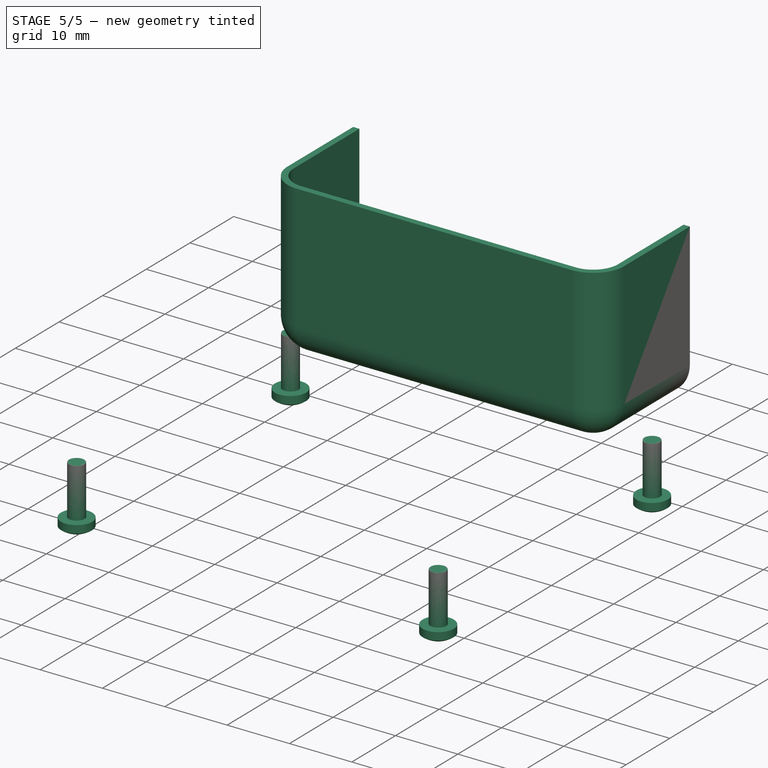
[diagram: stage 5 of 5 — iso view after this stage's code; geometry added in this stage tinted green]
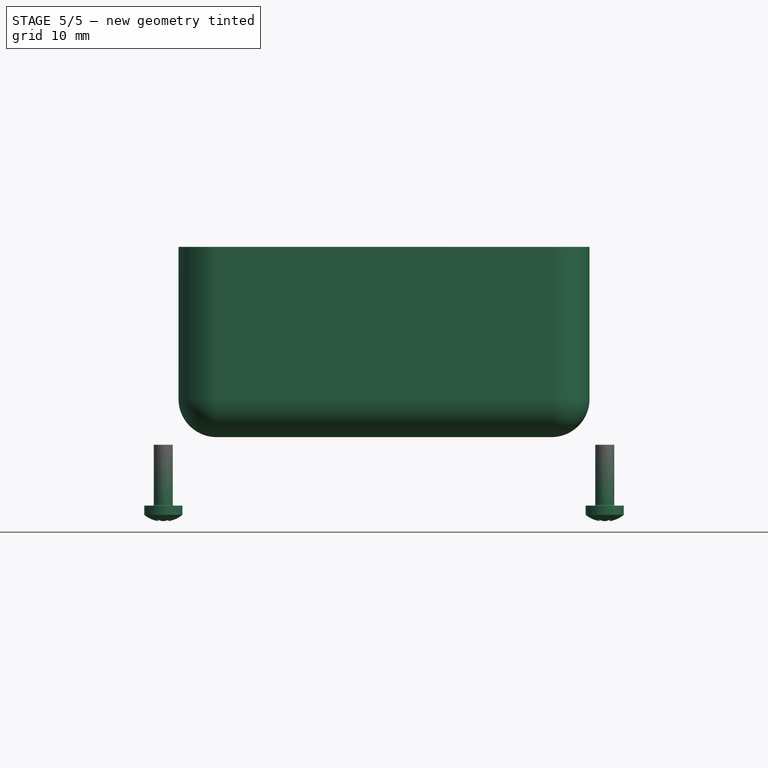
[diagram: stage 5 of 5 — front view after this stage's code; geometry added in this stage tinted green]
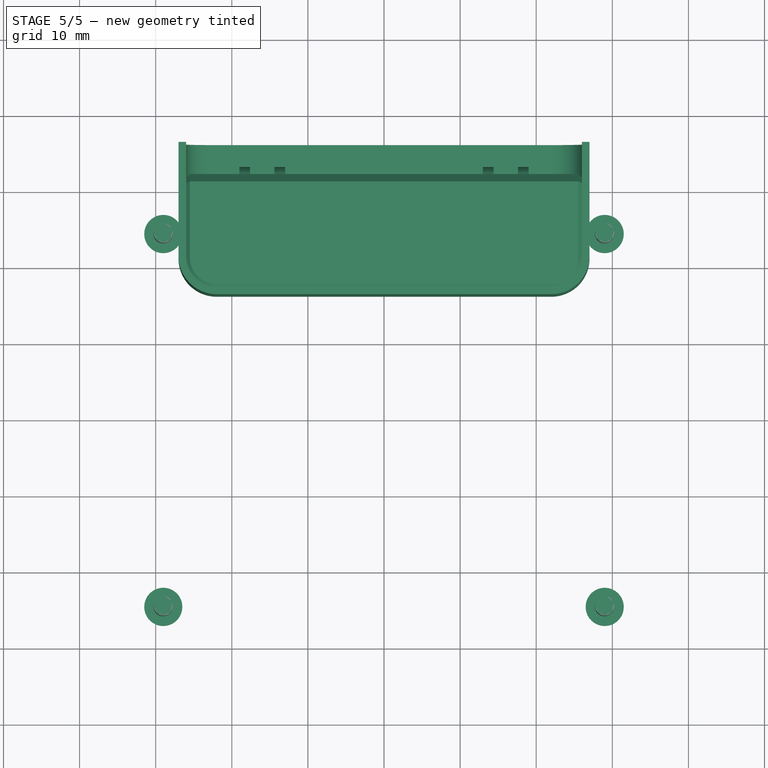
[diagram: stage 5 of 5 — top view after this stage's code; geometry added in this stage tinted green]
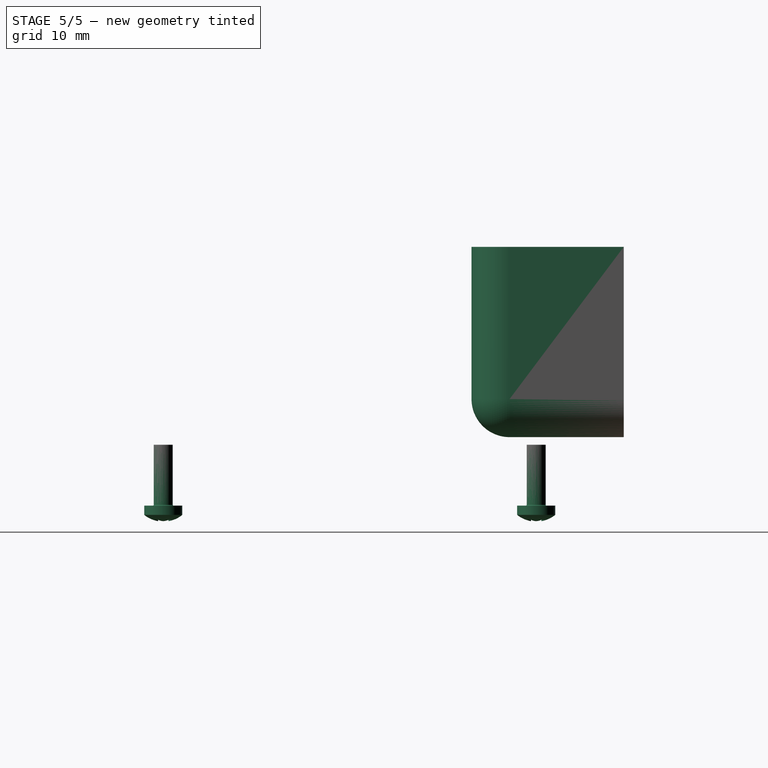
[diagram: stage 5 of 5 — right view after this stage's code; geometry added in this stage tinted green]
FEATURE [PartDesign::SubShapeBinder] Binder006  label="Binder006(Mainboard)..."
  BindCopyOnChange = 0
  BindMode = 0
  ClaimChildren = false
  Context = -> Part [Body015.Binder006.]
  FillStyle = 0
  Fuse = false
  MakeFace = true
  PartialLoad = false
  Relative = true
  Support = -> [Part001[Body.,Body012.Fillet026.Face166]]
  _Version = 8
FEATURE [Sketcher::SketchObject] Sketch076
  ExternalGeometry = -> [Binder006]
  FullyConstrained = true
  MapMode = 5
  Placement = pos=(0,-28,0) rot=(1,0,0;1.5708rad)
  Support = -> [Binder006]
  sketch-geometry (11):
    g0: LineSegment [constr] StartX=45.12 StartY=14.39 StartZ=0 EndX=35.12 EndY=14.39 EndZ=0
    g1: ArcOfCircle CenterX=35.12 CenterY=12.39 CenterZ=0 NormalX=0 NormalY=0 NormalZ=1 AngleXU=0 Radius=2 StartAngle=1.5708 EndAngle=3.14159
    g2: LineSegment StartX=33.12 StartY=12.39 StartZ=0 EndX=33.12 EndY=9.39 EndZ=0
    g3: ArcOfCircle CenterX=31.12 CenterY=9.39 CenterZ=0 NormalX=0 NormalY=0 NormalZ=1 AngleXU=0 Radius=2 StartAngle=4.71239 EndAngle=6.28319
    g4: LineSegment StartX=31.12 StartY=7.39 StartZ=0 EndX=19.12 EndY=7.39 EndZ=0
    g5: ArcOfCircle CenterX=19.12 CenterY=9.39 CenterZ=0 NormalX=0 NormalY=0 NormalZ=1 AngleXU=0 Radius=2 StartAngle=3.14159 EndAngle=4.71239
    g6: ArcOfCircle CenterX=11.12 CenterY=9.39 CenterZ=0 NormalX=0 NormalY=0 NormalZ=1 AngleXU=0 Radius=6 StartAngle=0 EndAngle=1.5708
    g7: LineSegment StartX=11.12 StartY=15.39 StartZ=0 EndX=-31.88 EndY=15.39 EndZ=0
    g8: ArcOfCircle CenterX=-31.88 CenterY=9.39 CenterZ=0 NormalX=0 NormalY=0 NormalZ=1 AngleXU=0 Radius=6 StartAngle=1.5708 EndAngle=3.14159
    g9: ArcOfCircle CenterX=-39.88 CenterY=9.39 CenterZ=0 NormalX=0 NormalY=0 NormalZ=1 AngleXU=0 Radius=2 StartAngle=4.71239 EndAngle=6.28319
    g10: LineSegment [constr] StartX=-39.88 StartY=7.39 StartZ=0 EndX=-49.88 EndY=7.39 EndZ=0
  constraints (29):
    c: Horizontal(g0)
    c: Tangent(g0,g1) = -1.5708
    c: Tangent(g1,g2) = -1.5708
    c: Tangent(g2,g3) = 1.5708
    c: Horizontal(g4)
    c: Tangent(g4,g5) = 1.5708
    c: Tangent(g5,g6) = 1.5708
    c: Horizontal(g7)
    c: Tangent(g7,g8) = -1.5708
    c: Tangent(g8,g9) = 1.5708
    c: Tangent(g9,g10) = 1.5708
    c: Horizontal(g10)
    c: Tangent(g6,g7) = -1.5708
    c: Tangent(g3,g4) = 1.5708
    c: Vertical(g2)
    c: DistanceX(g0,g0) = 10
    c: Equal(g1,g3)
    c: Equal(g3,g5)
    c: Equal(g5,g9)
    c: Radius(g1) = 2
    c: DistanceY(g2,g2) = 3
    c: Equal(g6,g8)
    c: Radius(g6) = 6
    c: Horizontal(g6,g5)
    c: DistanceX(g7,g7) = 43
    c: Horizontal(g8,g8)
    c: DistanceX(g10,g10) = 10
    c: DistanceX(g4,g4) = 12
    c: Symmetric(g-4,g-4,g0)
FEATURE [Sketcher::SketchObject] Sketch077
  ExternalGeometry = -> [Sketch076]
  FullyConstrained = true
  MapMode = 5
  Placement = pos=(0,28,0) rot=(0,0.707107,0.707107;3.14159rad)
  Support = -> [Binder006]
  sketch-geometry (4):
    g0: ArcOfCircle CenterX=-35.12 CenterY=12.39 CenterZ=0 NormalX=0 NormalY=0 NormalZ=1 AngleXU=0 Radius=2 StartAngle=0 EndAngle=1.5708
    g1: ArcOfCircle CenterX=-31.12 CenterY=9.39 CenterZ=0 NormalX=0 NormalY=0 NormalZ=1 AngleXU=0 Radius=2 StartAngle=3.14159 EndAngle=4.71239
    g2: LineSegment StartX=-33.12 StartY=12.39 StartZ=0 EndX=-33.12 EndY=9.39 EndZ=0
    g3: LineSegment StartX=-31.12 StartY=7.39 StartZ=0 EndX=39.88 EndY=7.39 EndZ=0
  constraints (10):
    c: Coincident(g0,g-3)
    c: Coincident(g0,g-3)
    c: Coincident(g1,g-4)
    c: Coincident(g1,g-4)
    c: Equal(g-3,g0)
    c: Equal(g0,g1)
    c: Coincident(g2,g0)
    c: Coincident(g2,g1)
    c: Coincident(g3,g1)
    c: Coincident(g3,g-5)
FEATURE [PartDesign::Extrusion] Extrusion
  ClaimChildren = false
  Direction = (1,1,1)
  Fit = 0
  FitJoin = 0
  InnerFit = 0
  InnerFitJoin = 0
  InnerTaperAngle = 0
  InnerTaperAngleRev = 0
  Length = 15
  Length2 = 100
  NewSolid = false
  Profile = -> Sketch076
  Refine = true
  Suppress = false
  Type = 0
FEATURE [PartDesign::Extrusion] Extrusion001
  ClaimChildren = false
  Direction = (1,1,1)
  Fit = 0
  FitJoin = 0
  InnerFit = 0
  InnerFitJoin = 0
  InnerTaperAngle = 0
  InnerTaperAngleRev = 0
  Length = 15
  Length2 = 100
  NewSolid = false
  Profile = -> Sketch077
  Refine = true
  Suppress = false
  Type = 0
FEATURE [PartDesign::Plane] DatumPlane004
  AttachmentOffset = pos=(0,0,0) rot=(0,1,0;1.5708rad)
  Length = 56
  MapMode = 45
  MinimumLength = 10
  MinimumWidth = 10
  Placement = pos=(35.12,0,14.39) rot=(-0.57735,0.57735,0.57735;4.18879rad)
  ResizeMode = 0
  Support = -> [Extrusion,Extrusion001]
  Width = 11.19
FEATURE [Sketcher::SketchObject] Sketch078
  ExternalGeometry = -> [Extrusion001,Extrusion]
  FullyConstrained = true
  MapMode = 5
  Placement = pos=(35.12,0,14.39) rot=(0.57735,-0.57735,-0.57735;2.0944rad)
  Support = -> [DatumPlane004]
  sketch-geometry (1):
    g0: LineSegment StartX=-43 StartY=0 StartZ=0 EndX=43 EndY=0 EndZ=0
  constraints (2):
    c: Coincident(g0,g-4)
    c: Coincident(g0,g-3)
FEATURE [PartDesign::Extrusion] Extrusion002
  ClaimChildren = false
  Direction = (1,1,1)
  Fit = 0
  FitJoin = 0
  InnerFit = 0
  InnerFitJoin = 0
  InnerTaperAngle = 0
  InnerTaperAngleRev = 0
  Length = 15
  Length2 = 100
  NewSolid = false
  Placement = pos=(35.12,0,14.39) rot=(-0.57735,0.57735,0.57735;4.18879rad)
  Profile = -> Sketch078
  Refine = true
  Reversed = true
  Suppress = false
  Type = 0
FEATURE [PartDesign::Plane] DatumPlane005
  AttachmentOffset = pos=(0,0,0) rot=(0,1,0;1.5708rad)
  Length = 56
  MapMode = 45
  MinimumLength = 10
  MinimumWidth = 10
  Placement = pos=(-39.88,0,7.39) rot=(-0.57735,0.57735,0.57735;4.18879rad)
  ResizeMode = 0
  Support = -> [Extrusion001,Extrusion]
  Width = 11.19
FEATURE [Sketcher::SketchObject] Sketch079
  ExternalGeometry = -> [Extrusion,Extrusion001]
  FullyConstrained = true
  MapMode = 5
  Placement = pos=(-39.88,0,7.39) rot=(0.57735,-0.57735,-0.57735;2.0944rad)
  Support = -> [DatumPlane005]
  sketch-geometry (1):
    g0: LineSegment StartX=-43 StartY=0 StartZ=0 EndX=43 EndY=0 EndZ=0
  constraints (2):
    c: Coincident(g0,g-4)
    c: Coincident(g0,g-3)
FEATURE [PartDesign::Extrusion] Extrusion003
  ClaimChildren = false
  Direction = (1,1,1)
  Fit = 0
  FitJoin = 0
  InnerFit = 0
  InnerFitJoin = 0
  InnerTaperAngle = 0
  InnerTaperAngleRev = 0
  Length = 15
  Length2 = 100
  NewSolid = false
  Placement = pos=(-39.88,0,7.39) rot=(-0.57735,0.57735,0.57735;4.18879rad)
  Profile = -> Sketch079
  Refine = true
  Suppress = false
  Type = 0
FEATURE [PartDesign::SubShapeBinder] Binder007  label="Binder007(Extrusion)..."
  BindCopyOnChange = 0
  BindMode = 0
  ClaimChildren = false
  Context = -> Part [Body015.Binder007.]
  FillStyle = 0
  Fuse = true
  MakeFace = true
  PartialLoad = false
  Relative = true
  Support = -> [Extrusion,Extrusion001,Extrusion003,Extrusion002]
  _Version = 8
FEATURE [Sketcher::SketchObject] Sketch080
  AttachmentOffset = pos=(0,0,5) rot=(0,0,1;0rad)
  ExternalGeometry = -> [Binder006]
  FullyConstrained = true
  MapMode = 5
  Placement = pos=(0,0,11) rot=(0,0,1;0rad)
  Support = -> [Binder006]
  sketch-geometry (4):
    g0: LineSegment StartX=-37 StartY=36 StartZ=0 EndX=17 EndY=36 EndZ=0
    g1: LineSegment StartX=17 StartY=36 StartZ=0 EndX=17 EndY=16 EndZ=0
    g2: LineSegment StartX=17 StartY=16 StartZ=0 EndX=-37 EndY=16 EndZ=0
    g3: LineSegment StartX=-37 StartY=16 StartZ=0 EndX=-37 EndY=36 EndZ=0
  constraints (12):
    c: Coincident(g0,g1)
    c: Coincident(g1,g2)
    c: Coincident(g2,g3)
    c: Coincident(g3,g0)
    c: Horizontal(g0)
    c: Horizontal(g2)
    c: Vertical(g1)
    c: Vertical(g3)
    c: DistanceX(g1,g-4) = 2
    c: DistanceX(g-3,g2) = 2
    c: DistanceY(g1,g1) = 20
    c: DistanceY(g-1,g1) = 16
FEATURE [PartDesign::Pad] Pad053
  ClaimChildren = false
  Direction = (1,1,1)
  Fit = 0
  FitJoin = 0
  InnerFit = 0
  InnerFitJoin = 0
  InnerTaperAngle = 0
  InnerTaperAngleRev = 0
  Length = 25
  Length2 = 100
  NewSolid = false
  Profile = -> Sketch080
  Refine = true
  Suppress = false
  Type = 0
FEATURE [PartDesign::Thickness] Thickness002
  Base = -> Pad053 [Face6,Face1]
  BaseFeature = -> Pad053
  Intersection = false
  Join = 0
  Mode = 0
  NewSolid = false
  Refine = true
  Reversed = true
  SupportTransform = false
  Suppress = false
  Value = 1
FEATURE [PartDesign::Fillet] Fillet035
  Base = -> Thickness002 [Edge21,Edge20,Edge24,Edge23,Edge22]
  BaseFeature = -> Thickness002
  NewSolid = false
  Radius = 4
  Refine = true
  SupportTransform = false
  Suppress = false
FEATURE [PartDesign::Fillet] Fillet036
  Base = -> Fillet035 [Edge26,Edge25,Edge29,Edge32,Edge30]
  BaseFeature = -> Fillet035
  NewSolid = false
  Radius = 5
  Refine = true
  SupportTransform = false
  Suppress = false
FEATURE [PartDesign::Body] Body015  label="Separation_Plane"
  AutoGroupSolids = false
  ExportMode = 0
  Group = -> [Binder006,Sketch076,Sketch077,Extrusion,Extrusion001,DatumPlane004,Sketch078,Extrusion002,DatumPlane005,Sketch079,Extrusion003,Binder007,Sketch080,Pad053,Thickness002,Fillet035,Fillet036]
  Origin = -> Origin017
  Tip = -> Fillet036
  _ExportChildren = -> [Binder006,Sketch076,Sketch077,Extrusion,Extrusion001,DatumPlane004,Sketch078,Extrusion002,DatumPlane005,Sketch079,Extrusion003,Binder007,Pad053,Thickness002,Fillet035,Fillet036]
  _GroupVersion = 1
FEATURE [PartDesign::SubShapeBinder] BaseFeature  label="BaseFeature(Split001_i0)"
  BindCopyOnChange = 0
  BindMode = 0
  ClaimChildren = false
  Context = -> Part [Body016.BaseFeature.]
  FillStyle = 0
  Fuse = true
  MakeFace = true
  PartialLoad = false
  Relative = true
  Support = -> [Body014[Split001_i0.]]
  _Version = 8
FEATURE [PartDesign::SubShapeBinder] BaseFeature001  label="BaseFeature001(Split001_i1)"
  BindCopyOnChange = 0
  BindMode = 0
  ClaimChildren = false
  Context = -> Part [Body017.BaseFeature001.]
  FillStyle = 0
  Fuse = true
  MakeFace = true
  PartialLoad = false
  Relative = true
  Support = -> [Body014[Split001_i1.]]
  _Version = 8
FEATURE [PartDesign::SubShapeBinder] BaseFeature002  label="BaseFeature002(Split001_i3)"
  BindCopyOnChange = 0
  BindMode = 0
  ClaimChildren = false
  Context = -> Part [Body018.BaseFeature002.]
  FillStyle = 0
  Fuse = true
  MakeFace = true
  PartialLoad = false
  Relative = true
  Support = -> [Body014[Split001_i3.]]
  _Version = 8
FEATURE [PartDesign::Chamfer] Chamfer010
  Angle = 45
  Base = -> BaseFeature [Edge41]
  ChamferType = 0
  FlipDirection = false
  NewSolid = false
  Refine = true
  Size = 0.2
  Size2 = 1
  SupportTransform = false
  Suppress = false
FEATURE [Sketcher::SketchObject] Sketch081
  ExternalGeometry = -> [Chamfer010]
  FullyConstrained = true
  MapMode = 5
  Support = -> [XY_Plane019]
  sketch-geometry (40):
    g0: LineSegment [constr] StartX=-39 StartY=25.5 StartZ=0 EndX=43.25 EndY=25.5 EndZ=0
    g1: LineSegment [constr] StartX=43.25 StartY=25.5 StartZ=0 EndX=43.25 EndY=23.5 EndZ=0
    g2: LineSegment [constr] StartX=43.25 StartY=23.5 StartZ=0 EndX=-39 EndY=23.5 EndZ=0
    g3: LineSegment [constr] StartX=-39 StartY=23.5 StartZ=0 EndX=-39 EndY=25.5 EndZ=0
    g4: LineSegment [constr] StartX=-39 StartY=-23.5 StartZ=0 EndX=43.25 EndY=-23.5 EndZ=0
    g5: LineSegment [constr] StartX=43.25 StartY=-23.5 StartZ=0 EndX=43.25 EndY=-25.5 EndZ=0
    g6: LineSegment [constr] StartX=43.25 StartY=-25.5 StartZ=0 EndX=-39 EndY=-25.5 EndZ=0
    g7: LineSegment [constr] StartX=-39 StartY=-25.5 StartZ=0 EndX=-39 EndY=-23.5 EndZ=0
    g8: LineSegment [constr] StartX=-25 StartY=25.5 StartZ=0 EndX=-23 EndY=25.5 EndZ=0
    g9: LineSegment [constr] StartX=-23 StartY=25.5 StartZ=0 EndX=-23 EndY=23.5 EndZ=0
    g10: LineSegment [constr] StartX=-23 StartY=23.5 StartZ=0 EndX=-25 EndY=23.5 EndZ=0
    g11: LineSegment [constr] StartX=-25 StartY=23.5 StartZ=0 EndX=-25 EndY=25.5 EndZ=0
    g12: LineSegment [constr] StartX=18 StartY=25.5 StartZ=0 EndX=20 EndY=25.5 EndZ=0
    g13: LineSegment [constr] StartX=20 StartY=25.5 StartZ=0 EndX=20 EndY=23.5 EndZ=0
    g14: LineSegment [constr] StartX=20 StartY=23.5 StartZ=0 EndX=18 EndY=23.5 EndZ=0
    g15: LineSegment [constr] StartX=18 StartY=23.5 StartZ=0 EndX=18 EndY=25.5 EndZ=0
    g16: LineSegment [constr] StartX=-23 StartY=-23.5 StartZ=0 EndX=-25 EndY=-23.5 EndZ=0
    g17: LineSegment [constr] StartX=-25 StartY=-23.5 StartZ=0 EndX=-25 EndY=-25.5 EndZ=0
    g18: LineSegment [constr] StartX=-25 StartY=-25.5 StartZ=0 EndX=-23 EndY=-25.5 EndZ=0
    g19: LineSegment [constr] StartX=-23 StartY=-25.5 StartZ=0 EndX=-23 EndY=-23.5 EndZ=0
    g20: LineSegment [constr] StartX=18 StartY=-23.5 StartZ=0 EndX=20 EndY=-23.5 EndZ=0
    g21: LineSegment [constr] StartX=20 StartY=-23.5 StartZ=0 EndX=20 EndY=-25.5 EndZ=0
    g22: LineSegment [constr] StartX=20 StartY=-25.5 StartZ=0 EndX=18 EndY=-25.5 EndZ=0
    g23: LineSegment [constr] StartX=18 StartY=-25.5 StartZ=0 EndX=18 EndY=-23.5 EndZ=0
    g24: LineSegment StartX=-39 StartY=23.5 StartZ=0 EndX=-39 EndY=25.5 EndZ=0
    g25: LineSegment StartX=-39 StartY=25.5 StartZ=0 EndX=43.25 EndY=25.5 EndZ=0
    g26: LineSegment StartX=43.25 StartY=25.5 StartZ=0 EndX=43.25 EndY=23.5 EndZ=0
    g27: LineSegment StartX=43.25 StartY=23.5 StartZ=0 EndX=20 EndY=23.5 EndZ=0
    g28: LineSegment StartX=20 StartY=23.5 StartZ=0 EndX=20 EndY=-23.5 EndZ=0
    g29: LineSegment StartX=20 StartY=-23.5 StartZ=0 EndX=43.25 EndY=-23.5 EndZ=0
    g30: LineSegment StartX=43.25 StartY=-23.5 StartZ=0 EndX=43.25 EndY=-25.5 EndZ=0
    g31: LineSegment StartX=43.25 StartY=-25.5 StartZ=0 EndX=-39 EndY=-25.5 EndZ=0
    g32: LineSegment StartX=-39 StartY=-25.5 StartZ=0 EndX=-39 EndY=-23.5 EndZ=0
    g33: LineSegment StartX=-39 StartY=-23.5 StartZ=0 EndX=-25 EndY=-23.5 EndZ=0
    g34: LineSegment StartX=-25 StartY=-23.5 StartZ=0 EndX=-25 EndY=23.5 EndZ=0
    g35: LineSegment StartX=-25 StartY=23.5 StartZ=0 EndX=-39 EndY=23.5 EndZ=0
    g36: LineSegment StartX=-23 StartY=23.5 StartZ=0 EndX=18 EndY=23.5 EndZ=0
    g37: LineSegment StartX=18 StartY=23.5 StartZ=0 EndX=18 EndY=-23.5 EndZ=0
    g38: LineSegment StartX=18 StartY=-23.5 StartZ=0 EndX=-23 EndY=-23.5 EndZ=0
    g39: LineSegment StartX=-23 StartY=-23.5 StartZ=0 EndX=-23 EndY=23.5 EndZ=0
  constraints (102):
    c: Coincident(g0,g1)
    c: Coincident(g1,g2)
    c: Coincident(g2,g3)
    c: Coincident(g3,g0)
    c: Horizontal(g0)
    c: Horizontal(g2)
    c: Vertical(g1)
    c: Vertical(g3)
    c: PointOnObject(g1,g-7)
    c: Coincident(g4,g5)
    c: Coincident(g5,g6)
    c: Coincident(g6,g7)
    c: Coincident(g7,g4)
    c: Horizontal(g4)
    c: Horizontal(g6)
    c: Vertical(g5)
    c: Vertical(g7)
    c: PointOnObject(g5,g-7)
    c: Equal(g3,g7)
    c: DistanceY(g7,g7) = 2
    c: Symmetric(g4,g6,g-6)
    c: Symmetric(g0,g2,g-4)
    c: Coincident(g8,g9)
    c: Coincident(g9,g10)
    c: Coincident(g10,g11)
    c: Coincident(g11,g8)
    c: Horizontal(g8)
    c: Horizontal(g10)
    c: Vertical(g9)
    c: Vertical(g11)
    c: Coincident(g12,g13)
    c: Coincident(g13,g14)
    c: Coincident(g14,g15)
    c: Coincident(g15,g12)
    c: Horizontal(g12)
    c: Horizontal(g14)
    c: Vertical(g13)
    c: Vertical(g15)
    c: Coincident(g16,g17)
    c: Coincident(g17,g18)
    c: Coincident(g18,g19)
    c: Coincident(g19,g16)
    c: Horizontal(g16)
    c: Horizontal(g18)
    c: Vertical(g17)
    c: Vertical(g19)
    c: Coincident(g20,g21)
    c: Coincident(g21,g22)
    c: Coincident(g22,g23)
    c: Coincident(g23,g20)
    c: Horizontal(g20)
    c: Horizontal(g22)
    c: Vertical(g21)
    c: Vertical(g23)
    c: Equal(g8,g11)
    c: Equal(g11,g12)
    c: Equal(g12,g15)
    c: Equal(g15,g20)
    c: Equal(g20,g23)
    c: Equal(g23,g16)
    c: Equal(g16,g17)
    c: DistanceX(g8,g8) = 2
    c: PointOnObject(g8,g0)
    c: PointOnObject(g16,g4)
    c: Symmetric(g12,g13,g-3)
    c: Symmetric(g20,g21,g-5)
    c: DistanceX(g-4,g10) = 14
    c: Coincident(g2,g24)
    c: Coincident(g24,g0)
    c: Coincident(g24,g25)
    c: Coincident(g25,g0)
    c: Coincident(g25,g26)
    c: Coincident(g26,g1)
    c: Coincident(g26,g27)
    c: Coincident(g27,g13)
    c: Coincident(g27,g28)
    c: Coincident(g28,g20)
    c: Coincident(g28,g29)
    c: Coincident(g29,g4)
    c: Coincident(g29,g30)
    c: Coincident(g30,g5)
    c: Coincident(g30,g31)
    c: Coincident(g31,g6)
    c: Coincident(g31,g32)
    c: Coincident(g32,g4)
    c: Coincident(g32,g33)
    c: Coincident(g33,g16)
    c: Coincident(g33,g34)
    c: Coincident(g34,g10)
    c: Coincident(g34,g35)
    c: Coincident(g35,g24)
    c: Vertical(g16,g9)
    c: Coincident(g36,g37)
    c: Coincident(g37,g38)
    c: Coincident(g38,g39)
    c: Coincident(g39,g36)
    c: Horizontal(g36)
    c: Horizontal(g38)
    c: Vertical(g37)
    c: Vertical(g39)
    c: Coincident(g36,g9)
    c: Coincident(g37,g20)
FEATURE [PartDesign::Pad] Pad054
  BaseFeature = -> Chamfer010
  ClaimChildren = false
  Direction = (1,1,1)
  Fit = 0
  FitJoin = 0
  InnerFit = 0
  InnerFitJoin = 0
  InnerTaperAngle = 0
  InnerTaperAngleRev = 0
  Length = 3
  Length2 = 100
  NewSolid = false
  Profile = -> Sketch081
  Refine = true
  Suppress = false
  Type = 0
FEATURE [PartDesign::Pad] Pad055
  BaseFeature = -> Pad054
  ClaimChildren = false
  Direction = (1,1,1)
  Fit = 1
  FitJoin = 0
  InnerFit = 0
  InnerFitJoin = 0
  InnerTaperAngle = 0
  InnerTaperAngleRev = 0
  Length = 10
  Length2 = 100
  NewSolid = false
  Profile = -> Pad054 [Face111,Face110,Face109,Face102]
  Refine = true
  Reversed = true
  Suppress = false
  Type = 3
  UpToFace = -> Pad054 [Face127]
FEATURE [Sketcher::SketchObject] Sketch082
  ExternalGeometry = -> [Pad055]
  FullyConstrained = true
  MapMode = 5
  Support = -> [XY_Plane019]
  sketch-geometry (4):
    g0: Circle CenterX=-39 CenterY=24.5 CenterZ=0 NormalX=0 NormalY=0 NormalZ=1 AngleXU=0 Radius=1.26
    g1: Circle CenterX=19 CenterY=24.5 CenterZ=0 NormalX=0 NormalY=0 NormalZ=1 AngleXU=0 Radius=1.26
    g2: Circle CenterX=19 CenterY=-24.5 CenterZ=0 NormalX=0 NormalY=0 NormalZ=1 AngleXU=0 Radius=1.26
    g3: Circle CenterX=-39 CenterY=-24.5 CenterZ=0 NormalX=0 NormalY=0 NormalZ=1 AngleXU=0 Radius=1.26
  constraints (8):
    c: Coincident(g0,g-3)
    c: Coincident(g1,g-4)
    c: Coincident(g2,g-5)
    c: Coincident(g3,g-6)
    c: Equal(g0,g1)
    c: Equal(g1,g2)
    c: Equal(g2,g3)
    c: Radius(g0) = 1.26
FEATURE [PartDesign::Pocket] Pocket038
  BaseFeature = -> Pad055
  ClaimChildren = false
  Fit = 0
  FitJoin = 0
  InnerFit = 0
  InnerFitJoin = 0
  InnerTaperAngle = 0
  InnerTaperAngleRev = 0
  Length = 5
  Length2 = 100
  NewSolid = false
  Profile = -> Sketch082
  Refine = true
  Reversed = true
  Suppress = false
  Type = 1
FEATURE [PartDesign::SubShapeBinder] Binder008  label="Binder008(Pocket038)..."
  BindCopyOnChange = 0
  BindMode = 0
  ClaimChildren = false
  Context = -> Part [Body016.Binder008.]
  FillStyle = 0
  Fuse = false
  MakeFace = true
  PartialLoad = false
  Relative = true
  Support = -> [Pocket038[Edge354,Edge356,Edge355,Edge353]]
  _Version = 8
FEATURE [PartDesign::Pocket] Pocket039
  BaseFeature = -> Pocket038
  ClaimChildren = false
  Fit = 1.5
  FitJoin = 0
  InnerFit = 0
  InnerFitJoin = 0
  InnerTaperAngle = 0
  InnerTaperAngleRev = 0
  Length = 2
  Length2 = 100
  NewSolid = false
  Profile = -> Binder008
  Refine = true
  Reversed = true
  Suppress = false
  Type = 0
FEATURE [PartDesign::Chamfer] Chamfer011
  Angle = 45
  Base = -> Pocket039 [Edge177,Edge170,Edge191,Edge188]
  BaseFeature = -> Pocket039
  ChamferType = 0
  FlipDirection = false
  NewSolid = false
  Refine = true
  Size = 0.5
  Size2 = 1
  SupportTransform = false
  Suppress = false
FEATURE [PartDesign::Chamfer] Chamfer013
  Angle = 45
  Base = -> Pad058 [Edge180,Edge186,Edge169,Edge173,Edge272,Edge465,Edge240,Edge436]
  BaseFeature = -> Pad058
  ChamferType = 0
  FlipDirection = false
  NewSolid = false
  Refine = true
  Size = 2
  Size2 = 1
  SupportTransform = false
  Suppress = false
FEATURE [Sketcher::SketchObject] Sketch086
  ExternalGeometry = -> [Chamfer011]
  FullyConstrained = true
  MapMode = 5
  Placement = pos=(0,3.4e-15,15.39) rot=(0,0,1;0rad)
  Support = -> [Chamfer011]
  sketch-geometry (5):
    g0: LineSegment StartX=-20.38 StartY=-30 StartZ=0 EndX=-0.38 EndY=-30 EndZ=0
    g1: LineSegment StartX=-0.38 StartY=-30 StartZ=0 EndX=-0.38 EndY=-31 EndZ=0
    g2: LineSegment StartX=-0.38 StartY=-31 StartZ=0 EndX=-20.38 EndY=-31 EndZ=0
    g3: LineSegment StartX=-20.38 StartY=-31 StartZ=0 EndX=-20.38 EndY=-30 EndZ=0
    g4: LineSegment [constr] StartX=-10.38 StartY=-31 StartZ=0 EndX=-10.38 EndY=-30 EndZ=0
  constraints (14):
    c: Coincident(g0,g1)
    c: Coincident(g1,g2)
    c: Coincident(g2,g3)
    c: Coincident(g3,g0)
    c: Horizontal(g0)
    c: Horizontal(g2)
    c: Vertical(g1)
    c: Vertical(g3)
    c: PointOnObject(g0,g-3)
    c: DistanceY(g3,g3) = 1
    c: DistanceX(g0,g0) = 20
    c: Vertical(g4)
    c: Symmetric(g2,g1,g4)
    c: Symmetric(g-3,g-3,g4)
FEATURE [Sketcher::SketchObject] Sketch087
  ExternalGeometry = -> [Chamfer011]
  FullyConstrained = true
  MapMode = 5
  Placement = pos=(-1e-16,2e-16,7.39) rot=(0,0,1;0rad)
  Support = -> [Chamfer011]
  sketch-geometry (5):
    g0: LineSegment StartX=-15.065 StartY=30 StartZ=0 EndX=4.935 EndY=30 EndZ=0
    g1: LineSegment StartX=4.935 StartY=30 StartZ=0 EndX=4.935 EndY=31 EndZ=0
    g2: LineSegment StartX=4.935 StartY=31 StartZ=0 EndX=-15.065 EndY=31 EndZ=0
    g3: LineSegment StartX=-15.065 StartY=31 StartZ=0 EndX=-15.065 EndY=30 EndZ=0
    g4: LineSegment [constr] StartX=-5.065 StartY=31 StartZ=0 EndX=-5.065 EndY=30 EndZ=0
  constraints (14):
    c: Coincident(g0,g1)
    c: Coincident(g1,g2)
    c: Coincident(g2,g3)
    c: Coincident(g3,g0)
    c: Horizontal(g0)
    c: Horizontal(g2)
    c: Vertical(g1)
    c: Vertical(g3)
    c: PointOnObject(g0,g-3)
    c: DistanceX(g2,g2) = 20
    c: DistanceY(g1,g1) = 1
    c: Vertical(g4)
    c: Symmetric(g2,g1,g4)
    c: Symmetric(g-3,g-3,g4)
FEATURE [PartDesign::Pad] Pad059
  BaseFeature = -> Chamfer011
  ClaimChildren = false
  Direction = (1,1,1)
  Fit = 0
  FitJoin = 0
  InnerFit = 0
  InnerFitJoin = 0
  InnerTaperAngle = 0
  InnerTaperAngleRev = 0
  Length = 1
  Length2 = 100
  NewSolid = false
  Profile = -> Sketch086
  Refine = true
  Suppress = false
  Type = 0
FEATURE [PartDesign::Pad] Pad060
  BaseFeature = -> Pad059
  ClaimChildren = false
  Direction = (1,1,1)
  Fit = 0
  FitJoin = 0
  InnerFit = 0
  InnerFitJoin = 0
  InnerTaperAngle = 0
  InnerTaperAngleRev = 0
  Length = 1
  Length2 = 100
  NewSolid = false
  Profile = -> Sketch087
  Refine = true
  Suppress = false
  Type = 0
FEATURE [PartDesign::Body] Body016  label="Bottom"
  AutoGroupSolids = false
  BaseFeature = -> BaseFeature
  ExportMode = 0
  Group = -> [BaseFeature,Chamfer010,Sketch081,Pad054,Pad055,Sketch082,Pocket038,Binder008,Pocket039,Chamfer011,Sketch086,Sketch087,Pad059,Pad060]
  Origin = -> Origin018
  Tip = -> Pad060
  _ExportChildren = -> [BaseFeature,Chamfer010,Pad054,Pad055,Pocket038,Pocket039,Chamfer011,Pad059,Pad060]
  _GroupVersion = 1
FEATURE [Part::FeaturePython] Screw  label="M2.5x8-Screw"  # Fasteners workbench fastener (typed FeaturePython)
  Placement = pos=(19,-24.5,2) rot=(-1,0,0;3.14159rad)
  baseObject = -> Body016 [Edge408]
  diameter = 3
  invert = false
  length = 4
  lengthCustom = 8
  matchOuter = false
  offset = 0
  thread = false
  type = 34
FEATURE [Part::FeaturePython] Screw001  label="M2.5x8-Screw031"  # Fasteners workbench fastener (typed FeaturePython)
  Placement = pos=(19,24.5,2) rot=(-1,0,0;3.14159rad)
  baseObject = -> Body016 [Edge180]
  diameter = 3
  invert = false
  length = 4
  lengthCustom = 8
  matchOuter = false
  offset = 0
  thread = false
  type = 34
FEATURE [Part::FeaturePython] Screw002  label="M2.5x8-Screw032"  # Fasteners workbench fastener (typed FeaturePython)
  Placement = pos=(-39,24.5,2) rot=(-1,0,0;3.14159rad)
  baseObject = -> Body016 [Edge410]
  diameter = 3
  invert = false
  length = 4
  lengthCustom = 8
  matchOuter = false
  offset = 0
  thread = false
  type = 34
FEATURE [Part::FeaturePython] Screw003  label="M2.5x8-Screw033"  # Fasteners workbench fastener (typed FeaturePython)
  Placement = pos=(-39,-24.5,2) rot=(-1,0,0;3.14159rad)
  baseObject = -> Body016 [Edge412]
  diameter = 3
  invert = false
  length = 4
  lengthCustom = 8
  matchOuter = false
  offset = 0
  thread = false
  type = 34
FEATURE [PartDesign::SubShapeBinder] Binder012  label="Binder012(Pad060)..."
  BindCopyOnChange = 0
  BindMode = 2
  ClaimChildren = false
  Context = -> Part [Body017.Binder012.]
  FillStyle = 0
  Fuse = false
  MakeFace = true
  PartialLoad = false
  Relative = true
  _Version = 8
FEATURE [PartDesign::Pocket] Pocket042
  BaseFeature = -> Chamfer013
  ClaimChildren = false
  Fit = 0
  FitJoin = 1
  InnerFit = 0
  InnerFitJoin = 0
  InnerTaperAngle = 0
  InnerTaperAngleRev = 0
  Length = 5
  Length2 = 100
  NewSolid = false
  Profile = -> Binder012
  Refine = true
  Suppress = false
  Type = 0
FEATURE [PartDesign::Chamfer] Chamfer014
  Angle = 45
  Base = -> Pocket042 [Edge531,Edge527,Edge520,Edge288,Edge286,Edge536]
  BaseFeature = -> Pocket042
  ChamferType = 0
  FlipDirection = false
  NewSolid = false
  Refine = true
  Size = 0.5
  Size2 = 1
  SupportTransform = false
  Suppress = false
FEATURE [PartDesign::Plane] DatumPlane007
  AttachmentOffset = pos=(6,0,0) rot=(0,1,0;1.5708rad)
  Length = 30
  MapMode = 7
  MinimumLength = 10
  MinimumWidth = 10
  Placement = pos=(-26,30,11) rot=(0.57735,0.57735,0.57735;2.0944rad)
  ResizeMode = 0
  Support = -> [Chamfer014]
  Width = 11
FEATURE [PartDesign::Plane] DatumPlane008
  AttachmentOffset = pos=(6,0,0) rot=(0,1,0;1.5708rad)
  Length = 64.9909
  MapMode = 7
  MinimumLength = 10
  MinimumWidth = 10
  Placement = pos=(6,31.5,11) rot=(-0.57735,0.57735,0.57735;4.18879rad)
  ResizeMode = 0
  Support = -> [Chamfer014]
  Width = 18.78
FEATURE [Sketcher::SketchObject] Sketch088
  ExternalGeometry = -> [Chamfer014]
  FullyConstrained = true
  MapMode = 5
  Placement = pos=(-26,30,11) rot=(0.57735,0.57735,0.57735;2.0944rad)
  Support = -> [DatumPlane007]
  sketch-geometry (4):
    g0: ArcOfCircle CenterX=1 CenterY=2.73205 CenterZ=0 NormalX=0 NormalY=0 NormalZ=1 AngleXU=0 Radius=2 StartAngle=5.23599 EndAngle=10.472
    g1: LineSegment StartX=-9e-16 StartY=1 StartZ=0 EndX=3.6e-15 EndY=0 EndZ=0
    g2: LineSegment StartX=3.6e-15 StartY=0 StartZ=0 EndX=2 EndY=-0.5 EndZ=0
    g3: LineSegment StartX=2 StartY=-0.5 StartZ=0 EndX=2 EndY=1 EndZ=0
  constraints (11):
    c: PointOnObject(g0,g-2)
    c: Radius(g0) = 2
    c: Coincident(g0,g1)
    c: Coincident(g1,g-4)
    c: Coincident(g1,g2)
    c: Coincident(g2,g-3)
    c: Coincident(g2,g3)
    c: Coincident(g3,g0)
    c: Vertical(g3)
    c: DistanceY(g1,g1) = 1
    c: Horizontal(g0,g0)
FEATURE [PartDesign::Pad] Pad061
  BaseFeature = -> Chamfer014
  ClaimChildren = false
  Direction = (1,1,1)
  Fit = 0
  FitJoin = 0
  InnerFit = 0
  InnerFitJoin = 0
  InnerTaperAngle = 0
  InnerTaperAngleRev = 0
  Length = 3
  Length2 = 100
  Midplane = true
  NewSolid = false
  Profile = -> Sketch088
  Refine = true
  Suppress = false
  Type = 0
FEATURE [Sketcher::SketchObject] Sketch089
  ExternalGeometry = -> [Pad061]
  FullyConstrained = true
  MapMode = 5
  Placement = pos=(6,31.5,11) rot=(0.57735,-0.57735,-0.57735;2.0944rad)
  Support = -> [DatumPlane008]
  sketch-geometry (4):
    g0: ArcOfCircle CenterX=0.5 CenterY=2.73205 CenterZ=0 NormalX=0 NormalY=0 NormalZ=1 AngleXU=0 Radius=2 StartAngle=5.23599 EndAngle=10.472
    g1: LineSegment StartX=-0.5 StartY=1 StartZ=0 EndX=-0.5 EndY=-0.5 EndZ=0
    g2: LineSegment StartX=-0.5 StartY=-0.5 StartZ=0 EndX=1.5 EndY=0 EndZ=0
    g3: LineSegment StartX=1.5 StartY=0 StartZ=0 EndX=1.5 EndY=1 EndZ=0
  constraints (11):
    c: Coincident(g0,g1)
    c: Coincident(g1,g-4)
    c: Coincident(g1,g2)
    c: Coincident(g2,g-3)
    c: Coincident(g2,g3)
    c: Coincident(g3,g0)
    c: Vertical(g3)
    c: Vertical(g1)
    c: Horizontal(g0,g0)
    c: Radius(g0) = 2
    c: DistanceY(g3,g3) = 1
FEATURE [PartDesign::Pad] Pad062
  BaseFeature = -> Pad061
  ClaimChildren = false
  Direction = (1,1,1)
  Fit = 0
  FitJoin = 0
  InnerFit = 0
  InnerFitJoin = 0
  InnerTaperAngle = 0
  InnerTaperAngleRev = 0
  Length = 3
  Length2 = 100
  Midplane = true
  NewSolid = false
  Profile = -> Sketch089
  Refine = true
  Suppress = false
  Type = 0
FEATURE [Sketcher::SketchObject] Sketch090
  ExternalGeometry = -> [Pad062]
  FullyConstrained = true
  MapMode = 5
  Placement = pos=(-26,30,11) rot=(0.57735,0.57735,0.57735;2.0944rad)
  Support = -> [DatumPlane007]
  sketch-geometry (1):
    g0: Circle CenterX=1 CenterY=2.73205 CenterZ=0 NormalX=0 NormalY=0 NormalZ=1 AngleXU=0 Radius=1
  constraints (2):
    c: Coincident(g0,g-3)
    c: Radius(g0) = 1
FEATURE [PartDesign::Pad] Pad063
  BaseFeature = -> Pad062
  ClaimChildren = false
  Direction = (1,1,1)
  Fit = 0
  FitJoin = 0
  InnerFit = 0
  InnerFitJoin = 0
  InnerTaperAngle = 0
  InnerTaperAngleRev = 0
  Length = 3.5
  Length2 = 100
  Midplane = true
  NewSolid = false
  Profile = -> Sketch090
  Refine = true
  Suppress = false
  Type = 0
FEATURE [Sketcher::SketchObject] Sketch091
  ExternalGeometry = -> [Pad063]
  FullyConstrained = true
  MapMode = 5
  Placement = pos=(6,31.5,11) rot=(0.57735,-0.57735,-0.57735;2.0944rad)
  Support = -> [DatumPlane008]
  sketch-geometry (1):
    g0: Circle CenterX=0.5 CenterY=2.73205 CenterZ=0 NormalX=0 NormalY=0 NormalZ=1 AngleXU=0 Radius=1
  constraints (2):
    c: Coincident(g0,g-3)
    c: Radius(g0) = 1
FEATURE [PartDesign::Pad] Pad064
  BaseFeature = -> Pad063
  ClaimChildren = false
  Direction = (1,1,1)
  Fit = 0
  FitJoin = 0
  InnerFit = 0
  InnerFitJoin = 0
  InnerTaperAngle = 0
  InnerTaperAngleRev = 0
  Length = 3.5
  Length2 = 100
  Midplane = true
  NewSolid = false
  Profile = -> Sketch091
  Refine = true
  Suppress = false
  Type = 0
FEATURE [PartDesign::Fillet] Fillet037
  Base = -> Pad064 [Edge388,Edge387,Edge385,Edge67]
  BaseFeature = -> Pad064
  NewSolid = false
  Radius = 0.2
  Refine = true
  SupportTransform = false
  Suppress = false
FEATURE [PartDesign::Chamfer] Chamfer015
  Angle = 45
  Base = -> Fillet037 [Edge112,Edge109,Edge35,Edge8,Edge60,Edge24,Edge6,Edge26,Edge28,Edge56,Edge58,Edge10]
  BaseFeature = -> Fillet037
  ChamferType = 0
  FlipDirection = false
  NewSolid = false
  Refine = true
  Size = 0.5
  Size2 = 1
  SupportTransform = false
  Suppress = false
FEATURE [PartDesign::Chamfer] Chamfer016
  Angle = 45
  Base = -> Chamfer015 [Edge39,Edge29,Edge216,Edge256,Edge28]
  BaseFeature = -> Chamfer015
  ChamferType = 0
  FlipDirection = false
  NewSolid = false
  Refine = true
  Size = 0.5
  Size2 = 1
  SupportTransform = false
  Suppress = false
FEATURE [PartDesign::Chamfer] Chamfer017
  Angle = 45
  Base = -> BaseFeature002 [Edge18,Edge29,Edge31,Edge13,Edge2,Edge8,Edge26,Edge24,Edge22,Edge4]
  ChamferType = 0
  FlipDirection = false
  NewSolid = false
  Refine = true
  Size = 0.5
  Size2 = 1
  SupportTransform = false
  Suppress = false
FEATURE [PartDesign::SubShapeBinder] Binder013  label="Binder013(Sketch088)..."
  BindCopyOnChange = 0
  BindMode = 0
  ClaimChildren = false
  Context = -> Part [Body018.Binder013.]
  FillStyle = 0
  Fuse = false
  MakeFace = false
  PartialLoad = false
  Relative = true
  Support = -> [Body017[Sketch088.,Sketch089.]]
  _Version = 8
FEATURE [PartDesign::Plane] DatumPlane009
  Length = 16.1
  MapMode = 13
  MinimumLength = 10
  MinimumWidth = 10
  Placement = pos=(-26,31.3333,11.5) rot=(0.57735,0.57735,0.57735;2.0944rad)
  ResizeMode = 0
  Support = -> [Binder013]
  Width = 13.5
FEATURE [PartDesign::Plane] DatumPlane010
  Length = 16.1
  MapMode = 13
  MinimumLength = 10
  MinimumWidth = 10
  Placement = pos=(6,31.3333,11.5) rot=(0.57735,0.57735,0.57735;2.0944rad)
  ResizeMode = 0
  Support = -> [Binder013]
  Width = 14.5
FEATURE [Sketcher::SketchObject] Sketch092
  ExternalGeometry = -> [Binder013]
  FullyConstrained = true
  MapMode = 5
  Placement = pos=(-26,31.3333,11.5) rot=(0.57735,0.57735,0.57735;2.0944rad)
  Support = -> [DatumPlane009]
  sketch-geometry (1):
    g0: Circle CenterX=-0.333333 CenterY=2.23205 CenterZ=0 NormalX=0 NormalY=0 NormalZ=1 AngleXU=0 Radius=2.1
  constraints (2):
    c: Coincident(g0,g-3)
    c: Radius(g0) = 2.1
FEATURE [PartDesign::Pad] Pad065
  BaseFeature = -> Chamfer017
  ClaimChildren = false
  Direction = (1,1,1)
  Fit = 0
  FitJoin = 0
  InnerFit = 0
  InnerFitJoin = 0
  InnerTaperAngle = 0
  InnerTaperAngleRev = 0
  Length = 6
  Length2 = 100
  Midplane = true
  NewSolid = false
  Profile = -> Sketch092
  Refine = true
  Suppress = false
  Type = 0
FEATURE [Sketcher::SketchObject] Sketch093
  ExternalGeometry = -> [Binder013]
  FullyConstrained = true
  MapMode = 5
  Placement = pos=(6,31.3333,11.5) rot=(0.57735,0.57735,0.57735;2.0944rad)
  Support = -> [DatumPlane010]
  sketch-geometry (1):
    g0: Circle CenterX=-0.333333 CenterY=2.23205 CenterZ=0 NormalX=0 NormalY=0 NormalZ=1 AngleXU=0 Radius=2.1
  constraints (2):
    c: Coincident(g0,g-3)
    c: Radius(g0) = 2.1
FEATURE [PartDesign::Pad] Pad066
  BaseFeature = -> Pad065
  ClaimChildren = false
  Direction = (1,1,1)
  Fit = 0
  FitJoin = 0
  InnerFit = 0
  InnerFitJoin = 0
  InnerTaperAngle = 0
  InnerTaperAngleRev = 0
  Length = 6
  Length2 = 100
  Midplane = true
  NewSolid = false
  Profile = -> Sketch093
  Refine = true
  Suppress = false
  Type = 0
FEATURE [Sketcher::SketchObject] Sketch094
  ExternalGeometry = -> [Binder013]
  FullyConstrained = true
  MapMode = 5
  Placement = pos=(-26,31.3333,11.5) rot=(0.57735,0.57735,0.57735;2.0944rad)
  Support = -> [DatumPlane009]
  expr: .Constraints[1] = Sketch092.Constraints[1]
  sketch-geometry (1):
    g0: Circle CenterX=-0.333333 CenterY=2.23205 CenterZ=0 NormalX=0 NormalY=0 NormalZ=1 AngleXU=0 Radius=2.1
  constraints (2):
    c: Coincident(g0,g-3)
    c: Radius(g0) = 2.1
FEATURE [PartDesign::Pocket] Pocket043
  BaseFeature = -> Pad066
  ClaimChildren = false
  Fit = 0
  FitJoin = 0
  InnerFit = 0
  InnerFitJoin = 0
  InnerTaperAngle = 0
  InnerTaperAngleRev = 0
  Length = 3.2
  Length2 = 100
  Midplane = true
  NewSolid = false
  Profile = -> Sketch094
  Refine = true
  Suppress = false
  Type = 0
FEATURE [Sketcher::SketchObject] Sketch095
  ExternalGeometry = -> [Binder013]
  FullyConstrained = true
  MapMode = 5
  Placement = pos=(6,31.3333,11.5) rot=(0.57735,0.57735,0.57735;2.0944rad)
  Support = -> [DatumPlane010]
  expr: .Constraints[1] = Sketch093.Constraints[1]
  sketch-geometry (1):
    g0: Circle CenterX=-0.333333 CenterY=2.23205 CenterZ=0 NormalX=0 NormalY=0 NormalZ=1 AngleXU=0 Radius=2.1
  constraints (2):
    c: Coincident(g0,g-3)
    c: Radius(g0) = 2.1
FEATURE [PartDesign::Pocket] Pocket044
  BaseFeature = -> Pocket043
  ClaimChildren = false
  Fit = 0
  FitJoin = 0
  InnerFit = 0
  InnerFitJoin = 0
  InnerTaperAngle = 0
  InnerTaperAngleRev = 0
  Length = 3.2
  Length2 = 100
  Midplane = true
  NewSolid = false
  Profile = -> Sketch095
  Refine = true
  Suppress = false
  Type = 0
FEATURE [Sketcher::SketchObject] Sketch096
  ExternalGeometry = -> [Pocket044]
  FullyConstrained = false
  MapMode = 5
  Placement = pos=(-26,31.3333,11.5) rot=(0.57735,0.57735,0.57735;2.0944rad)
  Support = -> [DatumPlane009]
  sketch-geometry (8):
    g0: LineSegment StartX=-1.33333 StartY=1 StartZ=0 EndX=-0.833333 EndY=0.5 EndZ=0
    g1: LineSegment StartX=-0.833333 StartY=0.5 StartZ=0 EndX=0.166667 EndY=0.5 EndZ=0
    g2: LineSegment StartX=0.166667 StartY=0.5 StartZ=0 EndX=0.666667 EndY=1 EndZ=0
    g3: LineSegment StartX=0.666667 StartY=1 StartZ=0 EndX=4.61011 EndY=1 EndZ=0
    g4: LineSegment StartX=4.61011 StartY=1 StartZ=0 EndX=4.61011 EndY=-3.52266 EndZ=0
    g5: LineSegment StartX=4.61011 StartY=-3.52266 StartZ=0 EndX=-5.27677 EndY=-3.52266 EndZ=0
    g6: LineSegment StartX=-5.27677 StartY=-3.52266 StartZ=0 EndX=-5.27677 EndY=1 EndZ=0
    g7: LineSegment StartX=-5.27677 StartY=1 StartZ=0 EndX=-1.33333 EndY=1 EndZ=0
  constraints (18):
    c: Coincident(g-5,g0)
    c: Coincident(g0,g-5)
    c: Coincident(g0,g1)
    c: Coincident(g1,g-4)
    c: Coincident(g1,g2)
    c: Coincident(g2,g-3)
    c: Coincident(g2,g3)
    c: Horizontal(g3)
    c: Coincident(g3,g4)
    c: Vertical(g4)
    c: Coincident(g4,g5)
    c: Horizontal(g5)
    c: Coincident(g5,g6)
    c: Vertical(g6)
    c: Coincident(g6,g7)
    c: Coincident(g7,g0)
    c: Horizontal(g7)
    c: Equal(g3,g7)
FEATURE [PartDesign::Pocket] Pocket045
  BaseFeature = -> Pocket044
  ClaimChildren = false
  Fit = 0
  FitJoin = 0
  InnerFit = 0
  InnerFitJoin = 0
  InnerTaperAngle = 0
  InnerTaperAngleRev = 0
  Length = 5
  Length2 = 100
  Midplane = true
  NewSolid = false
  Profile = -> Sketch096
  Refine = true
  Suppress = false
  Type = 1
FEATURE [Sketcher::SketchObject] Sketch097
  ExternalGeometry = -> [Binder013]
  FullyConstrained = true
  MapMode = 5
  Placement = pos=(-26,31.3333,11.5) rot=(0.57735,0.57735,0.57735;2.0944rad)
  Support = -> [DatumPlane009]
  sketch-geometry (1):
    g0: Circle CenterX=-0.333333 CenterY=2.23205 CenterZ=0 NormalX=0 NormalY=0 NormalZ=1 AngleXU=0 Radius=1.1
  constraints (2):
    c: Coincident(g0,g-3)
    c: Radius(g0) = 1.1
FEATURE [PartDesign::Pocket] Pocket046
  BaseFeature = -> Pocket045
  ClaimChildren = false
  Fit = 0
  FitJoin = 0
  InnerFit = 0
  InnerFitJoin = 0
  InnerTaperAngle = 0
  InnerTaperAngleRev = 0
  Length = 4
  Length2 = 100
  Midplane = true
  NewSolid = false
  Profile = -> Sketch097
  Refine = true
  Suppress = false
  Type = 0
FEATURE [Sketcher::SketchObject] Sketch098
  ExternalGeometry = -> [Binder013]
  FullyConstrained = true
  MapMode = 5
  Placement = pos=(6,31.3333,11.5) rot=(0.57735,0.57735,0.57735;2.0944rad)
  Support = -> [DatumPlane010]
  sketch-geometry (1):
    g0: Circle CenterX=-0.333333 CenterY=2.23205 CenterZ=0 NormalX=0 NormalY=0 NormalZ=1 AngleXU=0 Radius=1.1
  constraints (2):
    c: Coincident(g0,g-3)
    c: Radius(g0) = 1.1
FEATURE [PartDesign::Pocket] Pocket047
  BaseFeature = -> Pocket046
  ClaimChildren = false
  Fit = 0
  FitJoin = 0
  InnerFit = 0
  InnerFitJoin = 0
  InnerTaperAngle = 0
  InnerTaperAngleRev = 0
  Length = 4
  Length2 = 100
  Midplane = true
  NewSolid = false
  Profile = -> Sketch098
  Refine = true
  Suppress = false
  Type = 0
FEATURE [PartDesign::Fillet] Fillet038
  Base = -> Pocket047 [Edge171,Edge172,Edge145,Edge152]
  BaseFeature = -> Pocket047
  NewSolid = false
  Radius = 0.2
  Refine = true
  SupportTransform = false
  Suppress = false
FEATURE [Sketcher::SketchObject] Sketch099
  ExternalGeometry = -> [Fillet038]
  FullyConstrained = true
  MapMode = 5
  Placement = pos=(0,30,0) rot=(1,0,0;1.5708rad)
  Support = -> [Fillet038]
  sketch-geometry (16):
    g0: LineSegment StartX=-27.6 StartY=19.9787 StartZ=0 EndX=7.6 EndY=19.9787 EndZ=0
    g1: LineSegment [constr] StartX=7.6 StartY=19.9787 StartZ=0 EndX=7.6 EndY=18.5787 EndZ=0
    g2: LineSegment StartX=7.6 StartY=18.5787 StartZ=0 EndX=-27.6 EndY=18.5787 EndZ=0
    g3: LineSegment [constr] StartX=-27.6 StartY=18.5787 StartZ=0 EndX=-27.6 EndY=19.9787 EndZ=0
    g4: LineSegment StartX=-29 StartY=23 StartZ=0 EndX=-27.6 EndY=23 EndZ=0
    g5: LineSegment [constr] StartX=-27.6 StartY=23 StartZ=0 EndX=-27.6 EndY=15.5787 EndZ=0
    g6: LineSegment StartX=-27.6 StartY=15.5787 StartZ=0 EndX=-29 EndY=15.5787 EndZ=0
    g7: LineSegment StartX=-29 StartY=15.5787 StartZ=0 EndX=-29 EndY=23 EndZ=0
    g8: LineSegment StartX=7.6 StartY=23 StartZ=0 EndX=9 EndY=23 EndZ=0
    g9: LineSegment StartX=9 StartY=23 StartZ=0 EndX=9 EndY=15.5787 EndZ=0
    g10: LineSegment StartX=9 StartY=15.5787 StartZ=0 EndX=7.6 EndY=15.5787 EndZ=0
    g11: LineSegment [constr] StartX=7.6 StartY=15.5787 StartZ=0 EndX=7.6 EndY=23 EndZ=0
    g12: LineSegment StartX=-27.6 StartY=23 StartZ=0 EndX=-27.6 EndY=19.9787 EndZ=0
    g13: LineSegment StartX=-27.6 StartY=18.5787 StartZ=0 EndX=-27.6 EndY=15.5787 EndZ=0
    g14: LineSegment StartX=7.6 StartY=23 StartZ=0 EndX=7.6 EndY=19.9787 EndZ=0
    g15: LineSegment StartX=7.6 StartY=18.5787 StartZ=0 EndX=7.6 EndY=15.5787 EndZ=0
  constraints (41):
    c: Coincident(g0,g1)
    c: Coincident(g1,g2)
    c: Coincident(g2,g3)
    c: Coincident(g3,g0)
    c: Horizontal(g0)
    c: Horizontal(g2)
    c: Vertical(g1)
    c: Vertical(g3)
    c: Coincident(g4,g5)
    c: Coincident(g5,g6)
    c: Coincident(g6,g7)
    c: Coincident(g7,g4)
    c: Horizontal(g4)
    c: Vertical(g5)
    c: Vertical(g7)
    c: PointOnObject(g4,g-5)
    c: Coincident(g5,g-4)
    c: Coincident(g8,g9)
    c: Coincident(g9,g10)
    c: Coincident(g10,g11)
    c: Coincident(g11,g8)
    c: Horizontal(g8)
    c: Vertical(g9)
    c: Vertical(g11)
    c: PointOnObject(g8,g-5)
    c: Coincident(g9,g-3)
    c: Coincident(g10,g-3)
    c: Coincident(g6,g-4)
    c: PointOnObject(g0,g11)
    c: DistanceX(g6,g6) = 1.4
    c: DistanceY(g3,g3) = 1.4
    c: PointOnObject(g0,g5)
    c: DistanceY(g6,g2) = 3
    c: Coincident(g12,g4)
    c: Coincident(g12,g0)
    c: Coincident(g13,g2)
    c: Coincident(g13,g6)
    c: Coincident(g14,g8)
    c: Coincident(g14,g0)
    c: Coincident(g15,g2)
    c: Coincident(g15,g10)
FEATURE [PartDesign::Pad] Pad067
  BaseFeature = -> Fillet038
  ClaimChildren = false
  Direction = (1,1,1)
  Fit = 0
  FitJoin = 0
  InnerFit = 0
  InnerFitJoin = 0
  InnerTaperAngle = 0
  InnerTaperAngleRev = 0
  Length = 12
  Length2 = 100
  NewSolid = false
  Profile = -> Sketch099
  Refine = true
  Suppress = false
  Type = 0
FEATURE [Sketcher::SketchObject] Sketch100
  ExternalGeometry = -> [Pad067]
  FullyConstrained = false
  MapMode = 5
  Placement = pos=(9,0,0) rot=(0.57735,0.57735,0.57735;2.0944rad)
  Support = -> [Pad067]
  sketch-geometry (7):
    g0: LineSegment StartX=18 StartY=23 StartZ=0 EndX=18 EndY=21.6 EndZ=0
    g1: LineSegment StartX=18 StartY=21.6 StartZ=0 EndX=27.6101 EndY=21.6 EndZ=0
    g2: LineSegment StartX=27.6101 StartY=21.6 StartZ=0 EndX=28.6 EndY=20.6101 EndZ=0
    g3: LineSegment StartX=28.6 StartY=20.6101 StartZ=0 EndX=28.6 EndY=15 EndZ=0
    g4: LineSegment StartX=28.6 StartY=15 StartZ=0 EndX=16.2741 EndY=15 EndZ=0
    g5: LineSegment StartX=16.2741 StartY=15 StartZ=0 EndX=16.2741 EndY=23 EndZ=0
    g6: LineSegment StartX=16.2741 StartY=23 StartZ=0 EndX=18 EndY=23 EndZ=0
  constraints (19):
    c: Coincident(g-3,g0)
    c: Vertical(g0)
    c: Coincident(g0,g1)
    c: Horizontal(g1)
    c: Coincident(g1,g2)
    c: Coincident(g2,g3)
    c: Vertical(g3)
    c: Coincident(g3,g4)
    c: Horizontal(g4)
    c: Coincident(g4,g5)
    c: Vertical(g5)
    c: Coincident(g5,g6)
    c: Coincident(g6,g0)
    c: Horizontal(g6)
    c: DistanceX(g3,g-4) = 1.4
    c: DistanceY(g0,g0) = 1.4
    c: Angle(g1,g2) = 2.35619
    c: Distance(g2) = 1.4
    c: DistanceY(g5,g5) = 8
FEATURE [PartDesign::Pocket] Pocket048
  BaseFeature = -> Pad067
  ClaimChildren = false
  Fit = 0
  FitJoin = 0
  InnerFit = 0
  InnerFitJoin = 0
  InnerTaperAngle = 0
  InnerTaperAngleRev = 0
  Length = 5
  Length2 = 100
  NewSolid = false
  Profile = -> Sketch100
  Refine = true
  Suppress = false
  Type = 1
FEATURE [PartDesign::Chamfer] Chamfer018
  Angle = 45
  Base = -> Pocket048 [Edge74,Edge148,Edge241,Edge190]
  BaseFeature = -> Pocket048
  ChamferType = 0
  FlipDirection = false
  NewSolid = false
  Refine = true
  Size = 1
  Size2 = 1
  SupportTransform = false
  Suppress = false
FEATURE [PartDesign::Body] Body018  label="SideDoor"
  AutoGroupSolids = false
  BaseFeature = -> BaseFeature002
  ExportMode = 0
  Group = -> [BaseFeature002,Chamfer017,Binder013,DatumPlane009,DatumPlane010,Sketch092,Pad065,Sketch093,Pad066,Sketch094,Pocket043,Sketch095,Pocket044,Sketch096,Pocket045,Sketch097,Pocket046,Sketch098,Pocket047,Fillet038,Sketch099,Pad067,Sketch100,Pocket048,Chamfer018]
  Origin = -> Origin020
  Tip = -> Chamfer018
  _ExportChildren = -> [BaseFeature002,Chamfer017,Binder013,DatumPlane009,DatumPlane010,Pad065,Pad066,Pocket043,Pocket044,Pocket045,Pocket046,Pocket047,Fillet038,Pad067,Pocket048,Chamfer018]
  _GroupVersion = 1
FEATURE [PartDesign::SubShapeBinder] Binder014  label="Binder014(Sketch085)..."
  BindCopyOnChange = 0
  BindMode = 0
  ClaimChildren = false
  Context = -> Part [Body017.Binder014.]
  FillStyle = 0
  Fuse = false
  MakeFace = true
  PartialLoad = false
  Relative = true
  Support = -> [Sketch085[Edge1,Edge4,Edge3,Edge2]]
  _Version = 8
FEATURE [PartDesign::Pad] Pad068
  BaseFeature = -> Chamfer016
  ClaimChildren = false
  Direction = (1,1,1)
  Fit = 0
  FitJoin = 0
  InnerFit = 0
  InnerFitJoin = 0
  InnerTaperAngle = 0
  InnerTaperAngleRev = 0
  Length = 10
  Length2 = 100
  NewSolid = false
  Profile = -> Binder014
  Refine = true
  Suppress = false
  Type = 3
  UpToFace = -> Chamfer016 [Face65]
FEATURE [Sketcher::SketchObject] Sketch101
  ExternalGeometry = -> [Pad068]
  FullyConstrained = true
  MapMode = 5
  Placement = pos=(0,0,23) rot=(1,0,0;3.14159rad)
  Support = -> [Pad068]
  sketch-geometry (6):
    g0: LineSegment StartX=-27.5 StartY=-11.5996 StartZ=0 EndX=7.5 EndY=-11.5996 EndZ=0
    g1: LineSegment StartX=7.5 StartY=-11.5996 StartZ=0 EndX=7.5 EndY=-18.5 EndZ=0
    g2: LineSegment StartX=7.5 StartY=-18.5 StartZ=0 EndX=-27.5 EndY=-18.5 EndZ=0
    g3: LineSegment StartX=-27.5 StartY=-18.5 StartZ=0 EndX=-27.5 EndY=-11.5996 EndZ=0
    g4: LineSegment [constr] StartX=-32 StartY=-15.5 StartZ=0 EndX=12 EndY=-15.5 EndZ=0
    g5: LineSegment [constr] StartX=-10 StartY=-18.5 StartZ=0 EndX=-10 EndY=-15.5 EndZ=0
  constraints (16):
    c: Coincident(g0,g1)
    c: Coincident(g1,g2)
    c: Coincident(g2,g3)
    c: Coincident(g3,g0)
    c: Horizontal(g0)
    c: Horizontal(g2)
    c: Vertical(g1)
    c: Vertical(g3)
    c: PointOnObject(g0,g-5)
    c: Coincident(g4,g-3)
    c: Coincident(g4,g-4)
    c: Vertical(g5)
    c: Symmetric(g2,g1,g5)
    c: Symmetric(g-3,g-4,g5)
    c: DistanceY(g2,g-3) = 3
    c: DistanceX(g2,g2) = 35
FEATURE [PartDesign::Pad] Pad069
  BaseFeature = -> Pad068
  ClaimChildren = false
  Direction = (1,1,1)
  Fit = 0
  FitJoin = 0
  InnerFit = 0
  InnerFitJoin = 0
  InnerTaperAngle = 0
  InnerTaperAngleRev = 0
  Length = 2
  Length2 = 100
  NewSolid = false
  Profile = -> Sketch101
  Refine = true
  Suppress = false
  Type = 0
FEATURE [PartDesign::Fillet] Fillet039
  Base = -> Pad069 [Edge760,Edge663]
  BaseFeature = -> Pad069
  NewSolid = false
  Radius = 2
  Refine = true
  SupportTransform = false
  Suppress = false
  _Siblings = -> [Pad069,Pad068,Chamfer016,Chamfer015,Fillet037,Pad064,Pad063,Pad062,Pad061,Chamfer014,Pocket042,Chamfer013,Pad058,Boolean,Pocket040,Pad056,Chamfer012]
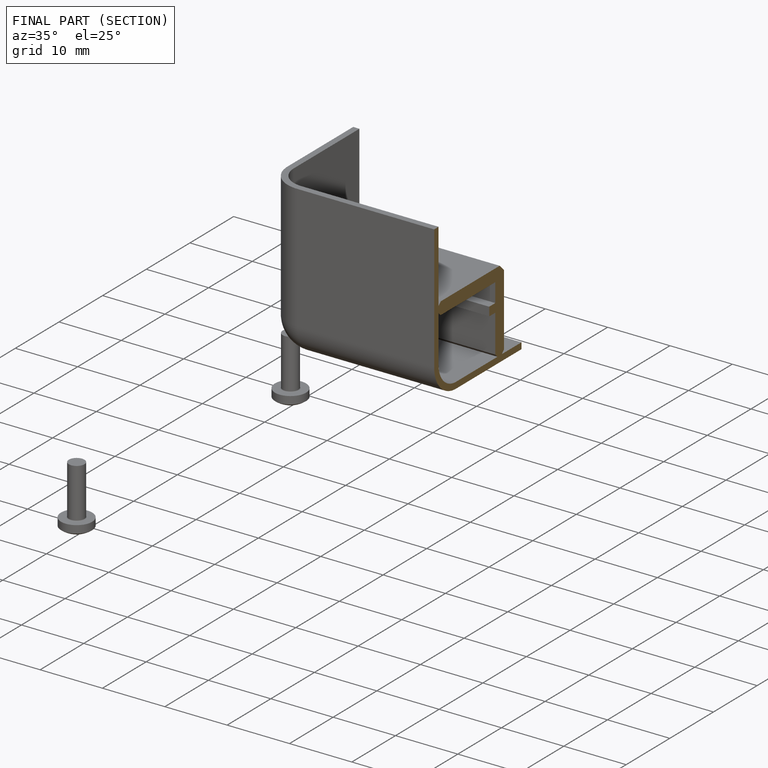
[diagram: finished part — half-section view (interior)]
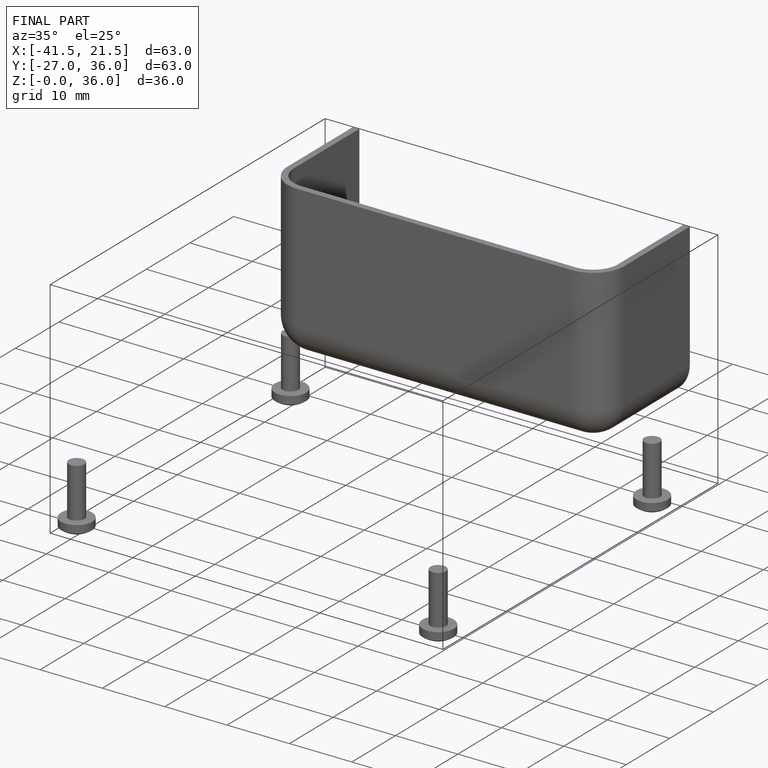
[diagram: finished part — iso view with bounding-box wireframe]
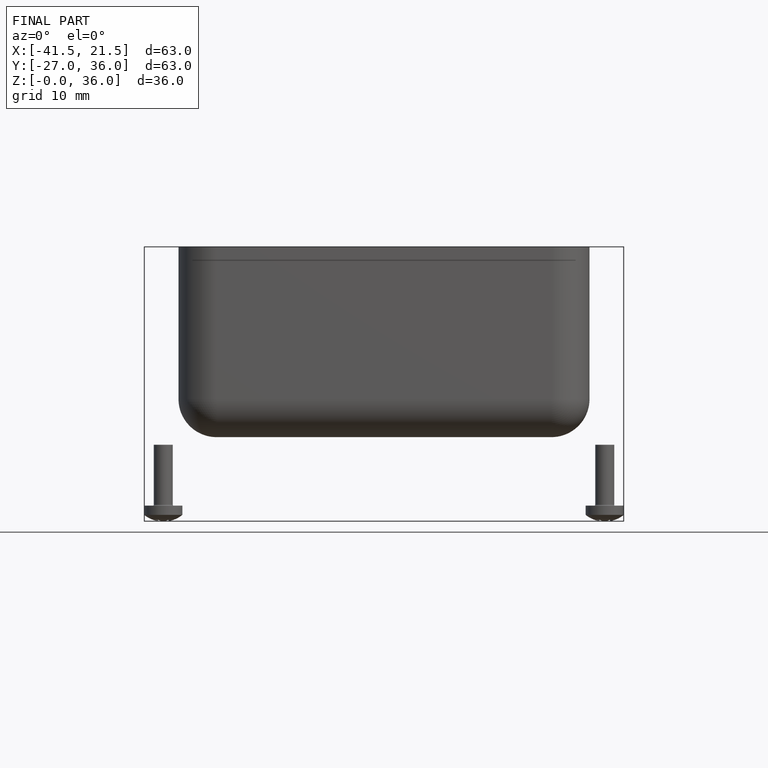
[diagram: finished part — front view with bounding-box wireframe]
